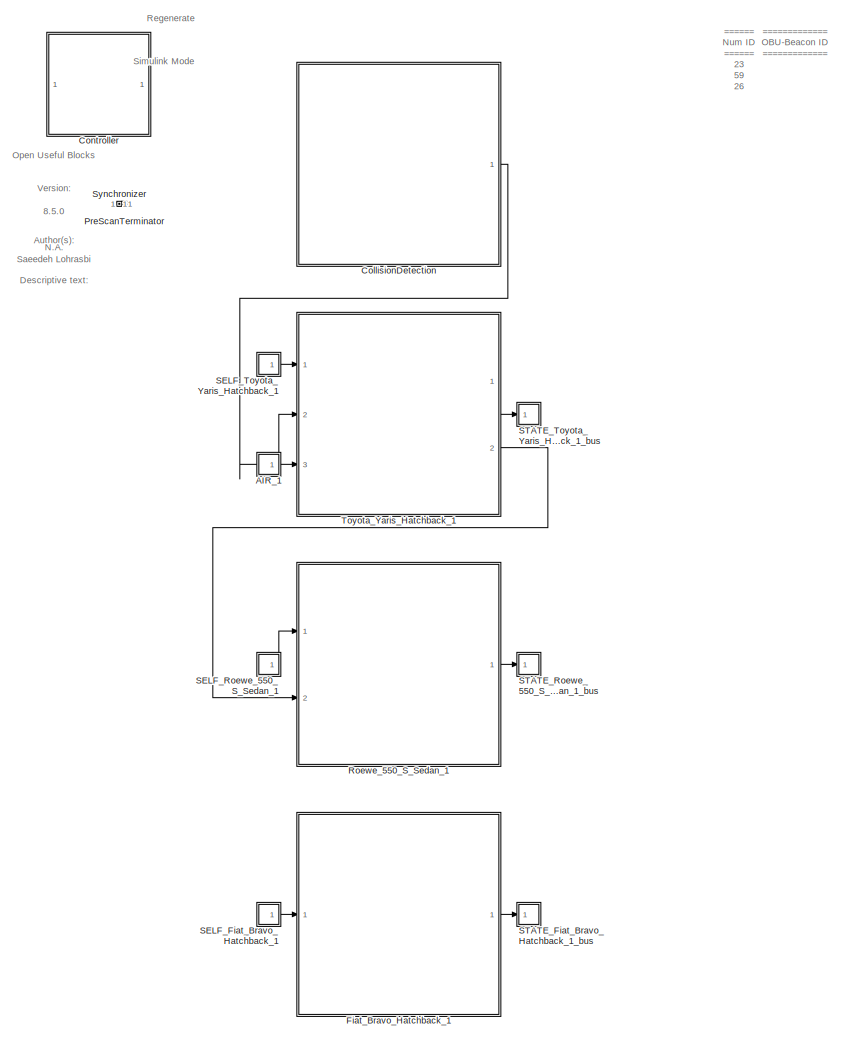
[diagram: root canvas - part 1/2, center side, full height]
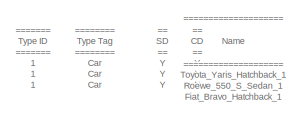
[diagram: root canvas - part 2/2, top right region]
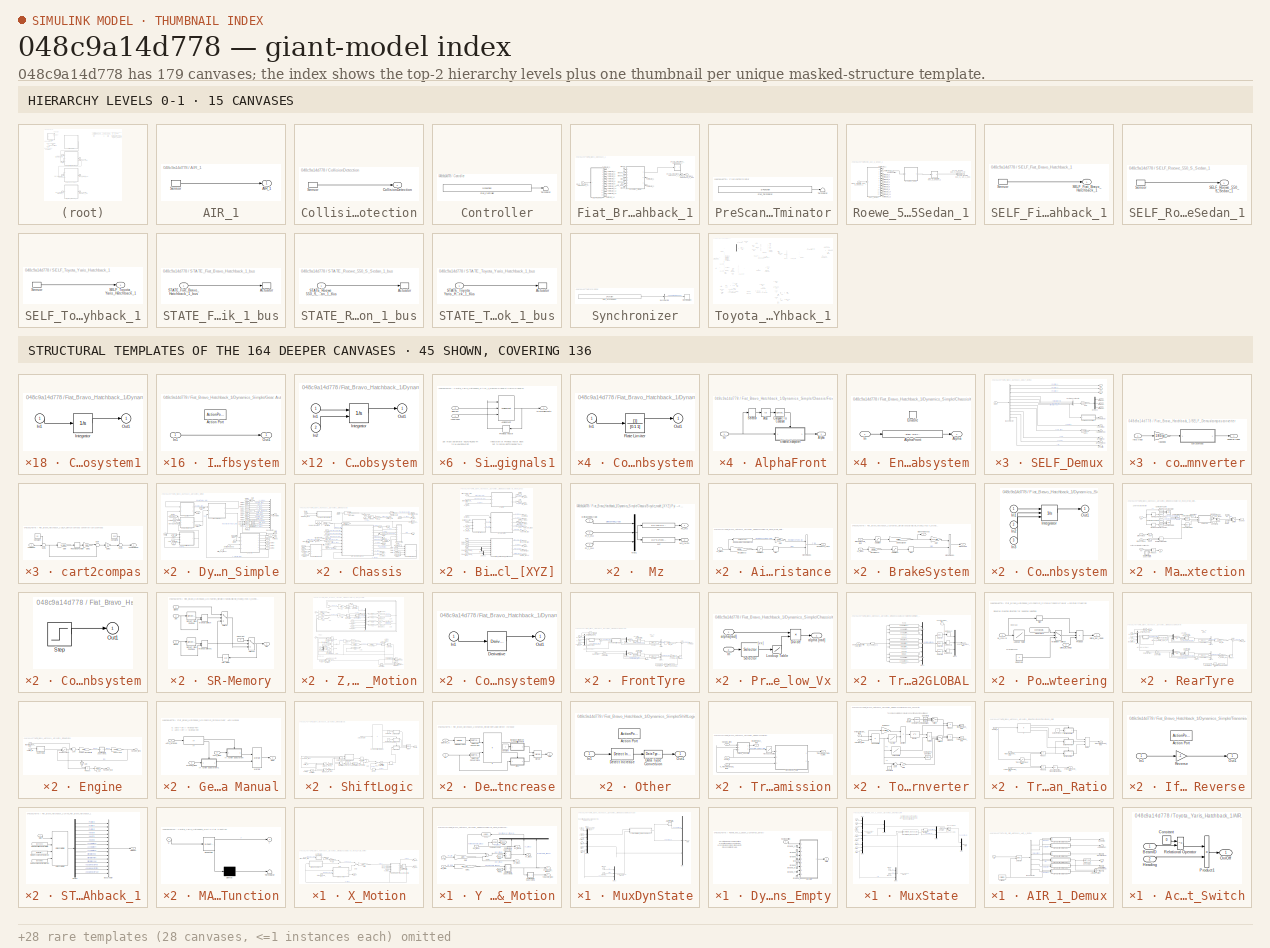
[diagram: thumbnail index - top-2 hierarchy levels (15 canvases) + 45 structural-template representatives of the remaining 164 canvases]
MODEL slx_048c9a14d778
KIND model
CONFIG AbsTol = auto
CONFIG EnableMultiTasking = off
CONFIG FixedStep = 1/200
CONFIG InitFcn = mbxruntime.callbacks.InitFcn(bdroot);
CONFIG MaxStep = auto
CONFIG MinStep = auto
CONFIG PostLoadFcn = mbxruntime.callbacks.PostLoadFcn(bdroot);
CONFIG PreLoadFcn = mbxruntime.callbacks.PreLoadFcn(bdroot);
CONFIG RelTol = 1e-3
CONFIG SampleTimeConstraint = Unconstrained
CONFIG Solver = ode5
CONFIG SolverName = ode5
CONFIG StartFcn = mbxruntime.callbacks.StartFcn(bdroot);
CONFIG StartTime = 0.0
CONFIG StopFcn = mbxruntime.callbacks.StopFcn(bdroot);
CONFIG StopTime = inf
WORKSPACE source: MAT-file member
WORKSPACE mbox_table: struct (value not decoded)
BLOCK [SubSystem] AIR_1
  LoadFcn = load('PrescanAIRSensorData.mat');load('PrescanAIRSensorMessage.mat')
  OpenFcn = open_system([gcb '/Sensor'],'mask')
  Ports = [0, 1]
  Priority = 3
  RequestExecContextInheritance = off
  Tag = sensor/AIR
  Variant = off
BLOCK [Outport] AIR_1/AIR_1
  IconDisplay = Port number
  OutDataTypeStr = Bus: PRESCAN_AIRSENSORMESSAGE
  PortDimensions = 10
  SampleTime = 10/200
  Tag = outport/AIR
BLOCK [S-Function] AIR_1/Sensor
  EnableBusSupport = off
  FunctionName = sfun_AIRSensor
  Parameters = detectableObjects, sensorID, timestep
  Ports = [0, 1]
  SFcnIsStateOwnerBlock = off
  SFunctionDeploymentMode = off
BLOCK [SubSystem] CollisionDetection
  LoadFcn = load('PrescanCollisionDetectionData.mat');load('PrescanCollisionDetectionMessage.mat')
  OpenFcn = open_system([gcb '/Sensor'],'mask')
  Ports = [0, 1]
  Priority = 3
  RequestExecContextInheritance = off
  Tag = sensor/CollisionDetection
  Variant = off
BLOCK [Outport] CollisionDetection/CollisionDetection
  IconDisplay = Port number
  OutDataTypeStr = Bus: PRESCAN_COLLISIONDETECTION_MESSAGE
  PortDimensions = 5
  SampleTime = 10/200
  Tag = outport/CollisionDetection
BLOCK [S-Function] CollisionDetection/Sensor
  EnableBusSupport = off
  FunctionName = sfun_CollisionDetection
  Parameters = detectableCollisions, timestep
  Ports = [0, 1]
  SFcnIsStateOwnerBlock = off
  SFunctionDeploymentMode = off
BLOCK [SubSystem] Controller
  Description = 0796D5C98D4497EE4463ACBBC813679D24F7F6C34935DFB1985E1BDD7895447B
  LoadFcn = load PreScanControllerData
  ModelCloseFcn = assignin('base',['model_closed_' bdroot],true);
  Ports = []
  Priority = -1
  RequestExecContextInheritance = off
  Variant = off
BLOCK [Terminator] Controller/Terminator
BLOCK [S-Function] Controller/sfun_Controller
  EnableBusSupport = off
  FunctionName = sfun_Controller
  Parameters = SParameter1, SParameter2, SParameter3, SParameter4, SParameter5, SParameter6, SParameter7, SParameter8, SParameter9, SParameter10, SampleTime
  Ports = [0, 1]
  SFcnIsStateOwnerBlock = off
  SFunctionDeploymentMode = off
BLOCK [SubSystem] Fiat_Bravo_Hatchback_1
  InitFcn = UniqueId = '10047';
  Ports = [1, 1]
  RequestExecContextInheritance = off
  Tag = WorldObjectSubSystem
  Variant = off
BLOCK [Constant] Fiat_Bravo_Hatchback_1/Auto_Gear
  Tag = AutoGear
BLOCK [SubSystem] Fiat_Bravo_Hatchback_1/Dynamics_Simple
  DeleteFcn = PreScanBlockDeleteFcn;
  Ports = [7, 3]
  RequestExecContextInheritance = off
  Tag = Simple_Vehicle_Dynamics
  UserDataPersistent = on
  Variant = off
BLOCK [Inport] Fiat_Bravo_Hatchback_1/Dynamics_Simple/AutoManual_OnOff
  IconDisplay = Port number
  Port = 5
BLOCK [Inport] Fiat_Bravo_Hatchback_1/Dynamics_Simple/Auto_GearShift
  IconDisplay = Port number
  Port = 6
BLOCK [Inport] Fiat_Bravo_Hatchback_1/Dynamics_Simple/Brake
  IconDisplay = Port number
  Port = 3
BLOCK [BusCreator] Fiat_Bravo_Hatchback_1/Dynamics_Simple/Bus Creator
  DisplayOption = bar
  InheritFromInputs = on
  Inputs = 14
  Ports = [14, 1]
BLOCK [SubSystem] Fiat_Bravo_Hatchback_1/Dynamics_Simple/Chassis
  Ports = [4, 7]
  RequestExecContextInheritance = off
  Variant = off
BLOCK [Abs] Fiat_Bravo_Hatchback_1/Dynamics_Simple/Chassis/Abs
  SaturateOnIntegerOverflow = off
BLOCK [SubSystem] Fiat_Bravo_Hatchback_1/Dynamics_Simple/Chassis/Bicycle_model_[XYZ]
  Ports = [9, 11]
  RequestExecContextInheritance = off
  Variant = off
BLOCK [Inport] Fiat_Bravo_Hatchback_1/Dynamics_Simple/Chassis/Bicycle_model_[XYZ]/BrakePressure_[bar]
  IconDisplay = Port number
  Port = 4
BLOCK [Inport] Fiat_Bravo_Hatchback_1/Dynamics_Simple/Chassis/Bicycle_model_[XYZ]/DeltaWheel_[rad]
  IconDisplay = Port number
BLOCK [Demux] Fiat_Bravo_Hatchback_1/Dynamics_Simple/Chassis/Bicycle_model_[XYZ]/Demux
  DisplayOption = bar
  Outputs = 2
  Ports = [1, 2]
BLOCK [Demux] Fiat_Bravo_Hatchback_1/Dynamics_Simple/Chassis/Bicycle_model_[XYZ]/Demux1
  DisplayOption = bar
  Outputs = 2
  Ports = [1, 2]
BLOCK [Inport] Fiat_Bravo_Hatchback_1/Dynamics_Simple/Chassis/Bicycle_model_[XYZ]/DriveTorque_[Nm]
  IconDisplay = Port number
  Port = 5
BLOCK [From] Fiat_Bravo_Hatchback_1/Dynamics_Simple/Chassis/Bicycle_model_[XYZ]/From1
  CloseFcn = tagdialog Close
  GotoTag = ax
BLOCK [From] Fiat_Bravo_Hatchback_1/Dynamics_Simple/Chassis/Bicycle_model_[XYZ]/From2
  CloseFcn = tagdialog Close
  GotoTag = ay
BLOCK [From] Fiat_Bravo_Hatchback_1/Dynamics_Simple/Chassis/Bicycle_model_[XYZ]/From3
  CloseFcn = tagdialog Close
  GotoTag = vx
BLOCK [From] Fiat_Bravo_Hatchback_1/Dynamics_Simple/Chassis/Bicycle_model_[XYZ]/From4
  CloseFcn = tagdialog Close
  GotoTag = dYaw
BLOCK [Inport] Fiat_Bravo_Hatchback_1/Dynamics_Simple/Chassis/Bicycle_model_[XYZ]/Fy_front_[N]
  IconDisplay = Port number
  Port = 9
BLOCK [Inport] Fiat_Bravo_Hatchback_1/Dynamics_Simple/Chassis/Bicycle_model_[XYZ]/Fy_rear_[N]
  IconDisplay = Port number
  Port = 8
BLOCK [SubSystem] Fiat_Bravo_Hatchback_1/Dynamics_Simple/Chassis/Bicycle_model_[XYZ]/Fyi --> Fy // Mz
  Ports = [3, 2]
  RequestExecContextInheritance = off
  Variant = off
BLOCK [Inport] Fiat_Bravo_Hatchback_1/Dynamics_Simple/Chassis/Bicycle_model_[XYZ]/Fyi --> Fy // Mz/DeltaWheel_[rad]
  IconDisplay = Port number
BLOCK [Fcn] Fiat_Bravo_Hatchback_1/Dynamics_Simple/Chassis/Bicycle_model_[XYZ]/Fyi --> Fy // Mz/Fy
  Expr = u(2)*cos(u(1)) + u(3)
BLOCK [Outport] Fiat_Bravo_Hatchback_1/Dynamics_Simple/Chassis/Bicycle_model_[XYZ]/Fyi --> Fy // Mz/Fy_[N]
  IconDisplay = Port number
  InitialOutput = 0
BLOCK [Inport] Fiat_Bravo_Hatchback_1/Dynamics_Simple/Chassis/Bicycle_model_[XYZ]/Fyi --> Fy // Mz/Fy_f_[N]
  IconDisplay = Port number
  Port = 2
BLOCK [Inport] Fiat_Bravo_Hatchback_1/Dynamics_Simple/Chassis/Bicycle_model_[XYZ]/Fyi --> Fy // Mz/Fy_r_[N]
  IconDisplay = Port number
  Port = 3
BLOCK [Mux] Fiat_Bravo_Hatchback_1/Dynamics_Simple/Chassis/Bicycle_model_[XYZ]/Fyi --> Fy // Mz/Mux1
  DisplayOption = bar
  Inputs = 3
  Ports = [3, 1]
BLOCK [Fcn] Fiat_Bravo_Hatchback_1/Dynamics_Simple/Chassis/Bicycle_model_[XYZ]/Fyi --> Fy // Mz/Mz
  Expr = u(2)*p.a*cos(u(1)) - u(3)*p.b
BLOCK [Outport] Fiat_Bravo_Hatchback_1/Dynamics_Simple/Chassis/Bicycle_model_[XYZ]/Fyi --> Fy // Mz/Mz_[Nm]
  IconDisplay = Port number
  InitialOutput = 0
  Port = 2
BLOCK [Goto] Fiat_Bravo_Hatchback_1/Dynamics_Simple/Chassis/Bicycle_model_[XYZ]/Goto
  GotoTag = ax
BLOCK [Goto] Fiat_Bravo_Hatchback_1/Dynamics_Simple/Chassis/Bicycle_model_[XYZ]/Goto1
  GotoTag = ay
BLOCK [Goto] Fiat_Bravo_Hatchback_1/Dynamics_Simple/Chassis/Bicycle_model_[XYZ]/Goto2
  GotoTag = vx
BLOCK [Goto] Fiat_Bravo_Hatchback_1/Dynamics_Simple/Chassis/Bicycle_model_[XYZ]/Goto3
  GotoTag = dYaw
BLOCK [Outport] Fiat_Bravo_Hatchback_1/Dynamics_Simple/Chassis/Bicycle_model_[XYZ]/PitchAngle_[rad]
  IconDisplay = Port number
  Port = 8
BLOCK [Outport] Fiat_Bravo_Hatchback_1/Dynamics_Simple/Chassis/Bicycle_model_[XYZ]/RollAngle_[rad]
  IconDisplay = Port number
  Port = 4
BLOCK [Outport] Fiat_Bravo_Hatchback_1/Dynamics_Simple/Chassis/Bicycle_model_[XYZ]/RollRate_[rads-1]
  IconDisplay = Port number
  Port = 5
BLOCK [Outport] Fiat_Bravo_Hatchback_1/Dynamics_Simple/Chassis/Bicycle_model_[XYZ]/Vx_[ms-1]
  IconDisplay = Port number
  Port = 7
BLOCK [SubSystem] Fiat_Bravo_Hatchback_1/Dynamics_Simple/Chassis/Bicycle_model_[XYZ]/X_Motion
  Ports = [3, 2]
  RequestExecContextInheritance = off
  Variant = off
BLOCK [SubSystem] Fiat_Bravo_Hatchback_1/Dynamics_Simple/Chassis/Bicycle_model_[XYZ]/X_Motion/Air&RoadResistance
  Ports = [1, 1]
  RequestExecContextInheritance = off
  Variant = off
BLOCK [Gain] Fiat_Bravo_Hatchback_1/Dynamics_Simple/Chassis/Bicycle_model_[XYZ]/X_Motion/Air&RoadResistance/Gain
  Gain = 1/p.Rw
  OutDataTypeStr = Inherit: Inherit via internal rule
  ParamDataTypeStr = Inherit: Inherit via internal rule
  SaturateOnIntegerOverflow = off
BLOCK [Outport] Fiat_Bravo_Hatchback_1/Dynamics_Simple/Chassis/Bicycle_model_[XYZ]/X_Motion/Air&RoadResistance/Resistance_Force
  IconDisplay = Port number
BLOCK [Fcn] Fiat_Bravo_Hatchback_1/Dynamics_Simple/Chassis/Bicycle_model_[XYZ]/X_Motion/Air&RoadResistance/Road & Aerodyn Resistances
  Expr = p.Rroad + p.Rair*u^2
BLOCK [Saturate] Fiat_Bravo_Hatchback_1/Dynamics_Simple/Chassis/Bicycle_model_[XYZ]/X_Motion/Air&RoadResistance/Saturation1
  InputPortMap = u0
  LowerLimit = -5/15
  Ports = [1, 1]
  UpperLimit = 5/15
BLOCK [Signum] Fiat_Bravo_Hatchback_1/Dynamics_Simple/Chassis/Bicycle_model_[XYZ]/X_Motion/Air&RoadResistance/Sign
BLOCK [Gain] Fiat_Bravo_Hatchback_1/Dynamics_Simple/Chassis/Bicycle_model_[XYZ]/X_Motion/Air&RoadResistance/[ms-1] 2 [rads-1]
  Gain = 1/p.Rw
BLOCK [Product] Fiat_Bravo_Hatchback_1/Dynamics_Simple/Chassis/Bicycle_model_[XYZ]/X_Motion/Air&RoadResistance/signed load1
  Ports = [2, 1]
  RndMeth = Floor
BLOCK [Inport] Fiat_Bravo_Hatchback_1/Dynamics_Simple/Chassis/Bicycle_model_[XYZ]/X_Motion/Air&RoadResistance/vx_[ms-1]
  IconDisplay = Port number
BLOCK [Inport] Fiat_Bravo_Hatchback_1/Dynamics_Simple/Chassis/Bicycle_model_[XYZ]/X_Motion/BrakePressure_[bar]
  IconDisplay = Port number
  Port = 2
BLOCK [SubSystem] Fiat_Bravo_Hatchback_1/Dynamics_Simple/Chassis/Bicycle_model_[XYZ]/X_Motion/BrakeSystem
  Ports = [2, 2]
  RequestExecContextInheritance = off
  Variant = off
BLOCK [Outport] Fiat_Bravo_Hatchback_1/Dynamics_Simple/Chassis/Bicycle_model_[XYZ]/X_Motion/BrakeSystem/BrakeForce
  IconDisplay = Port number
BLOCK [Inport] Fiat_Bravo_Hatchback_1/Dynamics_Simple/Chassis/Bicycle_model_[XYZ]/X_Motion/BrakeSystem/BrakePressure_[bar]
  IconDisplay = Port number
  Port = 2
BLOCK [Outport] Fiat_Bravo_Hatchback_1/Dynamics_Simple/Chassis/Bicycle_model_[XYZ]/X_Motion/BrakeSystem/BrakeTorqueAbs
  IconDisplay = Port number
  Port = 2
BLOCK [Gain] Fiat_Bravo_Hatchback_1/Dynamics_Simple/Chassis/Bicycle_model_[XYZ]/X_Motion/BrakeSystem/Gain
  Gain = 1/p.Rw
  OutDataTypeStr = Inherit: Inherit via internal rule
  ParamDataTypeStr = Inherit: Inherit via internal rule
  SaturateOnIntegerOverflow = off
BLOCK [Saturate] Fiat_Bravo_Hatchback_1/Dynamics_Simple/Chassis/Bicycle_model_[XYZ]/X_Motion/BrakeSystem/Saturation
  InputPortMap = u0
  LowerLimit = 0
  Ports = [1, 1]
  UpperLimit = p.PBrakeMax
BLOCK [Saturate] Fiat_Bravo_Hatchback_1/Dynamics_Simple/Chassis/Bicycle_model_[XYZ]/X_Motion/BrakeSystem/Saturation1
  InputPortMap = u0
  LowerLimit = -5/15
  Ports = [1, 1]
  UpperLimit = 5/15
BLOCK [Signum] Fiat_Bravo_Hatchback_1/Dynamics_Simple/Chassis/Bicycle_model_[XYZ]/X_Motion/BrakeSystem/Sign
BLOCK [Gain] Fiat_Bravo_Hatchback_1/Dynamics_Simple/Chassis/Bicycle_model_[XYZ]/X_Motion/BrakeSystem/[ms-1] 2 [rads-1]
  Gain = 1/p.Rw
BLOCK [Gain] Fiat_Bravo_Hatchback_1/Dynamics_Simple/Chassis/Bicycle_model_[XYZ]/X_Motion/BrakeSystem/braking Q factor
  Gain = p.Qfac
BLOCK [Product] Fiat_Bravo_Hatchback_1/Dynamics_Simple/Chassis/Bicycle_model_[XYZ]/X_Motion/BrakeSystem/signed load1
  Ports = [2, 1]
  RndMeth = Floor
BLOCK [Inport] Fiat_Bravo_Hatchback_1/Dynamics_Simple/Chassis/Bicycle_model_[XYZ]/X_Motion/BrakeSystem/vx_[ms-1]
  IconDisplay = Port number
BLOCK [SubSystem] Fiat_Bravo_Hatchback_1/Dynamics_Simple/Chassis/Bicycle_model_[XYZ]/X_Motion/Configurable Subsystem
  AttributesFormatString = %<BlockChoice>
  BlockChoice = Integrator
  MemberBlocks = Discrete-Time Integrator,Integrator
  OpenFcn = BringToFront(gcb);
  Ports = [3, 1]
  RequestExecContextInheritance = off
  ShowPortLabels = none
  TemplateBlock = PreScanSimulinkLibrary/Configurable Subsystems/integral with reset and initial condition/Configurable\nSubsystem
  Variant = off
BLOCK [Inport] Fiat_Bravo_Hatchback_1/Dynamics_Simple/Chassis/Bicycle_model_[XYZ]/X_Motion/Configurable Subsystem/In1
  IconDisplay = Port number
BLOCK [Inport] Fiat_Bravo_Hatchback_1/Dynamics_Simple/Chassis/Bicycle_model_[XYZ]/X_Motion/Configurable Subsystem/In2
  IconDisplay = Port number
  Port = 2
BLOCK [Inport] Fiat_Bravo_Hatchback_1/Dynamics_Simple/Chassis/Bicycle_model_[XYZ]/X_Motion/Configurable Subsystem/In3
  IconDisplay = Port number
  Port = 3
BLOCK [Integrator] Fiat_Bravo_Hatchback_1/Dynamics_Simple/Chassis/Bicycle_model_[XYZ]/X_Motion/Configurable Subsystem/Integrator
  ExternalReset = level
  InitialConditionSource = external
  Ports = [3, 1]
BLOCK [Outport] Fiat_Bravo_Hatchback_1/Dynamics_Simple/Chassis/Bicycle_model_[XYZ]/X_Motion/Configurable Subsystem/Out1
  IconDisplay = Port number
BLOCK [SubSystem] Fiat_Bravo_Hatchback_1/Dynamics_Simple/Chassis/Bicycle_model_[XYZ]/X_Motion/Configurable Subsystem1
  AttributesFormatString = %<BlockChoice>
  BlockChoice = Torsional damping
  MemberBlocks = Discrete Torsional damping,Torsional damping
  OpenFcn = BringToFront(gcb);
  Ports = [1, 1]
  RequestExecContextInheritance = off
  ShowPortLabels = none
  TemplateBlock = PreScanSimulinkLibrary/Configurable Subsystems/TransferFunction\nTorsional damping/Configurable\nSubsystem
  Variant = off
BLOCK [Inport] Fiat_Bravo_Hatchback_1/Dynamics_Simple/Chassis/Bicycle_model_[XYZ]/X_Motion/Configurable Subsystem1/In1
  IconDisplay = Port number
BLOCK [Outport] Fiat_Bravo_Hatchback_1/Dynamics_Simple/Chassis/Bicycle_model_[XYZ]/X_Motion/Configurable Subsystem1/Out1
  IconDisplay = Port number
BLOCK [TransferFcn] Fiat_Bravo_Hatchback_1/Dynamics_Simple/Chassis/Bicycle_model_[XYZ]/X_Motion/Configurable Subsystem1/Torsional damping
  Denominator = [0.1 1]
BLOCK [Inport] Fiat_Bravo_Hatchback_1/Dynamics_Simple/Chassis/Bicycle_model_[XYZ]/X_Motion/DriveTorque_[Nm]
  IconDisplay = Port number
BLOCK [From] Fiat_Bravo_Hatchback_1/Dynamics_Simple/Chassis/Bicycle_model_[XYZ]/X_Motion/From2
  CloseFcn = tagdialog Close
  GotoTag = DT
BLOCK [From] Fiat_Bravo_Hatchback_1/Dynamics_Simple/Chassis/Bicycle_model_[XYZ]/X_Motion/From3
  CloseFcn = tagdialog Close
  GotoTag = BT
BLOCK [Gain] Fiat_Bravo_Hatchback_1/Dynamics_Simple/Chassis/Bicycle_model_[XYZ]/X_Motion/Gain
  Gain = 1/p.Rw
  OutDataTypeStr = Inherit: Inherit via internal rule
  ParamDataTypeStr = Inherit: Inherit via internal rule
  SaturateOnIntegerOverflow = off
BLOCK [Goto] Fiat_Bravo_Hatchback_1/Dynamics_Simple/Chassis/Bicycle_model_[XYZ]/X_Motion/Goto
  GotoTag = DT
BLOCK [Goto] Fiat_Bravo_Hatchback_1/Dynamics_Simple/Chassis/Bicycle_model_[XYZ]/X_Motion/Goto1
  GotoTag = BT
BLOCK [Gain] Fiat_Bravo_Hatchback_1/Dynamics_Simple/Chassis/Bicycle_model_[XYZ]/X_Motion/Inertia
  Gain = 1/p.m
BLOCK [SubSystem] Fiat_Bravo_Hatchback_1/Dynamics_Simple/Chassis/Bicycle_model_[XYZ]/X_Motion/Max RPM and zero- velocity detection
  Ports = [5, 3]
  RequestExecContextInheritance = off
  Variant = off
BLOCK [Abs] Fiat_Bravo_Hatchback_1/Dynamics_Simple/Chassis/Bicycle_model_[XYZ]/X_Motion/Max RPM and zero- velocity detection/Abs
  SaturateOnIntegerOverflow = off
BLOCK [Abs] Fiat_Bravo_Hatchback_1/Dynamics_Simple/Chassis/Bicycle_model_[XYZ]/X_Motion/Max RPM and zero- velocity detection/Abs1
  SaturateOnIntegerOverflow = off
BLOCK [Inport] Fiat_Bravo_Hatchback_1/Dynamics_Simple/Chassis/Bicycle_model_[XYZ]/X_Motion/Max RPM and zero- velocity detection/Brake Torque
  IconDisplay = Port number
  Port = 3
BLOCK [Reference] Fiat_Bravo_Hatchback_1/Dynamics_Simple/Chassis/Bicycle_model_[XYZ]/X_Motion/Max RPM and zero- velocity detection/Compare To Zero  REF=simulink/Logic and Bit
Operations/Compare
To Zero
  Ports = [1, 1]
  SourceBlock = simulink/Logic and Bit\nOperations/Compare\nTo Zero
  SourceProductBaseCode = SL
  SourceProductName = Simulink
  SourceType = Compare To Zero
BLOCK [Reference] Fiat_Bravo_Hatchback_1/Dynamics_Simple/Chassis/Bicycle_model_[XYZ]/X_Motion/Max RPM and zero- velocity detection/Compare To Zero1  REF=simulink/Logic and Bit
Operations/Compare
To Zero
  Ports = [1, 1]
  SourceBlock = simulink/Logic and Bit\nOperations/Compare\nTo Zero
  SourceProductBaseCode = SL
  SourceProductName = Simulink
  SourceType = Compare To Zero
BLOCK [Reference] Fiat_Bravo_Hatchback_1/Dynamics_Simple/Chassis/Bicycle_model_[XYZ]/X_Motion/Max RPM and zero- velocity detection/Compare To Zero2  REF=simulink/Logic and Bit
Operations/Compare
To Zero
  Ports = [1, 1]
  SourceBlock = simulink/Logic and Bit\nOperations/Compare\nTo Zero
  SourceProductBaseCode = SL
  SourceProductName = Simulink
  SourceType = Compare To Zero
BLOCK [Reference] Fiat_Bravo_Hatchback_1/Dynamics_Simple/Chassis/Bicycle_model_[XYZ]/X_Motion/Max RPM and zero- velocity detection/Compare To Zero3  REF=simulink/Logic and Bit
Operations/Compare
To Zero
  Ports = [1, 1]
  SourceBlock = simulink/Logic and Bit\nOperations/Compare\nTo Zero
  SourceProductBaseCode = SL
  SourceProductName = Simulink
  SourceType = Compare To Zero
BLOCK [SubSystem] Fiat_Bravo_Hatchback_1/Dynamics_Simple/Chassis/Bicycle_model_[XYZ]/X_Motion/Max RPM and zero- velocity detection/Configurable Subsystem
  AttributesFormatString = %<BlockChoice>
  BlockChoice = Step
  MemberBlocks = Discrete Step,Step
  OpenFcn = BringToFront(gcb);
  Ports = [0, 1]
  RequestExecContextInheritance = off
  ShowPortLabels = none
  TemplateBlock = PreScanSimulinkLibrary/Configurable Subsystems/Step Function/Configurable\nSubsystem
  Variant = off
BLOCK [Outport] Fiat_Bravo_Hatchback_1/Dynamics_Simple/Chassis/Bicycle_model_[XYZ]/X_Motion/Max RPM and zero- velocity detection/Configurable Subsystem/Out1
  IconDisplay = Port number
BLOCK [Step] Fiat_Bravo_Hatchback_1/Dynamics_Simple/Chassis/Bicycle_model_[XYZ]/X_Motion/Max RPM and zero- velocity detection/Configurable Subsystem/Step
  After = 0
  Before = 1
  SampleTime = 0
  Time = 0.0001
BLOCK [Constant] Fiat_Bravo_Hatchback_1/Dynamics_Simple/Chassis/Bicycle_model_[XYZ]/X_Motion/Max RPM and zero- velocity detection/Constant
BLOCK [Constant] Fiat_Bravo_Hatchback_1/Dynamics_Simple/Chassis/Bicycle_model_[XYZ]/X_Motion/Max RPM and zero- velocity detection/Constant1
BLOCK [Inport] Fiat_Bravo_Hatchback_1/Dynamics_Simple/Chassis/Bicycle_model_[XYZ]/X_Motion/Max RPM and zero- velocity detection/Drive Torque
  IconDisplay = Port number
  Port = 2
BLOCK [Logic] Fiat_Bravo_Hatchback_1/Dynamics_Simple/Chassis/Bicycle_model_[XYZ]/X_Motion/Max RPM and zero- velocity detection/Logical Operator
  AllPortsSameDT = off
  OutDataTypeStr = boolean
  Ports = [2, 1]
BLOCK [Logic] Fiat_Bravo_Hatchback_1/Dynamics_Simple/Chassis/Bicycle_model_[XYZ]/X_Motion/Max RPM and zero- velocity detection/Logical Operator1
  AllPortsSameDT = off
  OutDataTypeStr = boolean
  Ports = [2, 1]
BLOCK [Logic] Fiat_Bravo_Hatchback_1/Dynamics_Simple/Chassis/Bicycle_model_[XYZ]/X_Motion/Max RPM and zero- velocity detection/Logical Operator2
  AllPortsSameDT = off
  Operator = NOT
  OutDataTypeStr = boolean
  Ports = [1, 1]
BLOCK [Logic] Fiat_Bravo_Hatchback_1/Dynamics_Simple/Chassis/Bicycle_model_[XYZ]/X_Motion/Max RPM and zero- velocity detection/Logical Operator3
  AllPortsSameDT = off
  OutDataTypeStr = boolean
  Ports = [2, 1]
BLOCK [Logic] Fiat_Bravo_Hatchback_1/Dynamics_Simple/Chassis/Bicycle_model_[XYZ]/X_Motion/Max RPM and zero- velocity detection/Logical Operator4
  AllPortsSameDT = off
  Operator = OR
  OutDataTypeStr = boolean
  Ports = [2, 1]
BLOCK [Memory] Fiat_Bravo_Hatchback_1/Dynamics_Simple/Chassis/Bicycle_model_[XYZ]/X_Motion/Max RPM and zero- velocity detection/Memory
BLOCK [Memory] Fiat_Bravo_Hatchback_1/Dynamics_Simple/Chassis/Bicycle_model_[XYZ]/X_Motion/Max RPM and zero- velocity detection/Memory1
BLOCK [Memory] Fiat_Bravo_Hatchback_1/Dynamics_Simple/Chassis/Bicycle_model_[XYZ]/X_Motion/Max RPM and zero- velocity detection/Memory2
BLOCK [Product] Fiat_Bravo_Hatchback_1/Dynamics_Simple/Chassis/Bicycle_model_[XYZ]/X_Motion/Max RPM and zero- velocity detection/Product
  InputSameDT = off
  OutDataTypeStr = Inherit: Inherit via internal rule
  Ports = [2, 1]
  SaturateOnIntegerOverflow = off
BLOCK [RelationalOperator] Fiat_Bravo_Hatchback_1/Dynamics_Simple/Chassis/Bicycle_model_[XYZ]/X_Motion/Max RPM and zero- velocity detection/Relational Operator
  InputSameDT = off
  Operator = <
  OutDataTypeStr = boolean
  Ports = [2, 1]
BLOCK [SubSystem] Fiat_Bravo_Hatchback_1/Dynamics_Simple/Chassis/Bicycle_model_[XYZ]/X_Motion/Max RPM and zero- velocity detection/SR-Memory
  Ports = [3, 1]
  RequestExecContextInheritance = off
  Variant = off
BLOCK [Constant] Fiat_Bravo_Hatchback_1/Dynamics_Simple/Chassis/Bicycle_model_[XYZ]/X_Motion/Max RPM and zero- velocity detection/SR-Memory/Constant
  Value = 0
BLOCK [Reference] Fiat_Bravo_Hatchback_1/Dynamics_Simple/Chassis/Bicycle_model_[XYZ]/X_Motion/Max RPM and zero- velocity detection/SR-Memory/Detect Rise Positive  REF=simulink/Logic and Bit
Operations/Detect Rise
Positive
  Ports = [1, 1]
  SourceBlock = simulink/Logic and Bit\nOperations/Detect Rise\nPositive
  SourceProductBaseCode = SL
  SourceProductName = Simulink
  SourceType = Detect Rise Positive
BLOCK [Reference] Fiat_Bravo_Hatchback_1/Dynamics_Simple/Chassis/Bicycle_model_[XYZ]/X_Motion/Max RPM and zero- velocity detection/SR-Memory/Detect Rise Positive1  REF=simulink/Logic and Bit
Operations/Detect Rise
Positive
  Ports = [1, 1]
  SourceBlock = simulink/Logic and Bit\nOperations/Detect Rise\nPositive
  SourceProductBaseCode = SL
  SourceProductName = Simulink
  SourceType = Detect Rise Positive
BLOCK [ManualSwitch] Fiat_Bravo_Hatchback_1/Dynamics_Simple/Chassis/Bicycle_model_[XYZ]/X_Motion/Max RPM and zero- velocity detection/SR-Memory/Manual Switch
BLOCK [ManualSwitch] Fiat_Bravo_Hatchback_1/Dynamics_Simple/Chassis/Bicycle_model_[XYZ]/X_Motion/Max RPM and zero- velocity detection/SR-Memory/Manual Switch1
BLOCK [Outport] Fiat_Bravo_Hatchback_1/Dynamics_Simple/Chassis/Bicycle_model_[XYZ]/X_Motion/Max RPM and zero- velocity detection/SR-Memory/Out
  IconDisplay = Port number
BLOCK [Inport] Fiat_Bravo_Hatchback_1/Dynamics_Simple/Chassis/Bicycle_model_[XYZ]/X_Motion/Max RPM and zero- velocity detection/SR-Memory/Reset
  IconDisplay = Port number
  Port = 3
BLOCK [Inport] Fiat_Bravo_Hatchback_1/Dynamics_Simple/Chassis/Bicycle_model_[XYZ]/X_Motion/Max RPM and zero- velocity detection/SR-Memory/Set
  IconDisplay = Port number
  Port = 2
BLOCK [Inport] Fiat_Bravo_Hatchback_1/Dynamics_Simple/Chassis/Bicycle_model_[XYZ]/X_Motion/Max RPM and zero- velocity detection/SR-Memory/Signal
  IconDisplay = Port number
BLOCK [Switch] Fiat_Bravo_Hatchback_1/Dynamics_Simple/Chassis/Bicycle_model_[XYZ]/X_Motion/Max RPM and zero- velocity detection/SR-Memory/Switch
  Criteria = u2 ~= 0
  InputSameDT = off
  SaturateOnIntegerOverflow = off
BLOCK [Switch] Fiat_Bravo_Hatchback_1/Dynamics_Simple/Chassis/Bicycle_model_[XYZ]/X_Motion/Max RPM and zero- velocity detection/SR-Memory/Switch1
  Criteria = u2 ~= 0
  InputSameDT = off
  SaturateOnIntegerOverflow = off
BLOCK [UnitDelay] Fiat_Bravo_Hatchback_1/Dynamics_Simple/Chassis/Bicycle_model_[XYZ]/X_Motion/Max RPM and zero- velocity detection/SR-Memory/Unit Delay
  SampleTime = -1
BLOCK [Sum] Fiat_Bravo_Hatchback_1/Dynamics_Simple/Chassis/Bicycle_model_[XYZ]/X_Motion/Max RPM and zero- velocity detection/Sum
  IconShape = round
  InputSameDT = off
  Inputs = |-+
  OutDataTypeStr = Inherit: Inherit via internal rule
  Ports = [2, 1]
  SaturateOnIntegerOverflow = off
BLOCK [Switch] Fiat_Bravo_Hatchback_1/Dynamics_Simple/Chassis/Bicycle_model_[XYZ]/X_Motion/Max RPM and zero- velocity detection/Switch
  Criteria = u2 ~= 0
  InputSameDT = off
  SaturateOnIntegerOverflow = off
  Threshold = 0.5
BLOCK [Inport] Fiat_Bravo_Hatchback_1/Dynamics_Simple/Chassis/Bicycle_model_[XYZ]/X_Motion/Max RPM and zero- velocity detection/ax
  IconDisplay = Port number
BLOCK [Constant] Fiat_Bravo_Hatchback_1/Dynamics_Simple/Chassis/Bicycle_model_[XYZ]/X_Motion/Max RPM and zero- velocity detection/ax is 0
  Value = 0
BLOCK [Outport] Fiat_Bravo_Hatchback_1/Dynamics_Simple/Chassis/Bicycle_model_[XYZ]/X_Motion/Max RPM and zero- velocity detection/ax_out
  IconDisplay = Port number
BLOCK [Inport] Fiat_Bravo_Hatchback_1/Dynamics_Simple/Chassis/Bicycle_model_[XYZ]/X_Motion/Max RPM and zero- velocity detection/v0
  IconDisplay = Port number
  Port = 4
BLOCK [Inport] Fiat_Bravo_Hatchback_1/Dynamics_Simple/Chassis/Bicycle_model_[XYZ]/X_Motion/Max RPM and zero- velocity detection/vx
  IconDisplay = Port number
  Port = 5
BLOCK [Outport] Fiat_Bravo_Hatchback_1/Dynamics_Simple/Chassis/Bicycle_model_[XYZ]/X_Motion/Max RPM and zero- velocity detection/vx_reset
  IconDisplay = Port number
  Port = 2
BLOCK [Outport] Fiat_Bravo_Hatchback_1/Dynamics_Simple/Chassis/Bicycle_model_[XYZ]/X_Motion/Max RPM and zero- velocity detection/x0
  IconDisplay = Port number
  Port = 3
BLOCK [Sum] Fiat_Bravo_Hatchback_1/Dynamics_Simple/Chassis/Bicycle_model_[XYZ]/X_Motion/Sum
  Inputs = +-
  Ports = [2, 1]
BLOCK [Sum] Fiat_Bravo_Hatchback_1/Dynamics_Simple/Chassis/Bicycle_model_[XYZ]/X_Motion/Sum2
  Inputs = +-
  Ports = [2, 1]
BLOCK [Outport] Fiat_Bravo_Hatchback_1/Dynamics_Simple/Chassis/Bicycle_model_[XYZ]/X_Motion/ax_[ms-2]
  IconDisplay = Port number
  Port = 2
BLOCK [Inport] Fiat_Bravo_Hatchback_1/Dynamics_Simple/Chassis/Bicycle_model_[XYZ]/X_Motion/v0_[ms-1]
  IconDisplay = Port number
  Port = 3
BLOCK [Outport] Fiat_Bravo_Hatchback_1/Dynamics_Simple/Chassis/Bicycle_model_[XYZ]/X_Motion/vx_[ms-1]
  IconDisplay = Port number
BLOCK [SubSystem] Fiat_Bravo_Hatchback_1/Dynamics_Simple/Chassis/Bicycle_model_[XYZ]/Y & Yaw_Motion
  Ports = [3, 5]
  RequestExecContextInheritance = off
  Variant = off
BLOCK [Reference] Fiat_Bravo_Hatchback_1/Dynamics_Simple/Chassis/Bicycle_model_[XYZ]/Y & Yaw_Motion/Compare To Zero  REF=simulink/Logic and Bit
Operations/Compare
To Zero
  Ports = [1, 1]
  SourceBlock = simulink/Logic and Bit\nOperations/Compare\nTo Zero
  SourceProductBaseCode = SL
  SourceProductName = Simulink
  SourceType = Compare To Zero
BLOCK [SubSystem] Fiat_Bravo_Hatchback_1/Dynamics_Simple/Chassis/Bicycle_model_[XYZ]/Y & Yaw_Motion/Configurable Subsystem
  AttributesFormatString = %<BlockChoice>
  BlockChoice = Integrator
  MemberBlocks = Discrete-Time Integrator,Integrator
  OpenFcn = BringToFront(gcb);
  Ports = [2, 1]
  RequestExecContextInheritance = off
  ShowPortLabels = none
  TemplateBlock = PreScanSimulinkLibrary/Configurable Subsystems/integral with reset/Configurable\nSubsystem
  Variant = off
BLOCK [Inport] Fiat_Bravo_Hatchback_1/Dynamics_Simple/Chassis/Bicycle_model_[XYZ]/Y & Yaw_Motion/Configurable Subsystem/In1
  IconDisplay = Port number
BLOCK [Inport] Fiat_Bravo_Hatchback_1/Dynamics_Simple/Chassis/Bicycle_model_[XYZ]/Y & Yaw_Motion/Configurable Subsystem/In2
  IconDisplay = Port number
  Port = 2
BLOCK [Integrator] Fiat_Bravo_Hatchback_1/Dynamics_Simple/Chassis/Bicycle_model_[XYZ]/Y & Yaw_Motion/Configurable Subsystem/Integrator
  ExternalReset = level
  Ports = [2, 1]
BLOCK [Outport] Fiat_Bravo_Hatchback_1/Dynamics_Simple/Chassis/Bicycle_model_[XYZ]/Y & Yaw_Motion/Configurable Subsystem/Out1
  IconDisplay = Port number
BLOCK [SubSystem] Fiat_Bravo_Hatchback_1/Dynamics_Simple/Chassis/Bicycle_model_[XYZ]/Y & Yaw_Motion/Configurable Subsystem1
  AttributesFormatString = %<BlockChoice>
  BlockChoice = Integrator
  MemberBlocks = Discrete-Time Integrator,Integrator
  OpenFcn = BringToFront(gcb);
  Ports = [1, 1]
  RequestExecContextInheritance = off
  ShowPortLabels = none
  TemplateBlock = PreScanSimulinkLibrary/Configurable Subsystems/integral/Configurable\nSubsystem1
  Variant = off
BLOCK [Inport] Fiat_Bravo_Hatchback_1/Dynamics_Simple/Chassis/Bicycle_model_[XYZ]/Y & Yaw_Motion/Configurable Subsystem1/In1
  IconDisplay = Port number
BLOCK [Integrator] Fiat_Bravo_Hatchback_1/Dynamics_Simple/Chassis/Bicycle_model_[XYZ]/Y & Yaw_Motion/Configurable Subsystem1/Integrator
  Ports = [1, 1]
BLOCK [Outport] Fiat_Bravo_Hatchback_1/Dynamics_Simple/Chassis/Bicycle_model_[XYZ]/Y & Yaw_Motion/Configurable Subsystem1/Out1
  IconDisplay = Port number
BLOCK [SubSystem] Fiat_Bravo_Hatchback_1/Dynamics_Simple/Chassis/Bicycle_model_[XYZ]/Y & Yaw_Motion/Configurable Subsystem2
  AttributesFormatString = %<BlockChoice>
  BlockChoice = Integrator
  MemberBlocks = Discrete-Time Integrator,Integrator
  OpenFcn = BringToFront(gcb);
  Ports = [2, 1]
  RequestExecContextInheritance = off
  ShowPortLabels = none
  TemplateBlock = PreScanSimulinkLibrary/Configurable Subsystems/integral with reset/Configurable\nSubsystem
  Variant = off
BLOCK [Inport] Fiat_Bravo_Hatchback_1/Dynamics_Simple/Chassis/Bicycle_model_[XYZ]/Y & Yaw_Motion/Configurable Subsystem2/In1
  IconDisplay = Port number
BLOCK [Inport] Fiat_Bravo_Hatchback_1/Dynamics_Simple/Chassis/Bicycle_model_[XYZ]/Y & Yaw_Motion/Configurable Subsystem2/In2
  IconDisplay = Port number
  Port = 2
BLOCK [Integrator] Fiat_Bravo_Hatchback_1/Dynamics_Simple/Chassis/Bicycle_model_[XYZ]/Y & Yaw_Motion/Configurable Subsystem2/Integrator
  ExternalReset = level
  Ports = [2, 1]
BLOCK [Outport] Fiat_Bravo_Hatchback_1/Dynamics_Simple/Chassis/Bicycle_model_[XYZ]/Y & Yaw_Motion/Configurable Subsystem2/Out1
  IconDisplay = Port number
BLOCK [Fcn] Fiat_Bravo_Hatchback_1/Dynamics_Simple/Chassis/Bicycle_model_[XYZ]/Y & Yaw_Motion/Fcn1
  Expr = u(1)*u(3)
BLOCK [From] Fiat_Bravo_Hatchback_1/Dynamics_Simple/Chassis/Bicycle_model_[XYZ]/Y & Yaw_Motion/From
  CloseFcn = tagdialog Close
  GotoTag = reset
BLOCK [From] Fiat_Bravo_Hatchback_1/Dynamics_Simple/Chassis/Bicycle_model_[XYZ]/Y & Yaw_Motion/From1
  CloseFcn = tagdialog Close
  GotoTag = reset
BLOCK [Inport] Fiat_Bravo_Hatchback_1/Dynamics_Simple/Chassis/Bicycle_model_[XYZ]/Y & Yaw_Motion/Fy_[N]
  IconDisplay = Port number
  Port = 2
BLOCK [Gain] Fiat_Bravo_Hatchback_1/Dynamics_Simple/Chassis/Bicycle_model_[XYZ]/Y & Yaw_Motion/Gain
  Gain = 1/p.m
BLOCK [Gain] Fiat_Bravo_Hatchback_1/Dynamics_Simple/Chassis/Bicycle_model_[XYZ]/Y & Yaw_Motion/Gain1
  Gain = 1/p.J_zz
BLOCK [Goto] Fiat_Bravo_Hatchback_1/Dynamics_Simple/Chassis/Bicycle_model_[XYZ]/Y & Yaw_Motion/Goto
  GotoTag = reset
BLOCK [Inport] Fiat_Bravo_Hatchback_1/Dynamics_Simple/Chassis/Bicycle_model_[XYZ]/Y & Yaw_Motion/Mz_[Nm]
  IconDisplay = Port number
  Port = 3
BLOCK [Sum] Fiat_Bravo_Hatchback_1/Dynamics_Simple/Chassis/Bicycle_model_[XYZ]/Y & Yaw_Motion/Sum1
  Inputs = -+
  Ports = [2, 1]
BLOCK [Outport] Fiat_Bravo_Hatchback_1/Dynamics_Simple/Chassis/Bicycle_model_[XYZ]/Y & Yaw_Motion/YawAngle_[rad]
  IconDisplay = Port number
  InitialOutput = 0
  Port = 5
BLOCK [Outport] Fiat_Bravo_Hatchback_1/Dynamics_Simple/Chassis/Bicycle_model_[XYZ]/Y & Yaw_Motion/ay_[ms-2]
  IconDisplay = Port number
  InitialOutput = 0
  Port = 3
BLOCK [Outport] Fiat_Bravo_Hatchback_1/Dynamics_Simple/Chassis/Bicycle_model_[XYZ]/Y & Yaw_Motion/dYawAngle_[rads-1]
  IconDisplay = Port number
  InitialOutput = 0
  Port = 4
BLOCK [Mux] Fiat_Bravo_Hatchback_1/Dynamics_Simple/Chassis/Bicycle_model_[XYZ]/Y & Yaw_Motion/mux
  DisplayOption = bar
  Inputs = 3
  Ports = [3, 1]
BLOCK [Outport] Fiat_Bravo_Hatchback_1/Dynamics_Simple/Chassis/Bicycle_model_[XYZ]/Y & Yaw_Motion/vy_[ms-1]
  IconDisplay = Port number
  InitialOutput = 0
  Port = 2
BLOCK [Inport] Fiat_Bravo_Hatchback_1/Dynamics_Simple/Chassis/Bicycle_model_[XYZ]/Y & Yaw_Motion/|vx|_[ms-1]
  IconDisplay = Port number
BLOCK [Outport] Fiat_Bravo_Hatchback_1/Dynamics_Simple/Chassis/Bicycle_model_[XYZ]/Y & Yaw_Motion/|vx|_[ms-1]1
  IconDisplay = Port number
  InitialOutput = 0
BLOCK [Outport] Fiat_Bravo_Hatchback_1/Dynamics_Simple/Chassis/Bicycle_model_[XYZ]/YawAngle_[rad]
  IconDisplay = Port number
  Port = 9
BLOCK [Outport] Fiat_Bravo_Hatchback_1/Dynamics_Simple/Chassis/Bicycle_model_[XYZ]/YawAngle_[rads-1]
  IconDisplay = Port number
  Port = 6
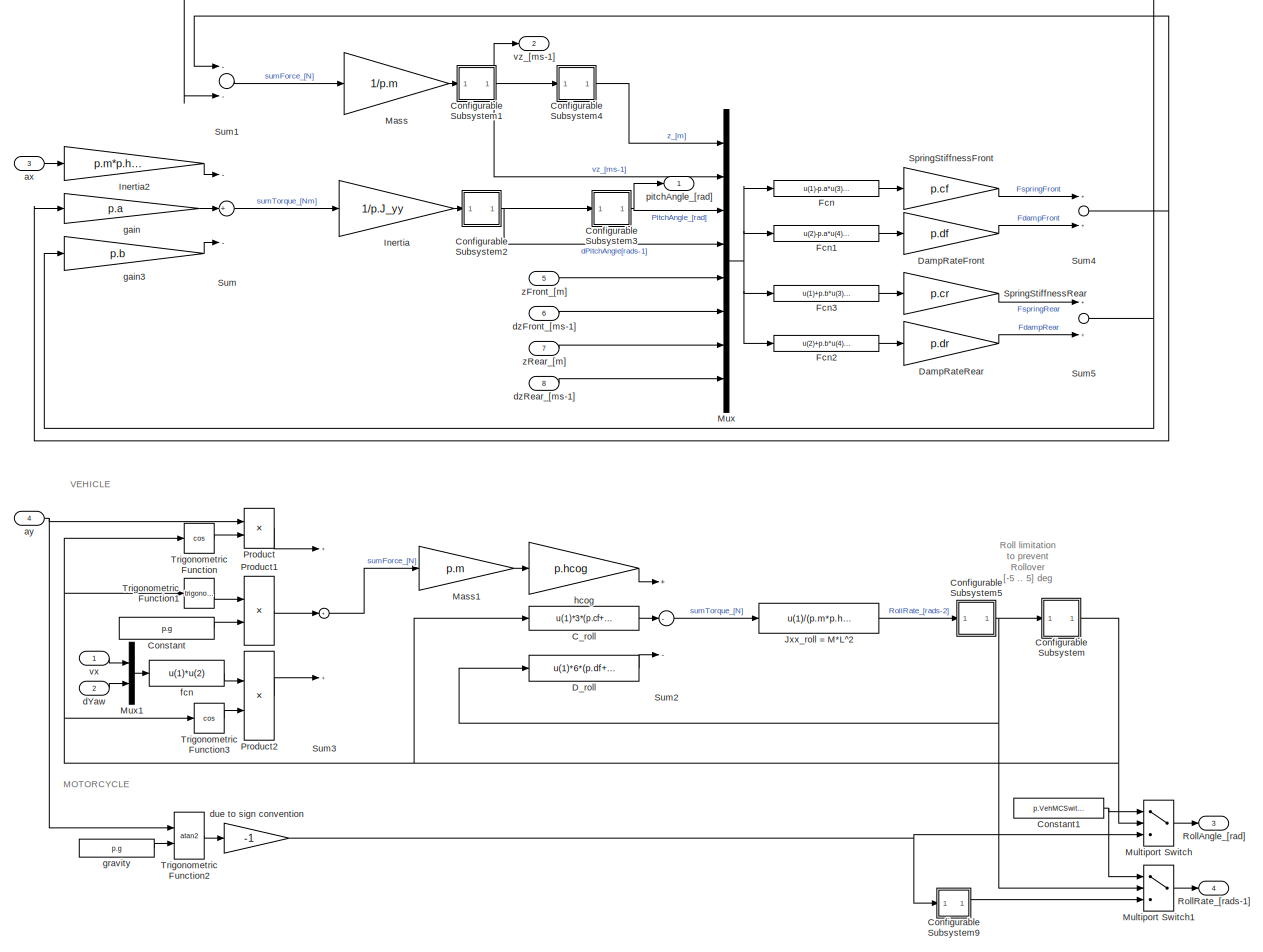
[diagram: Fiat_Bravo_Hatchback_1/Dynamics_Simple/Chassis/Bicycle_model_[XYZ]/Z, Pitch_Motion & Roll_Motion - part 1/1, most of the canvas]
BLOCK [SubSystem] Fiat_Bravo_Hatchback_1/Dynamics_Simple/Chassis/Bicycle_model_[XYZ]/Z, Pitch_Motion & Roll_Motion
  Ports = [8, 4]
  RequestExecContextInheritance = off
  Variant = off
BLOCK [Fcn] Fiat_Bravo_Hatchback_1/Dynamics_Simple/Chassis/Bicycle_model_[XYZ]/Z, Pitch_Motion & Roll_Motion/C_roll
  Expr = u(1)*3*(p.cf+p.cr)/2*p.width^2/2
BLOCK [SubSystem] Fiat_Bravo_Hatchback_1/Dynamics_Simple/Chassis/Bicycle_model_[XYZ]/Z, Pitch_Motion & Roll_Motion/Configurable Subsystem
  AttributesFormatString = %<BlockChoice>
  BlockChoice = Integrator
  MemberBlocks = Discrete-Time Integrator,Integrator
  OpenFcn = BringToFront(gcb);
  Ports = [1, 1]
  RequestExecContextInheritance = off
  ShowPortLabels = none
  TemplateBlock = PreScanSimulinkLibrary/Configurable Subsystems/integral with limits\nfor roll motion/Configurable\nSubsystem
  Variant = off
BLOCK [Inport] Fiat_Bravo_Hatchback_1/Dynamics_Simple/Chassis/Bicycle_model_[XYZ]/Z, Pitch_Motion & Roll_Motion/Configurable Subsystem/In1
  IconDisplay = Port number
BLOCK [Integrator] Fiat_Bravo_Hatchback_1/Dynamics_Simple/Chassis/Bicycle_model_[XYZ]/Z, Pitch_Motion & Roll_Motion/Configurable Subsystem/Integrator
  LimitOutput = on
  LowerSaturationLimit = -5*pi/180
  Ports = [1, 1]
  UpperSaturationLimit = 5*pi/180
BLOCK [Outport] Fiat_Bravo_Hatchback_1/Dynamics_Simple/Chassis/Bicycle_model_[XYZ]/Z, Pitch_Motion & Roll_Motion/Configurable Subsystem/Out1
  IconDisplay = Port number
BLOCK [SubSystem] Fiat_Bravo_Hatchback_1/Dynamics_Simple/Chassis/Bicycle_model_[XYZ]/Z, Pitch_Motion & Roll_Motion/Configurable Subsystem1
  AttributesFormatString = %<BlockChoice>
  BlockChoice = Integrator
  MemberBlocks = Discrete-Time Integrator,Integrator
  OpenFcn = BringToFront(gcb);
  Ports = [1, 1]
  RequestExecContextInheritance = off
  ShowPortLabels = none
  TemplateBlock = PreScanSimulinkLibrary/Configurable Subsystems/integral/Configurable\nSubsystem1
  Variant = off
BLOCK [Inport] Fiat_Bravo_Hatchback_1/Dynamics_Simple/Chassis/Bicycle_model_[XYZ]/Z, Pitch_Motion & Roll_Motion/Configurable Subsystem1/In1
  IconDisplay = Port number
BLOCK [Integrator] Fiat_Bravo_Hatchback_1/Dynamics_Simple/Chassis/Bicycle_model_[XYZ]/Z, Pitch_Motion & Roll_Motion/Configurable Subsystem1/Integrator
  Ports = [1, 1]
BLOCK [Outport] Fiat_Bravo_Hatchback_1/Dynamics_Simple/Chassis/Bicycle_model_[XYZ]/Z, Pitch_Motion & Roll_Motion/Configurable Subsystem1/Out1
  IconDisplay = Port number
BLOCK [SubSystem] Fiat_Bravo_Hatchback_1/Dynamics_Simple/Chassis/Bicycle_model_[XYZ]/Z, Pitch_Motion & Roll_Motion/Configurable Subsystem2
  AttributesFormatString = %<BlockChoice>
  BlockChoice = Integrator
  MemberBlocks = Discrete-Time Integrator,Integrator
  OpenFcn = BringToFront(gcb);
  Ports = [1, 1]
  RequestExecContextInheritance = off
  ShowPortLabels = none
  TemplateBlock = PreScanSimulinkLibrary/Configurable Subsystems/integral/Configurable\nSubsystem1
  Variant = off
BLOCK [Inport] Fiat_Bravo_Hatchback_1/Dynamics_Simple/Chassis/Bicycle_model_[XYZ]/Z, Pitch_Motion & Roll_Motion/Configurable Subsystem2/In1
  IconDisplay = Port number
BLOCK [Integrator] Fiat_Bravo_Hatchback_1/Dynamics_Simple/Chassis/Bicycle_model_[XYZ]/Z, Pitch_Motion & Roll_Motion/Configurable Subsystem2/Integrator
  Ports = [1, 1]
BLOCK [Outport] Fiat_Bravo_Hatchback_1/Dynamics_Simple/Chassis/Bicycle_model_[XYZ]/Z, Pitch_Motion & Roll_Motion/Configurable Subsystem2/Out1
  IconDisplay = Port number
BLOCK [SubSystem] Fiat_Bravo_Hatchback_1/Dynamics_Simple/Chassis/Bicycle_model_[XYZ]/Z, Pitch_Motion & Roll_Motion/Configurable Subsystem3
  AttributesFormatString = %<BlockChoice>
  BlockChoice = Integrator
  MemberBlocks = Discrete-Time Integrator,Integrator
  OpenFcn = BringToFront(gcb);
  Ports = [1, 1]
  RequestExecContextInheritance = off
  ShowPortLabels = none
  TemplateBlock = PreScanSimulinkLibrary/Configurable Subsystems/integral/Configurable\nSubsystem1
  Variant = off
BLOCK [Inport] Fiat_Bravo_Hatchback_1/Dynamics_Simple/Chassis/Bicycle_model_[XYZ]/Z, Pitch_Motion & Roll_Motion/Configurable Subsystem3/In1
  IconDisplay = Port number
BLOCK [Integrator] Fiat_Bravo_Hatchback_1/Dynamics_Simple/Chassis/Bicycle_model_[XYZ]/Z, Pitch_Motion & Roll_Motion/Configurable Subsystem3/Integrator
  Ports = [1, 1]
BLOCK [Outport] Fiat_Bravo_Hatchback_1/Dynamics_Simple/Chassis/Bicycle_model_[XYZ]/Z, Pitch_Motion & Roll_Motion/Configurable Subsystem3/Out1
  IconDisplay = Port number
BLOCK [SubSystem] Fiat_Bravo_Hatchback_1/Dynamics_Simple/Chassis/Bicycle_model_[XYZ]/Z, Pitch_Motion & Roll_Motion/Configurable Subsystem4
  AttributesFormatString = %<BlockChoice>
  BlockChoice = Integrator
  MemberBlocks = Discrete-Time Integrator,Integrator
  OpenFcn = BringToFront(gcb);
  Ports = [1, 1]
  RequestExecContextInheritance = off
  ShowPortLabels = none
  TemplateBlock = PreScanSimulinkLibrary/Configurable Subsystems/integral/Configurable\nSubsystem1
  Variant = off
BLOCK [Inport] Fiat_Bravo_Hatchback_1/Dynamics_Simple/Chassis/Bicycle_model_[XYZ]/Z, Pitch_Motion & Roll_Motion/Configurable Subsystem4/In1
  IconDisplay = Port number
BLOCK [Integrator] Fiat_Bravo_Hatchback_1/Dynamics_Simple/Chassis/Bicycle_model_[XYZ]/Z, Pitch_Motion & Roll_Motion/Configurable Subsystem4/Integrator
  Ports = [1, 1]
BLOCK [Outport] Fiat_Bravo_Hatchback_1/Dynamics_Simple/Chassis/Bicycle_model_[XYZ]/Z, Pitch_Motion & Roll_Motion/Configurable Subsystem4/Out1
  IconDisplay = Port number
BLOCK [SubSystem] Fiat_Bravo_Hatchback_1/Dynamics_Simple/Chassis/Bicycle_model_[XYZ]/Z, Pitch_Motion & Roll_Motion/Configurable Subsystem5
  AttributesFormatString = %<BlockChoice>
  BlockChoice = Integrator
  MemberBlocks = Discrete-Time Integrator,Integrator
  OpenFcn = BringToFront(gcb);
  Ports = [1, 1]
  RequestExecContextInheritance = off
  ShowPortLabels = none
  TemplateBlock = PreScanSimulinkLibrary/Configurable Subsystems/integral/Configurable\nSubsystem1
  Variant = off
BLOCK [Inport] Fiat_Bravo_Hatchback_1/Dynamics_Simple/Chassis/Bicycle_model_[XYZ]/Z, Pitch_Motion & Roll_Motion/Configurable Subsystem5/In1
  IconDisplay = Port number
BLOCK [Integrator] Fiat_Bravo_Hatchback_1/Dynamics_Simple/Chassis/Bicycle_model_[XYZ]/Z, Pitch_Motion & Roll_Motion/Configurable Subsystem5/Integrator
  Ports = [1, 1]
BLOCK [Outport] Fiat_Bravo_Hatchback_1/Dynamics_Simple/Chassis/Bicycle_model_[XYZ]/Z, Pitch_Motion & Roll_Motion/Configurable Subsystem5/Out1
  IconDisplay = Port number
BLOCK [SubSystem] Fiat_Bravo_Hatchback_1/Dynamics_Simple/Chassis/Bicycle_model_[XYZ]/Z, Pitch_Motion & Roll_Motion/Configurable Subsystem9
  AttributesFormatString = %<BlockChoice>
  BlockChoice = Derivative
  MemberBlocks = Derivative,Discrete Derivative
  OpenFcn = BringToFront(gcb);
  Ports = [1, 1]
  RequestExecContextInheritance = off
  ShowPortLabels = none
  TemplateBlock = PreScanSimulinkLibrary/Configurable Subsystems/Derivative/Configurable\nSubsystem
  Variant = off
BLOCK [Derivative] Fiat_Bravo_Hatchback_1/Dynamics_Simple/Chassis/Bicycle_model_[XYZ]/Z, Pitch_Motion & Roll_Motion/Configurable Subsystem9/Derivative
BLOCK [Inport] Fiat_Bravo_Hatchback_1/Dynamics_Simple/Chassis/Bicycle_model_[XYZ]/Z, Pitch_Motion & Roll_Motion/Configurable Subsystem9/In1
  IconDisplay = Port number
BLOCK [Outport] Fiat_Bravo_Hatchback_1/Dynamics_Simple/Chassis/Bicycle_model_[XYZ]/Z, Pitch_Motion & Roll_Motion/Configurable Subsystem9/Out1
  IconDisplay = Port number
BLOCK [Constant] Fiat_Bravo_Hatchback_1/Dynamics_Simple/Chassis/Bicycle_model_[XYZ]/Z, Pitch_Motion & Roll_Motion/Constant
  Value = p.g
BLOCK [Constant] Fiat_Bravo_Hatchback_1/Dynamics_Simple/Chassis/Bicycle_model_[XYZ]/Z, Pitch_Motion & Roll_Motion/Constant1
  Value = p.VehMCSwitch
BLOCK [Fcn] Fiat_Bravo_Hatchback_1/Dynamics_Simple/Chassis/Bicycle_model_[XYZ]/Z, Pitch_Motion & Roll_Motion/D_roll
  Expr = u(1)*6*(p.df+p.dr)/2*p.width^2/2
BLOCK [Gain] Fiat_Bravo_Hatchback_1/Dynamics_Simple/Chassis/Bicycle_model_[XYZ]/Z, Pitch_Motion & Roll_Motion/DampRateFront
  Gain = p.df
BLOCK [Gain] Fiat_Bravo_Hatchback_1/Dynamics_Simple/Chassis/Bicycle_model_[XYZ]/Z, Pitch_Motion & Roll_Motion/DampRateRear
  Gain = p.dr
BLOCK [Fcn] Fiat_Bravo_Hatchback_1/Dynamics_Simple/Chassis/Bicycle_model_[XYZ]/Z, Pitch_Motion & Roll_Motion/Fcn
  Expr = u(1)-p.a*u(3)-u(5)
BLOCK [Fcn] Fiat_Bravo_Hatchback_1/Dynamics_Simple/Chassis/Bicycle_model_[XYZ]/Z, Pitch_Motion & Roll_Motion/Fcn1
  Expr = u(2)-p.a*u(4)-u(6)
BLOCK [Fcn] Fiat_Bravo_Hatchback_1/Dynamics_Simple/Chassis/Bicycle_model_[XYZ]/Z, Pitch_Motion & Roll_Motion/Fcn2
  Expr = u(2)+p.b*u(4)-u(8)
BLOCK [Fcn] Fiat_Bravo_Hatchback_1/Dynamics_Simple/Chassis/Bicycle_model_[XYZ]/Z, Pitch_Motion & Roll_Motion/Fcn3
  Expr = u(1)+p.b*u(3)-u(7)
BLOCK [Gain] Fiat_Bravo_Hatchback_1/Dynamics_Simple/Chassis/Bicycle_model_[XYZ]/Z, Pitch_Motion & Roll_Motion/Inertia
  Gain = 1/p.J_yy
BLOCK [Gain] Fiat_Bravo_Hatchback_1/Dynamics_Simple/Chassis/Bicycle_model_[XYZ]/Z, Pitch_Motion & Roll_Motion/Inertia2
  Gain = p.m*p.hcog
BLOCK [Fcn] Fiat_Bravo_Hatchback_1/Dynamics_Simple/Chassis/Bicycle_model_[XYZ]/Z, Pitch_Motion & Roll_Motion/Jxx_roll = M*L^2
  Expr = u(1)/(p.m*p.hcog^2)
BLOCK [Gain] Fiat_Bravo_Hatchback_1/Dynamics_Simple/Chassis/Bicycle_model_[XYZ]/Z, Pitch_Motion & Roll_Motion/Mass
  Gain = 1/p.m
BLOCK [Gain] Fiat_Bravo_Hatchback_1/Dynamics_Simple/Chassis/Bicycle_model_[XYZ]/Z, Pitch_Motion & Roll_Motion/Mass1
  Gain = p.m
BLOCK [MultiPortSwitch] Fiat_Bravo_Hatchback_1/Dynamics_Simple/Chassis/Bicycle_model_[XYZ]/Z, Pitch_Motion & Roll_Motion/Multiport Switch
  InputSameDT = off
  Inputs = 2
  Ports = [3, 1]
  SaturateOnIntegerOverflow = off
BLOCK [MultiPortSwitch] Fiat_Bravo_Hatchback_1/Dynamics_Simple/Chassis/Bicycle_model_[XYZ]/Z, Pitch_Motion & Roll_Motion/Multiport Switch1
  InputSameDT = off
  Inputs = 2
  Ports = [3, 1]
  SaturateOnIntegerOverflow = off
BLOCK [Mux] Fiat_Bravo_Hatchback_1/Dynamics_Simple/Chassis/Bicycle_model_[XYZ]/Z, Pitch_Motion & Roll_Motion/Mux
  DisplayOption = bar
  Inputs = 8
  Ports = [8, 1]
BLOCK [Mux] Fiat_Bravo_Hatchback_1/Dynamics_Simple/Chassis/Bicycle_model_[XYZ]/Z, Pitch_Motion & Roll_Motion/Mux1
  DisplayOption = bar
  Inputs = 2
  Ports = [2, 1]
BLOCK [Product] Fiat_Bravo_Hatchback_1/Dynamics_Simple/Chassis/Bicycle_model_[XYZ]/Z, Pitch_Motion & Roll_Motion/Product
  InputSameDT = off
  OutDataTypeStr = Inherit: Inherit via internal rule
  Ports = [2, 1]
  SaturateOnIntegerOverflow = off
BLOCK [Product] Fiat_Bravo_Hatchback_1/Dynamics_Simple/Chassis/Bicycle_model_[XYZ]/Z, Pitch_Motion & Roll_Motion/Product1
  InputSameDT = off
  OutDataTypeStr = Inherit: Inherit via internal rule
  Ports = [2, 1]
  SaturateOnIntegerOverflow = off
BLOCK [Product] Fiat_Bravo_Hatchback_1/Dynamics_Simple/Chassis/Bicycle_model_[XYZ]/Z, Pitch_Motion & Roll_Motion/Product2
  InputSameDT = off
  OutDataTypeStr = Inherit: Inherit via internal rule
  Ports = [2, 1]
  SaturateOnIntegerOverflow = off
BLOCK [Outport] Fiat_Bravo_Hatchback_1/Dynamics_Simple/Chassis/Bicycle_model_[XYZ]/Z, Pitch_Motion & Roll_Motion/RollAngle_[rad]
  IconDisplay = Port number
  Port = 3
BLOCK [Outport] Fiat_Bravo_Hatchback_1/Dynamics_Simple/Chassis/Bicycle_model_[XYZ]/Z, Pitch_Motion & Roll_Motion/RollRate_[rads-1]
  IconDisplay = Port number
  Port = 4
BLOCK [Gain] Fiat_Bravo_Hatchback_1/Dynamics_Simple/Chassis/Bicycle_model_[XYZ]/Z, Pitch_Motion & Roll_Motion/SpringStiffnessFront
  Gain = p.cf
BLOCK [Gain] Fiat_Bravo_Hatchback_1/Dynamics_Simple/Chassis/Bicycle_model_[XYZ]/Z, Pitch_Motion & Roll_Motion/SpringStiffnessRear
  Gain = p.cr
BLOCK [Sum] Fiat_Bravo_Hatchback_1/Dynamics_Simple/Chassis/Bicycle_model_[XYZ]/Z, Pitch_Motion & Roll_Motion/Sum
  Inputs = -+-
  Ports = [3, 1]
BLOCK [Sum] Fiat_Bravo_Hatchback_1/Dynamics_Simple/Chassis/Bicycle_model_[XYZ]/Z, Pitch_Motion & Roll_Motion/Sum1
  Inputs = --
  Ports = [2, 1]
BLOCK [Sum] Fiat_Bravo_Hatchback_1/Dynamics_Simple/Chassis/Bicycle_model_[XYZ]/Z, Pitch_Motion & Roll_Motion/Sum2
  Inputs = +--
  Ports = [3, 1]
BLOCK [Sum] Fiat_Bravo_Hatchback_1/Dynamics_Simple/Chassis/Bicycle_model_[XYZ]/Z, Pitch_Motion & Roll_Motion/Sum3
  Inputs = +++
  Ports = [3, 1]
BLOCK [Sum] Fiat_Bravo_Hatchback_1/Dynamics_Simple/Chassis/Bicycle_model_[XYZ]/Z, Pitch_Motion & Roll_Motion/Sum4
  Ports = [2, 1]
BLOCK [Sum] Fiat_Bravo_Hatchback_1/Dynamics_Simple/Chassis/Bicycle_model_[XYZ]/Z, Pitch_Motion & Roll_Motion/Sum5
  Ports = [2, 1]
BLOCK [Trigonometry] Fiat_Bravo_Hatchback_1/Dynamics_Simple/Chassis/Bicycle_model_[XYZ]/Z, Pitch_Motion & Roll_Motion/Trigonometric Function
  Operator = cos
  Ports = [1, 1]
BLOCK [Trigonometry] Fiat_Bravo_Hatchback_1/Dynamics_Simple/Chassis/Bicycle_model_[XYZ]/Z, Pitch_Motion & Roll_Motion/Trigonometric Function1
  Ports = [1, 1]
BLOCK [Trigonometry] Fiat_Bravo_Hatchback_1/Dynamics_Simple/Chassis/Bicycle_model_[XYZ]/Z, Pitch_Motion & Roll_Motion/Trigonometric Function2
  Operator = atan2
  Ports = [2, 1]
BLOCK [Trigonometry] Fiat_Bravo_Hatchback_1/Dynamics_Simple/Chassis/Bicycle_model_[XYZ]/Z, Pitch_Motion & Roll_Motion/Trigonometric Function3
  Operator = cos
  Ports = [1, 1]
BLOCK [Inport] Fiat_Bravo_Hatchback_1/Dynamics_Simple/Chassis/Bicycle_model_[XYZ]/Z, Pitch_Motion & Roll_Motion/ax
  IconDisplay = Port number
  Port = 3
BLOCK [Inport] Fiat_Bravo_Hatchback_1/Dynamics_Simple/Chassis/Bicycle_model_[XYZ]/Z, Pitch_Motion & Roll_Motion/ay
  IconDisplay = Port number
  Port = 4
BLOCK [Inport] Fiat_Bravo_Hatchback_1/Dynamics_Simple/Chassis/Bicycle_model_[XYZ]/Z, Pitch_Motion & Roll_Motion/dYaw
  IconDisplay = Port number
  Port = 2
BLOCK [Gain] Fiat_Bravo_Hatchback_1/Dynamics_Simple/Chassis/Bicycle_model_[XYZ]/Z, Pitch_Motion & Roll_Motion/due to sign convention
  Gain = -1
BLOCK [Inport] Fiat_Bravo_Hatchback_1/Dynamics_Simple/Chassis/Bicycle_model_[XYZ]/Z, Pitch_Motion & Roll_Motion/dzFront_[ms-1]
  IconDisplay = Port number
  Port = 6
BLOCK [Inport] Fiat_Bravo_Hatchback_1/Dynamics_Simple/Chassis/Bicycle_model_[XYZ]/Z, Pitch_Motion & Roll_Motion/dzRear_[ms-1]
  IconDisplay = Port number
  Port = 8
BLOCK [Fcn] Fiat_Bravo_Hatchback_1/Dynamics_Simple/Chassis/Bicycle_model_[XYZ]/Z, Pitch_Motion & Roll_Motion/fcn
  Expr = u(1)*u(2)
BLOCK [Gain] Fiat_Bravo_Hatchback_1/Dynamics_Simple/Chassis/Bicycle_model_[XYZ]/Z, Pitch_Motion & Roll_Motion/gain
  Gain = p.a
BLOCK [Gain] Fiat_Bravo_Hatchback_1/Dynamics_Simple/Chassis/Bicycle_model_[XYZ]/Z, Pitch_Motion & Roll_Motion/gain3
  Gain = p.b
BLOCK [Constant] Fiat_Bravo_Hatchback_1/Dynamics_Simple/Chassis/Bicycle_model_[XYZ]/Z, Pitch_Motion & Roll_Motion/gravity
  Value = p.g
BLOCK [Gain] Fiat_Bravo_Hatchback_1/Dynamics_Simple/Chassis/Bicycle_model_[XYZ]/Z, Pitch_Motion & Roll_Motion/hcog
  Gain = p.hcog
BLOCK [Outport] Fiat_Bravo_Hatchback_1/Dynamics_Simple/Chassis/Bicycle_model_[XYZ]/Z, Pitch_Motion & Roll_Motion/pitchAngle_[rad]
  IconDisplay = Port number
BLOCK [Inport] Fiat_Bravo_Hatchback_1/Dynamics_Simple/Chassis/Bicycle_model_[XYZ]/Z, Pitch_Motion & Roll_Motion/vx
  IconDisplay = Port number
BLOCK [Outport] Fiat_Bravo_Hatchback_1/Dynamics_Simple/Chassis/Bicycle_model_[XYZ]/Z, Pitch_Motion & Roll_Motion/vz_[ms-1]
  IconDisplay = Port number
  Port = 2
BLOCK [Inport] Fiat_Bravo_Hatchback_1/Dynamics_Simple/Chassis/Bicycle_model_[XYZ]/Z, Pitch_Motion & Roll_Motion/zFront_[m]
  IconDisplay = Port number
  Port = 5
BLOCK [Inport] Fiat_Bravo_Hatchback_1/Dynamics_Simple/Chassis/Bicycle_model_[XYZ]/Z, Pitch_Motion & Roll_Motion/zRear_[m]
  IconDisplay = Port number
  Port = 7
BLOCK [Outport] Fiat_Bravo_Hatchback_1/Dynamics_Simple/Chassis/Bicycle_model_[XYZ]/ax_[ms-2]
  IconDisplay = Port number
  Port = 10
BLOCK [Outport] Fiat_Bravo_Hatchback_1/Dynamics_Simple/Chassis/Bicycle_model_[XYZ]/ay_[ms-2]
  IconDisplay = Port number
  Port = 11
BLOCK [Inport] Fiat_Bravo_Hatchback_1/Dynamics_Simple/Chassis/Bicycle_model_[XYZ]/v0_[ms-1]
  IconDisplay = Port number
  Port = 6
BLOCK [Outport] Fiat_Bravo_Hatchback_1/Dynamics_Simple/Chassis/Bicycle_model_[XYZ]/vy_[ms-1]
  IconDisplay = Port number
  Port = 2
BLOCK [Outport] Fiat_Bravo_Hatchback_1/Dynamics_Simple/Chassis/Bicycle_model_[XYZ]/vz_[ms-1]
  IconDisplay = Port number
  Port = 3
BLOCK [Inport] Fiat_Bravo_Hatchback_1/Dynamics_Simple/Chassis/Bicycle_model_[XYZ]/zFront_[m]_dzFront_[ms-1]
  IconDisplay = Port number
  Port = 2
  PortDimensions = 2
BLOCK [Inport] Fiat_Bravo_Hatchback_1/Dynamics_Simple/Chassis/Bicycle_model_[XYZ]/zRear_[m]_dzRear_[ms-1]
  IconDisplay = Port number
  Port = 3
  PortDimensions = 2
BLOCK [Inport] Fiat_Bravo_Hatchback_1/Dynamics_Simple/Chassis/Bicycle_model_[XYZ]/|vx|_[ms-1]
  IconDisplay = Port number
  Port = 7
BLOCK [Outport] Fiat_Bravo_Hatchback_1/Dynamics_Simple/Chassis/Bicycle_model_[XYZ]/|vx|_[ms-1]1
  IconDisplay = Port number
BLOCK [Inport] Fiat_Bravo_Hatchback_1/Dynamics_Simple/Chassis/BrakePressure_[bar]
  IconDisplay = Port number
  Port = 2
BLOCK [Constant] Fiat_Bravo_Hatchback_1/Dynamics_Simple/Chassis/Constant3
  Value = [0 0]
BLOCK [Constant] Fiat_Bravo_Hatchback_1/Dynamics_Simple/Chassis/Constant4
  Value = [0 0]
BLOCK [Reference] Fiat_Bravo_Hatchback_1/Dynamics_Simple/Chassis/Degrees to Radians  REF=simulink_extras/Transformations/Degrees to
Radians
  Ports = [1, 1]
  SourceBlock = simulink_extras/Transformations/Degrees to\nRadians
  SourceProductBaseCode = SL
  SourceProductName = Simulink
  SourceType = DegreesToRadians
BLOCK [Inport] Fiat_Bravo_Hatchback_1/Dynamics_Simple/Chassis/DeltaSteer_[deg]
  IconDisplay = Port number
  Port = 3
BLOCK [Gain] Fiat_Bravo_Hatchback_1/Dynamics_Simple/Chassis/FinalDriveRatio
  Gain = p.Rfd
BLOCK [Gain] Fiat_Bravo_Hatchback_1/Dynamics_Simple/Chassis/FinalDriveRatio 
  Gain = p.Rfd
BLOCK [From] Fiat_Bravo_Hatchback_1/Dynamics_Simple/Chassis/From
  CloseFcn = tagdialog Close
  GotoTag = vx
BLOCK [From] Fiat_Bravo_Hatchback_1/Dynamics_Simple/Chassis/From1
  CloseFcn = tagdialog Close
  GotoTag = DeltaWheel
BLOCK [From] Fiat_Bravo_Hatchback_1/Dynamics_Simple/Chassis/From10
  CloseFcn = tagdialog Close
  GotoTag = RollAngle
BLOCK [From] Fiat_Bravo_Hatchback_1/Dynamics_Simple/Chassis/From11
  CloseFcn = tagdialog Close
  GotoTag = RollAngle
BLOCK [From] Fiat_Bravo_Hatchback_1/Dynamics_Simple/Chassis/From13
  CloseFcn = tagdialog Close
  GotoTag = DT
BLOCK [From] Fiat_Bravo_Hatchback_1/Dynamics_Simple/Chassis/From14
  CloseFcn = tagdialog Close
  GotoTag = vy
BLOCK [From] Fiat_Bravo_Hatchback_1/Dynamics_Simple/Chassis/From2
  CloseFcn = tagdialog Close
  GotoTag = Absvx
BLOCK [From] Fiat_Bravo_Hatchback_1/Dynamics_Simple/Chassis/From3
  CloseFcn = tagdialog Close
  GotoTag = vy
BLOCK [From] Fiat_Bravo_Hatchback_1/Dynamics_Simple/Chassis/From4
  CloseFcn = tagdialog Close
  GotoTag = YawRate
BLOCK [From] Fiat_Bravo_Hatchback_1/Dynamics_Simple/Chassis/From5
  CloseFcn = tagdialog Close
  GotoTag = Absvx
BLOCK [From] Fiat_Bravo_Hatchback_1/Dynamics_Simple/Chassis/From6
  CloseFcn = tagdialog Close
  GotoTag = vy
BLOCK [From] Fiat_Bravo_Hatchback_1/Dynamics_Simple/Chassis/From7
  CloseFcn = tagdialog Close
  GotoTag = YawRate
BLOCK [From] Fiat_Bravo_Hatchback_1/Dynamics_Simple/Chassis/From8
  CloseFcn = tagdialog Close
  GotoTag = vx
BLOCK [From] Fiat_Bravo_Hatchback_1/Dynamics_Simple/Chassis/From9
  CloseFcn = tagdialog Close
  GotoTag = vx
BLOCK [SubSystem] Fiat_Bravo_Hatchback_1/Dynamics_Simple/Chassis/FrontTyre
  Ports = [5, 1]
  RequestExecContextInheritance = off
  Variant = off
BLOCK [SubSystem] Fiat_Bravo_Hatchback_1/Dynamics_Simple/Chassis/FrontTyre/AlphaFront
  Ports = [1, 1]
  RequestExecContextInheritance = off
  Variant = off
BLOCK [Abs] Fiat_Bravo_Hatchback_1/Dynamics_Simple/Chassis/FrontTyre/AlphaFront/Abs
  SaturateOnIntegerOverflow = off
BLOCK [Outport] Fiat_Bravo_Hatchback_1/Dynamics_Simple/Chassis/FrontTyre/AlphaFront/Alpha
  IconDisplay = Port number
BLOCK [Reference] Fiat_Bravo_Hatchback_1/Dynamics_Simple/Chassis/FrontTyre/AlphaFront/Compare To Constant  REF=simulink/Logic and Bit
Operations/Compare
To Constant
  Ports = [1, 1]
  SourceBlock = simulink/Logic and Bit\nOperations/Compare\nTo Constant
  SourceProductBaseCode = SL
  SourceProductName = Simulink
  SourceType = Compare To Constant
BLOCK [SubSystem] Fiat_Bravo_Hatchback_1/Dynamics_Simple/Chassis/FrontTyre/AlphaFront/Enabled Subsystem
  Ports = [1, 1, 1]
  RequestExecContextInheritance = off
  TreatAsAtomicUnit = on
  Variant = off
BLOCK [Outport] Fiat_Bravo_Hatchback_1/Dynamics_Simple/Chassis/FrontTyre/AlphaFront/Enabled Subsystem/Alpha
  IconDisplay = Port number
  InitialOutput = [0]
  OutputWhenDisabled = reset
BLOCK [Fcn] Fiat_Bravo_Hatchback_1/Dynamics_Simple/Chassis/FrontTyre/AlphaFront/Enabled Subsystem/AlphaFront
  Expr = -atan( (u(2)+u(3)*p.a)/u(1) )
BLOCK [EnablePort] Fiat_Bravo_Hatchback_1/Dynamics_Simple/Chassis/FrontTyre/AlphaFront/Enabled Subsystem/Enable
  Ports = []
  PropagateVarSize = During execution
BLOCK [Inport] Fiat_Bravo_Hatchback_1/Dynamics_Simple/Chassis/FrontTyre/AlphaFront/Enabled Subsystem/In
  IconDisplay = Port number
BLOCK [Inport] Fiat_Bravo_Hatchback_1/Dynamics_Simple/Chassis/FrontTyre/AlphaFront/In
  IconDisplay = Port number
BLOCK [Selector] Fiat_Bravo_Hatchback_1/Dynamics_Simple/Chassis/FrontTyre/AlphaFront/Selector
  IndexOptions = Index vector (dialog)
  Indices = 1
  OutputSizes = 1
  Ports = [1, 1]
BLOCK [Reference] Fiat_Bravo_Hatchback_1/Dynamics_Simple/Chassis/FrontTyre/Compare To Zero  REF=simulink/Logic and Bit
Operations/Compare
To Zero
  Ports = [1, 1]
  SourceBlock = simulink/Logic and Bit\nOperations/Compare\nTo Zero
  SourceProductBaseCode = SL
  SourceProductName = Simulink
  SourceType = Compare To Zero
BLOCK [SubSystem] Fiat_Bravo_Hatchback_1/Dynamics_Simple/Chassis/FrontTyre/Configurable Subsystem
  AttributesFormatString = %<BlockChoice>
  BlockChoice = Integrator
  MemberBlocks = Discrete-Time Integrator,Integrator
  OpenFcn = BringToFront(gcb);
  Ports = [2, 1]
  RequestExecContextInheritance = off
  ShowPortLabels = none
  TemplateBlock = PreScanSimulinkLibrary/Configurable Subsystems/integral with reset and limits \nfor slip angle/Configurable\nSubsystem
  Variant = off
BLOCK [Inport] Fiat_Bravo_Hatchback_1/Dynamics_Simple/Chassis/FrontTyre/Configurable Subsystem/In1
  IconDisplay = Port number
BLOCK [Inport] Fiat_Bravo_Hatchback_1/Dynamics_Simple/Chassis/FrontTyre/Configurable Subsystem/In2
  IconDisplay = Port number
  Port = 2
BLOCK [Integrator] Fiat_Bravo_Hatchback_1/Dynamics_Simple/Chassis/FrontTyre/Configurable Subsystem/Integrator
  ExternalReset = level
  LimitOutput = on
  LowerSaturationLimit = -1
  Ports = [2, 1]
  UpperSaturationLimit = 1
BLOCK [Outport] Fiat_Bravo_Hatchback_1/Dynamics_Simple/Chassis/FrontTyre/Configurable Subsystem/Out1
  IconDisplay = Port number
BLOCK [SubSystem] Fiat_Bravo_Hatchback_1/Dynamics_Simple/Chassis/FrontTyre/Configurable Subsystem1
  AttributesFormatString = %<BlockChoice>
  BlockChoice = Integrator
  MemberBlocks = Discrete-Time Integrator,Integrator
  OpenFcn = BringToFront(gcb);
  Ports = [2, 1]
  RequestExecContextInheritance = off
  ShowPortLabels = none
  TemplateBlock = PreScanSimulinkLibrary/Configurable Subsystems/integral with reset/Configurable\nSubsystem
  Variant = off
BLOCK [Inport] Fiat_Bravo_Hatchback_1/Dynamics_Simple/Chassis/FrontTyre/Configurable Subsystem1/In1
  IconDisplay = Port number
BLOCK [Inport] Fiat_Bravo_Hatchback_1/Dynamics_Simple/Chassis/FrontTyre/Configurable Subsystem1/In2
  IconDisplay = Port number
  Port = 2
BLOCK [Integrator] Fiat_Bravo_Hatchback_1/Dynamics_Simple/Chassis/FrontTyre/Configurable Subsystem1/Integrator
  ExternalReset = level
  Ports = [2, 1]
BLOCK [Outport] Fiat_Bravo_Hatchback_1/Dynamics_Simple/Chassis/FrontTyre/Configurable Subsystem1/Out1
  IconDisplay = Port number
BLOCK [Constant] Fiat_Bravo_Hatchback_1/Dynamics_Simple/Chassis/FrontTyre/Constant
  Value = p.relax_on
BLOCK [Constant] Fiat_Bravo_Hatchback_1/Dynamics_Simple/Chassis/FrontTyre/Constant1
  Value = p.relax_on
BLOCK [Constant] Fiat_Bravo_Hatchback_1/Dynamics_Simple/Chassis/FrontTyre/Constant2
  Value = p.VehMCSwitch
BLOCK [DataTypeConversion] Fiat_Bravo_Hatchback_1/Dynamics_Simple/Chassis/FrontTyre/Data Type Conversion
  OutDataTypeStr = double
  RndMeth = Floor
  SaturateOnIntegerOverflow = off
BLOCK [Inport] Fiat_Bravo_Hatchback_1/Dynamics_Simple/Chassis/FrontTyre/DeltaWheel_[rad]
  IconDisplay = Port number
BLOCK [From] Fiat_Bravo_Hatchback_1/Dynamics_Simple/Chassis/FrontTyre/From
  CloseFcn = tagdialog Close
  GotoTag = reset
BLOCK [From] Fiat_Bravo_Hatchback_1/Dynamics_Simple/Chassis/FrontTyre/From1
  CloseFcn = tagdialog Close
  GotoTag = reset
BLOCK [Outport] Fiat_Bravo_Hatchback_1/Dynamics_Simple/Chassis/FrontTyre/FyFront_[N]
  IconDisplay = Port number
BLOCK [Goto] Fiat_Bravo_Hatchback_1/Dynamics_Simple/Chassis/FrontTyre/Goto
  GotoTag = reset
BLOCK [Reference] Fiat_Bravo_Hatchback_1/Dynamics_Simple/Chassis/FrontTyre/If MC  REF=simulink/Logic and Bit
Operations/Compare
To Constant
  Ports = [1, 1]
  SourceBlock = simulink/Logic and Bit\nOperations/Compare\nTo Constant
  SourceProductBaseCode = SL
  SourceProductName = Simulink
  SourceType = Compare To Constant
BLOCK [Gain] Fiat_Bravo_Hatchback_1/Dynamics_Simple/Chassis/FrontTyre/K_gamma_front
  Gain = p.Kgfront
  OutDataTypeStr = Inherit: Inherit via internal rule
  ParamDataTypeStr = Inherit: Inherit via internal rule
  SaturateOnIntegerOverflow = off
BLOCK [Fcn] Fiat_Bravo_Hatchback_1/Dynamics_Simple/Chassis/FrontTyre/Linl
  Expr = (u(4) - u(5))/p.sigma_front*u(1)
BLOCK [Fcn] Fiat_Bravo_Hatchback_1/Dynamics_Simple/Chassis/FrontTyre/Linl1
  Expr = (u(4) - u(5))/p.sigma_front*u(1)
BLOCK [Mux] Fiat_Bravo_Hatchback_1/Dynamics_Simple/Chassis/FrontTyre/Mux1
  DisplayOption = bar
  Inputs = 3
  Ports = [3, 1]
BLOCK [Mux] Fiat_Bravo_Hatchback_1/Dynamics_Simple/Chassis/FrontTyre/Mux2
  DisplayOption = bar
  Inputs = {3,1,1}
  Ports = [3, 1]
BLOCK [Mux] Fiat_Bravo_Hatchback_1/Dynamics_Simple/Chassis/FrontTyre/Mux3
  DisplayOption = bar
  Inputs = {3,1,1}
  Ports = [3, 1]
BLOCK [SubSystem] Fiat_Bravo_Hatchback_1/Dynamics_Simple/Chassis/FrontTyre/Prevent_instability_at_low_Vx
  Ports = [2, 1]
  RequestExecContextInheritance = off
  Variant = off
BLOCK [Product] Fiat_Bravo_Hatchback_1/Dynamics_Simple/Chassis/FrontTyre/Prevent_instability_at_low_Vx/Divide
  InputSameDT = off
  Inputs = **
  OutDataTypeStr = Inherit: Inherit via internal rule
  Ports = [2, 1]
  RndMeth = Floor
  SaturateOnIntegerOverflow = off
BLOCK [Inport] Fiat_Bravo_Hatchback_1/Dynamics_Simple/Chassis/FrontTyre/Prevent_instability_at_low_Vx/In
  IconDisplay = Port number
  Port = 2
BLOCK [Lookup] Fiat_Bravo_Hatchback_1/Dynamics_Simple/Chassis/FrontTyre/Prevent_instability_at_low_Vx/Lookup Table
  InputValues = [0    2.5   ]
  LookUpMeth = Interpolation-Use End Values
  SaturateOnIntegerOverflow = off
  Table = [0.01    1]
BLOCK [Selector] Fiat_Bravo_Hatchback_1/Dynamics_Simple/Chassis/FrontTyre/Prevent_instability_at_low_Vx/Selector
  IndexOptions = Index vector (dialog)
  Indices = [1]
  InputPortWidth = 3
  OutputSizes = 1
  Ports = [1, 1]
BLOCK [Outport] Fiat_Bravo_Hatchback_1/Dynamics_Simple/Chassis/FrontTyre/Prevent_instability_at_low_Vx/alpha [rad]
  IconDisplay = Port number
BLOCK [Inport] Fiat_Bravo_Hatchback_1/Dynamics_Simple/Chassis/FrontTyre/Prevent_instability_at_low_Vx/alpha[rad]
  IconDisplay = Port number
BLOCK [Product] Fiat_Bravo_Hatchback_1/Dynamics_Simple/Chassis/FrontTyre/Product
  InputSameDT = off
  OutDataTypeStr = Inherit: Inherit via internal rule
  Ports = [2, 1]
  SaturateOnIntegerOverflow = off
BLOCK [Inport] Fiat_Bravo_Hatchback_1/Dynamics_Simple/Chassis/FrontTyre/RollAngle_[rad]
  IconDisplay = Port number
  Port = 5
BLOCK [Sum] Fiat_Bravo_Hatchback_1/Dynamics_Simple/Chassis/FrontTyre/Sum
  IconShape = round
  Inputs = |++
  Ports = [2, 1]
BLOCK [Sum] Fiat_Bravo_Hatchback_1/Dynamics_Simple/Chassis/FrontTyre/Sum1
  IconShape = round
  InputSameDT = off
  Inputs = |++
  OutDataTypeStr = Inherit: Inherit via internal rule
  Ports = [2, 1]
  SaturateOnIntegerOverflow = off
BLOCK [Switch] Fiat_Bravo_Hatchback_1/Dynamics_Simple/Chassis/FrontTyre/Switch
  Threshold = 0.5
BLOCK [Switch] Fiat_Bravo_Hatchback_1/Dynamics_Simple/Chassis/FrontTyre/Switch1
  Threshold = 0.5
BLOCK [Memory] Fiat_Bravo_Hatchback_1/Dynamics_Simple/Chassis/FrontTyre/alg.loop
BLOCK [Inport] Fiat_Bravo_Hatchback_1/Dynamics_Simple/Chassis/FrontTyre/dYawAngle_[rads-1]
  IconDisplay = Port number
  Port = 4
BLOCK [Gain] Fiat_Bravo_Hatchback_1/Dynamics_Simple/Chassis/FrontTyre/due to sign convention
  Gain = -1
BLOCK [Gain] Fiat_Bravo_Hatchback_1/Dynamics_Simple/Chassis/FrontTyre/front_tyre
  Gain = p.Kfront
  OutDataTypeStr = Inherit: Inherit via internal rule
  ParamDataTypeStr = Inherit: Inherit via internal rule
  SaturateOnIntegerOverflow = off
BLOCK [Inport] Fiat_Bravo_Hatchback_1/Dynamics_Simple/Chassis/FrontTyre/vy_[ms-1]
  IconDisplay = Port number
  Port = 3
BLOCK [Inport] Fiat_Bravo_Hatchback_1/Dynamics_Simple/Chassis/FrontTyre/|vx|_[ms-1]
  IconDisplay = Port number
  Port = 2
BLOCK [Gain] Fiat_Bravo_Hatchback_1/Dynamics_Simple/Chassis/Gain
  Gain = 2*pi/60
  OutDataTypeStr = Inherit: Inherit via internal rule
  ParamDataTypeStr = Inherit: Inherit via internal rule
  SaturateOnIntegerOverflow = off
BLOCK [Goto] Fiat_Bravo_Hatchback_1/Dynamics_Simple/Chassis/Goto
  GotoTag = DT
BLOCK [Goto] Fiat_Bravo_Hatchback_1/Dynamics_Simple/Chassis/Goto1
  GotoTag = vx
BLOCK [Goto] Fiat_Bravo_Hatchback_1/Dynamics_Simple/Chassis/Goto2
  GotoTag = DeltaWheel
BLOCK [Goto] Fiat_Bravo_Hatchback_1/Dynamics_Simple/Chassis/Goto3
  GotoTag = Absvx
BLOCK [Goto] Fiat_Bravo_Hatchback_1/Dynamics_Simple/Chassis/Goto4
  GotoTag = vy
BLOCK [Goto] Fiat_Bravo_Hatchback_1/Dynamics_Simple/Chassis/Goto5
  GotoTag = YawRate
BLOCK [Goto] Fiat_Bravo_Hatchback_1/Dynamics_Simple/Chassis/Goto6
  GotoTag = RollAngle
BLOCK [Inport] Fiat_Bravo_Hatchback_1/Dynamics_Simple/Chassis/Initial_Vx_[m s-1]
  IconDisplay = Port number
  Port = 4
BLOCK [SubSystem] Fiat_Bravo_Hatchback_1/Dynamics_Simple/Chassis/MuxDynState
  Ports = [6, 1]
  RequestExecContextInheritance = off
  Variant = off
BLOCK [SubSystem] Fiat_Bravo_Hatchback_1/Dynamics_Simple/Chassis/MuxDynState/Configurable Subsystem1
  AttributesFormatString = %<BlockChoice>
  BlockChoice = Integrator
  MemberBlocks = Discrete-Time Integrator,Integrator
  OpenFcn = BringToFront(gcb);
  Ports = [1, 1]
  RequestExecContextInheritance = off
  ShowPortLabels = none
  TemplateBlock = PreScanSimulinkLibrary/Configurable Subsystems/integral/Configurable\nSubsystem1
  Variant = off
BLOCK [Inport] Fiat_Bravo_Hatchback_1/Dynamics_Simple/Chassis/MuxDynState/Configurable Subsystem1/In1
  IconDisplay = Port number
BLOCK [Integrator] Fiat_Bravo_Hatchback_1/Dynamics_Simple/Chassis/MuxDynState/Configurable Subsystem1/Integrator
  Ports = [1, 1]
BLOCK [Outport] Fiat_Bravo_Hatchback_1/Dynamics_Simple/Chassis/MuxDynState/Configurable Subsystem1/Out1
  IconDisplay = Port number
BLOCK [Ground] Fiat_Bravo_Hatchback_1/Dynamics_Simple/Chassis/MuxDynState/Ground
BLOCK [Ground] Fiat_Bravo_Hatchback_1/Dynamics_Simple/Chassis/MuxDynState/Ground1
BLOCK [Mux] Fiat_Bravo_Hatchback_1/Dynamics_Simple/Chassis/MuxDynState/Mux
  DisplayOption = bar
  Inputs = [3 3 3]
  Ports = [3, 1]
BLOCK [Mux] Fiat_Bravo_Hatchback_1/Dynamics_Simple/Chassis/MuxDynState/Mux1
  DisplayOption = bar
  Inputs = 3
  Ports = [3, 1]
BLOCK [Mux] Fiat_Bravo_Hatchback_1/Dynamics_Simple/Chassis/MuxDynState/Mux2
  DisplayOption = bar
  Inputs = 3
  Ports = [3, 1]
BLOCK [Inport] Fiat_Bravo_Hatchback_1/Dynamics_Simple/Chassis/MuxDynState/P [rad]
  IconDisplay = Port number
  Port = 5
BLOCK [Inport] Fiat_Bravo_Hatchback_1/Dynamics_Simple/Chassis/MuxDynState/R [rad]
  IconDisplay = Port number
  Port = 4
BLOCK [Outport] Fiat_Bravo_Hatchback_1/Dynamics_Simple/Chassis/MuxDynState/State
  IconDisplay = Port number
BLOCK [SubSystem] Fiat_Bravo_Hatchback_1/Dynamics_Simple/Chassis/MuxDynState/Transformation_BODY2GLOBAL
  Ports = [2, 1]
  RequestExecContextInheritance = off
  Variant = off
BLOCK [DotProduct] Fiat_Bravo_Hatchback_1/Dynamics_Simple/Chassis/MuxDynState/Transformation_BODY2GLOBAL/Dot Product
  OutDataTypeStr = Inherit: Inherit via internal rule
BLOCK [DotProduct] Fiat_Bravo_Hatchback_1/Dynamics_Simple/Chassis/MuxDynState/Transformation_BODY2GLOBAL/Dot Product1
  OutDataTypeStr = Inherit: Inherit via internal rule
BLOCK [DotProduct] Fiat_Bravo_Hatchback_1/Dynamics_Simple/Chassis/MuxDynState/Transformation_BODY2GLOBAL/Dot Product2
  OutDataTypeStr = Inherit: Inherit via internal rule
BLOCK [Fcn] Fiat_Bravo_Hatchback_1/Dynamics_Simple/Chassis/MuxDynState/Transformation_BODY2GLOBAL/Fcn10
  Expr = cos(u(1))*sin(u(2))*sin(u(3))-sin(u(1))*cos(u(3))
BLOCK [Fcn] Fiat_Bravo_Hatchback_1/Dynamics_Simple/Chassis/MuxDynState/Transformation_BODY2GLOBAL/Fcn11
  Expr = cos(u(1))*sin(u(2))*cos(u(3))+sin(u(1))*sin(u(3))
BLOCK [Fcn] Fiat_Bravo_Hatchback_1/Dynamics_Simple/Chassis/MuxDynState/Transformation_BODY2GLOBAL/Fcn12
  Expr = sin(u(1))*cos(u(2))
BLOCK [Fcn] Fiat_Bravo_Hatchback_1/Dynamics_Simple/Chassis/MuxDynState/Transformation_BODY2GLOBAL/Fcn13
  Expr = sin(u(1))*sin(u(2))*sin(u(3))+cos(u(1))*cos(u(3))
BLOCK [Fcn] Fiat_Bravo_Hatchback_1/Dynamics_Simple/Chassis/MuxDynState/Transformation_BODY2GLOBAL/Fcn14
  Expr = sin(u(1))*sin(u(2))*cos(u(3))-cos(u(1))*sin(u(3))
BLOCK [Fcn] Fiat_Bravo_Hatchback_1/Dynamics_Simple/Chassis/MuxDynState/Transformation_BODY2GLOBAL/Fcn15
  Expr = -sin(u(2))
BLOCK [Fcn] Fiat_Bravo_Hatchback_1/Dynamics_Simple/Chassis/MuxDynState/Transformation_BODY2GLOBAL/Fcn16
  Expr = cos(u(2))*sin(u(3))
BLOCK [Fcn] Fiat_Bravo_Hatchback_1/Dynamics_Simple/Chassis/MuxDynState/Transformation_BODY2GLOBAL/Fcn17
  Expr = cos(u(2))*cos(u(3))
BLOCK [Fcn] Fiat_Bravo_Hatchback_1/Dynamics_Simple/Chassis/MuxDynState/Transformation_BODY2GLOBAL/Fcn9
  Expr = cos(u(1))*cos(u(2))
BLOCK [Mux] Fiat_Bravo_Hatchback_1/Dynamics_Simple/Chassis/MuxDynState/Transformation_BODY2GLOBAL/Mux1
  DisplayOption = bar
  Inputs = 9
  Ports = [9, 1]
BLOCK [Mux] Fiat_Bravo_Hatchback_1/Dynamics_Simple/Chassis/MuxDynState/Transformation_BODY2GLOBAL/Mux3
  DisplayOption = bar
  Inputs = 3
  Ports = [3, 1]
BLOCK [Selector] Fiat_Bravo_Hatchback_1/Dynamics_Simple/Chassis/MuxDynState/Transformation_BODY2GLOBAL/Selector
  IndexOptions = Index vector (dialog)
  Indices = [1 2 3]
  InputPortWidth = 9
  OutputSizes = 1
  Ports = [1, 1]
BLOCK [Selector] Fiat_Bravo_Hatchback_1/Dynamics_Simple/Chassis/MuxDynState/Transformation_BODY2GLOBAL/Selector1
  IndexOptions = Index vector (dialog)
  Indices = [4 5 6]
  InputPortWidth = 9
  OutputSizes = 1
  Ports = [1, 1]
BLOCK [Selector] Fiat_Bravo_Hatchback_1/Dynamics_Simple/Chassis/MuxDynState/Transformation_BODY2GLOBAL/Selector2
  IndexOptions = Index vector (dialog)
  Indices = [7 8 9]
  InputPortWidth = 9
  OutputSizes = 1
  Ports = [1, 1]
BLOCK [Inport] Fiat_Bravo_Hatchback_1/Dynamics_Simple/Chassis/MuxDynState/Transformation_BODY2GLOBAL/Vvector_BODY_[m//s]
  IconDisplay = Port number
BLOCK [Outport] Fiat_Bravo_Hatchback_1/Dynamics_Simple/Chassis/MuxDynState/Transformation_BODY2GLOBAL/Vvector_GLOBAL_[m//s]
  IconDisplay = Port number
BLOCK [Inport] Fiat_Bravo_Hatchback_1/Dynamics_Simple/Chassis/MuxDynState/Transformation_BODY2GLOBAL/angles_BODYwrtGLOB_[rad]
  IconDisplay = Port number
  Port = 2
BLOCK [Selector] Fiat_Bravo_Hatchback_1/Dynamics_Simple/Chassis/MuxDynState/Transformation_BODY2GLOBAL/rot_xyz 2 rot_zyx
  IndexOptions = Index vector (dialog)
  Indices = [3 2 1]
  InputPortWidth = 3
  OutputSizes = 1
  Ports = [1, 1]
BLOCK [Inport] Fiat_Bravo_Hatchback_1/Dynamics_Simple/Chassis/MuxDynState/Y [rad]
  IconDisplay = Port number
  Port = 6
BLOCK [Mux] Fiat_Bravo_Hatchback_1/Dynamics_Simple/Chassis/MuxDynState/mux3
  Inputs = 3
  Ports = [3, 1]
BLOCK [Inport] Fiat_Bravo_Hatchback_1/Dynamics_Simple/Chassis/MuxDynState/vx [ms-1]
  IconDisplay = Port number
BLOCK [Inport] Fiat_Bravo_Hatchback_1/Dynamics_Simple/Chassis/MuxDynState/vy [ms-1]
  IconDisplay = Port number
  Port = 2
BLOCK [Inport] Fiat_Bravo_Hatchback_1/Dynamics_Simple/Chassis/MuxDynState/vz [ms-1]
  IconDisplay = Port number
  Port = 3
BLOCK [Outport] Fiat_Bravo_Hatchback_1/Dynamics_Simple/Chassis/PDrive_[kW]
  IconDisplay = Port number
  Port = 6
BLOCK [SubSystem] Fiat_Bravo_Hatchback_1/Dynamics_Simple/Chassis/Power Assisted Steering
  Ports = [2, 1]
  RequestExecContextInheritance = off
  Variant = off
BLOCK [Constant] Fiat_Bravo_Hatchback_1/Dynamics_Simple/Chassis/Power Assisted Steering/Constant
BLOCK [Constant] Fiat_Bravo_Hatchback_1/Dynamics_Simple/Chassis/Power Assisted Steering/Constant1
  Value = p.VehMCSwitch
BLOCK [Inport] Fiat_Bravo_Hatchback_1/Dynamics_Simple/Chassis/Power Assisted Steering/Delta_in_[deg]
  IconDisplay = Port number
  Port = 2
BLOCK [Outport] Fiat_Bravo_Hatchback_1/Dynamics_Simple/Chassis/Power Assisted Steering/Delta_out_[deg]
  IconDisplay = Port number
BLOCK [Lookup] Fiat_Bravo_Hatchback_1/Dynamics_Simple/Chassis/Power Assisted Steering/Lookup Table
  InputValues = [0 35 45 100]
  SaturateOnIntegerOverflow = off
  Table = [1 1 0.2 0.2]
BLOCK [MultiPortSwitch] Fiat_Bravo_Hatchback_1/Dynamics_Simple/Chassis/Power Assisted Steering/Multiport Switch
  InputSameDT = off
  Inputs = 2
  Ports = [3, 1]
  SaturateOnIntegerOverflow = off
BLOCK [Product] Fiat_Bravo_Hatchback_1/Dynamics_Simple/Chassis/Power Assisted Steering/Product
  InputSameDT = off
  Inputs = 3
  OutDataTypeStr = Inherit: Inherit via internal rule
  Ports = [3, 1]
  SaturateOnIntegerOverflow = off
BLOCK [Signum] Fiat_Bravo_Hatchback_1/Dynamics_Simple/Chassis/Power Assisted Steering/Sign
BLOCK [Inport] Fiat_Bravo_Hatchback_1/Dynamics_Simple/Chassis/Power Assisted Steering/Vx_[ms-1]
  IconDisplay = Port number
BLOCK [Product] Fiat_Bravo_Hatchback_1/Dynamics_Simple/Chassis/Product
  InputSameDT = off
  OutDataTypeStr = Inherit: Inherit via internal rule
  Ports = [2, 1]
  SaturateOnIntegerOverflow = off
BLOCK [SubSystem] Fiat_Bravo_Hatchback_1/Dynamics_Simple/Chassis/RearTyre
  Ports = [4, 1]
  RequestExecContextInheritance = off
  Variant = off
BLOCK [SubSystem] Fiat_Bravo_Hatchback_1/Dynamics_Simple/Chassis/RearTyre/AlphaRear
  Ports = [1, 1]
  RequestExecContextInheritance = off
  Variant = off
BLOCK [Abs] Fiat_Bravo_Hatchback_1/Dynamics_Simple/Chassis/RearTyre/AlphaRear/Abs
  SaturateOnIntegerOverflow = off
BLOCK [Outport] Fiat_Bravo_Hatchback_1/Dynamics_Simple/Chassis/RearTyre/AlphaRear/Alpha
  IconDisplay = Port number
BLOCK [Reference] Fiat_Bravo_Hatchback_1/Dynamics_Simple/Chassis/RearTyre/AlphaRear/Compare To Constant  REF=simulink/Logic and Bit
Operations/Compare
To Constant
  Ports = [1, 1]
  SourceBlock = simulink/Logic and Bit\nOperations/Compare\nTo Constant
  SourceProductBaseCode = SL
  SourceProductName = Simulink
  SourceType = Compare To Constant
BLOCK [SubSystem] Fiat_Bravo_Hatchback_1/Dynamics_Simple/Chassis/RearTyre/AlphaRear/Enabled Subsystem
  Ports = [1, 1, 1]
  RequestExecContextInheritance = off
  TreatAsAtomicUnit = on
  Variant = off
BLOCK [Outport] Fiat_Bravo_Hatchback_1/Dynamics_Simple/Chassis/RearTyre/AlphaRear/Enabled Subsystem/Alpha
  IconDisplay = Port number
  InitialOutput = [0]
  OutputWhenDisabled = reset
BLOCK [Fcn] Fiat_Bravo_Hatchback_1/Dynamics_Simple/Chassis/RearTyre/AlphaRear/Enabled Subsystem/AlphaRear
  Expr = -atan( (u(2)-u(3)*p.b)/u(1) )
BLOCK [EnablePort] Fiat_Bravo_Hatchback_1/Dynamics_Simple/Chassis/RearTyre/AlphaRear/Enabled Subsystem/Enable
  Ports = []
  PropagateVarSize = During execution
BLOCK [Inport] Fiat_Bravo_Hatchback_1/Dynamics_Simple/Chassis/RearTyre/AlphaRear/Enabled Subsystem/In
  IconDisplay = Port number
BLOCK [Inport] Fiat_Bravo_Hatchback_1/Dynamics_Simple/Chassis/RearTyre/AlphaRear/In
  IconDisplay = Port number
BLOCK [Selector] Fiat_Bravo_Hatchback_1/Dynamics_Simple/Chassis/RearTyre/AlphaRear/Selector
  IndexOptions = Index vector (dialog)
  Indices = 1
  OutputSizes = 1
  Ports = [1, 1]
BLOCK [Reference] Fiat_Bravo_Hatchback_1/Dynamics_Simple/Chassis/RearTyre/Compare To Zero  REF=simulink/Logic and Bit
Operations/Compare
To Zero
  Ports = [1, 1]
  SourceBlock = simulink/Logic and Bit\nOperations/Compare\nTo Zero
  SourceProductBaseCode = SL
  SourceProductName = Simulink
  SourceType = Compare To Zero
BLOCK [SubSystem] Fiat_Bravo_Hatchback_1/Dynamics_Simple/Chassis/RearTyre/Configurable Subsystem
  AttributesFormatString = %<BlockChoice>
  BlockChoice = Integrator
  MemberBlocks = Discrete-Time Integrator,Integrator
  OpenFcn = BringToFront(gcb);
  Ports = [2, 1]
  RequestExecContextInheritance = off
  ShowPortLabels = none
  TemplateBlock = PreScanSimulinkLibrary/Configurable Subsystems/integral with reset/Configurable\nSubsystem
  Variant = off
BLOCK [Inport] Fiat_Bravo_Hatchback_1/Dynamics_Simple/Chassis/RearTyre/Configurable Subsystem/In1
  IconDisplay = Port number
BLOCK [Inport] Fiat_Bravo_Hatchback_1/Dynamics_Simple/Chassis/RearTyre/Configurable Subsystem/In2
  IconDisplay = Port number
  Port = 2
BLOCK [Integrator] Fiat_Bravo_Hatchback_1/Dynamics_Simple/Chassis/RearTyre/Configurable Subsystem/Integrator
  ExternalReset = level
  Ports = [2, 1]
BLOCK [Outport] Fiat_Bravo_Hatchback_1/Dynamics_Simple/Chassis/RearTyre/Configurable Subsystem/Out1
  IconDisplay = Port number
BLOCK [SubSystem] Fiat_Bravo_Hatchback_1/Dynamics_Simple/Chassis/RearTyre/Configurable Subsystem1
  AttributesFormatString = %<BlockChoice>
  BlockChoice = Integrator
  MemberBlocks = Discrete-Time Integrator,Integrator
  OpenFcn = BringToFront(gcb);
  Ports = [2, 1]
  RequestExecContextInheritance = off
  ShowPortLabels = none
  TemplateBlock = PreScanSimulinkLibrary/Configurable Subsystems/integral with reset and limits \nfor slip angle/Configurable\nSubsystem
  Variant = off
BLOCK [Inport] Fiat_Bravo_Hatchback_1/Dynamics_Simple/Chassis/RearTyre/Configurable Subsystem1/In1
  IconDisplay = Port number
BLOCK [Inport] Fiat_Bravo_Hatchback_1/Dynamics_Simple/Chassis/RearTyre/Configurable Subsystem1/In2
  IconDisplay = Port number
  Port = 2
BLOCK [Integrator] Fiat_Bravo_Hatchback_1/Dynamics_Simple/Chassis/RearTyre/Configurable Subsystem1/Integrator
  ExternalReset = level
  LimitOutput = on
  LowerSaturationLimit = -1
  Ports = [2, 1]
  UpperSaturationLimit = 1
BLOCK [Outport] Fiat_Bravo_Hatchback_1/Dynamics_Simple/Chassis/RearTyre/Configurable Subsystem1/Out1
  IconDisplay = Port number
BLOCK [Constant] Fiat_Bravo_Hatchback_1/Dynamics_Simple/Chassis/RearTyre/Constant1
  Value = p.relax_on
BLOCK [Constant] Fiat_Bravo_Hatchback_1/Dynamics_Simple/Chassis/RearTyre/Constant2
  Value = p.relax_on
BLOCK [Constant] Fiat_Bravo_Hatchback_1/Dynamics_Simple/Chassis/RearTyre/Constant3
  Value = p.VehMCSwitch
BLOCK [DataTypeConversion] Fiat_Bravo_Hatchback_1/Dynamics_Simple/Chassis/RearTyre/Data Type Conversion
  OutDataTypeStr = double
  RndMeth = Floor
  SaturateOnIntegerOverflow = off
BLOCK [From] Fiat_Bravo_Hatchback_1/Dynamics_Simple/Chassis/RearTyre/From
  CloseFcn = tagdialog Close
  GotoTag = reset
BLOCK [From] Fiat_Bravo_Hatchback_1/Dynamics_Simple/Chassis/RearTyre/From1
  CloseFcn = tagdialog Close
  GotoTag = reset
BLOCK [Outport] Fiat_Bravo_Hatchback_1/Dynamics_Simple/Chassis/RearTyre/FyRear_[N]
  IconDisplay = Port number
BLOCK [Goto] Fiat_Bravo_Hatchback_1/Dynamics_Simple/Chassis/RearTyre/Goto
  GotoTag = reset
BLOCK [Reference] Fiat_Bravo_Hatchback_1/Dynamics_Simple/Chassis/RearTyre/If MC  REF=simulink/Logic and Bit
Operations/Compare
To Constant
  Ports = [1, 1]
  SourceBlock = simulink/Logic and Bit\nOperations/Compare\nTo Constant
  SourceProductBaseCode = SL
  SourceProductName = Simulink
  SourceType = Compare To Constant
BLOCK [Gain] Fiat_Bravo_Hatchback_1/Dynamics_Simple/Chassis/RearTyre/K_gamma_rear
  Gain = p.Kgrear
  OutDataTypeStr = Inherit: Inherit via internal rule
  ParamDataTypeStr = Inherit: Inherit via internal rule
  SaturateOnIntegerOverflow = off
BLOCK [Fcn] Fiat_Bravo_Hatchback_1/Dynamics_Simple/Chassis/RearTyre/Linl
  Expr = (u(4) - u(5))/p.sigma_rear*u(1)
BLOCK [Fcn] Fiat_Bravo_Hatchback_1/Dynamics_Simple/Chassis/RearTyre/Linl1
  Expr = (u(4) - u(5))/p.sigma_rear*u(1)
BLOCK [Mux] Fiat_Bravo_Hatchback_1/Dynamics_Simple/Chassis/RearTyre/Mux1
  DisplayOption = bar
  Inputs = 3
  Ports = [3, 1]
BLOCK [Mux] Fiat_Bravo_Hatchback_1/Dynamics_Simple/Chassis/RearTyre/Mux2
  DisplayOption = bar
  Inputs = {3,1,1}
  Ports = [3, 1]
BLOCK [Mux] Fiat_Bravo_Hatchback_1/Dynamics_Simple/Chassis/RearTyre/Mux3
  DisplayOption = bar
  Inputs = {3,1,1}
  Ports = [3, 1]
BLOCK [Reference] Fiat_Bravo_Hatchback_1/Dynamics_Simple/Chassis/RearTyre/Prevent_instability_at_low_Vx  REF=PreScanSimulinkLibrary/Simple_Vehicle_Dynamics/Chassis/FrontTyre/Prevent_instability_at_low_Vx
  Ports = [2, 1]
  SourceBlock = PreScanSimulinkLibrary/Simple_Vehicle_Dynamics/Chassis/FrontTyre/Prevent_instability_at_low_Vx
  SourceType = SubSystem
BLOCK [Product] Fiat_Bravo_Hatchback_1/Dynamics_Simple/Chassis/RearTyre/Product
  InputSameDT = off
  OutDataTypeStr = Inherit: Inherit via internal rule
  Ports = [2, 1]
  SaturateOnIntegerOverflow = off
BLOCK [Inport] Fiat_Bravo_Hatchback_1/Dynamics_Simple/Chassis/RearTyre/RollAngle_[rad]
  IconDisplay = Port number
  Port = 4
BLOCK [Sum] Fiat_Bravo_Hatchback_1/Dynamics_Simple/Chassis/RearTyre/Sum1
  IconShape = round
  InputSameDT = off
  Inputs = |++
  OutDataTypeStr = Inherit: Inherit via internal rule
  Ports = [2, 1]
  SaturateOnIntegerOverflow = off
BLOCK [Switch] Fiat_Bravo_Hatchback_1/Dynamics_Simple/Chassis/RearTyre/Switch1
  Threshold = 0.5
BLOCK [Switch] Fiat_Bravo_Hatchback_1/Dynamics_Simple/Chassis/RearTyre/Switch2
  Threshold = 0.5
BLOCK [Memory] Fiat_Bravo_Hatchback_1/Dynamics_Simple/Chassis/RearTyre/alg.loop
BLOCK [Inport] Fiat_Bravo_Hatchback_1/Dynamics_Simple/Chassis/RearTyre/dpsi_[rads-1]
  IconDisplay = Port number
  Port = 3
BLOCK [Gain] Fiat_Bravo_Hatchback_1/Dynamics_Simple/Chassis/RearTyre/due to sign convention
  Gain = -1
BLOCK [Gain] Fiat_Bravo_Hatchback_1/Dynamics_Simple/Chassis/RearTyre/rear_tyre
  Gain = p.Krear
  OutDataTypeStr = Inherit: Inherit via internal rule
  ParamDataTypeStr = Inherit: Inherit via internal rule
  SaturateOnIntegerOverflow = off
BLOCK [Inport] Fiat_Bravo_Hatchback_1/Dynamics_Simple/Chassis/RearTyre/vy_[ms-1]
  IconDisplay = Port number
  Port = 2
BLOCK [Inport] Fiat_Bravo_Hatchback_1/Dynamics_Simple/Chassis/RearTyre/|vx|_[ms-1]
  IconDisplay = Port number
BLOCK [Outport] Fiat_Bravo_Hatchback_1/Dynamics_Simple/Chassis/State
  IconDisplay = Port number
BLOCK [Gain] Fiat_Bravo_Hatchback_1/Dynamics_Simple/Chassis/SteerRatio
  Gain = 1/p.SteerRatio
  OutDataTypeStr = Inherit: Inherit via internal rule
  ParamDataTypeStr = Inherit: Inherit via internal rule
  SaturateOnIntegerOverflow = off
BLOCK [Terminator] Fiat_Bravo_Hatchback_1/Dynamics_Simple/Chassis/Terminator4
BLOCK [Outport] Fiat_Bravo_Hatchback_1/Dynamics_Simple/Chassis/TransmissionOut_[rpm]
  IconDisplay = Port number
  Port = 7
BLOCK [Inport] Fiat_Bravo_Hatchback_1/Dynamics_Simple/Chassis/TransmissionTorque_[Nm]
  IconDisplay = Port number
BLOCK [Outport] Fiat_Bravo_Hatchback_1/Dynamics_Simple/Chassis/VehicleSpeed_[ms-1]
  IconDisplay = Port number
  Port = 2
BLOCK [Outport] Fiat_Bravo_Hatchback_1/Dynamics_Simple/Chassis/Vy_[ms-1]
  IconDisplay = Port number
  Port = 3
BLOCK [Gain] Fiat_Bravo_Hatchback_1/Dynamics_Simple/Chassis/[ms-1 --> rpm]
  Gain = 60/(2*pi*p.Rw)
BLOCK [Outport] Fiat_Bravo_Hatchback_1/Dynamics_Simple/Chassis/ax_[ms-2]
  IconDisplay = Port number
  Port = 4
BLOCK [Outport] Fiat_Bravo_Hatchback_1/Dynamics_Simple/Chassis/ay_[ms-2]
  IconDisplay = Port number
  Port = 5
BLOCK [Gain] Fiat_Bravo_Hatchback_1/Dynamics_Simple/Chassis/to_kW
  Gain = 0.001
  OutDataTypeStr = Inherit: Inherit via internal rule
  ParamDataTypeStr = Inherit: Inherit via internal rule
  SaturateOnIntegerOverflow = off
BLOCK [Inport] Fiat_Bravo_Hatchback_1/Dynamics_Simple/DeltaSteer_[deg]
  IconDisplay = Port number
BLOCK [SubSystem] Fiat_Bravo_Hatchback_1/Dynamics_Simple/Engine
  Ports = [2, 2]
  RequestExecContextInheritance = off
  Variant = off
BLOCK [SubSystem] Fiat_Bravo_Hatchback_1/Dynamics_Simple/Engine/Configurable Subsystem
  AttributesFormatString = %<BlockChoice>
  BlockChoice = Rate Limiter
  MemberBlocks = Discrete Rate Limiter,Rate Limiter
  OpenFcn = BringToFront(gcb);
  Ports = [1, 1]
  RequestExecContextInheritance = off
  ShowPortLabels = none
  TemplateBlock = PreScanSimulinkLibrary/Configurable Subsystems/TransferFunction\nEngine/Configurable\nSubsystem
  Variant = off
BLOCK [Inport] Fiat_Bravo_Hatchback_1/Dynamics_Simple/Engine/Configurable Subsystem/In1
  IconDisplay = Port number
BLOCK [Outport] Fiat_Bravo_Hatchback_1/Dynamics_Simple/Engine/Configurable Subsystem/Out1
  IconDisplay = Port number
BLOCK [TransferFcn] Fiat_Bravo_Hatchback_1/Dynamics_Simple/Engine/Configurable Subsystem/Rate Limiter
  Denominator = [0.1 1]
BLOCK [SubSystem] Fiat_Bravo_Hatchback_1/Dynamics_Simple/Engine/Configurable Subsystem1
  AttributesFormatString = %<BlockChoice>
  BlockChoice = Integrator
  MemberBlocks = Discrete-Time Integrator,Integrator
  OpenFcn = BringToFront(gcb);
  Ports = [1, 1]
  RequestExecContextInheritance = off
  ShowPortLabels = none
  TemplateBlock = PreScanSimulinkLibrary/Configurable Subsystems/integral with initial condition and limts\nfor engine/Configurable\nSubsystem
  Variant = off
BLOCK [Inport] Fiat_Bravo_Hatchback_1/Dynamics_Simple/Engine/Configurable Subsystem1/In1
  IconDisplay = Port number
BLOCK [Integrator] Fiat_Bravo_Hatchback_1/Dynamics_Simple/Engine/Configurable Subsystem1/Integrator
  InitialCondition = p.rot_ini
  LimitOutput = on
  LowerSaturationLimit = p.rot_low
  Ports = [1, 1]
  UpperSaturationLimit = p.rot_upp
BLOCK [Outport] Fiat_Bravo_Hatchback_1/Dynamics_Simple/Engine/Configurable Subsystem1/Out1
  IconDisplay = Port number
BLOCK [Lookup2D] Fiat_Bravo_Hatchback_1/Dynamics_Simple/Engine/EngineTorque
  ColumnIndex = p.nevec
  RowIndex = p.thvec
  SaturateOnIntegerOverflow = off
  Table = p.emap
BLOCK [Gain] Fiat_Bravo_Hatchback_1/Dynamics_Simple/Engine/Gain
  Gain = 2*pi/60
  OutDataTypeStr = Inherit: Inherit via internal rule
  ParamDataTypeStr = Inherit: Inherit via internal rule
  SaturateOnIntegerOverflow = off
BLOCK [Inport] Fiat_Bravo_Hatchback_1/Dynamics_Simple/Engine/ImpellerTorque_[Nm]
  IconDisplay = Port number
BLOCK [Outport] Fiat_Bravo_Hatchback_1/Dynamics_Simple/Engine/PEngine_[kW]
  IconDisplay = Port number
  InitialOutput = 0
  Port = 2
BLOCK [Product] Fiat_Bravo_Hatchback_1/Dynamics_Simple/Engine/Product
  InputSameDT = off
  OutDataTypeStr = Inherit: Inherit via internal rule
  Ports = [2, 1]
  SaturateOnIntegerOverflow = off
BLOCK [Sum] Fiat_Bravo_Hatchback_1/Dynamics_Simple/Engine/Sum
  Inputs = -+
  Ports = [2, 1]
BLOCK [Inport] Fiat_Bravo_Hatchback_1/Dynamics_Simple/Engine/Throttle_[%]
  IconDisplay = Port number
  Port = 2
BLOCK [Gain] Fiat_Bravo_Hatchback_1/Dynamics_Simple/Engine/engine + impeller inertia
  Gain = 1/p.Iei
BLOCK [Outport] Fiat_Bravo_Hatchback_1/Dynamics_Simple/Engine/nEngine_[rpm]
  IconDisplay = Port number
  InitialOutput = 0
BLOCK [Gain] Fiat_Bravo_Hatchback_1/Dynamics_Simple/Engine/rad|sec2rpm
  Gain = 60/2/pi
BLOCK [Gain] Fiat_Bravo_Hatchback_1/Dynamics_Simple/Engine/to_kW
  Gain = 0.001
  OutDataTypeStr = Inherit: Inherit via internal rule
  ParamDataTypeStr = Inherit: Inherit via internal rule
  SaturateOnIntegerOverflow = off
BLOCK [From] Fiat_Bravo_Hatchback_1/Dynamics_Simple/From
  CloseFcn = tagdialog Close
  GotoTag = vx
BLOCK [From] Fiat_Bravo_Hatchback_1/Dynamics_Simple/From1
  CloseFcn = tagdialog Close
  GotoTag = vx
BLOCK [From] Fiat_Bravo_Hatchback_1/Dynamics_Simple/From10
  CloseFcn = tagdialog Close
  GotoTag = ax
BLOCK [From] Fiat_Bravo_Hatchback_1/Dynamics_Simple/From11
  CloseFcn = tagdialog Close
  GotoTag = vx
BLOCK [From] Fiat_Bravo_Hatchback_1/Dynamics_Simple/From12
  CloseFcn = tagdialog Close
  GotoTag = vy
BLOCK [From] Fiat_Bravo_Hatchback_1/Dynamics_Simple/From2
  CloseFcn = tagdialog Close
  GotoTag = RPM
BLOCK [From] Fiat_Bravo_Hatchback_1/Dynamics_Simple/From3
  CloseFcn = tagdialog Close
  GotoTag = gear
BLOCK [From] Fiat_Bravo_Hatchback_1/Dynamics_Simple/From4
  CloseFcn = tagdialog Close
  GotoTag = ay
BLOCK [From] Fiat_Bravo_Hatchback_1/Dynamics_Simple/From5
  CloseFcn = tagdialog Close
  GotoTag = auto_manual
BLOCK [From] Fiat_Bravo_Hatchback_1/Dynamics_Simple/From6
  CloseFcn = tagdialog Close
  GotoTag = throttle
BLOCK [From] Fiat_Bravo_Hatchback_1/Dynamics_Simple/From7
  CloseFcn = tagdialog Close
  GotoTag = brake
BLOCK [From] Fiat_Bravo_Hatchback_1/Dynamics_Simple/From8
  CloseFcn = tagdialog Close
  GotoTag = PE
BLOCK [From] Fiat_Bravo_Hatchback_1/Dynamics_Simple/From9
  CloseFcn = tagdialog Close
  GotoTag = PD
BLOCK [Gain] Fiat_Bravo_Hatchback_1/Dynamics_Simple/Gain
  Gain = 3.6
  OutDataTypeStr = Inherit: Inherit via internal rule
  ParamDataTypeStr = Inherit: Inherit via internal rule
  SaturateOnIntegerOverflow = off
BLOCK [SubSystem] Fiat_Bravo_Hatchback_1/Dynamics_Simple/Gear: Auto Manual
  Ports = [3, 1]
  RequestExecContextInheritance = off
  Variant = off
BLOCK [Inport] Fiat_Bravo_Hatchback_1/Dynamics_Simple/Gear: Auto Manual/Auto_Gear
  IconDisplay = Port number
  Port = 3
BLOCK [Inport] Fiat_Bravo_Hatchback_1/Dynamics_Simple/Gear: Auto Manual/Auto_Manual
  IconDisplay = Port number
BLOCK [Outport] Fiat_Bravo_Hatchback_1/Dynamics_Simple/Gear: Auto Manual/Gear
  IconDisplay = Port number
BLOCK [If] Fiat_Bravo_Hatchback_1/Dynamics_Simple/Gear: Auto Manual/If
  IfExpression = u1 == 0
  Ports = [1, 2]
BLOCK [SubSystem] Fiat_Bravo_Hatchback_1/Dynamics_Simple/Gear: Auto Manual/If Action Subsystem
  Ports = [1, 1, 0, 0, 0, 0, 0, 1]
  RequestExecContextInheritance = off
  TreatAsAtomicUnit = on
  Variant = off
BLOCK [ActionPort] Fiat_Bravo_Hatchback_1/Dynamics_Simple/Gear: Auto Manual/If Action Subsystem/Action Port
  ActionType = then
  PropagateVarSize = During execution
BLOCK [Inport] Fiat_Bravo_Hatchback_1/Dynamics_Simple/Gear: Auto Manual/If Action Subsystem/In1
  IconDisplay = Port number
BLOCK [Outport] Fiat_Bravo_Hatchback_1/Dynamics_Simple/Gear: Auto Manual/If Action Subsystem/Out1
  IconDisplay = Port number
BLOCK [SubSystem] Fiat_Bravo_Hatchback_1/Dynamics_Simple/Gear: Auto Manual/If Action Subsystem1
  Ports = [1, 1, 0, 0, 0, 0, 0, 1]
  RequestExecContextInheritance = off
  TreatAsAtomicUnit = on
  Variant = off
BLOCK [ActionPort] Fiat_Bravo_Hatchback_1/Dynamics_Simple/Gear: Auto Manual/If Action Subsystem1/Action Port
  ActionType = else
  PropagateVarSize = During execution
BLOCK [Inport] Fiat_Bravo_Hatchback_1/Dynamics_Simple/Gear: Auto Manual/If Action Subsystem1/In1
  IconDisplay = Port number
BLOCK [Outport] Fiat_Bravo_Hatchback_1/Dynamics_Simple/Gear: Auto Manual/If Action Subsystem1/Out1
  IconDisplay = Port number
BLOCK [Inport] Fiat_Bravo_Hatchback_1/Dynamics_Simple/Gear: Auto Manual/Manual_Gear
  IconDisplay = Port number
  Port = 2
BLOCK [Merge] Fiat_Bravo_Hatchback_1/Dynamics_Simple/Gear: Auto Manual/Merge
  Ports = [2, 1]
BLOCK [Goto] Fiat_Bravo_Hatchback_1/Dynamics_Simple/Goto
  GotoTag = RPM
BLOCK [Goto] Fiat_Bravo_Hatchback_1/Dynamics_Simple/Goto1
  GotoTag = vx
BLOCK [Goto] Fiat_Bravo_Hatchback_1/Dynamics_Simple/Goto10
  GotoTag = vy
BLOCK [Goto] Fiat_Bravo_Hatchback_1/Dynamics_Simple/Goto2
  GotoTag = gear
BLOCK [Goto] Fiat_Bravo_Hatchback_1/Dynamics_Simple/Goto3
  GotoTag = auto_manual
BLOCK [Goto] Fiat_Bravo_Hatchback_1/Dynamics_Simple/Goto4
  GotoTag = ay
BLOCK [Goto] Fiat_Bravo_Hatchback_1/Dynamics_Simple/Goto5
  GotoTag = throttle
BLOCK [Goto] Fiat_Bravo_Hatchback_1/Dynamics_Simple/Goto6
  GotoTag = brake
BLOCK [Goto] Fiat_Bravo_Hatchback_1/Dynamics_Simple/Goto7
  GotoTag = PE
BLOCK [Goto] Fiat_Bravo_Hatchback_1/Dynamics_Simple/Goto8
  GotoTag = PD
BLOCK [Goto] Fiat_Bravo_Hatchback_1/Dynamics_Simple/Goto9
  GotoTag = ax
BLOCK [Inport] Fiat_Bravo_Hatchback_1/Dynamics_Simple/Initial_Vx_[ms-1]
  IconDisplay = Port number
  Port = 4
BLOCK [Inport] Fiat_Bravo_Hatchback_1/Dynamics_Simple/Manual_GearShift
  IconDisplay = Port number
  Port = 7
BLOCK [Outport] Fiat_Bravo_Hatchback_1/Dynamics_Simple/Perf_Params
  IconDisplay = Port number
  Port = 3
BLOCK [Reference] Fiat_Bravo_Hatchback_1/Dynamics_Simple/Radians to Degrees  REF=simulink_extras/Transformations/Radians
to Degrees
  Ports = [1, 1]
  SourceBlock = simulink_extras/Transformations/Radians\nto Degrees
  SourceProductBaseCode = SL
  SourceProductName = Simulink
  SourceType = RadiansToDegrees
BLOCK [Reference] Fiat_Bravo_Hatchback_1/Dynamics_Simple/Radians to Degrees1  REF=simulink_extras/Transformations/Radians
to Degrees
  Ports = [1, 1]
  SourceBlock = simulink_extras/Transformations/Radians\nto Degrees
  SourceProductBaseCode = SL
  SourceProductName = Simulink
  SourceType = RadiansToDegrees
BLOCK [Selector] Fiat_Bravo_Hatchback_1/Dynamics_Simple/Selector
  IndexOptions = Index vector (dialog)
  Indices = 7
  InputPortWidth = 9
  OutputSizes = 1
  Ports = [1, 1]
BLOCK [Selector] Fiat_Bravo_Hatchback_1/Dynamics_Simple/Selector1
  IndexOptions = Index vector (dialog)
  Indices = 8
  InputPortWidth = 9
  OutputSizes = 1
  Ports = [1, 1]
BLOCK [SubSystem] Fiat_Bravo_Hatchback_1/Dynamics_Simple/ShiftLogic
  Ports = [4, 1]
  RequestExecContextInheritance = off
  Variant = off
BLOCK [Sum] Fiat_Bravo_Hatchback_1/Dynamics_Simple/ShiftLogic/Add2
  InputSameDT = off
  OutDataTypeStr = Inherit: Inherit via internal rule
  Ports = [2, 1]
  SaturateOnIntegerOverflow = off
BLOCK [Inport] Fiat_Bravo_Hatchback_1/Dynamics_Simple/ShiftLogic/Auto_GearShift
  IconDisplay = Port number
  Port = 3
BLOCK [DataTypeConversion] Fiat_Bravo_Hatchback_1/Dynamics_Simple/ShiftLogic/Data Type Conversion1
  OutDataTypeStr = double
  RndMeth = Floor
  SaturateOnIntegerOverflow = off
BLOCK [SubSystem] Fiat_Bravo_Hatchback_1/Dynamics_Simple/ShiftLogic/Detect Increase
  Ports = [2, 1]
  RequestExecContextInheritance = off
  Variant = off
BLOCK [Constant] Fiat_Bravo_Hatchback_1/Dynamics_Simple/ShiftLogic/Detect Increase/Constant
BLOCK [DataTypeConversion] Fiat_Bravo_Hatchback_1/Dynamics_Simple/ShiftLogic/Detect Increase/Data Type Conversion
  OutDataTypeStr = double
  RndMeth = Floor
  SaturateOnIntegerOverflow = off
BLOCK [DataTypeConversion] Fiat_Bravo_Hatchback_1/Dynamics_Simple/ShiftLogic/Detect Increase/Data Type Conversion1
  OutDataTypeStr = double
  RndMeth = Floor
  SaturateOnIntegerOverflow = off
BLOCK [Reference] Fiat_Bravo_Hatchback_1/Dynamics_Simple/ShiftLogic/Detect Increase/Detect Increase  REF=simulink/Logic and Bit
Operations/Detect
Increase
  Ports = [1, 1]
  SourceBlock = simulink/Logic and Bit\nOperations/Detect\nIncrease
  SourceProductBaseCode = SL
  SourceProductName = Simulink
  SourceType = Detect Increase
BLOCK [Inport] Fiat_Bravo_Hatchback_1/Dynamics_Simple/ShiftLogic/Detect Increase/GearNr_[-]
  IconDisplay = Port number
BLOCK [If] Fiat_Bravo_Hatchback_1/Dynamics_Simple/ShiftLogic/Detect Increase/If
  IfExpression = u1==1 &  u2==1
  NumInputs = 2
  Ports = [2, 2]
BLOCK [SubSystem] Fiat_Bravo_Hatchback_1/Dynamics_Simple/ShiftLogic/Detect Increase/If V0 higher of the from 2->3 shifting velocity
  Ports = [1, 1, 0, 0, 0, 0, 0, 1]
  RequestExecContextInheritance = off
  TreatAsAtomicUnit = on
  Variant = off
BLOCK [ActionPort] Fiat_Bravo_Hatchback_1/Dynamics_Simple/ShiftLogic/Detect Increase/If V0 higher of the from 2->3 shifting velocity/Action Port
  ActionType = then
  PropagateVarSize = During execution
BLOCK [Inport] Fiat_Bravo_Hatchback_1/Dynamics_Simple/ShiftLogic/Detect Increase/If V0 higher of the from 2->3 shifting velocity/In1
  IconDisplay = Port number
BLOCK [Outport] Fiat_Bravo_Hatchback_1/Dynamics_Simple/ShiftLogic/Detect Increase/If V0 higher of the from 2->3 shifting velocity/Out1
  IconDisplay = Port number
BLOCK [Inport] Fiat_Bravo_Hatchback_1/Dynamics_Simple/ShiftLogic/Detect Increase/In2
  IconDisplay = Port number
  Port = 2
BLOCK [Merge] Fiat_Bravo_Hatchback_1/Dynamics_Simple/ShiftLogic/Detect Increase/Merge
  Ports = [2, 1]
BLOCK [SubSystem] Fiat_Bravo_Hatchback_1/Dynamics_Simple/ShiftLogic/Detect Increase/Other
  Ports = [1, 1, 0, 0, 0, 0, 0, 1]
  RequestExecContextInheritance = off
  TreatAsAtomicUnit = on
  Variant = off
BLOCK [ActionPort] Fiat_Bravo_Hatchback_1/Dynamics_Simple/ShiftLogic/Detect Increase/Other/Action Port
  ActionType = else
  PropagateVarSize = During execution
BLOCK [DataTypeConversion] Fiat_Bravo_Hatchback_1/Dynamics_Simple/ShiftLogic/Detect Increase/Other/Data Type Conversion
  OutDataTypeStr = double
  RndMeth = Floor
  SaturateOnIntegerOverflow = off
BLOCK [Reference] Fiat_Bravo_Hatchback_1/Dynamics_Simple/ShiftLogic/Detect Increase/Other/Detect Increase  REF=simulink/Logic and Bit
Operations/Detect
Increase
  Ports = [1, 1]
  SourceBlock = simulink/Logic and Bit\nOperations/Detect\nIncrease
  SourceProductBaseCode = SL
  SourceProductName = Simulink
  SourceType = Detect Increase
BLOCK [Inport] Fiat_Bravo_Hatchback_1/Dynamics_Simple/ShiftLogic/Detect Increase/Other/In1
  IconDisplay = Port number
BLOCK [Outport] Fiat_Bravo_Hatchback_1/Dynamics_Simple/ShiftLogic/Detect Increase/Other/Out1
  IconDisplay = Port number
BLOCK [Outport] Fiat_Bravo_Hatchback_1/Dynamics_Simple/ShiftLogic/Detect Increase/Out1
  IconDisplay = Port number
BLOCK [Reference] Fiat_Bravo_Hatchback_1/Dynamics_Simple/ShiftLogic/Detect Increase1  REF=simulink/Logic and Bit
Operations/Detect
Increase
  Ports = [1, 1]
  SourceBlock = simulink/Logic and Bit\nOperations/Detect\nIncrease
  SourceProductBaseCode = SL
  SourceProductName = Simulink
  SourceType = Detect Increase
BLOCK [Saturate] Fiat_Bravo_Hatchback_1/Dynamics_Simple/ShiftLogic/Gear limitation
  InputPortMap = u0
  LowerLimit = 1
  Ports = [1, 1]
  UpperLimit = p.maxGear
BLOCK [Saturate] Fiat_Bravo_Hatchback_1/Dynamics_Simple/ShiftLogic/Gear limitation while shifting
  InputPortMap = u0
  LowerLimit = 1
  Ports = [1, 1]
  UpperLimit = p.maxGear
BLOCK [Constant] Fiat_Bravo_Hatchback_1/Dynamics_Simple/ShiftLogic/GearNeutral
  Value = 0
BLOCK [Outport] Fiat_Bravo_Hatchback_1/Dynamics_Simple/ShiftLogic/GearNr
  IconDisplay = Port number
BLOCK [Inport] Fiat_Bravo_Hatchback_1/Dynamics_Simple/ShiftLogic/GearNr_[-]
  IconDisplay = Port number
  Port = 2
BLOCK [Constant] Fiat_Bravo_Hatchback_1/Dynamics_Simple/ShiftLogic/GearReverse
  Value = -1
BLOCK [Memory] Fiat_Bravo_Hatchback_1/Dynamics_Simple/ShiftLogic/IC, gear = 1
  InheritSampleTime = on
  InitialCondition = 1
BLOCK [SubSystem] Fiat_Bravo_Hatchback_1/Dynamics_Simple/ShiftLogic/If Action Neutral
  Ports = [1, 1, 0, 0, 0, 0, 0, 1]
  RequestExecContextInheritance = off
  TreatAsAtomicUnit = on
  Variant = off
BLOCK [ActionPort] Fiat_Bravo_Hatchback_1/Dynamics_Simple/ShiftLogic/If Action Neutral/Action Port
  ActionType = then
  InitializeStates = reset
  PropagateVarSize = During execution
BLOCK [Inport] Fiat_Bravo_Hatchback_1/Dynamics_Simple/ShiftLogic/If Action Neutral/In1
  IconDisplay = Port number
BLOCK [Outport] Fiat_Bravo_Hatchback_1/Dynamics_Simple/ShiftLogic/If Action Neutral/Out1
  IconDisplay = Port number
BLOCK [SubSystem] Fiat_Bravo_Hatchback_1/Dynamics_Simple/ShiftLogic/If Action Normal
  Ports = [1, 1, 0, 0, 0, 0, 0, 1]
  RequestExecContextInheritance = off
  TreatAsAtomicUnit = on
  Variant = off
BLOCK [ActionPort] Fiat_Bravo_Hatchback_1/Dynamics_Simple/ShiftLogic/If Action Normal/Action Port
  ActionType = else
  InitializeStates = reset
  PropagateVarSize = During execution
BLOCK [Inport] Fiat_Bravo_Hatchback_1/Dynamics_Simple/ShiftLogic/If Action Normal/In1
  IconDisplay = Port number
BLOCK [Outport] Fiat_Bravo_Hatchback_1/Dynamics_Simple/ShiftLogic/If Action Normal/Out1
  IconDisplay = Port number
BLOCK [SubSystem] Fiat_Bravo_Hatchback_1/Dynamics_Simple/ShiftLogic/If Action Reverse
  Ports = [1, 1, 0, 0, 0, 0, 0, 1]
  RequestExecContextInheritance = off
  TreatAsAtomicUnit = on
  Variant = off
BLOCK [ActionPort] Fiat_Bravo_Hatchback_1/Dynamics_Simple/ShiftLogic/If Action Reverse/Action Port
  ActionType = elseif
  InitializeStates = reset
  PropagateVarSize = During execution
BLOCK [Inport] Fiat_Bravo_Hatchback_1/Dynamics_Simple/ShiftLogic/If Action Reverse/In1
  IconDisplay = Port number
BLOCK [Outport] Fiat_Bravo_Hatchback_1/Dynamics_Simple/ShiftLogic/If Action Reverse/Out1
  IconDisplay = Port number
BLOCK [Memory] Fiat_Bravo_Hatchback_1/Dynamics_Simple/ShiftLogic/Memory
  InheritSampleTime = on
BLOCK [Merge] Fiat_Bravo_Hatchback_1/Dynamics_Simple/ShiftLogic/Merge
  Inputs = 3
  Ports = [3, 1]
BLOCK [RelationalOperator] Fiat_Bravo_Hatchback_1/Dynamics_Simple/ShiftLogic/Relational Operator
  InputSameDT = off
  OutDataTypeStr = boolean
  Ports = [2, 1]
BLOCK [RelationalOperator] Fiat_Bravo_Hatchback_1/Dynamics_Simple/ShiftLogic/Relational Operator1
  InputSameDT = off
  Operator = <=
  OutDataTypeStr = boolean
  Ports = [2, 1]
BLOCK [Delay] Fiat_Bravo_Hatchback_1/Dynamics_Simple/ShiftLogic/Shift_Down time
  DelayLength = p.ShiftDown_fac
  InputPortMap = u0
  InputProcessing = Inherited
  Ports = [1, 1]
BLOCK [Delay] Fiat_Bravo_Hatchback_1/Dynamics_Simple/ShiftLogic/Shift_Up time
  DelayLength = p.ShiftUp_fac
  InputPortMap = u0
  InputProcessing = Inherited
  Ports = [1, 1]
BLOCK [Sum] Fiat_Bravo_Hatchback_1/Dynamics_Simple/ShiftLogic/Sum
  InputSameDT = off
  Inputs = +-
  OutDataTypeStr = Inherit: Inherit via internal rule
  Ports = [2, 1]
  SaturateOnIntegerOverflow = off
BLOCK [Inport] Fiat_Bravo_Hatchback_1/Dynamics_Simple/ShiftLogic/Throttle_[%]
  IconDisplay = Port number
BLOCK [Inport] Fiat_Bravo_Hatchback_1/Dynamics_Simple/ShiftLogic/VehSpeed_[ms-1]
  IconDisplay = Port number
  Port = 4
BLOCK [Lookup2D] Fiat_Bravo_Hatchback_1/Dynamics_Simple/ShiftLogic/interp_down
  ColumnIndex = [1:p.maxGear]
  LookUpMeth = Interpolation-Use End Values
  RowIndex = p.downth
  SaturateOnIntegerOverflow = off
  Table = p.downtab
BLOCK [Lookup2D] Fiat_Bravo_Hatchback_1/Dynamics_Simple/ShiftLogic/interp_up
  ColumnIndex = [1:p.maxGear]
  LookUpMeth = Interpolation-Use End Values
  RowIndex = p.upth
  SaturateOnIntegerOverflow = off
  Table = p.uptab
BLOCK [If] Fiat_Bravo_Hatchback_1/Dynamics_Simple/ShiftLogic/reverse//neutral//normal gear
  ElseIfExpressions = u1 < 0
  IfExpression = u1 == 0
  Ports = [1, 3]
BLOCK [Gain] Fiat_Bravo_Hatchback_1/Dynamics_Simple/ShiftLogic/to_ms-1
  Gain = 1/3.6
  OutDataTypeStr = Inherit: Inherit via internal rule
  ParamDataTypeStr = Inherit: Inherit via internal rule
  SaturateOnIntegerOverflow = off
BLOCK [Gain] Fiat_Bravo_Hatchback_1/Dynamics_Simple/ShiftLogic/to_ms-1 
  Gain = 1/3.6
  OutDataTypeStr = Inherit: Inherit via internal rule
  ParamDataTypeStr = Inherit: Inherit via internal rule
  SaturateOnIntegerOverflow = off
BLOCK [Outport] Fiat_Bravo_Hatchback_1/Dynamics_Simple/State
  IconDisplay = Port number
BLOCK [Inport] Fiat_Bravo_Hatchback_1/Dynamics_Simple/Throttle
  IconDisplay = Port number
  Port = 2
BLOCK [SubSystem] Fiat_Bravo_Hatchback_1/Dynamics_Simple/Transmission
  Ports = [3, 2]
  RequestExecContextInheritance = off
  Variant = off
BLOCK [Inport] Fiat_Bravo_Hatchback_1/Dynamics_Simple/Transmission/GearNr_[-]
  IconDisplay = Port number
  Port = 2
BLOCK [Outport] Fiat_Bravo_Hatchback_1/Dynamics_Simple/Transmission/ImpellerTorque_[Nm]
  IconDisplay = Port number
  InitialOutput = 0
BLOCK [SubSystem] Fiat_Bravo_Hatchback_1/Dynamics_Simple/Transmission/Torque_Converter
  Ports = [3, 2]
  RequestExecContextInheritance = off
  Variant = off
BLOCK [Reference] Fiat_Bravo_Hatchback_1/Dynamics_Simple/Transmission/Torque_Converter/Compare To Constant  REF=simulink/Logic and Bit
Operations/Compare
To Constant
  Ports = [1, 1]
  SourceBlock = simulink/Logic and Bit\nOperations/Compare\nTo Constant
  SourceProductBaseCode = SL
  SourceProductName = Simulink
  SourceType = Compare To Constant
BLOCK [Reference] Fiat_Bravo_Hatchback_1/Dynamics_Simple/Transmission/Torque_Converter/Compare To Zero  REF=simulink/Logic and Bit
Operations/Compare
To Zero
  Ports = [1, 1]
  SourceBlock = simulink/Logic and Bit\nOperations/Compare\nTo Zero
  SourceProductBaseCode = SL
  SourceProductName = Simulink
  SourceType = Compare To Zero
BLOCK [Constant] Fiat_Bravo_Hatchback_1/Dynamics_Simple/Transmission/Torque_Converter/Constant
  Value = 1/50
BLOCK [Constant] Fiat_Bravo_Hatchback_1/Dynamics_Simple/Transmission/Torque_Converter/Constant1
BLOCK [Constant] Fiat_Bravo_Hatchback_1/Dynamics_Simple/Transmission/Torque_Converter/Constant2
BLOCK [Gain] Fiat_Bravo_Hatchback_1/Dynamics_Simple/Transmission/Torque_Converter/Drag
  Gain = -1
  OutDataTypeStr = Inherit: Inherit via internal rule
  ParamDataTypeStr = Inherit: Inherit via internal rule
  SaturateOnIntegerOverflow = off
BLOCK [Lookup] Fiat_Bravo_Hatchback_1/Dynamics_Simple/Transmission/Torque_Converter/FactorK
  InputValues = p.speedratio
  Table = p.Kfactor*p.Kcorr
BLOCK [Inport] Fiat_Bravo_Hatchback_1/Dynamics_Simple/Transmission/Torque_Converter/Gear nr
  IconDisplay = Port number
  Port = 3
BLOCK [Fcn] Fiat_Bravo_Hatchback_1/Dynamics_Simple/Transmission/Torque_Converter/Impeller
  Expr = u^2
BLOCK [Outport] Fiat_Bravo_Hatchback_1/Dynamics_Simple/Transmission/Torque_Converter/ImpellerTorque_[Nm]
  IconDisplay = Port number
  InitialOutput = 0
BLOCK [Product] Fiat_Bravo_Hatchback_1/Dynamics_Simple/Transmission/Torque_Converter/Product
  InputSameDT = off
  OutDataTypeStr = Inherit: Inherit via internal rule
  Ports = [2, 1]
  SaturateOnIntegerOverflow = off
BLOCK [Product] Fiat_Bravo_Hatchback_1/Dynamics_Simple/Transmission/Torque_Converter/Product1
  InputSameDT = off
  OutDataTypeStr = Inherit: Inherit via internal rule
  Ports = [2, 1]
  SaturateOnIntegerOverflow = off
BLOCK [Product] Fiat_Bravo_Hatchback_1/Dynamics_Simple/Transmission/Torque_Converter/Quotient
  Inputs = */
  Ports = [2, 1]
  RndMeth = Floor
BLOCK [Product] Fiat_Bravo_Hatchback_1/Dynamics_Simple/Transmission/Torque_Converter/SpeedRatio
  Inputs = */
  Ports = [2, 1]
  RndMeth = Floor
BLOCK [Sum] Fiat_Bravo_Hatchback_1/Dynamics_Simple/Transmission/Torque_Converter/Sum
  IconShape = round
  InputSameDT = off
  Inputs = |+-
  OutDataTypeStr = Inherit: Inherit via internal rule
  Ports = [2, 1]
  SaturateOnIntegerOverflow = off
BLOCK [Switch] Fiat_Bravo_Hatchback_1/Dynamics_Simple/Transmission/Torque_Converter/Switch
  Criteria = u2 ~= 0
  InputSameDT = off
  SaturateOnIntegerOverflow = off
  Threshold = 0.5
BLOCK [Switch] Fiat_Bravo_Hatchback_1/Dynamics_Simple/Transmission/Torque_Converter/Switch1
  Criteria = u2 ~= 0
  InputSameDT = off
  SaturateOnIntegerOverflow = off
BLOCK [Lookup] Fiat_Bravo_Hatchback_1/Dynamics_Simple/Transmission/Torque_Converter/TorqueRatio
  InputValues = [p.speedratio 1]
  Table = [p.Torqueratio 0]
BLOCK [Product] Fiat_Bravo_Hatchback_1/Dynamics_Simple/Transmission/Torque_Converter/Turbine
  Ports = [2, 1]
  RndMeth = Floor
BLOCK [Outport] Fiat_Bravo_Hatchback_1/Dynamics_Simple/Transmission/Torque_Converter/TurbineTorque_[Nm]
  IconDisplay = Port number
  InitialOutput = 0
  Port = 2
BLOCK [Inport] Fiat_Bravo_Hatchback_1/Dynamics_Simple/Transmission/Torque_Converter/nEngine_[rpm]
  IconDisplay = Port number
BLOCK [Inport] Fiat_Bravo_Hatchback_1/Dynamics_Simple/Transmission/Torque_Converter/nTransmission_[rpm]
  IconDisplay = Port number
  Port = 2
BLOCK [Gain] Fiat_Bravo_Hatchback_1/Dynamics_Simple/Transmission/Torque_Converter/rpm2rads-1
  Gain = 2*pi/60
  OutDataTypeStr = Inherit: Inherit via internal rule
  ParamDataTypeStr = Inherit: Inherit via internal rule
  SaturateOnIntegerOverflow = off
BLOCK [Outport] Fiat_Bravo_Hatchback_1/Dynamics_Simple/Transmission/TransmissionTorque_[Nm]
  IconDisplay = Port number
  InitialOutput = 0
  Port = 2
BLOCK [SubSystem] Fiat_Bravo_Hatchback_1/Dynamics_Simple/Transmission/Transmission_Ratio
  Ports = [3, 2]
  RequestExecContextInheritance = off
  Variant = off
BLOCK [Abs] Fiat_Bravo_Hatchback_1/Dynamics_Simple/Transmission/Transmission_Ratio/Ensure positive TransmissionRPM
  SaturateOnIntegerOverflow = off
BLOCK [Inport] Fiat_Bravo_Hatchback_1/Dynamics_Simple/Transmission/Transmission_Ratio/GearNr_[-]
  IconDisplay = Port number
  Port = 2
BLOCK [If] Fiat_Bravo_Hatchback_1/Dynamics_Simple/Transmission/Transmission_Ratio/If
  ElseIfExpressions = u1 == -1
  IfExpression = u1 == 0
  Ports = [1, 3]
BLOCK [SubSystem] Fiat_Bravo_Hatchback_1/Dynamics_Simple/Transmission/Transmission_Ratio/If Action Neutral
  Ports = [1, 1, 0, 0, 0, 0, 0, 1]
  RequestExecContextInheritance = off
  TreatAsAtomicUnit = on
  Variant = off
BLOCK [ActionPort] Fiat_Bravo_Hatchback_1/Dynamics_Simple/Transmission/Transmission_Ratio/If Action Neutral/Action Port
  ActionType = then
  InitializeStates = reset
  PropagateVarSize = During execution
BLOCK [Inport] Fiat_Bravo_Hatchback_1/Dynamics_Simple/Transmission/Transmission_Ratio/If Action Neutral/In1
  IconDisplay = Port number
BLOCK [Outport] Fiat_Bravo_Hatchback_1/Dynamics_Simple/Transmission/Transmission_Ratio/If Action Neutral/Out1
  IconDisplay = Port number
BLOCK [SubSystem] Fiat_Bravo_Hatchback_1/Dynamics_Simple/Transmission/Transmission_Ratio/If Action Normal
  Ports = [1, 1, 0, 0, 0, 0, 0, 1]
  RequestExecContextInheritance = off
  TreatAsAtomicUnit = on
  Variant = off
BLOCK [ActionPort] Fiat_Bravo_Hatchback_1/Dynamics_Simple/Transmission/Transmission_Ratio/If Action Normal/Action Port
  ActionType = else
  InitializeStates = reset
  PropagateVarSize = During execution
BLOCK [Inport] Fiat_Bravo_Hatchback_1/Dynamics_Simple/Transmission/Transmission_Ratio/If Action Normal/In1
  IconDisplay = Port number
BLOCK [Outport] Fiat_Bravo_Hatchback_1/Dynamics_Simple/Transmission/Transmission_Ratio/If Action Normal/Out1
  IconDisplay = Port number
BLOCK [SubSystem] Fiat_Bravo_Hatchback_1/Dynamics_Simple/Transmission/Transmission_Ratio/If Action Reverse
  Ports = [1, 1, 0, 0, 0, 0, 0, 1]
  RequestExecContextInheritance = off
  TreatAsAtomicUnit = on
  Variant = off
BLOCK [ActionPort] Fiat_Bravo_Hatchback_1/Dynamics_Simple/Transmission/Transmission_Ratio/If Action Reverse/Action Port
  ActionType = elseif
  InitializeStates = reset
  PropagateVarSize = During execution
BLOCK [Inport] Fiat_Bravo_Hatchback_1/Dynamics_Simple/Transmission/Transmission_Ratio/If Action Reverse/In1
  IconDisplay = Port number
BLOCK [Outport] Fiat_Bravo_Hatchback_1/Dynamics_Simple/Transmission/Transmission_Ratio/If Action Reverse/Out1
  IconDisplay = Port number
BLOCK [Gain] Fiat_Bravo_Hatchback_1/Dynamics_Simple/Transmission/Transmission_Ratio/If Action Reverse/Reverse
  Gain = -1
  OutDataTypeStr = Inherit: Inherit via internal rule
  ParamDataTypeStr = Inherit: Inherit via internal rule
  SaturateOnIntegerOverflow = off
BLOCK [Merge] Fiat_Bravo_Hatchback_1/Dynamics_Simple/Transmission/Transmission_Ratio/Merge
  Inputs = 3
  Ports = [3, 1]
BLOCK [Constant] Fiat_Bravo_Hatchback_1/Dynamics_Simple/Transmission/Transmission_Ratio/OutputTorque = 0
  Value = 0
BLOCK [Product] Fiat_Bravo_Hatchback_1/Dynamics_Simple/Transmission/Transmission_Ratio/Product
  Ports = [2, 1]
  RndMeth = Floor
BLOCK [Product] Fiat_Bravo_Hatchback_1/Dynamics_Simple/Transmission/Transmission_Ratio/Product1
  Ports = [2, 1]
  RndMeth = Floor
BLOCK [Lookup] Fiat_Bravo_Hatchback_1/Dynamics_Simple/Transmission/Transmission_Ratio/Transmission Gear ratios
  InputValues = p.tr_in
  Table = p.tr_out
BLOCK [Outport] Fiat_Bravo_Hatchback_1/Dynamics_Simple/Transmission/Transmission_Ratio/nTransmissionIn_[rpm]
  IconDisplay = Port number
  InitialOutput = 0
  Port = 2
BLOCK [Inport] Fiat_Bravo_Hatchback_1/Dynamics_Simple/Transmission/Transmission_Ratio/nTransmissionOut_[rpm]
  IconDisplay = Port number
  Port = 3
BLOCK [Inport] Fiat_Bravo_Hatchback_1/Dynamics_Simple/Transmission/Transmission_Ratio/tTransmissionIn_[Nm]
  IconDisplay = Port number
BLOCK [Outport] Fiat_Bravo_Hatchback_1/Dynamics_Simple/Transmission/Transmission_Ratio/tTransmissionOut_[Nm]
  IconDisplay = Port number
  InitialOutput = 0
BLOCK [Lookup] Fiat_Bravo_Hatchback_1/Dynamics_Simple/Transmission/Viscous coupling
  InputValues = [-5:0.1:5]*p.m/4
  SaturateOnIntegerOverflow = off
  Table = p.m/4*tanh([-5:0.1:5])
BLOCK [Inport] Fiat_Bravo_Hatchback_1/Dynamics_Simple/Transmission/nEngine_[rpm]
  IconDisplay = Port number
BLOCK [Inport] Fiat_Bravo_Hatchback_1/Dynamics_Simple/Transmission/n_TransmissionOut_[rpm]
  IconDisplay = Port number
  Port = 3
BLOCK [Outport] Fiat_Bravo_Hatchback_1/Dynamics_Simple/Vx [m s-1]
  IconDisplay = Port number
  Port = 2
BLOCK [Ground] Fiat_Bravo_Hatchback_1/Ground_1
BLOCK [Ground] Fiat_Bravo_Hatchback_1/Ground_2
BLOCK [Ground] Fiat_Bravo_Hatchback_1/Ground_3
BLOCK [Ground] Fiat_Bravo_Hatchback_1/Ground_4
BLOCK [Ground] Fiat_Bravo_Hatchback_1/Ground_5
BLOCK [Ground] Fiat_Bravo_Hatchback_1/Ground_6
BLOCK [SubSystem] Fiat_Bravo_Hatchback_1/SELF_Demux
  DeleteFcn = PreScanBlockDeleteFcn;
  Ports = [1, 12]
  RequestExecContextInheritance = off
  Tag = demux/SelfPort
  Variant = off
BLOCK [BusSelector] Fiat_Bravo_Hatchback_1/SELF_Demux/Bus Selector
  OutputAsBus = off
  OutputSignals = PositionX,PositionY,PositionZ,OrientationRoll,OrientationPitch,OrientationYaw,Velocity,Yaw_rate,Lat,Long,Alt
  Ports = [1, 11]
BLOCK [Demux] Fiat_Bravo_Hatchback_1/SELF_Demux/Demux2
  DisplayOption = bar
  Outputs = 3
  Ports = [1, 3]
BLOCK [Outport] Fiat_Bravo_Hatchback_1/SELF_Demux/GPS alt [m]
  IconDisplay = Port number
  Port = 9
BLOCK [Outport] Fiat_Bravo_Hatchback_1/SELF_Demux/GPS lat [deg]
  IconDisplay = Port number
  Port = 7
BLOCK [Outport] Fiat_Bravo_Hatchback_1/SELF_Demux/GPS long [deg]
  IconDisplay = Port number
  Port = 8
BLOCK [Gain] Fiat_Bravo_Hatchback_1/SELF_Demux/Gain
  Gain = 180/pi
  OutDataTypeStr = Inherit: Inherit via internal rule
  ParamDataTypeStr = Inherit: Inherit via internal rule
  SaturateOnIntegerOverflow = off
BLOCK [Gain] Fiat_Bravo_Hatchback_1/SELF_Demux/Gain1
  Gain = 180/pi
  OutDataTypeStr = Inherit: Inherit via internal rule
  ParamDataTypeStr = Inherit: Inherit via internal rule
  SaturateOnIntegerOverflow = off
BLOCK [Inport] Fiat_Bravo_Hatchback_1/SELF_Demux/SELF
  IconDisplay = Port number
  OutDataTypeStr = Bus: PRESCAN_SELFSENSORDATA
BLOCK [Concatenate] Fiat_Bravo_Hatchback_1/SELF_Demux/Vector Concatenate1
  NumInputs = 3
  Ports = [3, 1]
BLOCK [SubSystem] Fiat_Bravo_Hatchback_1/SELF_Demux/compas converter
  Ports = [1, 1]
  RequestExecContextInheritance = off
  Variant = off
BLOCK [SubSystem] Fiat_Bravo_Hatchback_1/SELF_Demux/compas converter/cart2compas
  Ports = [1, 1]
  RequestExecContextInheritance = off
  Variant = off
BLOCK [Inport] Fiat_Bravo_Hatchback_1/SELF_Demux/compas converter/cart2compas/Angle [deg]
  IconDisplay = Port number
BLOCK [Constant] Fiat_Bravo_Hatchback_1/SELF_Demux/compas converter/cart2compas/Constant
  Value = 90
BLOCK [Constant] Fiat_Bravo_Hatchback_1/SELF_Demux/compas converter/cart2compas/Constant1
  Value = 360
BLOCK [Gain] Fiat_Bravo_Hatchback_1/SELF_Demux/compas converter/cart2compas/Gain
  Gain = 1/360
  OutDataTypeStr = Inherit: Inherit via internal rule
  ParamDataTypeStr = Inherit: Inherit via internal rule
  SaturateOnIntegerOverflow = off
BLOCK [Gain] Fiat_Bravo_Hatchback_1/SELF_Demux/compas converter/cart2compas/Gain1
  Gain = 360
  OutDataTypeStr = Inherit: Inherit via internal rule
  ParamDataTypeStr = Inherit: Inherit via internal rule
  SaturateOnIntegerOverflow = off
BLOCK [Gain] Fiat_Bravo_Hatchback_1/SELF_Demux/compas converter/cart2compas/Gain2
  Gain = -1
  OutDataTypeStr = Inherit: Inherit via internal rule
  ParamDataTypeStr = Inherit: Inherit via internal rule
  SaturateOnIntegerOverflow = off
BLOCK [Rounding] Fiat_Bravo_Hatchback_1/SELF_Demux/compas converter/cart2compas/Rounding Function
BLOCK [Sum] Fiat_Bravo_Hatchback_1/SELF_Demux/compas converter/cart2compas/Sum
  IconShape = round
  InputSameDT = off
  Inputs = |-+
  OutDataTypeStr = Inherit: Inherit via internal rule
  Ports = [2, 1]
  SaturateOnIntegerOverflow = off
BLOCK [Sum] Fiat_Bravo_Hatchback_1/SELF_Demux/compas converter/cart2compas/Sum1
  IconShape = round
  InputSameDT = off
  Inputs = -+|
  OutDataTypeStr = Inherit: Inherit via internal rule
  Ports = [2, 1]
  SaturateOnIntegerOverflow = off
BLOCK [Sum] Fiat_Bravo_Hatchback_1/SELF_Demux/compas converter/cart2compas/Sum2
  IconShape = round
  InputSameDT = off
  Inputs = ++|
  OutDataTypeStr = Inherit: Inherit via internal rule
  Ports = [2, 1]
  SaturateOnIntegerOverflow = off
BLOCK [Outport] Fiat_Bravo_Hatchback_1/SELF_Demux/compas converter/cart2compas/heading [deg]
  IconDisplay = Port number
BLOCK [Outport] Fiat_Bravo_Hatchback_1/SELF_Demux/compas converter/heading [deg]
  IconDisplay = Port number
BLOCK [Gain] Fiat_Bravo_Hatchback_1/SELF_Demux/compas converter/rad2deg
  Gain = 180/pi
  OutDataTypeStr = Inherit: Inherit via internal rule
  ParamDataTypeStr = Inherit: Inherit via internal rule
  SaturateOnIntegerOverflow = off
BLOCK [Inport] Fiat_Bravo_Hatchback_1/SELF_Demux/compas converter/rotz [rad]
  IconDisplay = Port number
BLOCK [Outport] Fiat_Bravo_Hatchback_1/SELF_Demux/heading [deg]
  IconDisplay = Port number
  Port = 11
BLOCK [Outport] Fiat_Bravo_Hatchback_1/SELF_Demux/rotx [deg]
  IconDisplay = Port number
  Port = 4
BLOCK [Outport] Fiat_Bravo_Hatchback_1/SELF_Demux/roty [deg]
  IconDisplay = Port number
  Port = 5
BLOCK [Outport] Fiat_Bravo_Hatchback_1/SELF_Demux/rotz [deg]
  IconDisplay = Port number
  Port = 6
BLOCK [Outport] Fiat_Bravo_Hatchback_1/SELF_Demux/velocity [m//s]
  IconDisplay = Port number
  Port = 10
BLOCK [Outport] Fiat_Bravo_Hatchback_1/SELF_Demux/x [m]
  IconDisplay = Port number
BLOCK [Outport] Fiat_Bravo_Hatchback_1/SELF_Demux/y [m]
  IconDisplay = Port number
  Port = 2
BLOCK [Outport] Fiat_Bravo_Hatchback_1/SELF_Demux/yaw rate [deg//s]
  IconDisplay = Port number
  Port = 12
BLOCK [Outport] Fiat_Bravo_Hatchback_1/SELF_Demux/z [m]
  IconDisplay = Port number
  Port = 3
BLOCK [Inport] Fiat_Bravo_Hatchback_1/SELF_Fiat_Bravo_Hatchback_1
  BusOutputAsStruct = on
  IconDisplay = Port number
  OutDataTypeStr = Bus: PRESCAN_SELFSENSORDATA
  PortDimensions = 1
  SampleTime = 10/200
  Tag = inport/SelfPort
BLOCK [SubSystem] Fiat_Bravo_Hatchback_1/STATE_Fiat_Bravo_Hatchback_1
  DeleteFcn = PreScanBlockDeleteFcn;
  LoadFcn = load PrescanStateActuatorData
  Ports = [1, 1]
  Priority = 0
  RequestExecContextInheritance = off
  Tag = mux/StatePort
  Variant = off
BLOCK [BusCreator] Fiat_Bravo_Hatchback_1/STATE_Fiat_Bravo_Hatchback_1/Bus Creator
  DisplayOption = bar
  InheritFromInputs = on
  Inputs = 15
  NonVirtualBus = on
  OutDataTypeStr = Bus: PRESCAN_STATEACTUATORDATA
  Ports = [15, 1]
BLOCK [Demux] Fiat_Bravo_Hatchback_1/STATE_Fiat_Bravo_Hatchback_1/Demux
  DisplayOption = bar
  Outputs = 15
  Ports = [1, 15]
BLOCK [Inport] Fiat_Bravo_Hatchback_1/STATE_Fiat_Bravo_Hatchback_1/State
  IconDisplay = Port number
  SampleTime = TimeStep
BLOCK [Outport] Fiat_Bravo_Hatchback_1/STATE_Fiat_Bravo_Hatchback_1/StateBus
  IconDisplay = Port number
  OutDataTypeStr = Bus: PRESCAN_STATEACTUATORDATA
BLOCK [Constant] Fiat_Bravo_Hatchback_1/STATE_Fiat_Bravo_Hatchback_1/iniBODYAngles wrtVEH [rad]
  SampleTime = TimeStep
  Value = [Roll0 Pitch0 0]
BLOCK [Constant] Fiat_Bravo_Hatchback_1/STATE_Fiat_Bravo_Hatchback_1/iniVEHAngles wrtGLOB [rad]
  SampleTime = TimeStep
  Value = [0 0 Yaw0]
BLOCK [Constant] Fiat_Bravo_Hatchback_1/STATE_Fiat_Bravo_Hatchback_1/iniVEHposition wrtGLOB [m]
  SampleTime = TimeStep
  Value = [x0 y0 z0]
BLOCK [Reference] Fiat_Bravo_Hatchback_1/STATE_Fiat_Bravo_Hatchback_1/state2FullState  REF=PreScanSimulinkLibrary/state2FullState
  Ports = [4, 1]
  SourceBlock = PreScanSimulinkLibrary/state2FullState
  SourceType = PreScan Demux Block:
BLOCK [Outport] Fiat_Bravo_Hatchback_1/STATE_Fiat_Bravo_Hatchback_1_bus
  IconDisplay = Port number
  OutDataTypeStr = Bus: PRESCAN_STATEACTUATORDATA
  PortDimensions = 1
  SampleTime = 10/200
  Tag = outport/StatePort
BLOCK [RateTransition] Fiat_Bravo_Hatchback_1/STATE_Fiat_Bravo_Hatchback_1_rc
  OutPortSampleTimeOpt = Inherit
  Tag = mux_rc/StatePort
BLOCK [Terminator] Fiat_Bravo_Hatchback_1/Terminator_1
BLOCK [Terminator] Fiat_Bravo_Hatchback_1/Terminator_10
BLOCK [Terminator] Fiat_Bravo_Hatchback_1/Terminator_11
BLOCK [Terminator] Fiat_Bravo_Hatchback_1/Terminator_12
BLOCK [Terminator] Fiat_Bravo_Hatchback_1/Terminator_13
BLOCK [Terminator] Fiat_Bravo_Hatchback_1/Terminator_14
BLOCK [Terminator] Fiat_Bravo_Hatchback_1/Terminator_2
BLOCK [Terminator] Fiat_Bravo_Hatchback_1/Terminator_3
BLOCK [Terminator] Fiat_Bravo_Hatchback_1/Terminator_4
BLOCK [Terminator] Fiat_Bravo_Hatchback_1/Terminator_5
BLOCK [Terminator] Fiat_Bravo_Hatchback_1/Terminator_6
BLOCK [Terminator] Fiat_Bravo_Hatchback_1/Terminator_7
BLOCK [Terminator] Fiat_Bravo_Hatchback_1/Terminator_8
BLOCK [Terminator] Fiat_Bravo_Hatchback_1/Terminator_9
BLOCK [SubSystem] PreScanTerminator
  LoadFcn = load PrescanTerminatorData
  Ports = []
  Priority = 999
  RequestExecContextInheritance = off
  Tag = PreScanTerminator
  Variant = off
BLOCK [Terminator] PreScanTerminator/Terminator
BLOCK [S-Function] PreScanTerminator/sfun_Terminator
  EnableBusSupport = off
  FunctionName = sfun_Terminator
  Parameters = SampleTime
  Ports = [0, 1]
  SFcnIsStateOwnerBlock = off
  SFunctionDeploymentMode = off
BLOCK [SubSystem] Roewe_550_S_Sedan_1
  InitFcn = UniqueId = '7821';
  Ports = [2, 1]
  RequestExecContextInheritance = off
  Tag = WorldObjectSubSystem
  Variant = off
BLOCK [SubSystem] Roewe_550_S_Sedan_1/Dynamics_Empty
  Ports = [1, 1]
  RequestExecContextInheritance = off
  Tag = Dynamics_Empty
  Variant = off
BLOCK [Ground] Roewe_550_S_Sedan_1/Dynamics_Empty/Ground_1
BLOCK [Ground] Roewe_550_S_Sedan_1/Dynamics_Empty/Ground_2
BLOCK [Ground] Roewe_550_S_Sedan_1/Dynamics_Empty/Ground_3
BLOCK [Ground] Roewe_550_S_Sedan_1/Dynamics_Empty/Ground_4
BLOCK [Ground] Roewe_550_S_Sedan_1/Dynamics_Empty/Ground_5
BLOCK [Ground] Roewe_550_S_Sedan_1/Dynamics_Empty/Ground_6
BLOCK [Ground] Roewe_550_S_Sedan_1/Dynamics_Empty/Ground_7
BLOCK [Ground] Roewe_550_S_Sedan_1/Dynamics_Empty/Ground_8
BLOCK [SubSystem] Roewe_550_S_Sedan_1/Dynamics_Empty/MuxState
  DeleteFcn = PreScanBlockDeleteFcn;
  Ports = [9, 1]
  RequestExecContextInheritance = off
  Tag = mux/State
  Variant = off
BLOCK [Constant] Roewe_550_S_Sedan_1/Dynamics_Empty/MuxState/Constant
  DisableCoverage = on
  Value = positioningmode
BLOCK [DiscreteIntegrator] Roewe_550_S_Sedan_1/Dynamics_Empty/MuxState/Discrete-Time Integrator
  ICPrevOutput = DiscIntNeverNeededParam
  ICPrevScaledInput = DiscIntNeverNeededParam
  Ports = [1, 1]
  SampleTime = TimeStep
BLOCK [Ground] Roewe_550_S_Sedan_1/Dynamics_Empty/MuxState/Ground
BLOCK [Ground] Roewe_550_S_Sedan_1/Dynamics_Empty/MuxState/Ground1
BLOCK [Mux] Roewe_550_S_Sedan_1/Dynamics_Empty/MuxState/Mux1
  DisplayOption = bar
  Inputs = [3 3]
  Ports = [2, 1]
BLOCK [Mux] Roewe_550_S_Sedan_1/Dynamics_Empty/MuxState/Mux2
  DisplayOption = bar
  Inputs = 3
  Ports = [3, 1]
BLOCK [Mux] Roewe_550_S_Sedan_1/Dynamics_Empty/MuxState/Mux3
  DisplayOption = bar
  Inputs = 3
  Ports = [3, 1]
BLOCK [Mux] Roewe_550_S_Sedan_1/Dynamics_Empty/MuxState/Mux4
  DisplayOption = bar
  Inputs = 3
  Ports = [3, 1]
BLOCK [Mux] Roewe_550_S_Sedan_1/Dynamics_Empty/MuxState/Mux5
  DisplayOption = bar
  Inputs = [3 3]
  Ports = [2, 1]
BLOCK [Mux] Roewe_550_S_Sedan_1/Dynamics_Empty/MuxState/Mux6
  DisplayOption = bar
  Inputs = [6 3]
  Ports = [2, 1]
BLOCK [Inport] Roewe_550_S_Sedan_1/Dynamics_Empty/MuxState/P [rad]
  IconDisplay = Port number
  Port = 8
  SampleTime = TimeStep
BLOCK [Inport] Roewe_550_S_Sedan_1/Dynamics_Empty/MuxState/R [rad]
  IconDisplay = Port number
  Port = 7
  SampleTime = TimeStep
BLOCK [Switch] Roewe_550_S_Sedan_1/Dynamics_Empty/MuxState/Switch
  InputSameDT = off
  SaturateOnIntegerOverflow = off
  Threshold = 0.5
BLOCK [Reference] Roewe_550_S_Sedan_1/Dynamics_Empty/MuxState/Transformation_BODY2GLOBAL  REF=PreScanSimulinkLibrary/Simple_Vehicle_Dynamics/Chassis/MuxDynState/Transformation_BODY2GLOBAL
  Ports = [2, 1]
  SourceBlock = PreScanSimulinkLibrary/Simple_Vehicle_Dynamics/Chassis/MuxDynState/Transformation_BODY2GLOBAL
  SourceType = SubSystem
BLOCK [Inport] Roewe_550_S_Sedan_1/Dynamics_Empty/MuxState/Y [rad]
  IconDisplay = Port number
  Port = 9
  SampleTime = TimeStep
BLOCK [Inport] Roewe_550_S_Sedan_1/Dynamics_Empty/MuxState/dx [m//s]
  IconDisplay = Port number
  Port = 4
  SampleTime = TimeStep
BLOCK [Inport] Roewe_550_S_Sedan_1/Dynamics_Empty/MuxState/dy [m//s]
  IconDisplay = Port number
  Port = 5
  SampleTime = TimeStep
BLOCK [Inport] Roewe_550_S_Sedan_1/Dynamics_Empty/MuxState/dz [m//s]
  IconDisplay = Port number
  Port = 6
  SampleTime = TimeStep
BLOCK [Mux] Roewe_550_S_Sedan_1/Dynamics_Empty/MuxState/mux3
  Inputs = 3
  Ports = [3, 1]
BLOCK [Outport] Roewe_550_S_Sedan_1/Dynamics_Empty/MuxState/state
  IconDisplay = Port number
BLOCK [Inport] Roewe_550_S_Sedan_1/Dynamics_Empty/MuxState/x [m]
  IconDisplay = Port number
  SampleTime = TimeStep
BLOCK [Inport] Roewe_550_S_Sedan_1/Dynamics_Empty/MuxState/y [m]
  IconDisplay = Port number
  Port = 2
  SampleTime = TimeStep
BLOCK [Inport] Roewe_550_S_Sedan_1/Dynamics_Empty/MuxState/z [m]
  IconDisplay = Port number
  Port = 3
  SampleTime = TimeStep
BLOCK [Outport] Roewe_550_S_Sedan_1/Dynamics_Empty/State
  IconDisplay = Port number
  SampleTime = 10/200
  Tag = outport/StateOutport
BLOCK [Inport] Roewe_550_S_Sedan_1/Dynamics_Empty/host x position
  IconDisplay = Port number
BLOCK [SubSystem] Roewe_550_S_Sedan_1/SELF_Demux
  DeleteFcn = PreScanBlockDeleteFcn;
  Ports = [1, 12]
  RequestExecContextInheritance = off
  Tag = demux/SelfPort
  Variant = off
BLOCK [BusSelector] Roewe_550_S_Sedan_1/SELF_Demux/Bus Selector
  OutputAsBus = off
  OutputSignals = PositionX,PositionY,PositionZ,OrientationRoll,OrientationPitch,OrientationYaw,Velocity,Yaw_rate,Lat,Long,Alt
  Ports = [1, 11]
BLOCK [Demux] Roewe_550_S_Sedan_1/SELF_Demux/Demux2
  DisplayOption = bar
  Outputs = 3
  Ports = [1, 3]
BLOCK [Outport] Roewe_550_S_Sedan_1/SELF_Demux/GPS alt [m]
  IconDisplay = Port number
  Port = 9
BLOCK [Outport] Roewe_550_S_Sedan_1/SELF_Demux/GPS lat [deg]
  IconDisplay = Port number
  Port = 7
BLOCK [Outport] Roewe_550_S_Sedan_1/SELF_Demux/GPS long [deg]
  IconDisplay = Port number
  Port = 8
BLOCK [Gain] Roewe_550_S_Sedan_1/SELF_Demux/Gain
  Gain = 180/pi
  OutDataTypeStr = Inherit: Inherit via internal rule
  ParamDataTypeStr = Inherit: Inherit via internal rule
  SaturateOnIntegerOverflow = off
BLOCK [Gain] Roewe_550_S_Sedan_1/SELF_Demux/Gain1
  Gain = 180/pi
  OutDataTypeStr = Inherit: Inherit via internal rule
  ParamDataTypeStr = Inherit: Inherit via internal rule
  SaturateOnIntegerOverflow = off
BLOCK [Inport] Roewe_550_S_Sedan_1/SELF_Demux/SELF
  IconDisplay = Port number
  OutDataTypeStr = Bus: PRESCAN_SELFSENSORDATA
BLOCK [Concatenate] Roewe_550_S_Sedan_1/SELF_Demux/Vector Concatenate1
  NumInputs = 3
  Ports = [3, 1]
BLOCK [SubSystem] Roewe_550_S_Sedan_1/SELF_Demux/compas converter
  Ports = [1, 1]
  RequestExecContextInheritance = off
  Variant = off
BLOCK [SubSystem] Roewe_550_S_Sedan_1/SELF_Demux/compas converter/cart2compas
  Ports = [1, 1]
  RequestExecContextInheritance = off
  Variant = off
BLOCK [Inport] Roewe_550_S_Sedan_1/SELF_Demux/compas converter/cart2compas/Angle [deg]
  IconDisplay = Port number
BLOCK [Constant] Roewe_550_S_Sedan_1/SELF_Demux/compas converter/cart2compas/Constant
  Value = 90
BLOCK [Constant] Roewe_550_S_Sedan_1/SELF_Demux/compas converter/cart2compas/Constant1
  Value = 360
BLOCK [Gain] Roewe_550_S_Sedan_1/SELF_Demux/compas converter/cart2compas/Gain
  Gain = 1/360
  OutDataTypeStr = Inherit: Inherit via internal rule
  ParamDataTypeStr = Inherit: Inherit via internal rule
  SaturateOnIntegerOverflow = off
BLOCK [Gain] Roewe_550_S_Sedan_1/SELF_Demux/compas converter/cart2compas/Gain1
  Gain = 360
  OutDataTypeStr = Inherit: Inherit via internal rule
  ParamDataTypeStr = Inherit: Inherit via internal rule
  SaturateOnIntegerOverflow = off
BLOCK [Gain] Roewe_550_S_Sedan_1/SELF_Demux/compas converter/cart2compas/Gain2
  Gain = -1
  OutDataTypeStr = Inherit: Inherit via internal rule
  ParamDataTypeStr = Inherit: Inherit via internal rule
  SaturateOnIntegerOverflow = off
BLOCK [Rounding] Roewe_550_S_Sedan_1/SELF_Demux/compas converter/cart2compas/Rounding Function
BLOCK [Sum] Roewe_550_S_Sedan_1/SELF_Demux/compas converter/cart2compas/Sum
  IconShape = round
  InputSameDT = off
  Inputs = |-+
  OutDataTypeStr = Inherit: Inherit via internal rule
  Ports = [2, 1]
  SaturateOnIntegerOverflow = off
BLOCK [Sum] Roewe_550_S_Sedan_1/SELF_Demux/compas converter/cart2compas/Sum1
  IconShape = round
  InputSameDT = off
  Inputs = -+|
  OutDataTypeStr = Inherit: Inherit via internal rule
  Ports = [2, 1]
  SaturateOnIntegerOverflow = off
BLOCK [Sum] Roewe_550_S_Sedan_1/SELF_Demux/compas converter/cart2compas/Sum2
  IconShape = round
  InputSameDT = off
  Inputs = ++|
  OutDataTypeStr = Inherit: Inherit via internal rule
  Ports = [2, 1]
  SaturateOnIntegerOverflow = off
BLOCK [Outport] Roewe_550_S_Sedan_1/SELF_Demux/compas converter/cart2compas/heading [deg]
  IconDisplay = Port number
BLOCK [Outport] Roewe_550_S_Sedan_1/SELF_Demux/compas converter/heading [deg]
  IconDisplay = Port number
BLOCK [Gain] Roewe_550_S_Sedan_1/SELF_Demux/compas converter/rad2deg
  Gain = 180/pi
  OutDataTypeStr = Inherit: Inherit via internal rule
  ParamDataTypeStr = Inherit: Inherit via internal rule
  SaturateOnIntegerOverflow = off
BLOCK [Inport] Roewe_550_S_Sedan_1/SELF_Demux/compas converter/rotz [rad]
  IconDisplay = Port number
BLOCK [Outport] Roewe_550_S_Sedan_1/SELF_Demux/heading [deg]
  IconDisplay = Port number
  Port = 11
BLOCK [Outport] Roewe_550_S_Sedan_1/SELF_Demux/rotx [deg]
  IconDisplay = Port number
  Port = 4
BLOCK [Outport] Roewe_550_S_Sedan_1/SELF_Demux/roty [deg]
  IconDisplay = Port number
  Port = 5
BLOCK [Outport] Roewe_550_S_Sedan_1/SELF_Demux/rotz [deg]
  IconDisplay = Port number
  Port = 6
BLOCK [Outport] Roewe_550_S_Sedan_1/SELF_Demux/velocity [m//s]
  IconDisplay = Port number
  Port = 10
BLOCK [Outport] Roewe_550_S_Sedan_1/SELF_Demux/x [m]
  IconDisplay = Port number
BLOCK [Outport] Roewe_550_S_Sedan_1/SELF_Demux/y [m]
  IconDisplay = Port number
  Port = 2
BLOCK [Outport] Roewe_550_S_Sedan_1/SELF_Demux/yaw rate [deg//s]
  IconDisplay = Port number
  Port = 12
BLOCK [Outport] Roewe_550_S_Sedan_1/SELF_Demux/z [m]
  IconDisplay = Port number
  Port = 3
BLOCK [Inport] Roewe_550_S_Sedan_1/SELF_Roewe_550_S_Sedan_1
  BusOutputAsStruct = on
  IconDisplay = Port number
  OutDataTypeStr = Bus: PRESCAN_SELFSENSORDATA
  PortDimensions = 1
  SampleTime = 10/200
  Tag = inport/SelfPort
BLOCK [SubSystem] Roewe_550_S_Sedan_1/STATE_Roewe_550_S_Sedan_1
  DeleteFcn = PreScanBlockDeleteFcn;
  LoadFcn = load PrescanStateActuatorData
  Ports = [1, 1]
  Priority = 0
  RequestExecContextInheritance = off
  Tag = mux/StatePort
  Variant = off
BLOCK [BusCreator] Roewe_550_S_Sedan_1/STATE_Roewe_550_S_Sedan_1/Bus Creator
  DisplayOption = bar
  InheritFromInputs = on
  Inputs = 15
  NonVirtualBus = on
  OutDataTypeStr = Bus: PRESCAN_STATEACTUATORDATA
  Ports = [15, 1]
BLOCK [Demux] Roewe_550_S_Sedan_1/STATE_Roewe_550_S_Sedan_1/Demux
  DisplayOption = bar
  Outputs = 15
  Ports = [1, 15]
BLOCK [Inport] Roewe_550_S_Sedan_1/STATE_Roewe_550_S_Sedan_1/State
  IconDisplay = Port number
  SampleTime = TimeStep
BLOCK [Outport] Roewe_550_S_Sedan_1/STATE_Roewe_550_S_Sedan_1/StateBus
  IconDisplay = Port number
  OutDataTypeStr = Bus: PRESCAN_STATEACTUATORDATA
BLOCK [Constant] Roewe_550_S_Sedan_1/STATE_Roewe_550_S_Sedan_1/iniBODYAngles wrtVEH [rad]
  SampleTime = TimeStep
  Value = [Roll0 Pitch0 0]
BLOCK [Constant] Roewe_550_S_Sedan_1/STATE_Roewe_550_S_Sedan_1/iniVEHAngles wrtGLOB [rad]
  SampleTime = TimeStep
  Value = [0 0 Yaw0]
BLOCK [Constant] Roewe_550_S_Sedan_1/STATE_Roewe_550_S_Sedan_1/iniVEHposition wrtGLOB [m]
  SampleTime = TimeStep
  Value = [x0 y0 z0]
BLOCK [Reference] Roewe_550_S_Sedan_1/STATE_Roewe_550_S_Sedan_1/state2FullState  REF=PreScanSimulinkLibrary/state2FullState
  Ports = [4, 1]
  SourceBlock = PreScanSimulinkLibrary/state2FullState
  SourceType = PreScan Demux Block:
BLOCK [Outport] Roewe_550_S_Sedan_1/STATE_Roewe_550_S_Sedan_1_bus
  IconDisplay = Port number
  OutDataTypeStr = Bus: PRESCAN_STATEACTUATORDATA
  PortDimensions = 1
  SampleTime = 10/200
  Tag = outport/StatePort
BLOCK [RateTransition] Roewe_550_S_Sedan_1/STATE_Roewe_550_S_Sedan_1_rc
  OutPortSampleTimeOpt = Inherit
  Tag = mux_rc/StatePort
BLOCK [Terminator] Roewe_550_S_Sedan_1/Terminator_1
BLOCK [Terminator] Roewe_550_S_Sedan_1/Terminator_10
BLOCK [Terminator] Roewe_550_S_Sedan_1/Terminator_11
BLOCK [Terminator] Roewe_550_S_Sedan_1/Terminator_12
BLOCK [Terminator] Roewe_550_S_Sedan_1/Terminator_2
BLOCK [Terminator] Roewe_550_S_Sedan_1/Terminator_3
BLOCK [Terminator] Roewe_550_S_Sedan_1/Terminator_4
BLOCK [Terminator] Roewe_550_S_Sedan_1/Terminator_5
BLOCK [Terminator] Roewe_550_S_Sedan_1/Terminator_6
BLOCK [Terminator] Roewe_550_S_Sedan_1/Terminator_7
BLOCK [Terminator] Roewe_550_S_Sedan_1/Terminator_8
BLOCK [Terminator] Roewe_550_S_Sedan_1/Terminator_9
BLOCK [Inport] Roewe_550_S_Sedan_1/host x position
  IconDisplay = Port number
  Port = 2
BLOCK [SubSystem] SELF_Fiat_Bravo_Hatchback_1
  LoadFcn = load('PreScanSelfSensorData.mat')
  OpenFcn = open_system([gcb '/Sensor'],'mask')
  Ports = [0, 1]
  Priority = 3
  RequestExecContextInheritance = off
  Tag = sensor/SelfPort
  Variant = off
BLOCK [Outport] SELF_Fiat_Bravo_Hatchback_1/SELF_Fiat_Bravo_Hatchback_1
  IconDisplay = Port number
  OutDataTypeStr = Bus: PRESCAN_SELFSENSORDATA
  PortDimensions = 1
  SampleTime = 10/200
  Tag = outport/SelfPort
BLOCK [S-Function] SELF_Fiat_Bravo_Hatchback_1/Sensor
  EnableBusSupport = off
  FunctionName = sfun_SelfSensor
  Parameters = UniqueID, TimeStep
  Ports = [0, 1]
  SFcnIsStateOwnerBlock = off
  SFunctionDeploymentMode = off
BLOCK [SubSystem] SELF_Roewe_550_S_Sedan_1
  LoadFcn = load('PreScanSelfSensorData.mat')
  OpenFcn = open_system([gcb '/Sensor'],'mask')
  Ports = [0, 1]
  Priority = 3
  RequestExecContextInheritance = off
  Tag = sensor/SelfPort
  Variant = off
BLOCK [Outport] SELF_Roewe_550_S_Sedan_1/SELF_Roewe_550_S_Sedan_1
  IconDisplay = Port number
  OutDataTypeStr = Bus: PRESCAN_SELFSENSORDATA
  PortDimensions = 1
  SampleTime = 10/200
  Tag = outport/SelfPort
BLOCK [S-Function] SELF_Roewe_550_S_Sedan_1/Sensor
  EnableBusSupport = off
  FunctionName = sfun_SelfSensor
  Parameters = UniqueID, TimeStep
  Ports = [0, 1]
  SFcnIsStateOwnerBlock = off
  SFunctionDeploymentMode = off
BLOCK [SubSystem] SELF_Toyota_Yaris_Hatchback_1
  LoadFcn = load('PreScanSelfSensorData.mat')
  OpenFcn = open_system([gcb '/Sensor'],'mask')
  Ports = [0, 1]
  Priority = 3
  RequestExecContextInheritance = off
  Tag = sensor/SelfPort
  Variant = off
BLOCK [Outport] SELF_Toyota_Yaris_Hatchback_1/SELF_Toyota_Yaris_Hatchback_1
  IconDisplay = Port number
  OutDataTypeStr = Bus: PRESCAN_SELFSENSORDATA
  PortDimensions = 1
  SampleTime = 10/200
  Tag = outport/SelfPort
BLOCK [S-Function] SELF_Toyota_Yaris_Hatchback_1/Sensor
  EnableBusSupport = off
  FunctionName = sfun_SelfSensor
  Parameters = UniqueID, TimeStep
  Ports = [0, 1]
  SFcnIsStateOwnerBlock = off
  SFunctionDeploymentMode = off
BLOCK [SubSystem] STATE_Fiat_Bravo_Hatchback_1_bus
  LoadFcn = load('PreScanStateActuatorData.mat')
  OpenFcn = open_system([gcb '/Actuator'],'mask')
  Ports = [1]
  Priority = 0
  RequestExecContextInheritance = off
  Tag = actuator/StatePort
  Variant = off
BLOCK [S-Function] STATE_Fiat_Bravo_Hatchback_1_bus/Actuator
  EnableBusSupport = off
  FunctionName = sfun_StateActuator
  Parameters = UniqueID, TimeStep
  Ports = [1]
  SFcnIsStateOwnerBlock = off
  SFunctionDeploymentMode = off
BLOCK [Inport] STATE_Fiat_Bravo_Hatchback_1_bus/STATE_Fiat_Bravo_Hatchback_1_bus
  BusOutputAsStruct = on
  IconDisplay = Port number
  OutDataTypeStr = Bus: PRESCAN_STATEACTUATORDATA
  PortDimensions = 1
  SampleTime = 10/200
  Tag = inport/StatePort
BLOCK [SubSystem] STATE_Roewe_550_S_Sedan_1_bus
  LoadFcn = load('PreScanStateActuatorData.mat')
  OpenFcn = open_system([gcb '/Actuator'],'mask')
  Ports = [1]
  Priority = 0
  RequestExecContextInheritance = off
  Tag = actuator/StatePort
  Variant = off
BLOCK [S-Function] STATE_Roewe_550_S_Sedan_1_bus/Actuator
  EnableBusSupport = off
  FunctionName = sfun_StateActuator
  Parameters = UniqueID, TimeStep
  Ports = [1]
  SFcnIsStateOwnerBlock = off
  SFunctionDeploymentMode = off
BLOCK [Inport] STATE_Roewe_550_S_Sedan_1_bus/STATE_Roewe_550_S_Sedan_1_bus
  BusOutputAsStruct = on
  IconDisplay = Port number
  OutDataTypeStr = Bus: PRESCAN_STATEACTUATORDATA
  PortDimensions = 1
  SampleTime = 10/200
  Tag = inport/StatePort
BLOCK [SubSystem] STATE_Toyota_Yaris_Hatchback_1_bus
  LoadFcn = load('PreScanStateActuatorData.mat')
  OpenFcn = open_system([gcb '/Actuator'],'mask')
  Ports = [1]
  Priority = 0
  RequestExecContextInheritance = off
  Tag = actuator/StatePort
  Variant = off
BLOCK [S-Function] STATE_Toyota_Yaris_Hatchback_1_bus/Actuator
  EnableBusSupport = off
  FunctionName = sfun_StateActuator
  Parameters = UniqueID, TimeStep
  Ports = [1]
  SFcnIsStateOwnerBlock = off
  SFunctionDeploymentMode = off
BLOCK [Inport] STATE_Toyota_Yaris_Hatchback_1_bus/STATE_Toyota_Yaris_Hatchback_1_bus
  BusOutputAsStruct = on
  IconDisplay = Port number
  OutDataTypeStr = Bus: PRESCAN_STATEACTUATORDATA
  PortDimensions = 1
  SampleTime = 10/200
  Tag = inport/StatePort
BLOCK [SubSystem] Synchronizer
  DeleteFcn = PreScanBlockDeleteFcn;
  LoadFcn = load PrescanSynchronizeData
  Ports = []
  Priority = 1
  RequestExecContextInheritance = off
  Tag = PreScanSynchronizer
  Variant = off
BLOCK [BusSelector] Synchronizer/Bus Selector1
  OutputAsBus = off
  OutputSignals = FederateStopped
  Ports = [1, 1]
BLOCK [Stop] Synchronizer/Stop Simulation
BLOCK [S-Function] Synchronizer/sfun_Synchronizer
  EnableBusSupport = off
  FunctionName = sfun_Synchronizer
  Parameters = SampleTime
  Ports = [0, 1]
  SFcnIsStateOwnerBlock = off
  SFunctionDeploymentMode = off
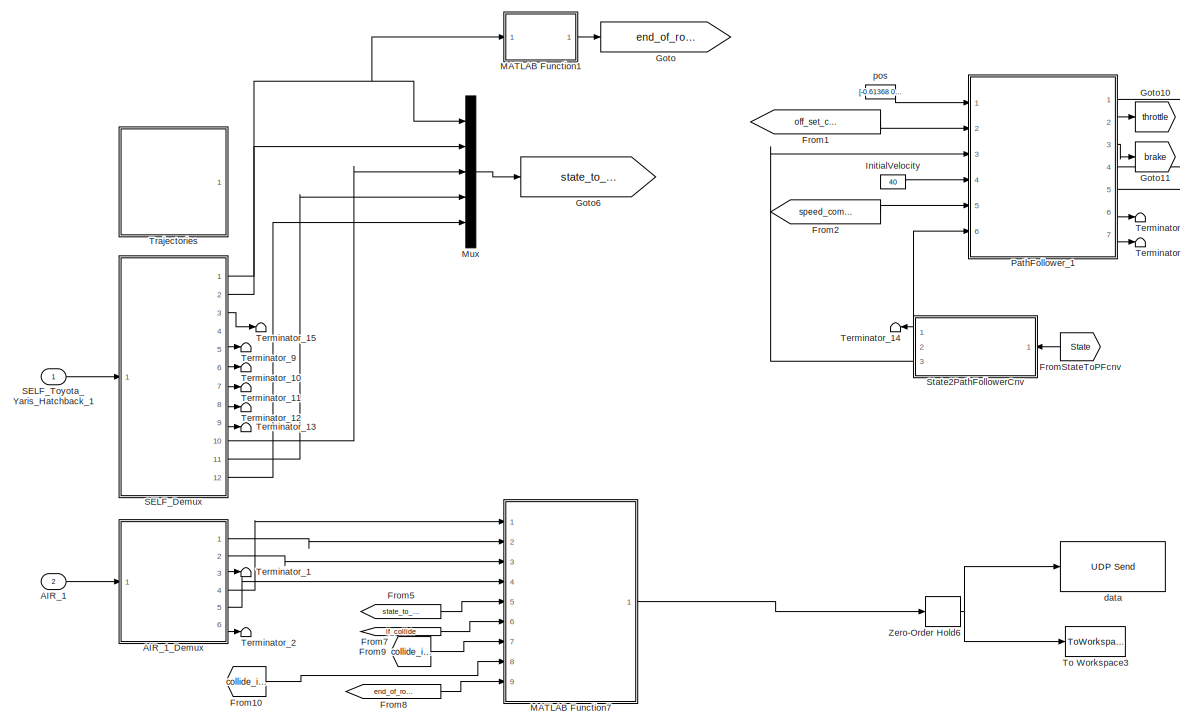
[diagram: Toyota_Yaris_Hatchback_1 - part 1/4, top left region]
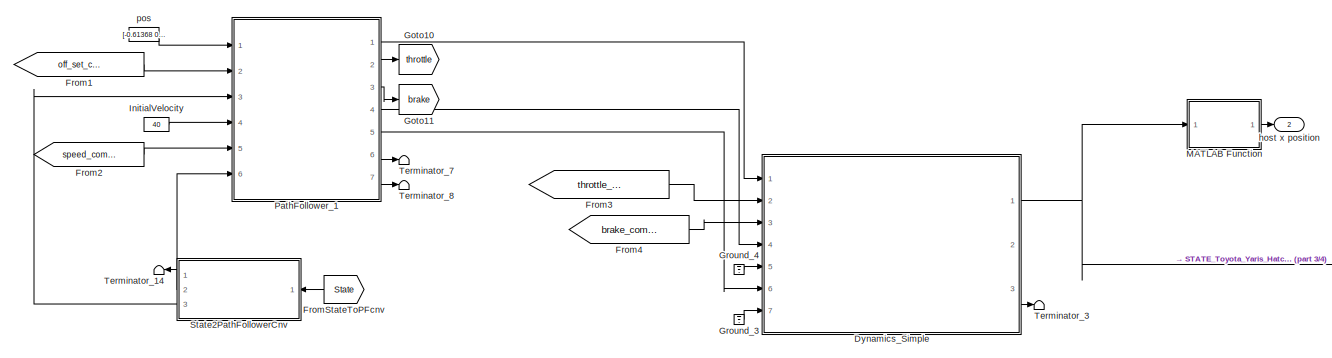
[diagram: Toyota_Yaris_Hatchback_1 - part 2/4, top center region]
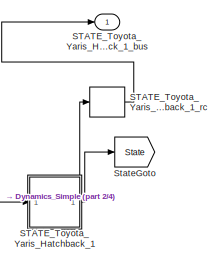
[diagram: Toyota_Yaris_Hatchback_1 - part 3/4, top right region]
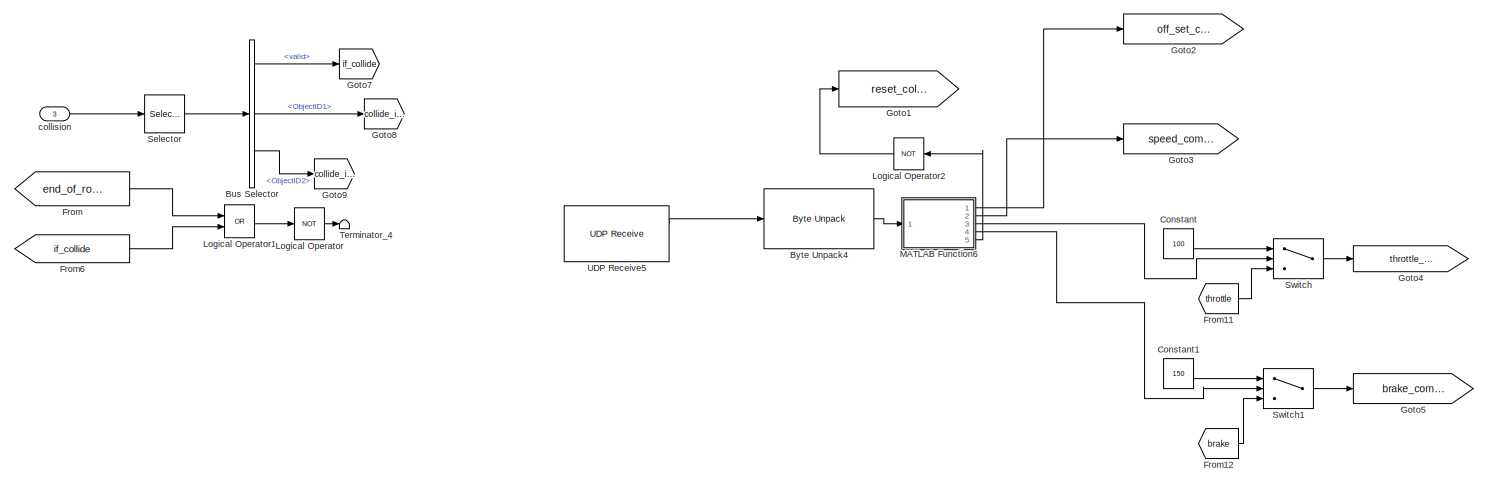
[diagram: Toyota_Yaris_Hatchback_1 - part 4/4, bottom center region]
BLOCK [SubSystem] Toyota_Yaris_Hatchback_1
  InitFcn = UniqueId = '381';
  Ports = [3, 2]
  RequestExecContextInheritance = off
  Tag = WorldObjectSubSystem
  Variant = off
BLOCK [Inport] Toyota_Yaris_Hatchback_1/AIR_1
  BusOutputAsStruct = on
  IconDisplay = Port number
  OutDataTypeStr = Bus: PRESCAN_AIRSENSORMESSAGE
  Port = 2
  PortDimensions = 10
  SampleTime = 10/200
  Tag = inport/AIR
BLOCK [SubSystem] Toyota_Yaris_Hatchback_1/AIR_1_Demux
  DeleteFcn = PreScanBlockDeleteFcn;
  Ports = [1, 6]
  RequestExecContextInheritance = off
  Tag = demux/AIR
  Variant = off
BLOCK [Inport] Toyota_Yaris_Hatchback_1/AIR_1_Demux/AIR
  IconDisplay = Port number
BLOCK [SubSystem] Toyota_Yaris_Hatchback_1/AIR_1_Demux/Activate_Switch
  Ports = [2, 1]
  RequestExecContextInheritance = off
  Variant = off
BLOCK [Inport] Toyota_Yaris_Hatchback_1/AIR_1_Demux/Activate_Switch/BeamID
  IconDisplay = Port number
BLOCK [Constant] Toyota_Yaris_Hatchback_1/AIR_1_Demux/Activate_Switch/Constant
  Value = 0
BLOCK [Inport] Toyota_Yaris_Hatchback_1/AIR_1_Demux/Activate_Switch/Heading
  IconDisplay = Port number
  Port = 2
BLOCK [Outport] Toyota_Yaris_Hatchback_1/AIR_1_Demux/Activate_Switch/On//Off
  IconDisplay = Port number
BLOCK [Product] Toyota_Yaris_Hatchback_1/AIR_1_Demux/Activate_Switch/Product1
  InputSameDT = off
  OutDataTypeStr = Inherit: Inherit via internal rule
  Ports = [2, 1]
  SaturateOnIntegerOverflow = off
BLOCK [RelationalOperator] Toyota_Yaris_Hatchback_1/AIR_1_Demux/Activate_Switch/Relational Operator
  InputSameDT = off
  Operator = ~=
  OutDataTypeStr = boolean
  Ports = [2, 1]
BLOCK [Outport] Toyota_Yaris_Hatchback_1/AIR_1_Demux/Azimuth [deg]
  IconDisplay = Port number
  Port = 2
BLOCK [BusSelector] Toyota_Yaris_Hatchback_1/AIR_1_Demux/Bus Selector
  OutputAsBus = off
  OutputSignals = DATA.Range,DATA.Azimuth,DATA.Elevation,DATA.ID,DATA.Velocity,DATA.Heading
  Ports = [1, 6]
BLOCK [DataTypeConversion] Toyota_Yaris_Hatchback_1/AIR_1_Demux/Data Type Conversion
  OutDataTypeStr = double
  RndMeth = Floor
  SaturateOnIntegerOverflow = off
BLOCK [Outport] Toyota_Yaris_Hatchback_1/AIR_1_Demux/Elevation [deg]
  IconDisplay = Port number
  Port = 3
BLOCK [ForIterator] Toyota_Yaris_Hatchback_1/AIR_1_Demux/For Iterator
  IterationLimit = detectableObjects
  Ports = [0, 1]
  ResetStates = reset
BLOCK [Outport] Toyota_Yaris_Hatchback_1/AIR_1_Demux/Heading [deg]
  IconDisplay = Port number
  Port = 6
BLOCK [Outport] Toyota_Yaris_Hatchback_1/AIR_1_Demux/ID [-]
  IconDisplay = Port number
  Port = 4
BLOCK [Outport] Toyota_Yaris_Hatchback_1/AIR_1_Demux/Range [m]
  IconDisplay = Port number
BLOCK [Selector] Toyota_Yaris_Hatchback_1/AIR_1_Demux/Selector
  IndexOptions = Index vector (port)
  Indices = [1 3]
  InputPortWidth = detectableObjects
  OutputSizes = 1
  Ports = [2, 1]
BLOCK [SubSystem] Toyota_Yaris_Hatchback_1/AIR_1_Demux/Signal2ArrayOfSignals1
  Ports = [2, 1]
  RequestExecContextInheritance = off
  Variant = off
BLOCK [Outport] Toyota_Yaris_Hatchback_1/AIR_1_Demux/Signal2ArrayOfSignals1/ArrayofElements
  IconDisplay = Port number
BLOCK [Assignment] Toyota_Yaris_Hatchback_1/AIR_1_Demux/Signal2ArrayOfSignals1/Assignment
  IndexOptions = Index vector (port)
  Indices = 1
  OutputSizes = 1
  Ports = [3, 1]
BLOCK [Inport] Toyota_Yaris_Hatchback_1/AIR_1_Demux/Signal2ArrayOfSignals1/Element
  IconDisplay = Port number
  Port = 2
BLOCK [Inport] Toyota_Yaris_Hatchback_1/AIR_1_Demux/Signal2ArrayOfSignals1/LoopIndex
  IconDisplay = Port number
BLOCK [Memory] Toyota_Yaris_Hatchback_1/AIR_1_Demux/Signal2ArrayOfSignals1/Previous vector
  InheritSampleTime = on
  InitialCondition = zeros(VECTORLENGTH,1)
BLOCK [SubSystem] Toyota_Yaris_Hatchback_1/AIR_1_Demux/Signal2ArrayOfSignals2
  Ports = [2, 1]
  RequestExecContextInheritance = off
  Variant = off
BLOCK [Outport] Toyota_Yaris_Hatchback_1/AIR_1_Demux/Signal2ArrayOfSignals2/ArrayofElements
  IconDisplay = Port number
BLOCK [Assignment] Toyota_Yaris_Hatchback_1/AIR_1_Demux/Signal2ArrayOfSignals2/Assignment
  IndexOptions = Index vector (port)
  Indices = 1
  OutputSizes = 1
  Ports = [3, 1]
BLOCK [Inport] Toyota_Yaris_Hatchback_1/AIR_1_Demux/Signal2ArrayOfSignals2/Element
  IconDisplay = Port number
  Port = 2
BLOCK [Inport] Toyota_Yaris_Hatchback_1/AIR_1_Demux/Signal2ArrayOfSignals2/LoopIndex
  IconDisplay = Port number
BLOCK [Memory] Toyota_Yaris_Hatchback_1/AIR_1_Demux/Signal2ArrayOfSignals2/Previous vector
  InheritSampleTime = on
  InitialCondition = zeros(VECTORLENGTH,1)
BLOCK [SubSystem] Toyota_Yaris_Hatchback_1/AIR_1_Demux/Signal2ArrayOfSignals3
  Ports = [2, 1]
  RequestExecContextInheritance = off
  Variant = off
BLOCK [Outport] Toyota_Yaris_Hatchback_1/AIR_1_Demux/Signal2ArrayOfSignals3/ArrayofElements
  IconDisplay = Port number
BLOCK [Assignment] Toyota_Yaris_Hatchback_1/AIR_1_Demux/Signal2ArrayOfSignals3/Assignment
  IndexOptions = Index vector (port)
  Indices = 1
  OutputSizes = 1
  Ports = [3, 1]
BLOCK [Inport] Toyota_Yaris_Hatchback_1/AIR_1_Demux/Signal2ArrayOfSignals3/Element
  IconDisplay = Port number
  Port = 2
BLOCK [Inport] Toyota_Yaris_Hatchback_1/AIR_1_Demux/Signal2ArrayOfSignals3/LoopIndex
  IconDisplay = Port number
BLOCK [Memory] Toyota_Yaris_Hatchback_1/AIR_1_Demux/Signal2ArrayOfSignals3/Previous vector
  InheritSampleTime = on
  InitialCondition = zeros(VECTORLENGTH,1)
BLOCK [SubSystem] Toyota_Yaris_Hatchback_1/AIR_1_Demux/Signal2ArrayOfSignals4
  Ports = [2, 1]
  RequestExecContextInheritance = off
  Variant = off
BLOCK [Outport] Toyota_Yaris_Hatchback_1/AIR_1_Demux/Signal2ArrayOfSignals4/ArrayofElements
  IconDisplay = Port number
BLOCK [Assignment] Toyota_Yaris_Hatchback_1/AIR_1_Demux/Signal2ArrayOfSignals4/Assignment
  IndexOptions = Index vector (port)
  Indices = 1
  OutputSizes = 1
  Ports = [3, 1]
BLOCK [Inport] Toyota_Yaris_Hatchback_1/AIR_1_Demux/Signal2ArrayOfSignals4/Element
  IconDisplay = Port number
  Port = 2
BLOCK [Inport] Toyota_Yaris_Hatchback_1/AIR_1_Demux/Signal2ArrayOfSignals4/LoopIndex
  IconDisplay = Port number
BLOCK [Memory] Toyota_Yaris_Hatchback_1/AIR_1_Demux/Signal2ArrayOfSignals4/Previous vector
  InheritSampleTime = on
  InitialCondition = zeros(VECTORLENGTH,1)
BLOCK [SubSystem] Toyota_Yaris_Hatchback_1/AIR_1_Demux/Signal2ArrayOfSignals5
  Ports = [2, 1]
  RequestExecContextInheritance = off
  Variant = off
BLOCK [Outport] Toyota_Yaris_Hatchback_1/AIR_1_Demux/Signal2ArrayOfSignals5/ArrayofElements
  IconDisplay = Port number
BLOCK [Assignment] Toyota_Yaris_Hatchback_1/AIR_1_Demux/Signal2ArrayOfSignals5/Assignment
  IndexOptions = Index vector (port)
  Indices = 1
  OutputSizes = 1
  Ports = [3, 1]
BLOCK [Inport] Toyota_Yaris_Hatchback_1/AIR_1_Demux/Signal2ArrayOfSignals5/Element
  IconDisplay = Port number
  Port = 2
BLOCK [Inport] Toyota_Yaris_Hatchback_1/AIR_1_Demux/Signal2ArrayOfSignals5/LoopIndex
  IconDisplay = Port number
BLOCK [Memory] Toyota_Yaris_Hatchback_1/AIR_1_Demux/Signal2ArrayOfSignals5/Previous vector
  InheritSampleTime = on
  InitialCondition = zeros(VECTORLENGTH,1)
BLOCK [SubSystem] Toyota_Yaris_Hatchback_1/AIR_1_Demux/Signal2ArrayOfSignals6
  Ports = [2, 1]
  RequestExecContextInheritance = off
  Variant = off
BLOCK [Outport] Toyota_Yaris_Hatchback_1/AIR_1_Demux/Signal2ArrayOfSignals6/ArrayofElements
  IconDisplay = Port number
BLOCK [Assignment] Toyota_Yaris_Hatchback_1/AIR_1_Demux/Signal2ArrayOfSignals6/Assignment
  IndexOptions = Index vector (port)
  Indices = 1
  OutputSizes = 1
  Ports = [3, 1]
BLOCK [Inport] Toyota_Yaris_Hatchback_1/AIR_1_Demux/Signal2ArrayOfSignals6/Element
  IconDisplay = Port number
  Port = 2
BLOCK [Inport] Toyota_Yaris_Hatchback_1/AIR_1_Demux/Signal2ArrayOfSignals6/LoopIndex
  IconDisplay = Port number
BLOCK [Memory] Toyota_Yaris_Hatchback_1/AIR_1_Demux/Signal2ArrayOfSignals6/Previous vector
  InheritSampleTime = on
  InitialCondition = zeros(VECTORLENGTH,1)
BLOCK [Outport] Toyota_Yaris_Hatchback_1/AIR_1_Demux/Velocity [m//s]
  IconDisplay = Port number
  Port = 5
BLOCK [BusSelector] Toyota_Yaris_Hatchback_1/Bus Selector
  OutputAsBus = off
  OutputSignals = HEADER.valid,DATA.ObjectID1,DATA.ObjectID2
  Ports = [1, 3]
BLOCK [Reference] Toyota_Yaris_Hatchback_1/Byte Unpack4  REF=etargetslib/Byte Unpack
  Ports = [1, 1]
  SourceBlock = etargetslib/Byte Unpack
  SourceType = Byte Unpack
BLOCK [Constant] Toyota_Yaris_Hatchback_1/Constant
  Value = 100
BLOCK [Constant] Toyota_Yaris_Hatchback_1/Constant1
  Value = 150
BLOCK [SubSystem] Toyota_Yaris_Hatchback_1/Dynamics_Simple
  DeleteFcn = PreScanBlockDeleteFcn;
  Ports = [7, 3]
  RequestExecContextInheritance = off
  Tag = Simple_Vehicle_Dynamics
  UserDataPersistent = on
  Variant = off
BLOCK [Inport] Toyota_Yaris_Hatchback_1/Dynamics_Simple/AutoManual_OnOff
  IconDisplay = Port number
  Port = 5
BLOCK [Inport] Toyota_Yaris_Hatchback_1/Dynamics_Simple/Auto_GearShift
  IconDisplay = Port number
  Port = 6
BLOCK [Inport] Toyota_Yaris_Hatchback_1/Dynamics_Simple/Brake
  IconDisplay = Port number
  Port = 3
BLOCK [BusCreator] Toyota_Yaris_Hatchback_1/Dynamics_Simple/Bus Creator
  DisplayOption = bar
  InheritFromInputs = on
  Inputs = 14
  Ports = [14, 1]
BLOCK [SubSystem] Toyota_Yaris_Hatchback_1/Dynamics_Simple/Chassis
  Ports = [4, 7]
  RequestExecContextInheritance = off
  Variant = off
BLOCK [Abs] Toyota_Yaris_Hatchback_1/Dynamics_Simple/Chassis/Abs
  SaturateOnIntegerOverflow = off
BLOCK [SubSystem] Toyota_Yaris_Hatchback_1/Dynamics_Simple/Chassis/Bicycle_model_[XYZ]
  Ports = [9, 11]
  RequestExecContextInheritance = off
  Variant = off
BLOCK [Inport] Toyota_Yaris_Hatchback_1/Dynamics_Simple/Chassis/Bicycle_model_[XYZ]/BrakePressure_[bar]
  IconDisplay = Port number
  Port = 4
BLOCK [Inport] Toyota_Yaris_Hatchback_1/Dynamics_Simple/Chassis/Bicycle_model_[XYZ]/DeltaWheel_[rad]
  IconDisplay = Port number
BLOCK [Demux] Toyota_Yaris_Hatchback_1/Dynamics_Simple/Chassis/Bicycle_model_[XYZ]/Demux
  DisplayOption = bar
  Outputs = 2
  Ports = [1, 2]
BLOCK [Demux] Toyota_Yaris_Hatchback_1/Dynamics_Simple/Chassis/Bicycle_model_[XYZ]/Demux1
  DisplayOption = bar
  Outputs = 2
  Ports = [1, 2]
BLOCK [Inport] Toyota_Yaris_Hatchback_1/Dynamics_Simple/Chassis/Bicycle_model_[XYZ]/DriveTorque_[Nm]
  IconDisplay = Port number
  Port = 5
BLOCK [From] Toyota_Yaris_Hatchback_1/Dynamics_Simple/Chassis/Bicycle_model_[XYZ]/From1
  CloseFcn = tagdialog Close
  GotoTag = ax
BLOCK [From] Toyota_Yaris_Hatchback_1/Dynamics_Simple/Chassis/Bicycle_model_[XYZ]/From2
  CloseFcn = tagdialog Close
  GotoTag = ay
BLOCK [From] Toyota_Yaris_Hatchback_1/Dynamics_Simple/Chassis/Bicycle_model_[XYZ]/From3
  CloseFcn = tagdialog Close
  GotoTag = vx
BLOCK [From] Toyota_Yaris_Hatchback_1/Dynamics_Simple/Chassis/Bicycle_model_[XYZ]/From4
  CloseFcn = tagdialog Close
  GotoTag = dYaw
BLOCK [Inport] Toyota_Yaris_Hatchback_1/Dynamics_Simple/Chassis/Bicycle_model_[XYZ]/Fy_front_[N]
  IconDisplay = Port number
  Port = 9
BLOCK [Inport] Toyota_Yaris_Hatchback_1/Dynamics_Simple/Chassis/Bicycle_model_[XYZ]/Fy_rear_[N]
  IconDisplay = Port number
  Port = 8
BLOCK [SubSystem] Toyota_Yaris_Hatchback_1/Dynamics_Simple/Chassis/Bicycle_model_[XYZ]/Fyi --> Fy // Mz
  Ports = [3, 2]
  RequestExecContextInheritance = off
  Variant = off
BLOCK [Inport] Toyota_Yaris_Hatchback_1/Dynamics_Simple/Chassis/Bicycle_model_[XYZ]/Fyi --> Fy // Mz/DeltaWheel_[rad]
  IconDisplay = Port number
BLOCK [Fcn] Toyota_Yaris_Hatchback_1/Dynamics_Simple/Chassis/Bicycle_model_[XYZ]/Fyi --> Fy // Mz/Fy
  Expr = u(2)*cos(u(1)) + u(3)
BLOCK [Outport] Toyota_Yaris_Hatchback_1/Dynamics_Simple/Chassis/Bicycle_model_[XYZ]/Fyi --> Fy // Mz/Fy_[N]
  IconDisplay = Port number
  InitialOutput = 0
BLOCK [Inport] Toyota_Yaris_Hatchback_1/Dynamics_Simple/Chassis/Bicycle_model_[XYZ]/Fyi --> Fy // Mz/Fy_f_[N]
  IconDisplay = Port number
  Port = 2
BLOCK [Inport] Toyota_Yaris_Hatchback_1/Dynamics_Simple/Chassis/Bicycle_model_[XYZ]/Fyi --> Fy // Mz/Fy_r_[N]
  IconDisplay = Port number
  Port = 3
BLOCK [Mux] Toyota_Yaris_Hatchback_1/Dynamics_Simple/Chassis/Bicycle_model_[XYZ]/Fyi --> Fy // Mz/Mux1
  DisplayOption = bar
  Inputs = 3
  Ports = [3, 1]
BLOCK [Fcn] Toyota_Yaris_Hatchback_1/Dynamics_Simple/Chassis/Bicycle_model_[XYZ]/Fyi --> Fy // Mz/Mz
  Expr = u(2)*p.a*cos(u(1)) - u(3)*p.b
BLOCK [Outport] Toyota_Yaris_Hatchback_1/Dynamics_Simple/Chassis/Bicycle_model_[XYZ]/Fyi --> Fy // Mz/Mz_[Nm]
  IconDisplay = Port number
  InitialOutput = 0
  Port = 2
BLOCK [Goto] Toyota_Yaris_Hatchback_1/Dynamics_Simple/Chassis/Bicycle_model_[XYZ]/Goto
  GotoTag = ax
BLOCK [Goto] Toyota_Yaris_Hatchback_1/Dynamics_Simple/Chassis/Bicycle_model_[XYZ]/Goto1
  GotoTag = ay
BLOCK [Goto] Toyota_Yaris_Hatchback_1/Dynamics_Simple/Chassis/Bicycle_model_[XYZ]/Goto2
  GotoTag = vx
BLOCK [Goto] Toyota_Yaris_Hatchback_1/Dynamics_Simple/Chassis/Bicycle_model_[XYZ]/Goto3
  GotoTag = dYaw
BLOCK [Outport] Toyota_Yaris_Hatchback_1/Dynamics_Simple/Chassis/Bicycle_model_[XYZ]/PitchAngle_[rad]
  IconDisplay = Port number
  Port = 8
BLOCK [Outport] Toyota_Yaris_Hatchback_1/Dynamics_Simple/Chassis/Bicycle_model_[XYZ]/RollAngle_[rad]
  IconDisplay = Port number
  Port = 4
BLOCK [Outport] Toyota_Yaris_Hatchback_1/Dynamics_Simple/Chassis/Bicycle_model_[XYZ]/RollRate_[rads-1]
  IconDisplay = Port number
  Port = 5
BLOCK [Outport] Toyota_Yaris_Hatchback_1/Dynamics_Simple/Chassis/Bicycle_model_[XYZ]/Vx_[ms-1]
  IconDisplay = Port number
  Port = 7
BLOCK [SubSystem] Toyota_Yaris_Hatchback_1/Dynamics_Simple/Chassis/Bicycle_model_[XYZ]/X_Motion
  Ports = [3, 2]
  RequestExecContextInheritance = off
  Variant = off
BLOCK [SubSystem] Toyota_Yaris_Hatchback_1/Dynamics_Simple/Chassis/Bicycle_model_[XYZ]/X_Motion/Air&RoadResistance
  Ports = [1, 1]
  RequestExecContextInheritance = off
  Variant = off
BLOCK [Gain] Toyota_Yaris_Hatchback_1/Dynamics_Simple/Chassis/Bicycle_model_[XYZ]/X_Motion/Air&RoadResistance/Gain
  Gain = 1/p.Rw
  OutDataTypeStr = Inherit: Inherit via internal rule
  ParamDataTypeStr = Inherit: Inherit via internal rule
  SaturateOnIntegerOverflow = off
BLOCK [Outport] Toyota_Yaris_Hatchback_1/Dynamics_Simple/Chassis/Bicycle_model_[XYZ]/X_Motion/Air&RoadResistance/Resistance_Force
  IconDisplay = Port number
BLOCK [Fcn] Toyota_Yaris_Hatchback_1/Dynamics_Simple/Chassis/Bicycle_model_[XYZ]/X_Motion/Air&RoadResistance/Road & Aerodyn Resistances
  Expr = p.Rroad + p.Rair*u^2
BLOCK [Saturate] Toyota_Yaris_Hatchback_1/Dynamics_Simple/Chassis/Bicycle_model_[XYZ]/X_Motion/Air&RoadResistance/Saturation1
  InputPortMap = u0
  LowerLimit = -5/15
  Ports = [1, 1]
  UpperLimit = 5/15
BLOCK [Signum] Toyota_Yaris_Hatchback_1/Dynamics_Simple/Chassis/Bicycle_model_[XYZ]/X_Motion/Air&RoadResistance/Sign
BLOCK [Gain] Toyota_Yaris_Hatchback_1/Dynamics_Simple/Chassis/Bicycle_model_[XYZ]/X_Motion/Air&RoadResistance/[ms-1] 2 [rads-1]
  Gain = 1/p.Rw
BLOCK [Product] Toyota_Yaris_Hatchback_1/Dynamics_Simple/Chassis/Bicycle_model_[XYZ]/X_Motion/Air&RoadResistance/signed load1
  Ports = [2, 1]
  RndMeth = Floor
BLOCK [Inport] Toyota_Yaris_Hatchback_1/Dynamics_Simple/Chassis/Bicycle_model_[XYZ]/X_Motion/Air&RoadResistance/vx_[ms-1]
  IconDisplay = Port number
BLOCK [Inport] Toyota_Yaris_Hatchback_1/Dynamics_Simple/Chassis/Bicycle_model_[XYZ]/X_Motion/BrakePressure_[bar]
  IconDisplay = Port number
  Port = 2
BLOCK [SubSystem] Toyota_Yaris_Hatchback_1/Dynamics_Simple/Chassis/Bicycle_model_[XYZ]/X_Motion/BrakeSystem
  Ports = [2, 2]
  RequestExecContextInheritance = off
  Variant = off
BLOCK [Outport] Toyota_Yaris_Hatchback_1/Dynamics_Simple/Chassis/Bicycle_model_[XYZ]/X_Motion/BrakeSystem/BrakeForce
  IconDisplay = Port number
BLOCK [Inport] Toyota_Yaris_Hatchback_1/Dynamics_Simple/Chassis/Bicycle_model_[XYZ]/X_Motion/BrakeSystem/BrakePressure_[bar]
  IconDisplay = Port number
  Port = 2
BLOCK [Outport] Toyota_Yaris_Hatchback_1/Dynamics_Simple/Chassis/Bicycle_model_[XYZ]/X_Motion/BrakeSystem/BrakeTorqueAbs
  IconDisplay = Port number
  Port = 2
BLOCK [Gain] Toyota_Yaris_Hatchback_1/Dynamics_Simple/Chassis/Bicycle_model_[XYZ]/X_Motion/BrakeSystem/Gain
  Gain = 1/p.Rw
  OutDataTypeStr = Inherit: Inherit via internal rule
  ParamDataTypeStr = Inherit: Inherit via internal rule
  SaturateOnIntegerOverflow = off
BLOCK [Saturate] Toyota_Yaris_Hatchback_1/Dynamics_Simple/Chassis/Bicycle_model_[XYZ]/X_Motion/BrakeSystem/Saturation
  InputPortMap = u0
  LowerLimit = 0
  Ports = [1, 1]
  UpperLimit = p.PBrakeMax
BLOCK [Saturate] Toyota_Yaris_Hatchback_1/Dynamics_Simple/Chassis/Bicycle_model_[XYZ]/X_Motion/BrakeSystem/Saturation1
  InputPortMap = u0
  LowerLimit = -5/15
  Ports = [1, 1]
  UpperLimit = 5/15
BLOCK [Signum] Toyota_Yaris_Hatchback_1/Dynamics_Simple/Chassis/Bicycle_model_[XYZ]/X_Motion/BrakeSystem/Sign
BLOCK [Gain] Toyota_Yaris_Hatchback_1/Dynamics_Simple/Chassis/Bicycle_model_[XYZ]/X_Motion/BrakeSystem/[ms-1] 2 [rads-1]
  Gain = 1/p.Rw
BLOCK [Gain] Toyota_Yaris_Hatchback_1/Dynamics_Simple/Chassis/Bicycle_model_[XYZ]/X_Motion/BrakeSystem/braking Q factor
  Gain = p.Qfac
BLOCK [Product] Toyota_Yaris_Hatchback_1/Dynamics_Simple/Chassis/Bicycle_model_[XYZ]/X_Motion/BrakeSystem/signed load1
  Ports = [2, 1]
  RndMeth = Floor
BLOCK [Inport] Toyota_Yaris_Hatchback_1/Dynamics_Simple/Chassis/Bicycle_model_[XYZ]/X_Motion/BrakeSystem/vx_[ms-1]
  IconDisplay = Port number
BLOCK [SubSystem] Toyota_Yaris_Hatchback_1/Dynamics_Simple/Chassis/Bicycle_model_[XYZ]/X_Motion/Configurable Subsystem
  AttributesFormatString = %<BlockChoice>
  BlockChoice = Integrator
  MemberBlocks = Discrete-Time Integrator,Integrator
  OpenFcn = BringToFront(gcb);
  Ports = [3, 1]
  RequestExecContextInheritance = off
  ShowPortLabels = none
  TemplateBlock = PreScanSimulinkLibrary/Configurable Subsystems/integral with reset and initial condition/Configurable\nSubsystem
  Variant = off
BLOCK [Inport] Toyota_Yaris_Hatchback_1/Dynamics_Simple/Chassis/Bicycle_model_[XYZ]/X_Motion/Configurable Subsystem/In1
  IconDisplay = Port number
BLOCK [Inport] Toyota_Yaris_Hatchback_1/Dynamics_Simple/Chassis/Bicycle_model_[XYZ]/X_Motion/Configurable Subsystem/In2
  IconDisplay = Port number
  Port = 2
BLOCK [Inport] Toyota_Yaris_Hatchback_1/Dynamics_Simple/Chassis/Bicycle_model_[XYZ]/X_Motion/Configurable Subsystem/In3
  IconDisplay = Port number
  Port = 3
BLOCK [Integrator] Toyota_Yaris_Hatchback_1/Dynamics_Simple/Chassis/Bicycle_model_[XYZ]/X_Motion/Configurable Subsystem/Integrator
  ExternalReset = level
  InitialConditionSource = external
  Ports = [3, 1]
BLOCK [Outport] Toyota_Yaris_Hatchback_1/Dynamics_Simple/Chassis/Bicycle_model_[XYZ]/X_Motion/Configurable Subsystem/Out1
  IconDisplay = Port number
BLOCK [SubSystem] Toyota_Yaris_Hatchback_1/Dynamics_Simple/Chassis/Bicycle_model_[XYZ]/X_Motion/Configurable Subsystem1
  AttributesFormatString = %<BlockChoice>
  BlockChoice = Torsional damping
  MemberBlocks = Discrete Torsional damping,Torsional damping
  OpenFcn = BringToFront(gcb);
  Ports = [1, 1]
  RequestExecContextInheritance = off
  ShowPortLabels = none
  TemplateBlock = PreScanSimulinkLibrary/Configurable Subsystems/TransferFunction\nTorsional damping/Configurable\nSubsystem
  Variant = off
BLOCK [Inport] Toyota_Yaris_Hatchback_1/Dynamics_Simple/Chassis/Bicycle_model_[XYZ]/X_Motion/Configurable Subsystem1/In1
  IconDisplay = Port number
BLOCK [Outport] Toyota_Yaris_Hatchback_1/Dynamics_Simple/Chassis/Bicycle_model_[XYZ]/X_Motion/Configurable Subsystem1/Out1
  IconDisplay = Port number
BLOCK [TransferFcn] Toyota_Yaris_Hatchback_1/Dynamics_Simple/Chassis/Bicycle_model_[XYZ]/X_Motion/Configurable Subsystem1/Torsional damping
  Denominator = [0.1 1]
BLOCK [Inport] Toyota_Yaris_Hatchback_1/Dynamics_Simple/Chassis/Bicycle_model_[XYZ]/X_Motion/DriveTorque_[Nm]
  IconDisplay = Port number
BLOCK [From] Toyota_Yaris_Hatchback_1/Dynamics_Simple/Chassis/Bicycle_model_[XYZ]/X_Motion/From
  GotoTag = reset_col_end
  TagVisibility = global
BLOCK [From] Toyota_Yaris_Hatchback_1/Dynamics_Simple/Chassis/Bicycle_model_[XYZ]/X_Motion/From2
  CloseFcn = tagdialog Close
  GotoTag = DT
BLOCK [From] Toyota_Yaris_Hatchback_1/Dynamics_Simple/Chassis/Bicycle_model_[XYZ]/X_Motion/From3
  CloseFcn = tagdialog Close
  GotoTag = BT
BLOCK [Gain] Toyota_Yaris_Hatchback_1/Dynamics_Simple/Chassis/Bicycle_model_[XYZ]/X_Motion/Gain
  Gain = 1/p.Rw
  OutDataTypeStr = Inherit: Inherit via internal rule
  ParamDataTypeStr = Inherit: Inherit via internal rule
  SaturateOnIntegerOverflow = off
BLOCK [Goto] Toyota_Yaris_Hatchback_1/Dynamics_Simple/Chassis/Bicycle_model_[XYZ]/X_Motion/Goto
  GotoTag = DT
BLOCK [Goto] Toyota_Yaris_Hatchback_1/Dynamics_Simple/Chassis/Bicycle_model_[XYZ]/X_Motion/Goto1
  GotoTag = BT
BLOCK [Gain] Toyota_Yaris_Hatchback_1/Dynamics_Simple/Chassis/Bicycle_model_[XYZ]/X_Motion/Inertia
  Gain = 1/p.m
BLOCK [Logic] Toyota_Yaris_Hatchback_1/Dynamics_Simple/Chassis/Bicycle_model_[XYZ]/X_Motion/Logical Operator
  AllPortsSameDT = off
  Operator = OR
  OutDataTypeStr = boolean
  Ports = [2, 1]
BLOCK [Logic] Toyota_Yaris_Hatchback_1/Dynamics_Simple/Chassis/Bicycle_model_[XYZ]/X_Motion/Logical Operator1
  AllPortsSameDT = off
  Inputs = 1
  Operator = NOT
  OutDataTypeStr = boolean
  Ports = [1, 1]
BLOCK [SubSystem] Toyota_Yaris_Hatchback_1/Dynamics_Simple/Chassis/Bicycle_model_[XYZ]/X_Motion/Max RPM and zero- velocity detection
  Ports = [5, 3]
  RequestExecContextInheritance = off
  Variant = off
BLOCK [Abs] Toyota_Yaris_Hatchback_1/Dynamics_Simple/Chassis/Bicycle_model_[XYZ]/X_Motion/Max RPM and zero- velocity detection/Abs
  SaturateOnIntegerOverflow = off
BLOCK [Abs] Toyota_Yaris_Hatchback_1/Dynamics_Simple/Chassis/Bicycle_model_[XYZ]/X_Motion/Max RPM and zero- velocity detection/Abs1
  SaturateOnIntegerOverflow = off
BLOCK [Inport] Toyota_Yaris_Hatchback_1/Dynamics_Simple/Chassis/Bicycle_model_[XYZ]/X_Motion/Max RPM and zero- velocity detection/Brake Torque
  IconDisplay = Port number
  Port = 3
BLOCK [Reference] Toyota_Yaris_Hatchback_1/Dynamics_Simple/Chassis/Bicycle_model_[XYZ]/X_Motion/Max RPM and zero- velocity detection/Compare To Zero  REF=simulink/Logic and Bit
Operations/Compare
To Zero
  Ports = [1, 1]
  SourceBlock = simulink/Logic and Bit\nOperations/Compare\nTo Zero
  SourceProductBaseCode = SL
  SourceProductName = Simulink
  SourceType = Compare To Zero
BLOCK [Reference] Toyota_Yaris_Hatchback_1/Dynamics_Simple/Chassis/Bicycle_model_[XYZ]/X_Motion/Max RPM and zero- velocity detection/Compare To Zero1  REF=simulink/Logic and Bit
Operations/Compare
To Zero
  Ports = [1, 1]
  SourceBlock = simulink/Logic and Bit\nOperations/Compare\nTo Zero
  SourceProductBaseCode = SL
  SourceProductName = Simulink
  SourceType = Compare To Zero
BLOCK [Reference] Toyota_Yaris_Hatchback_1/Dynamics_Simple/Chassis/Bicycle_model_[XYZ]/X_Motion/Max RPM and zero- velocity detection/Compare To Zero2  REF=simulink/Logic and Bit
Operations/Compare
To Zero
  Ports = [1, 1]
  SourceBlock = simulink/Logic and Bit\nOperations/Compare\nTo Zero
  SourceProductBaseCode = SL
  SourceProductName = Simulink
  SourceType = Compare To Zero
BLOCK [Reference] Toyota_Yaris_Hatchback_1/Dynamics_Simple/Chassis/Bicycle_model_[XYZ]/X_Motion/Max RPM and zero- velocity detection/Compare To Zero3  REF=simulink/Logic and Bit
Operations/Compare
To Zero
  Ports = [1, 1]
  SourceBlock = simulink/Logic and Bit\nOperations/Compare\nTo Zero
  SourceProductBaseCode = SL
  SourceProductName = Simulink
  SourceType = Compare To Zero
BLOCK [SubSystem] Toyota_Yaris_Hatchback_1/Dynamics_Simple/Chassis/Bicycle_model_[XYZ]/X_Motion/Max RPM and zero- velocity detection/Configurable Subsystem
  AttributesFormatString = %<BlockChoice>
  BlockChoice = Step
  MemberBlocks = Discrete Step,Step
  OpenFcn = BringToFront(gcb);
  Ports = [0, 1]
  RequestExecContextInheritance = off
  ShowPortLabels = none
  TemplateBlock = PreScanSimulinkLibrary/Configurable Subsystems/Step Function/Configurable\nSubsystem
  Variant = off
BLOCK [Outport] Toyota_Yaris_Hatchback_1/Dynamics_Simple/Chassis/Bicycle_model_[XYZ]/X_Motion/Max RPM and zero- velocity detection/Configurable Subsystem/Out1
  IconDisplay = Port number
BLOCK [Step] Toyota_Yaris_Hatchback_1/Dynamics_Simple/Chassis/Bicycle_model_[XYZ]/X_Motion/Max RPM and zero- velocity detection/Configurable Subsystem/Step
  After = 0
  Before = 1
  SampleTime = 0
  Time = 0.0001
BLOCK [Constant] Toyota_Yaris_Hatchback_1/Dynamics_Simple/Chassis/Bicycle_model_[XYZ]/X_Motion/Max RPM and zero- velocity detection/Constant
BLOCK [Constant] Toyota_Yaris_Hatchback_1/Dynamics_Simple/Chassis/Bicycle_model_[XYZ]/X_Motion/Max RPM and zero- velocity detection/Constant1
BLOCK [Inport] Toyota_Yaris_Hatchback_1/Dynamics_Simple/Chassis/Bicycle_model_[XYZ]/X_Motion/Max RPM and zero- velocity detection/Drive Torque
  IconDisplay = Port number
  Port = 2
BLOCK [Logic] Toyota_Yaris_Hatchback_1/Dynamics_Simple/Chassis/Bicycle_model_[XYZ]/X_Motion/Max RPM and zero- velocity detection/Logical Operator
  AllPortsSameDT = off
  OutDataTypeStr = boolean
  Ports = [2, 1]
BLOCK [Logic] Toyota_Yaris_Hatchback_1/Dynamics_Simple/Chassis/Bicycle_model_[XYZ]/X_Motion/Max RPM and zero- velocity detection/Logical Operator1
  AllPortsSameDT = off
  OutDataTypeStr = boolean
  Ports = [2, 1]
BLOCK [Logic] Toyota_Yaris_Hatchback_1/Dynamics_Simple/Chassis/Bicycle_model_[XYZ]/X_Motion/Max RPM and zero- velocity detection/Logical Operator2
  AllPortsSameDT = off
  Operator = NOT
  OutDataTypeStr = boolean
  Ports = [1, 1]
BLOCK [Logic] Toyota_Yaris_Hatchback_1/Dynamics_Simple/Chassis/Bicycle_model_[XYZ]/X_Motion/Max RPM and zero- velocity detection/Logical Operator3
  AllPortsSameDT = off
  OutDataTypeStr = boolean
  Ports = [2, 1]
BLOCK [Logic] Toyota_Yaris_Hatchback_1/Dynamics_Simple/Chassis/Bicycle_model_[XYZ]/X_Motion/Max RPM and zero- velocity detection/Logical Operator4
  AllPortsSameDT = off
  Operator = OR
  OutDataTypeStr = boolean
  Ports = [2, 1]
BLOCK [Memory] Toyota_Yaris_Hatchback_1/Dynamics_Simple/Chassis/Bicycle_model_[XYZ]/X_Motion/Max RPM and zero- velocity detection/Memory
BLOCK [Memory] Toyota_Yaris_Hatchback_1/Dynamics_Simple/Chassis/Bicycle_model_[XYZ]/X_Motion/Max RPM and zero- velocity detection/Memory1
BLOCK [Memory] Toyota_Yaris_Hatchback_1/Dynamics_Simple/Chassis/Bicycle_model_[XYZ]/X_Motion/Max RPM and zero- velocity detection/Memory2
BLOCK [Product] Toyota_Yaris_Hatchback_1/Dynamics_Simple/Chassis/Bicycle_model_[XYZ]/X_Motion/Max RPM and zero- velocity detection/Product
  InputSameDT = off
  OutDataTypeStr = Inherit: Inherit via internal rule
  Ports = [2, 1]
  SaturateOnIntegerOverflow = off
BLOCK [RelationalOperator] Toyota_Yaris_Hatchback_1/Dynamics_Simple/Chassis/Bicycle_model_[XYZ]/X_Motion/Max RPM and zero- velocity detection/Relational Operator
  InputSameDT = off
  Operator = <
  OutDataTypeStr = boolean
  Ports = [2, 1]
BLOCK [SubSystem] Toyota_Yaris_Hatchback_1/Dynamics_Simple/Chassis/Bicycle_model_[XYZ]/X_Motion/Max RPM and zero- velocity detection/SR-Memory
  Ports = [3, 1]
  RequestExecContextInheritance = off
  Variant = off
BLOCK [Constant] Toyota_Yaris_Hatchback_1/Dynamics_Simple/Chassis/Bicycle_model_[XYZ]/X_Motion/Max RPM and zero- velocity detection/SR-Memory/Constant
  Value = 0
BLOCK [Reference] Toyota_Yaris_Hatchback_1/Dynamics_Simple/Chassis/Bicycle_model_[XYZ]/X_Motion/Max RPM and zero- velocity detection/SR-Memory/Detect Rise Positive  REF=simulink/Logic and Bit
Operations/Detect Rise
Positive
  Ports = [1, 1]
  SourceBlock = simulink/Logic and Bit\nOperations/Detect Rise\nPositive
  SourceProductBaseCode = SL
  SourceProductName = Simulink
  SourceType = Detect Rise Positive
BLOCK [Reference] Toyota_Yaris_Hatchback_1/Dynamics_Simple/Chassis/Bicycle_model_[XYZ]/X_Motion/Max RPM and zero- velocity detection/SR-Memory/Detect Rise Positive1  REF=simulink/Logic and Bit
Operations/Detect Rise
Positive
  Ports = [1, 1]
  SourceBlock = simulink/Logic and Bit\nOperations/Detect Rise\nPositive
  SourceProductBaseCode = SL
  SourceProductName = Simulink
  SourceType = Detect Rise Positive
BLOCK [ManualSwitch] Toyota_Yaris_Hatchback_1/Dynamics_Simple/Chassis/Bicycle_model_[XYZ]/X_Motion/Max RPM and zero- velocity detection/SR-Memory/Manual Switch
BLOCK [ManualSwitch] Toyota_Yaris_Hatchback_1/Dynamics_Simple/Chassis/Bicycle_model_[XYZ]/X_Motion/Max RPM and zero- velocity detection/SR-Memory/Manual Switch1
BLOCK [Outport] Toyota_Yaris_Hatchback_1/Dynamics_Simple/Chassis/Bicycle_model_[XYZ]/X_Motion/Max RPM and zero- velocity detection/SR-Memory/Out
  IconDisplay = Port number
BLOCK [Inport] Toyota_Yaris_Hatchback_1/Dynamics_Simple/Chassis/Bicycle_model_[XYZ]/X_Motion/Max RPM and zero- velocity detection/SR-Memory/Reset
  IconDisplay = Port number
  Port = 3
BLOCK [Inport] Toyota_Yaris_Hatchback_1/Dynamics_Simple/Chassis/Bicycle_model_[XYZ]/X_Motion/Max RPM and zero- velocity detection/SR-Memory/Set
  IconDisplay = Port number
  Port = 2
BLOCK [Inport] Toyota_Yaris_Hatchback_1/Dynamics_Simple/Chassis/Bicycle_model_[XYZ]/X_Motion/Max RPM and zero- velocity detection/SR-Memory/Signal
  IconDisplay = Port number
BLOCK [Switch] Toyota_Yaris_Hatchback_1/Dynamics_Simple/Chassis/Bicycle_model_[XYZ]/X_Motion/Max RPM and zero- velocity detection/SR-Memory/Switch
  Criteria = u2 ~= 0
  InputSameDT = off
  SaturateOnIntegerOverflow = off
BLOCK [Switch] Toyota_Yaris_Hatchback_1/Dynamics_Simple/Chassis/Bicycle_model_[XYZ]/X_Motion/Max RPM and zero- velocity detection/SR-Memory/Switch1
  Criteria = u2 ~= 0
  InputSameDT = off
  SaturateOnIntegerOverflow = off
BLOCK [UnitDelay] Toyota_Yaris_Hatchback_1/Dynamics_Simple/Chassis/Bicycle_model_[XYZ]/X_Motion/Max RPM and zero- velocity detection/SR-Memory/Unit Delay
  SampleTime = -1
BLOCK [Sum] Toyota_Yaris_Hatchback_1/Dynamics_Simple/Chassis/Bicycle_model_[XYZ]/X_Motion/Max RPM and zero- velocity detection/Sum
  IconShape = round
  InputSameDT = off
  Inputs = |-+
  OutDataTypeStr = Inherit: Inherit via internal rule
  Ports = [2, 1]
  SaturateOnIntegerOverflow = off
BLOCK [Switch] Toyota_Yaris_Hatchback_1/Dynamics_Simple/Chassis/Bicycle_model_[XYZ]/X_Motion/Max RPM and zero- velocity detection/Switch
  Criteria = u2 ~= 0
  InputSameDT = off
  SaturateOnIntegerOverflow = off
  Threshold = 0.5
BLOCK [Inport] Toyota_Yaris_Hatchback_1/Dynamics_Simple/Chassis/Bicycle_model_[XYZ]/X_Motion/Max RPM and zero- velocity detection/ax
  IconDisplay = Port number
BLOCK [Constant] Toyota_Yaris_Hatchback_1/Dynamics_Simple/Chassis/Bicycle_model_[XYZ]/X_Motion/Max RPM and zero- velocity detection/ax is 0
  Value = 0
BLOCK [Outport] Toyota_Yaris_Hatchback_1/Dynamics_Simple/Chassis/Bicycle_model_[XYZ]/X_Motion/Max RPM and zero- velocity detection/ax_out
  IconDisplay = Port number
BLOCK [Inport] Toyota_Yaris_Hatchback_1/Dynamics_Simple/Chassis/Bicycle_model_[XYZ]/X_Motion/Max RPM and zero- velocity detection/v0
  IconDisplay = Port number
  Port = 4
BLOCK [Inport] Toyota_Yaris_Hatchback_1/Dynamics_Simple/Chassis/Bicycle_model_[XYZ]/X_Motion/Max RPM and zero- velocity detection/vx
  IconDisplay = Port number
  Port = 5
BLOCK [Outport] Toyota_Yaris_Hatchback_1/Dynamics_Simple/Chassis/Bicycle_model_[XYZ]/X_Motion/Max RPM and zero- velocity detection/vx_reset
  IconDisplay = Port number
  Port = 2
BLOCK [Outport] Toyota_Yaris_Hatchback_1/Dynamics_Simple/Chassis/Bicycle_model_[XYZ]/X_Motion/Max RPM and zero- velocity detection/x0
  IconDisplay = Port number
  Port = 3
BLOCK [Sum] Toyota_Yaris_Hatchback_1/Dynamics_Simple/Chassis/Bicycle_model_[XYZ]/X_Motion/Sum
  Inputs = +-
  Ports = [2, 1]
BLOCK [Sum] Toyota_Yaris_Hatchback_1/Dynamics_Simple/Chassis/Bicycle_model_[XYZ]/X_Motion/Sum2
  Inputs = +-
  Ports = [2, 1]
BLOCK [Outport] Toyota_Yaris_Hatchback_1/Dynamics_Simple/Chassis/Bicycle_model_[XYZ]/X_Motion/ax_[ms-2]
  IconDisplay = Port number
  Port = 2
BLOCK [Inport] Toyota_Yaris_Hatchback_1/Dynamics_Simple/Chassis/Bicycle_model_[XYZ]/X_Motion/v0_[ms-1]
  IconDisplay = Port number
  Port = 3
BLOCK [Outport] Toyota_Yaris_Hatchback_1/Dynamics_Simple/Chassis/Bicycle_model_[XYZ]/X_Motion/vx_[ms-1]
  IconDisplay = Port number
BLOCK [SubSystem] Toyota_Yaris_Hatchback_1/Dynamics_Simple/Chassis/Bicycle_model_[XYZ]/Y & Yaw_Motion
  Ports = [3, 5]
  RequestExecContextInheritance = off
  Variant = off
BLOCK [Reference] Toyota_Yaris_Hatchback_1/Dynamics_Simple/Chassis/Bicycle_model_[XYZ]/Y & Yaw_Motion/Compare To Zero  REF=simulink/Logic and Bit
Operations/Compare
To Zero
  Ports = [1, 1]
  SourceBlock = simulink/Logic and Bit\nOperations/Compare\nTo Zero
  SourceProductBaseCode = SL
  SourceProductName = Simulink
  SourceType = Compare To Zero
BLOCK [SubSystem] Toyota_Yaris_Hatchback_1/Dynamics_Simple/Chassis/Bicycle_model_[XYZ]/Y & Yaw_Motion/Configurable Subsystem
  AttributesFormatString = %<BlockChoice>
  BlockChoice = Integrator
  MemberBlocks = Discrete-Time Integrator,Integrator
  OpenFcn = BringToFront(gcb);
  Ports = [2, 1]
  RequestExecContextInheritance = off
  ShowPortLabels = none
  TemplateBlock = PreScanSimulinkLibrary/Configurable Subsystems/integral with reset/Configurable\nSubsystem
  Variant = off
BLOCK [Inport] Toyota_Yaris_Hatchback_1/Dynamics_Simple/Chassis/Bicycle_model_[XYZ]/Y & Yaw_Motion/Configurable Subsystem/In1
  IconDisplay = Port number
BLOCK [Inport] Toyota_Yaris_Hatchback_1/Dynamics_Simple/Chassis/Bicycle_model_[XYZ]/Y & Yaw_Motion/Configurable Subsystem/In2
  IconDisplay = Port number
  Port = 2
BLOCK [Integrator] Toyota_Yaris_Hatchback_1/Dynamics_Simple/Chassis/Bicycle_model_[XYZ]/Y & Yaw_Motion/Configurable Subsystem/Integrator
  ExternalReset = rising
  Ports = [2, 1]
BLOCK [Outport] Toyota_Yaris_Hatchback_1/Dynamics_Simple/Chassis/Bicycle_model_[XYZ]/Y & Yaw_Motion/Configurable Subsystem/Out1
  IconDisplay = Port number
BLOCK [SubSystem] Toyota_Yaris_Hatchback_1/Dynamics_Simple/Chassis/Bicycle_model_[XYZ]/Y & Yaw_Motion/Configurable Subsystem1
  AttributesFormatString = %<BlockChoice>
  BlockChoice = Integrator
  Commented = on
  MemberBlocks = Discrete-Time Integrator,Integrator
  OpenFcn = BringToFront(gcb);
  Ports = [1, 1]
  RequestExecContextInheritance = off
  ShowPortLabels = none
  TemplateBlock = PreScanSimulinkLibrary/Configurable Subsystems/integral/Configurable\nSubsystem1
  Variant = off
BLOCK [Inport] Toyota_Yaris_Hatchback_1/Dynamics_Simple/Chassis/Bicycle_model_[XYZ]/Y & Yaw_Motion/Configurable Subsystem1/In1
  IconDisplay = Port number
BLOCK [Integrator] Toyota_Yaris_Hatchback_1/Dynamics_Simple/Chassis/Bicycle_model_[XYZ]/Y & Yaw_Motion/Configurable Subsystem1/Integrator
  ExternalReset = level
  Ports = [2, 1]
BLOCK [Outport] Toyota_Yaris_Hatchback_1/Dynamics_Simple/Chassis/Bicycle_model_[XYZ]/Y & Yaw_Motion/Configurable Subsystem1/Out1
  IconDisplay = Port number
BLOCK [SubSystem] Toyota_Yaris_Hatchback_1/Dynamics_Simple/Chassis/Bicycle_model_[XYZ]/Y & Yaw_Motion/Configurable Subsystem2
  AttributesFormatString = %<BlockChoice>
  BlockChoice = Integrator
  MemberBlocks = Discrete-Time Integrator,Integrator
  OpenFcn = BringToFront(gcb);
  Ports = [2, 1]
  RequestExecContextInheritance = off
  ShowPortLabels = none
  TemplateBlock = PreScanSimulinkLibrary/Configurable Subsystems/integral with reset/Configurable\nSubsystem
  Variant = off
BLOCK [Inport] Toyota_Yaris_Hatchback_1/Dynamics_Simple/Chassis/Bicycle_model_[XYZ]/Y & Yaw_Motion/Configurable Subsystem2/In1
  IconDisplay = Port number
BLOCK [Inport] Toyota_Yaris_Hatchback_1/Dynamics_Simple/Chassis/Bicycle_model_[XYZ]/Y & Yaw_Motion/Configurable Subsystem2/In2
  IconDisplay = Port number
  Port = 2
BLOCK [Integrator] Toyota_Yaris_Hatchback_1/Dynamics_Simple/Chassis/Bicycle_model_[XYZ]/Y & Yaw_Motion/Configurable Subsystem2/Integrator
  ExternalReset = rising
  Ports = [2, 1]
BLOCK [Outport] Toyota_Yaris_Hatchback_1/Dynamics_Simple/Chassis/Bicycle_model_[XYZ]/Y & Yaw_Motion/Configurable Subsystem2/Out1
  IconDisplay = Port number
BLOCK [Fcn] Toyota_Yaris_Hatchback_1/Dynamics_Simple/Chassis/Bicycle_model_[XYZ]/Y & Yaw_Motion/Fcn1
  Expr = u(1)*u(3)
BLOCK [From] Toyota_Yaris_Hatchback_1/Dynamics_Simple/Chassis/Bicycle_model_[XYZ]/Y & Yaw_Motion/From1
  CloseFcn = tagdialog Close
  GotoTag = reset
BLOCK [From] Toyota_Yaris_Hatchback_1/Dynamics_Simple/Chassis/Bicycle_model_[XYZ]/Y & Yaw_Motion/From2
  GotoTag = reset_col_end
  TagVisibility = global
BLOCK [Inport] Toyota_Yaris_Hatchback_1/Dynamics_Simple/Chassis/Bicycle_model_[XYZ]/Y & Yaw_Motion/Fy_[N]
  IconDisplay = Port number
  Port = 2
BLOCK [Gain] Toyota_Yaris_Hatchback_1/Dynamics_Simple/Chassis/Bicycle_model_[XYZ]/Y & Yaw_Motion/Gain
  Gain = 1/p.m
BLOCK [Gain] Toyota_Yaris_Hatchback_1/Dynamics_Simple/Chassis/Bicycle_model_[XYZ]/Y & Yaw_Motion/Gain1
  Gain = 1/p.J_zz
BLOCK [Goto] Toyota_Yaris_Hatchback_1/Dynamics_Simple/Chassis/Bicycle_model_[XYZ]/Y & Yaw_Motion/Goto
  GotoTag = reset
BLOCK [Integrator] Toyota_Yaris_Hatchback_1/Dynamics_Simple/Chassis/Bicycle_model_[XYZ]/Y & Yaw_Motion/Integrator
  ExternalReset = rising
  Ports = [2, 1]
BLOCK [Logic] Toyota_Yaris_Hatchback_1/Dynamics_Simple/Chassis/Bicycle_model_[XYZ]/Y & Yaw_Motion/Logical Operator
  AllPortsSameDT = off
  Operator = OR
  OutDataTypeStr = boolean
  Ports = [2, 1]
BLOCK [Inport] Toyota_Yaris_Hatchback_1/Dynamics_Simple/Chassis/Bicycle_model_[XYZ]/Y & Yaw_Motion/Mz_[Nm]
  IconDisplay = Port number
  Port = 3
BLOCK [Sum] Toyota_Yaris_Hatchback_1/Dynamics_Simple/Chassis/Bicycle_model_[XYZ]/Y & Yaw_Motion/Sum1
  Inputs = -+
  Ports = [2, 1]
BLOCK [Outport] Toyota_Yaris_Hatchback_1/Dynamics_Simple/Chassis/Bicycle_model_[XYZ]/Y & Yaw_Motion/YawAngle_[rad]
  IconDisplay = Port number
  InitialOutput = 0
  Port = 5
BLOCK [Outport] Toyota_Yaris_Hatchback_1/Dynamics_Simple/Chassis/Bicycle_model_[XYZ]/Y & Yaw_Motion/ay_[ms-2]
  IconDisplay = Port number
  InitialOutput = 0
  Port = 3
BLOCK [Outport] Toyota_Yaris_Hatchback_1/Dynamics_Simple/Chassis/Bicycle_model_[XYZ]/Y & Yaw_Motion/dYawAngle_[rads-1]
  IconDisplay = Port number
  InitialOutput = 0
  Port = 4
BLOCK [Mux] Toyota_Yaris_Hatchback_1/Dynamics_Simple/Chassis/Bicycle_model_[XYZ]/Y & Yaw_Motion/mux
  DisplayOption = bar
  Inputs = 3
  Ports = [3, 1]
BLOCK [Outport] Toyota_Yaris_Hatchback_1/Dynamics_Simple/Chassis/Bicycle_model_[XYZ]/Y & Yaw_Motion/vy_[ms-1]
  IconDisplay = Port number
  InitialOutput = 0
  Port = 2
BLOCK [Inport] Toyota_Yaris_Hatchback_1/Dynamics_Simple/Chassis/Bicycle_model_[XYZ]/Y & Yaw_Motion/|vx|_[ms-1]
  IconDisplay = Port number
BLOCK [Outport] Toyota_Yaris_Hatchback_1/Dynamics_Simple/Chassis/Bicycle_model_[XYZ]/Y & Yaw_Motion/|vx|_[ms-1]1
  IconDisplay = Port number
  InitialOutput = 0
BLOCK [Outport] Toyota_Yaris_Hatchback_1/Dynamics_Simple/Chassis/Bicycle_model_[XYZ]/YawAngle_[rad]
  IconDisplay = Port number
  Port = 9
BLOCK [Outport] Toyota_Yaris_Hatchback_1/Dynamics_Simple/Chassis/Bicycle_model_[XYZ]/YawAngle_[rads-1]
  IconDisplay = Port number
  Port = 6
BLOCK [SubSystem] Toyota_Yaris_Hatchback_1/Dynamics_Simple/Chassis/Bicycle_model_[XYZ]/Z, Pitch_Motion & Roll_Motion
  Ports = [8, 4]
  RequestExecContextInheritance = off
  Variant = off
BLOCK [Fcn] Toyota_Yaris_Hatchback_1/Dynamics_Simple/Chassis/Bicycle_model_[XYZ]/Z, Pitch_Motion & Roll_Motion/C_roll
  Expr = u(1)*3*(p.cf+p.cr)/2*p.width^2/2
BLOCK [SubSystem] Toyota_Yaris_Hatchback_1/Dynamics_Simple/Chassis/Bicycle_model_[XYZ]/Z, Pitch_Motion & Roll_Motion/Configurable Subsystem
  AttributesFormatString = %<BlockChoice>
  BlockChoice = Integrator
  MemberBlocks = Discrete-Time Integrator,Integrator
  OpenFcn = BringToFront(gcb);
  Ports = [1, 1]
  RequestExecContextInheritance = off
  ShowPortLabels = none
  TemplateBlock = PreScanSimulinkLibrary/Configurable Subsystems/integral with limits\nfor roll motion/Configurable\nSubsystem
  Variant = off
BLOCK [Inport] Toyota_Yaris_Hatchback_1/Dynamics_Simple/Chassis/Bicycle_model_[XYZ]/Z, Pitch_Motion & Roll_Motion/Configurable Subsystem/In1
  IconDisplay = Port number
BLOCK [Integrator] Toyota_Yaris_Hatchback_1/Dynamics_Simple/Chassis/Bicycle_model_[XYZ]/Z, Pitch_Motion & Roll_Motion/Configurable Subsystem/Integrator
  LimitOutput = on
  LowerSaturationLimit = -5*pi/180
  Ports = [1, 1]
  UpperSaturationLimit = 5*pi/180
BLOCK [Outport] Toyota_Yaris_Hatchback_1/Dynamics_Simple/Chassis/Bicycle_model_[XYZ]/Z, Pitch_Motion & Roll_Motion/Configurable Subsystem/Out1
  IconDisplay = Port number
BLOCK [SubSystem] Toyota_Yaris_Hatchback_1/Dynamics_Simple/Chassis/Bicycle_model_[XYZ]/Z, Pitch_Motion & Roll_Motion/Configurable Subsystem1
  AttributesFormatString = %<BlockChoice>
  BlockChoice = Integrator
  MemberBlocks = Discrete-Time Integrator,Integrator
  OpenFcn = BringToFront(gcb);
  Ports = [1, 1]
  RequestExecContextInheritance = off
  ShowPortLabels = none
  TemplateBlock = PreScanSimulinkLibrary/Configurable Subsystems/integral/Configurable\nSubsystem1
  Variant = off
BLOCK [Inport] Toyota_Yaris_Hatchback_1/Dynamics_Simple/Chassis/Bicycle_model_[XYZ]/Z, Pitch_Motion & Roll_Motion/Configurable Subsystem1/In1
  IconDisplay = Port number
BLOCK [Integrator] Toyota_Yaris_Hatchback_1/Dynamics_Simple/Chassis/Bicycle_model_[XYZ]/Z, Pitch_Motion & Roll_Motion/Configurable Subsystem1/Integrator
  Ports = [1, 1]
BLOCK [Outport] Toyota_Yaris_Hatchback_1/Dynamics_Simple/Chassis/Bicycle_model_[XYZ]/Z, Pitch_Motion & Roll_Motion/Configurable Subsystem1/Out1
  IconDisplay = Port number
BLOCK [SubSystem] Toyota_Yaris_Hatchback_1/Dynamics_Simple/Chassis/Bicycle_model_[XYZ]/Z, Pitch_Motion & Roll_Motion/Configurable Subsystem2
  AttributesFormatString = %<BlockChoice>
  BlockChoice = Integrator
  MemberBlocks = Discrete-Time Integrator,Integrator
  OpenFcn = BringToFront(gcb);
  Ports = [1, 1]
  RequestExecContextInheritance = off
  ShowPortLabels = none
  TemplateBlock = PreScanSimulinkLibrary/Configurable Subsystems/integral/Configurable\nSubsystem1
  Variant = off
BLOCK [Inport] Toyota_Yaris_Hatchback_1/Dynamics_Simple/Chassis/Bicycle_model_[XYZ]/Z, Pitch_Motion & Roll_Motion/Configurable Subsystem2/In1
  IconDisplay = Port number
BLOCK [Integrator] Toyota_Yaris_Hatchback_1/Dynamics_Simple/Chassis/Bicycle_model_[XYZ]/Z, Pitch_Motion & Roll_Motion/Configurable Subsystem2/Integrator
  Ports = [1, 1]
BLOCK [Outport] Toyota_Yaris_Hatchback_1/Dynamics_Simple/Chassis/Bicycle_model_[XYZ]/Z, Pitch_Motion & Roll_Motion/Configurable Subsystem2/Out1
  IconDisplay = Port number
BLOCK [SubSystem] Toyota_Yaris_Hatchback_1/Dynamics_Simple/Chassis/Bicycle_model_[XYZ]/Z, Pitch_Motion & Roll_Motion/Configurable Subsystem3
  AttributesFormatString = %<BlockChoice>
  BlockChoice = Integrator
  MemberBlocks = Discrete-Time Integrator,Integrator
  OpenFcn = BringToFront(gcb);
  Ports = [1, 1]
  RequestExecContextInheritance = off
  ShowPortLabels = none
  TemplateBlock = PreScanSimulinkLibrary/Configurable Subsystems/integral/Configurable\nSubsystem1
  Variant = off
BLOCK [Inport] Toyota_Yaris_Hatchback_1/Dynamics_Simple/Chassis/Bicycle_model_[XYZ]/Z, Pitch_Motion & Roll_Motion/Configurable Subsystem3/In1
  IconDisplay = Port number
BLOCK [Integrator] Toyota_Yaris_Hatchback_1/Dynamics_Simple/Chassis/Bicycle_model_[XYZ]/Z, Pitch_Motion & Roll_Motion/Configurable Subsystem3/Integrator
  Ports = [1, 1]
BLOCK [Outport] Toyota_Yaris_Hatchback_1/Dynamics_Simple/Chassis/Bicycle_model_[XYZ]/Z, Pitch_Motion & Roll_Motion/Configurable Subsystem3/Out1
  IconDisplay = Port number
BLOCK [SubSystem] Toyota_Yaris_Hatchback_1/Dynamics_Simple/Chassis/Bicycle_model_[XYZ]/Z, Pitch_Motion & Roll_Motion/Configurable Subsystem4
  AttributesFormatString = %<BlockChoice>
  BlockChoice = Integrator
  MemberBlocks = Discrete-Time Integrator,Integrator
  OpenFcn = BringToFront(gcb);
  Ports = [1, 1]
  RequestExecContextInheritance = off
  ShowPortLabels = none
  TemplateBlock = PreScanSimulinkLibrary/Configurable Subsystems/integral/Configurable\nSubsystem1
  Variant = off
BLOCK [Inport] Toyota_Yaris_Hatchback_1/Dynamics_Simple/Chassis/Bicycle_model_[XYZ]/Z, Pitch_Motion & Roll_Motion/Configurable Subsystem4/In1
  IconDisplay = Port number
BLOCK [Integrator] Toyota_Yaris_Hatchback_1/Dynamics_Simple/Chassis/Bicycle_model_[XYZ]/Z, Pitch_Motion & Roll_Motion/Configurable Subsystem4/Integrator
  Ports = [1, 1]
BLOCK [Outport] Toyota_Yaris_Hatchback_1/Dynamics_Simple/Chassis/Bicycle_model_[XYZ]/Z, Pitch_Motion & Roll_Motion/Configurable Subsystem4/Out1
  IconDisplay = Port number
BLOCK [SubSystem] Toyota_Yaris_Hatchback_1/Dynamics_Simple/Chassis/Bicycle_model_[XYZ]/Z, Pitch_Motion & Roll_Motion/Configurable Subsystem5
  AttributesFormatString = %<BlockChoice>
  BlockChoice = Integrator
  MemberBlocks = Discrete-Time Integrator,Integrator
  OpenFcn = BringToFront(gcb);
  Ports = [1, 1]
  RequestExecContextInheritance = off
  ShowPortLabels = none
  TemplateBlock = PreScanSimulinkLibrary/Configurable Subsystems/integral/Configurable\nSubsystem1
  Variant = off
BLOCK [Inport] Toyota_Yaris_Hatchback_1/Dynamics_Simple/Chassis/Bicycle_model_[XYZ]/Z, Pitch_Motion & Roll_Motion/Configurable Subsystem5/In1
  IconDisplay = Port number
BLOCK [Integrator] Toyota_Yaris_Hatchback_1/Dynamics_Simple/Chassis/Bicycle_model_[XYZ]/Z, Pitch_Motion & Roll_Motion/Configurable Subsystem5/Integrator
  Ports = [1, 1]
BLOCK [Outport] Toyota_Yaris_Hatchback_1/Dynamics_Simple/Chassis/Bicycle_model_[XYZ]/Z, Pitch_Motion & Roll_Motion/Configurable Subsystem5/Out1
  IconDisplay = Port number
BLOCK [SubSystem] Toyota_Yaris_Hatchback_1/Dynamics_Simple/Chassis/Bicycle_model_[XYZ]/Z, Pitch_Motion & Roll_Motion/Configurable Subsystem9
  AttributesFormatString = %<BlockChoice>
  BlockChoice = Derivative
  MemberBlocks = Derivative,Discrete Derivative
  OpenFcn = BringToFront(gcb);
  Ports = [1, 1]
  RequestExecContextInheritance = off
  ShowPortLabels = none
  TemplateBlock = PreScanSimulinkLibrary/Configurable Subsystems/Derivative/Configurable\nSubsystem
  Variant = off
BLOCK [Derivative] Toyota_Yaris_Hatchback_1/Dynamics_Simple/Chassis/Bicycle_model_[XYZ]/Z, Pitch_Motion & Roll_Motion/Configurable Subsystem9/Derivative
BLOCK [Inport] Toyota_Yaris_Hatchback_1/Dynamics_Simple/Chassis/Bicycle_model_[XYZ]/Z, Pitch_Motion & Roll_Motion/Configurable Subsystem9/In1
  IconDisplay = Port number
BLOCK [Outport] Toyota_Yaris_Hatchback_1/Dynamics_Simple/Chassis/Bicycle_model_[XYZ]/Z, Pitch_Motion & Roll_Motion/Configurable Subsystem9/Out1
  IconDisplay = Port number
BLOCK [Constant] Toyota_Yaris_Hatchback_1/Dynamics_Simple/Chassis/Bicycle_model_[XYZ]/Z, Pitch_Motion & Roll_Motion/Constant
  Value = p.g
BLOCK [Constant] Toyota_Yaris_Hatchback_1/Dynamics_Simple/Chassis/Bicycle_model_[XYZ]/Z, Pitch_Motion & Roll_Motion/Constant1
  Value = p.VehMCSwitch
BLOCK [Fcn] Toyota_Yaris_Hatchback_1/Dynamics_Simple/Chassis/Bicycle_model_[XYZ]/Z, Pitch_Motion & Roll_Motion/D_roll
  Expr = u(1)*6*(p.df+p.dr)/2*p.width^2/2
BLOCK [Gain] Toyota_Yaris_Hatchback_1/Dynamics_Simple/Chassis/Bicycle_model_[XYZ]/Z, Pitch_Motion & Roll_Motion/DampRateFront
  Gain = p.df
BLOCK [Gain] Toyota_Yaris_Hatchback_1/Dynamics_Simple/Chassis/Bicycle_model_[XYZ]/Z, Pitch_Motion & Roll_Motion/DampRateRear
  Gain = p.dr
BLOCK [Fcn] Toyota_Yaris_Hatchback_1/Dynamics_Simple/Chassis/Bicycle_model_[XYZ]/Z, Pitch_Motion & Roll_Motion/Fcn
  Expr = u(1)-p.a*u(3)-u(5)
BLOCK [Fcn] Toyota_Yaris_Hatchback_1/Dynamics_Simple/Chassis/Bicycle_model_[XYZ]/Z, Pitch_Motion & Roll_Motion/Fcn1
  Expr = u(2)-p.a*u(4)-u(6)
BLOCK [Fcn] Toyota_Yaris_Hatchback_1/Dynamics_Simple/Chassis/Bicycle_model_[XYZ]/Z, Pitch_Motion & Roll_Motion/Fcn2
  Expr = u(2)+p.b*u(4)-u(8)
BLOCK [Fcn] Toyota_Yaris_Hatchback_1/Dynamics_Simple/Chassis/Bicycle_model_[XYZ]/Z, Pitch_Motion & Roll_Motion/Fcn3
  Expr = u(1)+p.b*u(3)-u(7)
BLOCK [Gain] Toyota_Yaris_Hatchback_1/Dynamics_Simple/Chassis/Bicycle_model_[XYZ]/Z, Pitch_Motion & Roll_Motion/Inertia
  Gain = 1/p.J_yy
BLOCK [Gain] Toyota_Yaris_Hatchback_1/Dynamics_Simple/Chassis/Bicycle_model_[XYZ]/Z, Pitch_Motion & Roll_Motion/Inertia2
  Gain = p.m*p.hcog
BLOCK [Fcn] Toyota_Yaris_Hatchback_1/Dynamics_Simple/Chassis/Bicycle_model_[XYZ]/Z, Pitch_Motion & Roll_Motion/Jxx_roll = M*L^2
  Expr = u(1)/(p.m*p.hcog^2)
BLOCK [Gain] Toyota_Yaris_Hatchback_1/Dynamics_Simple/Chassis/Bicycle_model_[XYZ]/Z, Pitch_Motion & Roll_Motion/Mass
  Gain = 1/p.m
BLOCK [Gain] Toyota_Yaris_Hatchback_1/Dynamics_Simple/Chassis/Bicycle_model_[XYZ]/Z, Pitch_Motion & Roll_Motion/Mass1
  Gain = p.m
BLOCK [MultiPortSwitch] Toyota_Yaris_Hatchback_1/Dynamics_Simple/Chassis/Bicycle_model_[XYZ]/Z, Pitch_Motion & Roll_Motion/Multiport Switch
  InputSameDT = off
  Inputs = 2
  Ports = [3, 1]
  SaturateOnIntegerOverflow = off
BLOCK [MultiPortSwitch] Toyota_Yaris_Hatchback_1/Dynamics_Simple/Chassis/Bicycle_model_[XYZ]/Z, Pitch_Motion & Roll_Motion/Multiport Switch1
  InputSameDT = off
  Inputs = 2
  Ports = [3, 1]
  SaturateOnIntegerOverflow = off
BLOCK [Mux] Toyota_Yaris_Hatchback_1/Dynamics_Simple/Chassis/Bicycle_model_[XYZ]/Z, Pitch_Motion & Roll_Motion/Mux
  DisplayOption = bar
  Inputs = 8
  Ports = [8, 1]
BLOCK [Mux] Toyota_Yaris_Hatchback_1/Dynamics_Simple/Chassis/Bicycle_model_[XYZ]/Z, Pitch_Motion & Roll_Motion/Mux1
  DisplayOption = bar
  Inputs = 2
  Ports = [2, 1]
BLOCK [Product] Toyota_Yaris_Hatchback_1/Dynamics_Simple/Chassis/Bicycle_model_[XYZ]/Z, Pitch_Motion & Roll_Motion/Product
  InputSameDT = off
  OutDataTypeStr = Inherit: Inherit via internal rule
  Ports = [2, 1]
  SaturateOnIntegerOverflow = off
BLOCK [Product] Toyota_Yaris_Hatchback_1/Dynamics_Simple/Chassis/Bicycle_model_[XYZ]/Z, Pitch_Motion & Roll_Motion/Product1
  InputSameDT = off
  OutDataTypeStr = Inherit: Inherit via internal rule
  Ports = [2, 1]
  SaturateOnIntegerOverflow = off
BLOCK [Product] Toyota_Yaris_Hatchback_1/Dynamics_Simple/Chassis/Bicycle_model_[XYZ]/Z, Pitch_Motion & Roll_Motion/Product2
  InputSameDT = off
  OutDataTypeStr = Inherit: Inherit via internal rule
  Ports = [2, 1]
  SaturateOnIntegerOverflow = off
BLOCK [Outport] Toyota_Yaris_Hatchback_1/Dynamics_Simple/Chassis/Bicycle_model_[XYZ]/Z, Pitch_Motion & Roll_Motion/RollAngle_[rad]
  IconDisplay = Port number
  Port = 3
BLOCK [Outport] Toyota_Yaris_Hatchback_1/Dynamics_Simple/Chassis/Bicycle_model_[XYZ]/Z, Pitch_Motion & Roll_Motion/RollRate_[rads-1]
  IconDisplay = Port number
  Port = 4
BLOCK [Gain] Toyota_Yaris_Hatchback_1/Dynamics_Simple/Chassis/Bicycle_model_[XYZ]/Z, Pitch_Motion & Roll_Motion/SpringStiffnessFront
  Gain = p.cf
BLOCK [Gain] Toyota_Yaris_Hatchback_1/Dynamics_Simple/Chassis/Bicycle_model_[XYZ]/Z, Pitch_Motion & Roll_Motion/SpringStiffnessRear
  Gain = p.cr
BLOCK [Sum] Toyota_Yaris_Hatchback_1/Dynamics_Simple/Chassis/Bicycle_model_[XYZ]/Z, Pitch_Motion & Roll_Motion/Sum
  Inputs = -+-
  Ports = [3, 1]
BLOCK [Sum] Toyota_Yaris_Hatchback_1/Dynamics_Simple/Chassis/Bicycle_model_[XYZ]/Z, Pitch_Motion & Roll_Motion/Sum1
  Inputs = --
  Ports = [2, 1]
BLOCK [Sum] Toyota_Yaris_Hatchback_1/Dynamics_Simple/Chassis/Bicycle_model_[XYZ]/Z, Pitch_Motion & Roll_Motion/Sum2
  Inputs = +--
  Ports = [3, 1]
BLOCK [Sum] Toyota_Yaris_Hatchback_1/Dynamics_Simple/Chassis/Bicycle_model_[XYZ]/Z, Pitch_Motion & Roll_Motion/Sum3
  Inputs = +++
  Ports = [3, 1]
BLOCK [Sum] Toyota_Yaris_Hatchback_1/Dynamics_Simple/Chassis/Bicycle_model_[XYZ]/Z, Pitch_Motion & Roll_Motion/Sum4
  Ports = [2, 1]
BLOCK [Sum] Toyota_Yaris_Hatchback_1/Dynamics_Simple/Chassis/Bicycle_model_[XYZ]/Z, Pitch_Motion & Roll_Motion/Sum5
  Ports = [2, 1]
BLOCK [Trigonometry] Toyota_Yaris_Hatchback_1/Dynamics_Simple/Chassis/Bicycle_model_[XYZ]/Z, Pitch_Motion & Roll_Motion/Trigonometric Function
  Operator = cos
  Ports = [1, 1]
BLOCK [Trigonometry] Toyota_Yaris_Hatchback_1/Dynamics_Simple/Chassis/Bicycle_model_[XYZ]/Z, Pitch_Motion & Roll_Motion/Trigonometric Function1
  Ports = [1, 1]
BLOCK [Trigonometry] Toyota_Yaris_Hatchback_1/Dynamics_Simple/Chassis/Bicycle_model_[XYZ]/Z, Pitch_Motion & Roll_Motion/Trigonometric Function2
  Operator = atan2
  Ports = [2, 1]
BLOCK [Trigonometry] Toyota_Yaris_Hatchback_1/Dynamics_Simple/Chassis/Bicycle_model_[XYZ]/Z, Pitch_Motion & Roll_Motion/Trigonometric Function3
  Operator = cos
  Ports = [1, 1]
BLOCK [Inport] Toyota_Yaris_Hatchback_1/Dynamics_Simple/Chassis/Bicycle_model_[XYZ]/Z, Pitch_Motion & Roll_Motion/ax
  IconDisplay = Port number
  Port = 3
BLOCK [Inport] Toyota_Yaris_Hatchback_1/Dynamics_Simple/Chassis/Bicycle_model_[XYZ]/Z, Pitch_Motion & Roll_Motion/ay
  IconDisplay = Port number
  Port = 4
BLOCK [Inport] Toyota_Yaris_Hatchback_1/Dynamics_Simple/Chassis/Bicycle_model_[XYZ]/Z, Pitch_Motion & Roll_Motion/dYaw
  IconDisplay = Port number
  Port = 2
BLOCK [Gain] Toyota_Yaris_Hatchback_1/Dynamics_Simple/Chassis/Bicycle_model_[XYZ]/Z, Pitch_Motion & Roll_Motion/due to sign convention
  Gain = -1
BLOCK [Inport] Toyota_Yaris_Hatchback_1/Dynamics_Simple/Chassis/Bicycle_model_[XYZ]/Z, Pitch_Motion & Roll_Motion/dzFront_[ms-1]
  IconDisplay = Port number
  Port = 6
BLOCK [Inport] Toyota_Yaris_Hatchback_1/Dynamics_Simple/Chassis/Bicycle_model_[XYZ]/Z, Pitch_Motion & Roll_Motion/dzRear_[ms-1]
  IconDisplay = Port number
  Port = 8
BLOCK [Fcn] Toyota_Yaris_Hatchback_1/Dynamics_Simple/Chassis/Bicycle_model_[XYZ]/Z, Pitch_Motion & Roll_Motion/fcn
  Expr = u(1)*u(2)
BLOCK [Gain] Toyota_Yaris_Hatchback_1/Dynamics_Simple/Chassis/Bicycle_model_[XYZ]/Z, Pitch_Motion & Roll_Motion/gain
  Gain = p.a
BLOCK [Gain] Toyota_Yaris_Hatchback_1/Dynamics_Simple/Chassis/Bicycle_model_[XYZ]/Z, Pitch_Motion & Roll_Motion/gain3
  Gain = p.b
BLOCK [Constant] Toyota_Yaris_Hatchback_1/Dynamics_Simple/Chassis/Bicycle_model_[XYZ]/Z, Pitch_Motion & Roll_Motion/gravity
  Value = p.g
BLOCK [Gain] Toyota_Yaris_Hatchback_1/Dynamics_Simple/Chassis/Bicycle_model_[XYZ]/Z, Pitch_Motion & Roll_Motion/hcog
  Gain = p.hcog
BLOCK [Outport] Toyota_Yaris_Hatchback_1/Dynamics_Simple/Chassis/Bicycle_model_[XYZ]/Z, Pitch_Motion & Roll_Motion/pitchAngle_[rad]
  IconDisplay = Port number
BLOCK [Inport] Toyota_Yaris_Hatchback_1/Dynamics_Simple/Chassis/Bicycle_model_[XYZ]/Z, Pitch_Motion & Roll_Motion/vx
  IconDisplay = Port number
BLOCK [Outport] Toyota_Yaris_Hatchback_1/Dynamics_Simple/Chassis/Bicycle_model_[XYZ]/Z, Pitch_Motion & Roll_Motion/vz_[ms-1]
  IconDisplay = Port number
  Port = 2
BLOCK [Inport] Toyota_Yaris_Hatchback_1/Dynamics_Simple/Chassis/Bicycle_model_[XYZ]/Z, Pitch_Motion & Roll_Motion/zFront_[m]
  IconDisplay = Port number
  Port = 5
BLOCK [Inport] Toyota_Yaris_Hatchback_1/Dynamics_Simple/Chassis/Bicycle_model_[XYZ]/Z, Pitch_Motion & Roll_Motion/zRear_[m]
  IconDisplay = Port number
  Port = 7
BLOCK [Outport] Toyota_Yaris_Hatchback_1/Dynamics_Simple/Chassis/Bicycle_model_[XYZ]/ax_[ms-2]
  IconDisplay = Port number
  Port = 10
BLOCK [Outport] Toyota_Yaris_Hatchback_1/Dynamics_Simple/Chassis/Bicycle_model_[XYZ]/ay_[ms-2]
  IconDisplay = Port number
  Port = 11
BLOCK [Inport] Toyota_Yaris_Hatchback_1/Dynamics_Simple/Chassis/Bicycle_model_[XYZ]/v0_[ms-1]
  IconDisplay = Port number
  Port = 6
BLOCK [Outport] Toyota_Yaris_Hatchback_1/Dynamics_Simple/Chassis/Bicycle_model_[XYZ]/vy_[ms-1]
  IconDisplay = Port number
  Port = 2
BLOCK [Outport] Toyota_Yaris_Hatchback_1/Dynamics_Simple/Chassis/Bicycle_model_[XYZ]/vz_[ms-1]
  IconDisplay = Port number
  Port = 3
BLOCK [Inport] Toyota_Yaris_Hatchback_1/Dynamics_Simple/Chassis/Bicycle_model_[XYZ]/zFront_[m]_dzFront_[ms-1]
  IconDisplay = Port number
  Port = 2
  PortDimensions = 2
BLOCK [Inport] Toyota_Yaris_Hatchback_1/Dynamics_Simple/Chassis/Bicycle_model_[XYZ]/zRear_[m]_dzRear_[ms-1]
  IconDisplay = Port number
  Port = 3
  PortDimensions = 2
BLOCK [Inport] Toyota_Yaris_Hatchback_1/Dynamics_Simple/Chassis/Bicycle_model_[XYZ]/|vx|_[ms-1]
  IconDisplay = Port number
  Port = 7
BLOCK [Outport] Toyota_Yaris_Hatchback_1/Dynamics_Simple/Chassis/Bicycle_model_[XYZ]/|vx|_[ms-1]1
  IconDisplay = Port number
BLOCK [Inport] Toyota_Yaris_Hatchback_1/Dynamics_Simple/Chassis/BrakePressure_[bar]
  IconDisplay = Port number
  Port = 2
BLOCK [Constant] Toyota_Yaris_Hatchback_1/Dynamics_Simple/Chassis/Constant3
  Value = [0 0]
BLOCK [Constant] Toyota_Yaris_Hatchback_1/Dynamics_Simple/Chassis/Constant4
  Value = [0 0]
BLOCK [Reference] Toyota_Yaris_Hatchback_1/Dynamics_Simple/Chassis/Degrees to Radians  REF=simulink_extras/Transformations/Degrees to
Radians
  Ports = [1, 1]
  SourceBlock = simulink_extras/Transformations/Degrees to\nRadians
  SourceProductBaseCode = SL
  SourceProductName = Simulink
  SourceType = DegreesToRadians
BLOCK [Inport] Toyota_Yaris_Hatchback_1/Dynamics_Simple/Chassis/DeltaSteer_[deg]
  IconDisplay = Port number
  Port = 3
BLOCK [Gain] Toyota_Yaris_Hatchback_1/Dynamics_Simple/Chassis/FinalDriveRatio
  Gain = p.Rfd
BLOCK [Gain] Toyota_Yaris_Hatchback_1/Dynamics_Simple/Chassis/FinalDriveRatio 
  Gain = p.Rfd
BLOCK [From] Toyota_Yaris_Hatchback_1/Dynamics_Simple/Chassis/From
  CloseFcn = tagdialog Close
  GotoTag = vx
BLOCK [From] Toyota_Yaris_Hatchback_1/Dynamics_Simple/Chassis/From1
  CloseFcn = tagdialog Close
  GotoTag = DeltaWheel
BLOCK [From] Toyota_Yaris_Hatchback_1/Dynamics_Simple/Chassis/From10
  CloseFcn = tagdialog Close
  GotoTag = RollAngle
BLOCK [From] Toyota_Yaris_Hatchback_1/Dynamics_Simple/Chassis/From11
  CloseFcn = tagdialog Close
  GotoTag = RollAngle
BLOCK [From] Toyota_Yaris_Hatchback_1/Dynamics_Simple/Chassis/From13
  CloseFcn = tagdialog Close
  GotoTag = DT
BLOCK [From] Toyota_Yaris_Hatchback_1/Dynamics_Simple/Chassis/From14
  CloseFcn = tagdialog Close
  GotoTag = vy
BLOCK [From] Toyota_Yaris_Hatchback_1/Dynamics_Simple/Chassis/From2
  CloseFcn = tagdialog Close
  GotoTag = Absvx
BLOCK [From] Toyota_Yaris_Hatchback_1/Dynamics_Simple/Chassis/From3
  CloseFcn = tagdialog Close
  GotoTag = vy
BLOCK [From] Toyota_Yaris_Hatchback_1/Dynamics_Simple/Chassis/From4
  CloseFcn = tagdialog Close
  GotoTag = YawRate
BLOCK [From] Toyota_Yaris_Hatchback_1/Dynamics_Simple/Chassis/From5
  CloseFcn = tagdialog Close
  GotoTag = Absvx
BLOCK [From] Toyota_Yaris_Hatchback_1/Dynamics_Simple/Chassis/From6
  CloseFcn = tagdialog Close
  GotoTag = vy
BLOCK [From] Toyota_Yaris_Hatchback_1/Dynamics_Simple/Chassis/From7
  CloseFcn = tagdialog Close
  GotoTag = YawRate
BLOCK [From] Toyota_Yaris_Hatchback_1/Dynamics_Simple/Chassis/From8
  CloseFcn = tagdialog Close
  GotoTag = vx
BLOCK [From] Toyota_Yaris_Hatchback_1/Dynamics_Simple/Chassis/From9
  CloseFcn = tagdialog Close
  GotoTag = vx
BLOCK [SubSystem] Toyota_Yaris_Hatchback_1/Dynamics_Simple/Chassis/FrontTyre
  Ports = [5, 1]
  RequestExecContextInheritance = off
  Variant = off
BLOCK [SubSystem] Toyota_Yaris_Hatchback_1/Dynamics_Simple/Chassis/FrontTyre/AlphaFront
  Ports = [1, 1]
  RequestExecContextInheritance = off
  Variant = off
BLOCK [Abs] Toyota_Yaris_Hatchback_1/Dynamics_Simple/Chassis/FrontTyre/AlphaFront/Abs
  SaturateOnIntegerOverflow = off
BLOCK [Outport] Toyota_Yaris_Hatchback_1/Dynamics_Simple/Chassis/FrontTyre/AlphaFront/Alpha
  IconDisplay = Port number
BLOCK [Reference] Toyota_Yaris_Hatchback_1/Dynamics_Simple/Chassis/FrontTyre/AlphaFront/Compare To Constant  REF=simulink/Logic and Bit
Operations/Compare
To Constant
  Ports = [1, 1]
  SourceBlock = simulink/Logic and Bit\nOperations/Compare\nTo Constant
  SourceProductBaseCode = SL
  SourceProductName = Simulink
  SourceType = Compare To Constant
BLOCK [SubSystem] Toyota_Yaris_Hatchback_1/Dynamics_Simple/Chassis/FrontTyre/AlphaFront/Enabled Subsystem
  Ports = [1, 1, 1]
  RequestExecContextInheritance = off
  TreatAsAtomicUnit = on
  Variant = off
BLOCK [Outport] Toyota_Yaris_Hatchback_1/Dynamics_Simple/Chassis/FrontTyre/AlphaFront/Enabled Subsystem/Alpha
  IconDisplay = Port number
  InitialOutput = [0]
  OutputWhenDisabled = reset
BLOCK [Fcn] Toyota_Yaris_Hatchback_1/Dynamics_Simple/Chassis/FrontTyre/AlphaFront/Enabled Subsystem/AlphaFront
  Expr = -atan( (u(2)+u(3)*p.a)/u(1) )
BLOCK [EnablePort] Toyota_Yaris_Hatchback_1/Dynamics_Simple/Chassis/FrontTyre/AlphaFront/Enabled Subsystem/Enable
  Ports = []
  PropagateVarSize = During execution
BLOCK [Inport] Toyota_Yaris_Hatchback_1/Dynamics_Simple/Chassis/FrontTyre/AlphaFront/Enabled Subsystem/In
  IconDisplay = Port number
BLOCK [Inport] Toyota_Yaris_Hatchback_1/Dynamics_Simple/Chassis/FrontTyre/AlphaFront/In
  IconDisplay = Port number
BLOCK [Selector] Toyota_Yaris_Hatchback_1/Dynamics_Simple/Chassis/FrontTyre/AlphaFront/Selector
  IndexOptions = Index vector (dialog)
  Indices = 1
  OutputSizes = 1
  Ports = [1, 1]
BLOCK [Reference] Toyota_Yaris_Hatchback_1/Dynamics_Simple/Chassis/FrontTyre/Compare To Zero  REF=simulink/Logic and Bit
Operations/Compare
To Zero
  Ports = [1, 1]
  SourceBlock = simulink/Logic and Bit\nOperations/Compare\nTo Zero
  SourceProductBaseCode = SL
  SourceProductName = Simulink
  SourceType = Compare To Zero
BLOCK [SubSystem] Toyota_Yaris_Hatchback_1/Dynamics_Simple/Chassis/FrontTyre/Configurable Subsystem
  AttributesFormatString = %<BlockChoice>
  BlockChoice = Integrator
  MemberBlocks = Discrete-Time Integrator,Integrator
  OpenFcn = BringToFront(gcb);
  Ports = [2, 1]
  RequestExecContextInheritance = off
  ShowPortLabels = none
  TemplateBlock = PreScanSimulinkLibrary/Configurable Subsystems/integral with reset and limits \nfor slip angle/Configurable\nSubsystem
  Variant = off
BLOCK [Inport] Toyota_Yaris_Hatchback_1/Dynamics_Simple/Chassis/FrontTyre/Configurable Subsystem/In1
  IconDisplay = Port number
BLOCK [Inport] Toyota_Yaris_Hatchback_1/Dynamics_Simple/Chassis/FrontTyre/Configurable Subsystem/In2
  IconDisplay = Port number
  Port = 2
BLOCK [Integrator] Toyota_Yaris_Hatchback_1/Dynamics_Simple/Chassis/FrontTyre/Configurable Subsystem/Integrator
  ExternalReset = level
  LimitOutput = on
  LowerSaturationLimit = -1
  Ports = [2, 1]
  UpperSaturationLimit = 1
BLOCK [Outport] Toyota_Yaris_Hatchback_1/Dynamics_Simple/Chassis/FrontTyre/Configurable Subsystem/Out1
  IconDisplay = Port number
BLOCK [SubSystem] Toyota_Yaris_Hatchback_1/Dynamics_Simple/Chassis/FrontTyre/Configurable Subsystem1
  AttributesFormatString = %<BlockChoice>
  BlockChoice = Integrator
  MemberBlocks = Discrete-Time Integrator,Integrator
  OpenFcn = BringToFront(gcb);
  Ports = [2, 1]
  RequestExecContextInheritance = off
  ShowPortLabels = none
  TemplateBlock = PreScanSimulinkLibrary/Configurable Subsystems/integral with reset/Configurable\nSubsystem
  Variant = off
BLOCK [Inport] Toyota_Yaris_Hatchback_1/Dynamics_Simple/Chassis/FrontTyre/Configurable Subsystem1/In1
  IconDisplay = Port number
BLOCK [Inport] Toyota_Yaris_Hatchback_1/Dynamics_Simple/Chassis/FrontTyre/Configurable Subsystem1/In2
  IconDisplay = Port number
  Port = 2
BLOCK [Integrator] Toyota_Yaris_Hatchback_1/Dynamics_Simple/Chassis/FrontTyre/Configurable Subsystem1/Integrator
  ExternalReset = level
  Ports = [2, 1]
BLOCK [Outport] Toyota_Yaris_Hatchback_1/Dynamics_Simple/Chassis/FrontTyre/Configurable Subsystem1/Out1
  IconDisplay = Port number
BLOCK [Constant] Toyota_Yaris_Hatchback_1/Dynamics_Simple/Chassis/FrontTyre/Constant
  Value = p.relax_on
BLOCK [Constant] Toyota_Yaris_Hatchback_1/Dynamics_Simple/Chassis/FrontTyre/Constant1
  Value = p.relax_on
BLOCK [Constant] Toyota_Yaris_Hatchback_1/Dynamics_Simple/Chassis/FrontTyre/Constant2
  Value = p.VehMCSwitch
BLOCK [DataTypeConversion] Toyota_Yaris_Hatchback_1/Dynamics_Simple/Chassis/FrontTyre/Data Type Conversion
  OutDataTypeStr = double
  RndMeth = Floor
  SaturateOnIntegerOverflow = off
BLOCK [Inport] Toyota_Yaris_Hatchback_1/Dynamics_Simple/Chassis/FrontTyre/DeltaWheel_[rad]
  IconDisplay = Port number
BLOCK [From] Toyota_Yaris_Hatchback_1/Dynamics_Simple/Chassis/FrontTyre/From
  CloseFcn = tagdialog Close
  GotoTag = reset
BLOCK [From] Toyota_Yaris_Hatchback_1/Dynamics_Simple/Chassis/FrontTyre/From1
  CloseFcn = tagdialog Close
  GotoTag = reset
BLOCK [Outport] Toyota_Yaris_Hatchback_1/Dynamics_Simple/Chassis/FrontTyre/FyFront_[N]
  IconDisplay = Port number
BLOCK [Goto] Toyota_Yaris_Hatchback_1/Dynamics_Simple/Chassis/FrontTyre/Goto
  GotoTag = reset
BLOCK [Reference] Toyota_Yaris_Hatchback_1/Dynamics_Simple/Chassis/FrontTyre/If MC  REF=simulink/Logic and Bit
Operations/Compare
To Constant
  Ports = [1, 1]
  SourceBlock = simulink/Logic and Bit\nOperations/Compare\nTo Constant
  SourceProductBaseCode = SL
  SourceProductName = Simulink
  SourceType = Compare To Constant
BLOCK [Gain] Toyota_Yaris_Hatchback_1/Dynamics_Simple/Chassis/FrontTyre/K_gamma_front
  Gain = p.Kgfront
  OutDataTypeStr = Inherit: Inherit via internal rule
  ParamDataTypeStr = Inherit: Inherit via internal rule
  SaturateOnIntegerOverflow = off
BLOCK [Fcn] Toyota_Yaris_Hatchback_1/Dynamics_Simple/Chassis/FrontTyre/Linl
  Expr = (u(4) - u(5))/p.sigma_front*u(1)
BLOCK [Fcn] Toyota_Yaris_Hatchback_1/Dynamics_Simple/Chassis/FrontTyre/Linl1
  Expr = (u(4) - u(5))/p.sigma_front*u(1)
BLOCK [Mux] Toyota_Yaris_Hatchback_1/Dynamics_Simple/Chassis/FrontTyre/Mux1
  DisplayOption = bar
  Inputs = 3
  Ports = [3, 1]
BLOCK [Mux] Toyota_Yaris_Hatchback_1/Dynamics_Simple/Chassis/FrontTyre/Mux2
  DisplayOption = bar
  Inputs = {3,1,1}
  Ports = [3, 1]
BLOCK [Mux] Toyota_Yaris_Hatchback_1/Dynamics_Simple/Chassis/FrontTyre/Mux3
  DisplayOption = bar
  Inputs = {3,1,1}
  Ports = [3, 1]
BLOCK [SubSystem] Toyota_Yaris_Hatchback_1/Dynamics_Simple/Chassis/FrontTyre/Prevent_instability_at_low_Vx
  Ports = [2, 1]
  RequestExecContextInheritance = off
  Variant = off
BLOCK [Product] Toyota_Yaris_Hatchback_1/Dynamics_Simple/Chassis/FrontTyre/Prevent_instability_at_low_Vx/Divide
  InputSameDT = off
  Inputs = **
  OutDataTypeStr = Inherit: Inherit via internal rule
  Ports = [2, 1]
  RndMeth = Floor
  SaturateOnIntegerOverflow = off
BLOCK [Inport] Toyota_Yaris_Hatchback_1/Dynamics_Simple/Chassis/FrontTyre/Prevent_instability_at_low_Vx/In
  IconDisplay = Port number
  Port = 2
BLOCK [Lookup] Toyota_Yaris_Hatchback_1/Dynamics_Simple/Chassis/FrontTyre/Prevent_instability_at_low_Vx/Lookup Table
  InputValues = [0    2.5   ]
  LookUpMeth = Interpolation-Use End Values
  SaturateOnIntegerOverflow = off
  Table = [0.01    1]
BLOCK [Selector] Toyota_Yaris_Hatchback_1/Dynamics_Simple/Chassis/FrontTyre/Prevent_instability_at_low_Vx/Selector
  IndexOptions = Index vector (dialog)
  Indices = [1]
  InputPortWidth = 3
  OutputSizes = 1
  Ports = [1, 1]
BLOCK [Outport] Toyota_Yaris_Hatchback_1/Dynamics_Simple/Chassis/FrontTyre/Prevent_instability_at_low_Vx/alpha [rad]
  IconDisplay = Port number
BLOCK [Inport] Toyota_Yaris_Hatchback_1/Dynamics_Simple/Chassis/FrontTyre/Prevent_instability_at_low_Vx/alpha[rad]
  IconDisplay = Port number
BLOCK [Product] Toyota_Yaris_Hatchback_1/Dynamics_Simple/Chassis/FrontTyre/Product
  InputSameDT = off
  OutDataTypeStr = Inherit: Inherit via internal rule
  Ports = [2, 1]
  SaturateOnIntegerOverflow = off
BLOCK [Inport] Toyota_Yaris_Hatchback_1/Dynamics_Simple/Chassis/FrontTyre/RollAngle_[rad]
  IconDisplay = Port number
  Port = 5
BLOCK [Sum] Toyota_Yaris_Hatchback_1/Dynamics_Simple/Chassis/FrontTyre/Sum
  IconShape = round
  Inputs = |++
  Ports = [2, 1]
BLOCK [Sum] Toyota_Yaris_Hatchback_1/Dynamics_Simple/Chassis/FrontTyre/Sum1
  IconShape = round
  InputSameDT = off
  Inputs = |++
  OutDataTypeStr = Inherit: Inherit via internal rule
  Ports = [2, 1]
  SaturateOnIntegerOverflow = off
BLOCK [Switch] Toyota_Yaris_Hatchback_1/Dynamics_Simple/Chassis/FrontTyre/Switch
  Threshold = 0.5
BLOCK [Switch] Toyota_Yaris_Hatchback_1/Dynamics_Simple/Chassis/FrontTyre/Switch1
  Threshold = 0.5
BLOCK [Memory] Toyota_Yaris_Hatchback_1/Dynamics_Simple/Chassis/FrontTyre/alg.loop
BLOCK [Inport] Toyota_Yaris_Hatchback_1/Dynamics_Simple/Chassis/FrontTyre/dYawAngle_[rads-1]
  IconDisplay = Port number
  Port = 4
BLOCK [Gain] Toyota_Yaris_Hatchback_1/Dynamics_Simple/Chassis/FrontTyre/due to sign convention
  Gain = -1
BLOCK [Gain] Toyota_Yaris_Hatchback_1/Dynamics_Simple/Chassis/FrontTyre/front_tyre
  Gain = p.Kfront
  OutDataTypeStr = Inherit: Inherit via internal rule
  ParamDataTypeStr = Inherit: Inherit via internal rule
  SaturateOnIntegerOverflow = off
BLOCK [Inport] Toyota_Yaris_Hatchback_1/Dynamics_Simple/Chassis/FrontTyre/vy_[ms-1]
  IconDisplay = Port number
  Port = 3
BLOCK [Inport] Toyota_Yaris_Hatchback_1/Dynamics_Simple/Chassis/FrontTyre/|vx|_[ms-1]
  IconDisplay = Port number
  Port = 2
BLOCK [Gain] Toyota_Yaris_Hatchback_1/Dynamics_Simple/Chassis/Gain
  Gain = 2*pi/60
  OutDataTypeStr = Inherit: Inherit via internal rule
  ParamDataTypeStr = Inherit: Inherit via internal rule
  SaturateOnIntegerOverflow = off
BLOCK [Goto] Toyota_Yaris_Hatchback_1/Dynamics_Simple/Chassis/Goto
  GotoTag = DT
BLOCK [Goto] Toyota_Yaris_Hatchback_1/Dynamics_Simple/Chassis/Goto1
  GotoTag = vx
BLOCK [Goto] Toyota_Yaris_Hatchback_1/Dynamics_Simple/Chassis/Goto2
  GotoTag = DeltaWheel
BLOCK [Goto] Toyota_Yaris_Hatchback_1/Dynamics_Simple/Chassis/Goto3
  GotoTag = Absvx
BLOCK [Goto] Toyota_Yaris_Hatchback_1/Dynamics_Simple/Chassis/Goto4
  GotoTag = vy
BLOCK [Goto] Toyota_Yaris_Hatchback_1/Dynamics_Simple/Chassis/Goto5
  GotoTag = YawRate
BLOCK [Goto] Toyota_Yaris_Hatchback_1/Dynamics_Simple/Chassis/Goto6
  GotoTag = RollAngle
BLOCK [Inport] Toyota_Yaris_Hatchback_1/Dynamics_Simple/Chassis/Initial_Vx_[m s-1]
  IconDisplay = Port number
  Port = 4
BLOCK [SubSystem] Toyota_Yaris_Hatchback_1/Dynamics_Simple/Chassis/MuxDynState
  Ports = [6, 1]
  RequestExecContextInheritance = off
  Variant = off
BLOCK [SubSystem] Toyota_Yaris_Hatchback_1/Dynamics_Simple/Chassis/MuxDynState/Configurable Subsystem1
  AttributesFormatString = %<BlockChoice>
  BlockChoice = Integrator
  Commented = on
  MemberBlocks = Discrete-Time Integrator,Integrator
  OpenFcn = BringToFront(gcb);
  Ports = [1, 1]
  RequestExecContextInheritance = off
  ShowPortLabels = none
  TemplateBlock = PreScanSimulinkLibrary/Configurable Subsystems/integral/Configurable\nSubsystem1
  Variant = off
BLOCK [Inport] Toyota_Yaris_Hatchback_1/Dynamics_Simple/Chassis/MuxDynState/Configurable Subsystem1/In1
  IconDisplay = Port number
BLOCK [Integrator] Toyota_Yaris_Hatchback_1/Dynamics_Simple/Chassis/MuxDynState/Configurable Subsystem1/Integrator
  ExternalReset = rising
  Ports = [2, 1]
BLOCK [Outport] Toyota_Yaris_Hatchback_1/Dynamics_Simple/Chassis/MuxDynState/Configurable Subsystem1/Out1
  IconDisplay = Port number
BLOCK [From] Toyota_Yaris_Hatchback_1/Dynamics_Simple/Chassis/MuxDynState/From
  GotoTag = reset_col_end
  TagVisibility = global
BLOCK [Ground] Toyota_Yaris_Hatchback_1/Dynamics_Simple/Chassis/MuxDynState/Ground
BLOCK [Ground] Toyota_Yaris_Hatchback_1/Dynamics_Simple/Chassis/MuxDynState/Ground1
BLOCK [Integrator] Toyota_Yaris_Hatchback_1/Dynamics_Simple/Chassis/MuxDynState/Integrator
  ExternalReset = rising
  Ports = [2, 1]
BLOCK [Mux] Toyota_Yaris_Hatchback_1/Dynamics_Simple/Chassis/MuxDynState/Mux
  DisplayOption = bar
  Inputs = [3 3 3]
  Ports = [3, 1]
BLOCK [Mux] Toyota_Yaris_Hatchback_1/Dynamics_Simple/Chassis/MuxDynState/Mux1
  DisplayOption = bar
  Inputs = 3
  Ports = [3, 1]
BLOCK [Mux] Toyota_Yaris_Hatchback_1/Dynamics_Simple/Chassis/MuxDynState/Mux2
  DisplayOption = bar
  Inputs = 3
  Ports = [3, 1]
BLOCK [Inport] Toyota_Yaris_Hatchback_1/Dynamics_Simple/Chassis/MuxDynState/P [rad]
  IconDisplay = Port number
  Port = 5
BLOCK [Inport] Toyota_Yaris_Hatchback_1/Dynamics_Simple/Chassis/MuxDynState/R [rad]
  IconDisplay = Port number
  Port = 4
BLOCK [Outport] Toyota_Yaris_Hatchback_1/Dynamics_Simple/Chassis/MuxDynState/State
  IconDisplay = Port number
BLOCK [SubSystem] Toyota_Yaris_Hatchback_1/Dynamics_Simple/Chassis/MuxDynState/Transformation_BODY2GLOBAL
  Ports = [2, 1]
  RequestExecContextInheritance = off
  Variant = off
BLOCK [DotProduct] Toyota_Yaris_Hatchback_1/Dynamics_Simple/Chassis/MuxDynState/Transformation_BODY2GLOBAL/Dot Product
  OutDataTypeStr = Inherit: Inherit via internal rule
BLOCK [DotProduct] Toyota_Yaris_Hatchback_1/Dynamics_Simple/Chassis/MuxDynState/Transformation_BODY2GLOBAL/Dot Product1
  OutDataTypeStr = Inherit: Inherit via internal rule
BLOCK [DotProduct] Toyota_Yaris_Hatchback_1/Dynamics_Simple/Chassis/MuxDynState/Transformation_BODY2GLOBAL/Dot Product2
  OutDataTypeStr = Inherit: Inherit via internal rule
BLOCK [Fcn] Toyota_Yaris_Hatchback_1/Dynamics_Simple/Chassis/MuxDynState/Transformation_BODY2GLOBAL/Fcn10
  Expr = cos(u(1))*sin(u(2))*sin(u(3))-sin(u(1))*cos(u(3))
BLOCK [Fcn] Toyota_Yaris_Hatchback_1/Dynamics_Simple/Chassis/MuxDynState/Transformation_BODY2GLOBAL/Fcn11
  Expr = cos(u(1))*sin(u(2))*cos(u(3))+sin(u(1))*sin(u(3))
BLOCK [Fcn] Toyota_Yaris_Hatchback_1/Dynamics_Simple/Chassis/MuxDynState/Transformation_BODY2GLOBAL/Fcn12
  Expr = sin(u(1))*cos(u(2))
BLOCK [Fcn] Toyota_Yaris_Hatchback_1/Dynamics_Simple/Chassis/MuxDynState/Transformation_BODY2GLOBAL/Fcn13
  Expr = sin(u(1))*sin(u(2))*sin(u(3))+cos(u(1))*cos(u(3))
BLOCK [Fcn] Toyota_Yaris_Hatchback_1/Dynamics_Simple/Chassis/MuxDynState/Transformation_BODY2GLOBAL/Fcn14
  Expr = sin(u(1))*sin(u(2))*cos(u(3))-cos(u(1))*sin(u(3))
BLOCK [Fcn] Toyota_Yaris_Hatchback_1/Dynamics_Simple/Chassis/MuxDynState/Transformation_BODY2GLOBAL/Fcn15
  Expr = -sin(u(2))
BLOCK [Fcn] Toyota_Yaris_Hatchback_1/Dynamics_Simple/Chassis/MuxDynState/Transformation_BODY2GLOBAL/Fcn16
  Expr = cos(u(2))*sin(u(3))
BLOCK [Fcn] Toyota_Yaris_Hatchback_1/Dynamics_Simple/Chassis/MuxDynState/Transformation_BODY2GLOBAL/Fcn17
  Expr = cos(u(2))*cos(u(3))
BLOCK [Fcn] Toyota_Yaris_Hatchback_1/Dynamics_Simple/Chassis/MuxDynState/Transformation_BODY2GLOBAL/Fcn9
  Expr = cos(u(1))*cos(u(2))
BLOCK [Mux] Toyota_Yaris_Hatchback_1/Dynamics_Simple/Chassis/MuxDynState/Transformation_BODY2GLOBAL/Mux1
  DisplayOption = bar
  Inputs = 9
  Ports = [9, 1]
BLOCK [Mux] Toyota_Yaris_Hatchback_1/Dynamics_Simple/Chassis/MuxDynState/Transformation_BODY2GLOBAL/Mux3
  DisplayOption = bar
  Inputs = 3
  Ports = [3, 1]
BLOCK [Selector] Toyota_Yaris_Hatchback_1/Dynamics_Simple/Chassis/MuxDynState/Transformation_BODY2GLOBAL/Selector
  IndexOptions = Index vector (dialog)
  Indices = [1 2 3]
  InputPortWidth = 9
  OutputSizes = 1
  Ports = [1, 1]
BLOCK [Selector] Toyota_Yaris_Hatchback_1/Dynamics_Simple/Chassis/MuxDynState/Transformation_BODY2GLOBAL/Selector1
  IndexOptions = Index vector (dialog)
  Indices = [4 5 6]
  InputPortWidth = 9
  OutputSizes = 1
  Ports = [1, 1]
BLOCK [Selector] Toyota_Yaris_Hatchback_1/Dynamics_Simple/Chassis/MuxDynState/Transformation_BODY2GLOBAL/Selector2
  IndexOptions = Index vector (dialog)
  Indices = [7 8 9]
  InputPortWidth = 9
  OutputSizes = 1
  Ports = [1, 1]
BLOCK [Inport] Toyota_Yaris_Hatchback_1/Dynamics_Simple/Chassis/MuxDynState/Transformation_BODY2GLOBAL/Vvector_BODY_[m//s]
  IconDisplay = Port number
BLOCK [Outport] Toyota_Yaris_Hatchback_1/Dynamics_Simple/Chassis/MuxDynState/Transformation_BODY2GLOBAL/Vvector_GLOBAL_[m//s]
  IconDisplay = Port number
BLOCK [Inport] Toyota_Yaris_Hatchback_1/Dynamics_Simple/Chassis/MuxDynState/Transformation_BODY2GLOBAL/angles_BODYwrtGLOB_[rad]
  IconDisplay = Port number
  Port = 2
BLOCK [Selector] Toyota_Yaris_Hatchback_1/Dynamics_Simple/Chassis/MuxDynState/Transformation_BODY2GLOBAL/rot_xyz 2 rot_zyx
  IndexOptions = Index vector (dialog)
  Indices = [3 2 1]
  InputPortWidth = 3
  OutputSizes = 1
  Ports = [1, 1]
BLOCK [Inport] Toyota_Yaris_Hatchback_1/Dynamics_Simple/Chassis/MuxDynState/Y [rad]
  IconDisplay = Port number
  Port = 6
BLOCK [Mux] Toyota_Yaris_Hatchback_1/Dynamics_Simple/Chassis/MuxDynState/mux3
  Inputs = 3
  Ports = [3, 1]
BLOCK [Inport] Toyota_Yaris_Hatchback_1/Dynamics_Simple/Chassis/MuxDynState/vx [ms-1]
  IconDisplay = Port number
BLOCK [Inport] Toyota_Yaris_Hatchback_1/Dynamics_Simple/Chassis/MuxDynState/vy [ms-1]
  IconDisplay = Port number
  Port = 2
BLOCK [Inport] Toyota_Yaris_Hatchback_1/Dynamics_Simple/Chassis/MuxDynState/vz [ms-1]
  IconDisplay = Port number
  Port = 3
BLOCK [Outport] Toyota_Yaris_Hatchback_1/Dynamics_Simple/Chassis/PDrive_[kW]
  IconDisplay = Port number
  Port = 6
BLOCK [SubSystem] Toyota_Yaris_Hatchback_1/Dynamics_Simple/Chassis/Power Assisted Steering
  Ports = [2, 1]
  RequestExecContextInheritance = off
  Variant = off
BLOCK [Constant] Toyota_Yaris_Hatchback_1/Dynamics_Simple/Chassis/Power Assisted Steering/Constant
BLOCK [Constant] Toyota_Yaris_Hatchback_1/Dynamics_Simple/Chassis/Power Assisted Steering/Constant1
  Value = p.VehMCSwitch
BLOCK [Inport] Toyota_Yaris_Hatchback_1/Dynamics_Simple/Chassis/Power Assisted Steering/Delta_in_[deg]
  IconDisplay = Port number
  Port = 2
BLOCK [Outport] Toyota_Yaris_Hatchback_1/Dynamics_Simple/Chassis/Power Assisted Steering/Delta_out_[deg]
  IconDisplay = Port number
BLOCK [Lookup] Toyota_Yaris_Hatchback_1/Dynamics_Simple/Chassis/Power Assisted Steering/Lookup Table
  InputValues = [0 35 45 100]
  SaturateOnIntegerOverflow = off
  Table = [1 1 0.2 0.2]
BLOCK [MultiPortSwitch] Toyota_Yaris_Hatchback_1/Dynamics_Simple/Chassis/Power Assisted Steering/Multiport Switch
  InputSameDT = off
  Inputs = 2
  Ports = [3, 1]
  SaturateOnIntegerOverflow = off
BLOCK [Product] Toyota_Yaris_Hatchback_1/Dynamics_Simple/Chassis/Power Assisted Steering/Product
  InputSameDT = off
  Inputs = 3
  OutDataTypeStr = Inherit: Inherit via internal rule
  Ports = [3, 1]
  SaturateOnIntegerOverflow = off
BLOCK [Signum] Toyota_Yaris_Hatchback_1/Dynamics_Simple/Chassis/Power Assisted Steering/Sign
BLOCK [Inport] Toyota_Yaris_Hatchback_1/Dynamics_Simple/Chassis/Power Assisted Steering/Vx_[ms-1]
  IconDisplay = Port number
BLOCK [Product] Toyota_Yaris_Hatchback_1/Dynamics_Simple/Chassis/Product
  InputSameDT = off
  OutDataTypeStr = Inherit: Inherit via internal rule
  Ports = [2, 1]
  SaturateOnIntegerOverflow = off
BLOCK [SubSystem] Toyota_Yaris_Hatchback_1/Dynamics_Simple/Chassis/RearTyre
  Ports = [4, 1]
  RequestExecContextInheritance = off
  Variant = off
BLOCK [SubSystem] Toyota_Yaris_Hatchback_1/Dynamics_Simple/Chassis/RearTyre/AlphaRear
  Ports = [1, 1]
  RequestExecContextInheritance = off
  Variant = off
BLOCK [Abs] Toyota_Yaris_Hatchback_1/Dynamics_Simple/Chassis/RearTyre/AlphaRear/Abs
  SaturateOnIntegerOverflow = off
BLOCK [Outport] Toyota_Yaris_Hatchback_1/Dynamics_Simple/Chassis/RearTyre/AlphaRear/Alpha
  IconDisplay = Port number
BLOCK [Reference] Toyota_Yaris_Hatchback_1/Dynamics_Simple/Chassis/RearTyre/AlphaRear/Compare To Constant  REF=simulink/Logic and Bit
Operations/Compare
To Constant
  Ports = [1, 1]
  SourceBlock = simulink/Logic and Bit\nOperations/Compare\nTo Constant
  SourceProductBaseCode = SL
  SourceProductName = Simulink
  SourceType = Compare To Constant
BLOCK [SubSystem] Toyota_Yaris_Hatchback_1/Dynamics_Simple/Chassis/RearTyre/AlphaRear/Enabled Subsystem
  Ports = [1, 1, 1]
  RequestExecContextInheritance = off
  TreatAsAtomicUnit = on
  Variant = off
BLOCK [Outport] Toyota_Yaris_Hatchback_1/Dynamics_Simple/Chassis/RearTyre/AlphaRear/Enabled Subsystem/Alpha
  IconDisplay = Port number
  InitialOutput = [0]
  OutputWhenDisabled = reset
BLOCK [Fcn] Toyota_Yaris_Hatchback_1/Dynamics_Simple/Chassis/RearTyre/AlphaRear/Enabled Subsystem/AlphaRear
  Expr = -atan( (u(2)-u(3)*p.b)/u(1) )
BLOCK [EnablePort] Toyota_Yaris_Hatchback_1/Dynamics_Simple/Chassis/RearTyre/AlphaRear/Enabled Subsystem/Enable
  Ports = []
  PropagateVarSize = During execution
BLOCK [Inport] Toyota_Yaris_Hatchback_1/Dynamics_Simple/Chassis/RearTyre/AlphaRear/Enabled Subsystem/In
  IconDisplay = Port number
BLOCK [Inport] Toyota_Yaris_Hatchback_1/Dynamics_Simple/Chassis/RearTyre/AlphaRear/In
  IconDisplay = Port number
BLOCK [Selector] Toyota_Yaris_Hatchback_1/Dynamics_Simple/Chassis/RearTyre/AlphaRear/Selector
  IndexOptions = Index vector (dialog)
  Indices = 1
  OutputSizes = 1
  Ports = [1, 1]
BLOCK [Reference] Toyota_Yaris_Hatchback_1/Dynamics_Simple/Chassis/RearTyre/Compare To Zero  REF=simulink/Logic and Bit
Operations/Compare
To Zero
  Ports = [1, 1]
  SourceBlock = simulink/Logic and Bit\nOperations/Compare\nTo Zero
  SourceProductBaseCode = SL
  SourceProductName = Simulink
  SourceType = Compare To Zero
BLOCK [SubSystem] Toyota_Yaris_Hatchback_1/Dynamics_Simple/Chassis/RearTyre/Configurable Subsystem
  AttributesFormatString = %<BlockChoice>
  BlockChoice = Integrator
  MemberBlocks = Discrete-Time Integrator,Integrator
  OpenFcn = BringToFront(gcb);
  Ports = [2, 1]
  RequestExecContextInheritance = off
  ShowPortLabels = none
  TemplateBlock = PreScanSimulinkLibrary/Configurable Subsystems/integral with reset/Configurable\nSubsystem
  Variant = off
BLOCK [Inport] Toyota_Yaris_Hatchback_1/Dynamics_Simple/Chassis/RearTyre/Configurable Subsystem/In1
  IconDisplay = Port number
BLOCK [Inport] Toyota_Yaris_Hatchback_1/Dynamics_Simple/Chassis/RearTyre/Configurable Subsystem/In2
  IconDisplay = Port number
  Port = 2
BLOCK [Integrator] Toyota_Yaris_Hatchback_1/Dynamics_Simple/Chassis/RearTyre/Configurable Subsystem/Integrator
  ExternalReset = level
  Ports = [2, 1]
BLOCK [Outport] Toyota_Yaris_Hatchback_1/Dynamics_Simple/Chassis/RearTyre/Configurable Subsystem/Out1
  IconDisplay = Port number
BLOCK [SubSystem] Toyota_Yaris_Hatchback_1/Dynamics_Simple/Chassis/RearTyre/Configurable Subsystem1
  AttributesFormatString = %<BlockChoice>
  BlockChoice = Integrator
  MemberBlocks = Discrete-Time Integrator,Integrator
  OpenFcn = BringToFront(gcb);
  Ports = [2, 1]
  RequestExecContextInheritance = off
  ShowPortLabels = none
  TemplateBlock = PreScanSimulinkLibrary/Configurable Subsystems/integral with reset and limits \nfor slip angle/Configurable\nSubsystem
  Variant = off
BLOCK [Inport] Toyota_Yaris_Hatchback_1/Dynamics_Simple/Chassis/RearTyre/Configurable Subsystem1/In1
  IconDisplay = Port number
BLOCK [Inport] Toyota_Yaris_Hatchback_1/Dynamics_Simple/Chassis/RearTyre/Configurable Subsystem1/In2
  IconDisplay = Port number
  Port = 2
BLOCK [Integrator] Toyota_Yaris_Hatchback_1/Dynamics_Simple/Chassis/RearTyre/Configurable Subsystem1/Integrator
  ExternalReset = level
  LimitOutput = on
  LowerSaturationLimit = -1
  Ports = [2, 1]
  UpperSaturationLimit = 1
BLOCK [Outport] Toyota_Yaris_Hatchback_1/Dynamics_Simple/Chassis/RearTyre/Configurable Subsystem1/Out1
  IconDisplay = Port number
BLOCK [Constant] Toyota_Yaris_Hatchback_1/Dynamics_Simple/Chassis/RearTyre/Constant1
  Value = p.relax_on
BLOCK [Constant] Toyota_Yaris_Hatchback_1/Dynamics_Simple/Chassis/RearTyre/Constant2
  Value = p.relax_on
BLOCK [Constant] Toyota_Yaris_Hatchback_1/Dynamics_Simple/Chassis/RearTyre/Constant3
  Value = p.VehMCSwitch
BLOCK [DataTypeConversion] Toyota_Yaris_Hatchback_1/Dynamics_Simple/Chassis/RearTyre/Data Type Conversion
  OutDataTypeStr = double
  RndMeth = Floor
  SaturateOnIntegerOverflow = off
BLOCK [From] Toyota_Yaris_Hatchback_1/Dynamics_Simple/Chassis/RearTyre/From
  CloseFcn = tagdialog Close
  GotoTag = reset
BLOCK [From] Toyota_Yaris_Hatchback_1/Dynamics_Simple/Chassis/RearTyre/From1
  CloseFcn = tagdialog Close
  GotoTag = reset
BLOCK [Outport] Toyota_Yaris_Hatchback_1/Dynamics_Simple/Chassis/RearTyre/FyRear_[N]
  IconDisplay = Port number
BLOCK [Goto] Toyota_Yaris_Hatchback_1/Dynamics_Simple/Chassis/RearTyre/Goto
  GotoTag = reset
BLOCK [Reference] Toyota_Yaris_Hatchback_1/Dynamics_Simple/Chassis/RearTyre/If MC  REF=simulink/Logic and Bit
Operations/Compare
To Constant
  Ports = [1, 1]
  SourceBlock = simulink/Logic and Bit\nOperations/Compare\nTo Constant
  SourceProductBaseCode = SL
  SourceProductName = Simulink
  SourceType = Compare To Constant
BLOCK [Gain] Toyota_Yaris_Hatchback_1/Dynamics_Simple/Chassis/RearTyre/K_gamma_rear
  Gain = p.Kgrear
  OutDataTypeStr = Inherit: Inherit via internal rule
  ParamDataTypeStr = Inherit: Inherit via internal rule
  SaturateOnIntegerOverflow = off
BLOCK [Fcn] Toyota_Yaris_Hatchback_1/Dynamics_Simple/Chassis/RearTyre/Linl
  Expr = (u(4) - u(5))/p.sigma_rear*u(1)
BLOCK [Fcn] Toyota_Yaris_Hatchback_1/Dynamics_Simple/Chassis/RearTyre/Linl1
  Expr = (u(4) - u(5))/p.sigma_rear*u(1)
BLOCK [Mux] Toyota_Yaris_Hatchback_1/Dynamics_Simple/Chassis/RearTyre/Mux1
  DisplayOption = bar
  Inputs = 3
  Ports = [3, 1]
BLOCK [Mux] Toyota_Yaris_Hatchback_1/Dynamics_Simple/Chassis/RearTyre/Mux2
  DisplayOption = bar
  Inputs = {3,1,1}
  Ports = [3, 1]
BLOCK [Mux] Toyota_Yaris_Hatchback_1/Dynamics_Simple/Chassis/RearTyre/Mux3
  DisplayOption = bar
  Inputs = {3,1,1}
  Ports = [3, 1]
BLOCK [Reference] Toyota_Yaris_Hatchback_1/Dynamics_Simple/Chassis/RearTyre/Prevent_instability_at_low_Vx  REF=PreScanSimulinkLibrary/Simple_Vehicle_Dynamics/Chassis/FrontTyre/Prevent_instability_at_low_Vx
  Ports = [2, 1]
  SourceBlock = PreScanSimulinkLibrary/Simple_Vehicle_Dynamics/Chassis/FrontTyre/Prevent_instability_at_low_Vx
  SourceType = SubSystem
BLOCK [Product] Toyota_Yaris_Hatchback_1/Dynamics_Simple/Chassis/RearTyre/Product
  InputSameDT = off
  OutDataTypeStr = Inherit: Inherit via internal rule
  Ports = [2, 1]
  SaturateOnIntegerOverflow = off
BLOCK [Inport] Toyota_Yaris_Hatchback_1/Dynamics_Simple/Chassis/RearTyre/RollAngle_[rad]
  IconDisplay = Port number
  Port = 4
BLOCK [Sum] Toyota_Yaris_Hatchback_1/Dynamics_Simple/Chassis/RearTyre/Sum1
  IconShape = round
  InputSameDT = off
  Inputs = |++
  OutDataTypeStr = Inherit: Inherit via internal rule
  Ports = [2, 1]
  SaturateOnIntegerOverflow = off
BLOCK [Switch] Toyota_Yaris_Hatchback_1/Dynamics_Simple/Chassis/RearTyre/Switch1
  Threshold = 0.5
BLOCK [Switch] Toyota_Yaris_Hatchback_1/Dynamics_Simple/Chassis/RearTyre/Switch2
  Threshold = 0.5
BLOCK [Memory] Toyota_Yaris_Hatchback_1/Dynamics_Simple/Chassis/RearTyre/alg.loop
BLOCK [Inport] Toyota_Yaris_Hatchback_1/Dynamics_Simple/Chassis/RearTyre/dpsi_[rads-1]
  IconDisplay = Port number
  Port = 3
BLOCK [Gain] Toyota_Yaris_Hatchback_1/Dynamics_Simple/Chassis/RearTyre/due to sign convention
  Gain = -1
BLOCK [Gain] Toyota_Yaris_Hatchback_1/Dynamics_Simple/Chassis/RearTyre/rear_tyre
  Gain = p.Krear
  OutDataTypeStr = Inherit: Inherit via internal rule
  ParamDataTypeStr = Inherit: Inherit via internal rule
  SaturateOnIntegerOverflow = off
BLOCK [Inport] Toyota_Yaris_Hatchback_1/Dynamics_Simple/Chassis/RearTyre/vy_[ms-1]
  IconDisplay = Port number
  Port = 2
BLOCK [Inport] Toyota_Yaris_Hatchback_1/Dynamics_Simple/Chassis/RearTyre/|vx|_[ms-1]
  IconDisplay = Port number
BLOCK [Outport] Toyota_Yaris_Hatchback_1/Dynamics_Simple/Chassis/State
  IconDisplay = Port number
BLOCK [Gain] Toyota_Yaris_Hatchback_1/Dynamics_Simple/Chassis/SteerRatio
  Gain = 1/p.SteerRatio
  OutDataTypeStr = Inherit: Inherit via internal rule
  ParamDataTypeStr = Inherit: Inherit via internal rule
  SaturateOnIntegerOverflow = off
BLOCK [Terminator] Toyota_Yaris_Hatchback_1/Dynamics_Simple/Chassis/Terminator4
BLOCK [Outport] Toyota_Yaris_Hatchback_1/Dynamics_Simple/Chassis/TransmissionOut_[rpm]
  IconDisplay = Port number
  Port = 7
BLOCK [Inport] Toyota_Yaris_Hatchback_1/Dynamics_Simple/Chassis/TransmissionTorque_[Nm]
  IconDisplay = Port number
BLOCK [Outport] Toyota_Yaris_Hatchback_1/Dynamics_Simple/Chassis/VehicleSpeed_[ms-1]
  IconDisplay = Port number
  Port = 2
BLOCK [Outport] Toyota_Yaris_Hatchback_1/Dynamics_Simple/Chassis/Vy_[ms-1]
  IconDisplay = Port number
  Port = 3
BLOCK [Gain] Toyota_Yaris_Hatchback_1/Dynamics_Simple/Chassis/[ms-1 --> rpm]
  Gain = 60/(2*pi*p.Rw)
BLOCK [Outport] Toyota_Yaris_Hatchback_1/Dynamics_Simple/Chassis/ax_[ms-2]
  IconDisplay = Port number
  Port = 4
BLOCK [Outport] Toyota_Yaris_Hatchback_1/Dynamics_Simple/Chassis/ay_[ms-2]
  IconDisplay = Port number
  Port = 5
BLOCK [Gain] Toyota_Yaris_Hatchback_1/Dynamics_Simple/Chassis/to_kW
  Gain = 0.001
  OutDataTypeStr = Inherit: Inherit via internal rule
  ParamDataTypeStr = Inherit: Inherit via internal rule
  SaturateOnIntegerOverflow = off
BLOCK [Inport] Toyota_Yaris_Hatchback_1/Dynamics_Simple/DeltaSteer_[deg]
  IconDisplay = Port number
BLOCK [SubSystem] Toyota_Yaris_Hatchback_1/Dynamics_Simple/Engine
  Ports = [2, 2]
  RequestExecContextInheritance = off
  Variant = off
BLOCK [SubSystem] Toyota_Yaris_Hatchback_1/Dynamics_Simple/Engine/Configurable Subsystem
  AttributesFormatString = %<BlockChoice>
  BlockChoice = Rate Limiter
  MemberBlocks = Discrete Rate Limiter,Rate Limiter
  OpenFcn = BringToFront(gcb);
  Ports = [1, 1]
  RequestExecContextInheritance = off
  ShowPortLabels = none
  TemplateBlock = PreScanSimulinkLibrary/Configurable Subsystems/TransferFunction\nEngine/Configurable\nSubsystem
  Variant = off
BLOCK [Inport] Toyota_Yaris_Hatchback_1/Dynamics_Simple/Engine/Configurable Subsystem/In1
  IconDisplay = Port number
BLOCK [Outport] Toyota_Yaris_Hatchback_1/Dynamics_Simple/Engine/Configurable Subsystem/Out1
  IconDisplay = Port number
BLOCK [TransferFcn] Toyota_Yaris_Hatchback_1/Dynamics_Simple/Engine/Configurable Subsystem/Rate Limiter
  Denominator = [0.1 1]
BLOCK [SubSystem] Toyota_Yaris_Hatchback_1/Dynamics_Simple/Engine/Configurable Subsystem1
  AttributesFormatString = %<BlockChoice>
  BlockChoice = Integrator
  MemberBlocks = Discrete-Time Integrator,Integrator
  OpenFcn = BringToFront(gcb);
  Ports = [1, 1]
  RequestExecContextInheritance = off
  ShowPortLabels = none
  TemplateBlock = PreScanSimulinkLibrary/Configurable Subsystems/integral with initial condition and limts\nfor engine/Configurable\nSubsystem
  Variant = off
BLOCK [Inport] Toyota_Yaris_Hatchback_1/Dynamics_Simple/Engine/Configurable Subsystem1/In1
  IconDisplay = Port number
BLOCK [Integrator] Toyota_Yaris_Hatchback_1/Dynamics_Simple/Engine/Configurable Subsystem1/Integrator
  InitialCondition = p.rot_ini
  LimitOutput = on
  LowerSaturationLimit = p.rot_low
  Ports = [1, 1]
  UpperSaturationLimit = p.rot_upp
BLOCK [Outport] Toyota_Yaris_Hatchback_1/Dynamics_Simple/Engine/Configurable Subsystem1/Out1
  IconDisplay = Port number
BLOCK [Lookup2D] Toyota_Yaris_Hatchback_1/Dynamics_Simple/Engine/EngineTorque
  ColumnIndex = p.nevec
  RowIndex = p.thvec
  SaturateOnIntegerOverflow = off
  Table = p.emap
BLOCK [Gain] Toyota_Yaris_Hatchback_1/Dynamics_Simple/Engine/Gain
  Gain = 2*pi/60
  OutDataTypeStr = Inherit: Inherit via internal rule
  ParamDataTypeStr = Inherit: Inherit via internal rule
  SaturateOnIntegerOverflow = off
BLOCK [Inport] Toyota_Yaris_Hatchback_1/Dynamics_Simple/Engine/ImpellerTorque_[Nm]
  IconDisplay = Port number
BLOCK [Outport] Toyota_Yaris_Hatchback_1/Dynamics_Simple/Engine/PEngine_[kW]
  IconDisplay = Port number
  InitialOutput = 0
  Port = 2
BLOCK [Product] Toyota_Yaris_Hatchback_1/Dynamics_Simple/Engine/Product
  InputSameDT = off
  OutDataTypeStr = Inherit: Inherit via internal rule
  Ports = [2, 1]
  SaturateOnIntegerOverflow = off
BLOCK [Sum] Toyota_Yaris_Hatchback_1/Dynamics_Simple/Engine/Sum
  Inputs = -+
  Ports = [2, 1]
BLOCK [Inport] Toyota_Yaris_Hatchback_1/Dynamics_Simple/Engine/Throttle_[%]
  IconDisplay = Port number
  Port = 2
BLOCK [Gain] Toyota_Yaris_Hatchback_1/Dynamics_Simple/Engine/engine + impeller inertia
  Gain = 1/p.Iei
BLOCK [Outport] Toyota_Yaris_Hatchback_1/Dynamics_Simple/Engine/nEngine_[rpm]
  IconDisplay = Port number
  InitialOutput = 0
BLOCK [Gain] Toyota_Yaris_Hatchback_1/Dynamics_Simple/Engine/rad|sec2rpm
  Gain = 60/2/pi
BLOCK [Gain] Toyota_Yaris_Hatchback_1/Dynamics_Simple/Engine/to_kW
  Gain = 0.001
  OutDataTypeStr = Inherit: Inherit via internal rule
  ParamDataTypeStr = Inherit: Inherit via internal rule
  SaturateOnIntegerOverflow = off
BLOCK [From] Toyota_Yaris_Hatchback_1/Dynamics_Simple/From
  CloseFcn = tagdialog Close
  GotoTag = vx
BLOCK [From] Toyota_Yaris_Hatchback_1/Dynamics_Simple/From1
  CloseFcn = tagdialog Close
  GotoTag = vx
BLOCK [From] Toyota_Yaris_Hatchback_1/Dynamics_Simple/From10
  CloseFcn = tagdialog Close
  GotoTag = ax
BLOCK [From] Toyota_Yaris_Hatchback_1/Dynamics_Simple/From11
  CloseFcn = tagdialog Close
  GotoTag = vx
BLOCK [From] Toyota_Yaris_Hatchback_1/Dynamics_Simple/From12
  CloseFcn = tagdialog Close
  GotoTag = vy
BLOCK [From] Toyota_Yaris_Hatchback_1/Dynamics_Simple/From2
  CloseFcn = tagdialog Close
  GotoTag = RPM
BLOCK [From] Toyota_Yaris_Hatchback_1/Dynamics_Simple/From3
  CloseFcn = tagdialog Close
  GotoTag = gear
BLOCK [From] Toyota_Yaris_Hatchback_1/Dynamics_Simple/From4
  CloseFcn = tagdialog Close
  GotoTag = ay
BLOCK [From] Toyota_Yaris_Hatchback_1/Dynamics_Simple/From5
  CloseFcn = tagdialog Close
  GotoTag = auto_manual
BLOCK [From] Toyota_Yaris_Hatchback_1/Dynamics_Simple/From6
  CloseFcn = tagdialog Close
  GotoTag = throttle
BLOCK [From] Toyota_Yaris_Hatchback_1/Dynamics_Simple/From7
  CloseFcn = tagdialog Close
  GotoTag = brake
BLOCK [From] Toyota_Yaris_Hatchback_1/Dynamics_Simple/From8
  CloseFcn = tagdialog Close
  GotoTag = PE
BLOCK [From] Toyota_Yaris_Hatchback_1/Dynamics_Simple/From9
  CloseFcn = tagdialog Close
  GotoTag = PD
BLOCK [Gain] Toyota_Yaris_Hatchback_1/Dynamics_Simple/Gain
  Gain = 3.6
  OutDataTypeStr = Inherit: Inherit via internal rule
  ParamDataTypeStr = Inherit: Inherit via internal rule
  SaturateOnIntegerOverflow = off
BLOCK [SubSystem] Toyota_Yaris_Hatchback_1/Dynamics_Simple/Gear: Auto Manual
  Ports = [3, 1]
  RequestExecContextInheritance = off
  Variant = off
BLOCK [Inport] Toyota_Yaris_Hatchback_1/Dynamics_Simple/Gear: Auto Manual/Auto_Gear
  IconDisplay = Port number
  Port = 3
BLOCK [Inport] Toyota_Yaris_Hatchback_1/Dynamics_Simple/Gear: Auto Manual/Auto_Manual
  IconDisplay = Port number
BLOCK [Outport] Toyota_Yaris_Hatchback_1/Dynamics_Simple/Gear: Auto Manual/Gear
  IconDisplay = Port number
BLOCK [If] Toyota_Yaris_Hatchback_1/Dynamics_Simple/Gear: Auto Manual/If
  IfExpression = u1 == 0
  Ports = [1, 2]
BLOCK [SubSystem] Toyota_Yaris_Hatchback_1/Dynamics_Simple/Gear: Auto Manual/If Action Subsystem
  Ports = [1, 1, 0, 0, 0, 0, 0, 1]
  RequestExecContextInheritance = off
  TreatAsAtomicUnit = on
  Variant = off
BLOCK [ActionPort] Toyota_Yaris_Hatchback_1/Dynamics_Simple/Gear: Auto Manual/If Action Subsystem/Action Port
  ActionType = then
  PropagateVarSize = During execution
BLOCK [Inport] Toyota_Yaris_Hatchback_1/Dynamics_Simple/Gear: Auto Manual/If Action Subsystem/In1
  IconDisplay = Port number
BLOCK [Outport] Toyota_Yaris_Hatchback_1/Dynamics_Simple/Gear: Auto Manual/If Action Subsystem/Out1
  IconDisplay = Port number
BLOCK [SubSystem] Toyota_Yaris_Hatchback_1/Dynamics_Simple/Gear: Auto Manual/If Action Subsystem1
  Ports = [1, 1, 0, 0, 0, 0, 0, 1]
  RequestExecContextInheritance = off
  TreatAsAtomicUnit = on
  Variant = off
BLOCK [ActionPort] Toyota_Yaris_Hatchback_1/Dynamics_Simple/Gear: Auto Manual/If Action Subsystem1/Action Port
  ActionType = else
  PropagateVarSize = During execution
BLOCK [Inport] Toyota_Yaris_Hatchback_1/Dynamics_Simple/Gear: Auto Manual/If Action Subsystem1/In1
  IconDisplay = Port number
BLOCK [Outport] Toyota_Yaris_Hatchback_1/Dynamics_Simple/Gear: Auto Manual/If Action Subsystem1/Out1
  IconDisplay = Port number
BLOCK [Inport] Toyota_Yaris_Hatchback_1/Dynamics_Simple/Gear: Auto Manual/Manual_Gear
  IconDisplay = Port number
  Port = 2
BLOCK [Merge] Toyota_Yaris_Hatchback_1/Dynamics_Simple/Gear: Auto Manual/Merge
  Ports = [2, 1]
BLOCK [Goto] Toyota_Yaris_Hatchback_1/Dynamics_Simple/Goto
  GotoTag = RPM
BLOCK [Goto] Toyota_Yaris_Hatchback_1/Dynamics_Simple/Goto1
  GotoTag = vx
BLOCK [Goto] Toyota_Yaris_Hatchback_1/Dynamics_Simple/Goto10
  GotoTag = vy
BLOCK [Goto] Toyota_Yaris_Hatchback_1/Dynamics_Simple/Goto2
  GotoTag = gear
BLOCK [Goto] Toyota_Yaris_Hatchback_1/Dynamics_Simple/Goto3
  GotoTag = auto_manual
BLOCK [Goto] Toyota_Yaris_Hatchback_1/Dynamics_Simple/Goto4
  GotoTag = ay
BLOCK [Goto] Toyota_Yaris_Hatchback_1/Dynamics_Simple/Goto5
  GotoTag = throttle
BLOCK [Goto] Toyota_Yaris_Hatchback_1/Dynamics_Simple/Goto6
  GotoTag = brake
BLOCK [Goto] Toyota_Yaris_Hatchback_1/Dynamics_Simple/Goto7
  GotoTag = PE
BLOCK [Goto] Toyota_Yaris_Hatchback_1/Dynamics_Simple/Goto8
  GotoTag = PD
BLOCK [Goto] Toyota_Yaris_Hatchback_1/Dynamics_Simple/Goto9
  GotoTag = ax
BLOCK [Inport] Toyota_Yaris_Hatchback_1/Dynamics_Simple/Initial_Vx_[ms-1]
  IconDisplay = Port number
  Port = 4
BLOCK [Inport] Toyota_Yaris_Hatchback_1/Dynamics_Simple/Manual_GearShift
  IconDisplay = Port number
  Port = 7
BLOCK [Outport] Toyota_Yaris_Hatchback_1/Dynamics_Simple/Perf_Params
  IconDisplay = Port number
  Port = 3
BLOCK [Reference] Toyota_Yaris_Hatchback_1/Dynamics_Simple/Radians to Degrees  REF=simulink_extras/Transformations/Radians
to Degrees
  Ports = [1, 1]
  SourceBlock = simulink_extras/Transformations/Radians\nto Degrees
  SourceProductBaseCode = SL
  SourceProductName = Simulink
  SourceType = RadiansToDegrees
BLOCK [Reference] Toyota_Yaris_Hatchback_1/Dynamics_Simple/Radians to Degrees1  REF=simulink_extras/Transformations/Radians
to Degrees
  Ports = [1, 1]
  SourceBlock = simulink_extras/Transformations/Radians\nto Degrees
  SourceProductBaseCode = SL
  SourceProductName = Simulink
  SourceType = RadiansToDegrees
BLOCK [Selector] Toyota_Yaris_Hatchback_1/Dynamics_Simple/Selector
  IndexOptions = Index vector (dialog)
  Indices = 7
  InputPortWidth = 9
  OutputSizes = 1
  Ports = [1, 1]
BLOCK [Selector] Toyota_Yaris_Hatchback_1/Dynamics_Simple/Selector1
  IndexOptions = Index vector (dialog)
  Indices = 8
  InputPortWidth = 9
  OutputSizes = 1
  Ports = [1, 1]
BLOCK [SubSystem] Toyota_Yaris_Hatchback_1/Dynamics_Simple/ShiftLogic
  Ports = [4, 1]
  RequestExecContextInheritance = off
  Variant = off
BLOCK [Sum] Toyota_Yaris_Hatchback_1/Dynamics_Simple/ShiftLogic/Add2
  InputSameDT = off
  OutDataTypeStr = Inherit: Inherit via internal rule
  Ports = [2, 1]
  SaturateOnIntegerOverflow = off
BLOCK [Inport] Toyota_Yaris_Hatchback_1/Dynamics_Simple/ShiftLogic/Auto_GearShift
  IconDisplay = Port number
  Port = 3
BLOCK [DataTypeConversion] Toyota_Yaris_Hatchback_1/Dynamics_Simple/ShiftLogic/Data Type Conversion1
  OutDataTypeStr = double
  RndMeth = Floor
  SaturateOnIntegerOverflow = off
BLOCK [SubSystem] Toyota_Yaris_Hatchback_1/Dynamics_Simple/ShiftLogic/Detect Increase
  Ports = [2, 1]
  RequestExecContextInheritance = off
  Variant = off
BLOCK [Constant] Toyota_Yaris_Hatchback_1/Dynamics_Simple/ShiftLogic/Detect Increase/Constant
BLOCK [DataTypeConversion] Toyota_Yaris_Hatchback_1/Dynamics_Simple/ShiftLogic/Detect Increase/Data Type Conversion
  OutDataTypeStr = double
  RndMeth = Floor
  SaturateOnIntegerOverflow = off
BLOCK [DataTypeConversion] Toyota_Yaris_Hatchback_1/Dynamics_Simple/ShiftLogic/Detect Increase/Data Type Conversion1
  OutDataTypeStr = double
  RndMeth = Floor
  SaturateOnIntegerOverflow = off
BLOCK [Reference] Toyota_Yaris_Hatchback_1/Dynamics_Simple/ShiftLogic/Detect Increase/Detect Increase  REF=simulink/Logic and Bit
Operations/Detect
Increase
  Ports = [1, 1]
  SourceBlock = simulink/Logic and Bit\nOperations/Detect\nIncrease
  SourceProductBaseCode = SL
  SourceProductName = Simulink
  SourceType = Detect Increase
BLOCK [Inport] Toyota_Yaris_Hatchback_1/Dynamics_Simple/ShiftLogic/Detect Increase/GearNr_[-]
  IconDisplay = Port number
BLOCK [If] Toyota_Yaris_Hatchback_1/Dynamics_Simple/ShiftLogic/Detect Increase/If
  IfExpression = u1==1 &  u2==1
  NumInputs = 2
  Ports = [2, 2]
BLOCK [SubSystem] Toyota_Yaris_Hatchback_1/Dynamics_Simple/ShiftLogic/Detect Increase/If V0 higher of the from 2->3 shifting velocity
  Ports = [1, 1, 0, 0, 0, 0, 0, 1]
  RequestExecContextInheritance = off
  TreatAsAtomicUnit = on
  Variant = off
BLOCK [ActionPort] Toyota_Yaris_Hatchback_1/Dynamics_Simple/ShiftLogic/Detect Increase/If V0 higher of the from 2->3 shifting velocity/Action Port
  ActionType = then
  PropagateVarSize = During execution
BLOCK [Inport] Toyota_Yaris_Hatchback_1/Dynamics_Simple/ShiftLogic/Detect Increase/If V0 higher of the from 2->3 shifting velocity/In1
  IconDisplay = Port number
BLOCK [Outport] Toyota_Yaris_Hatchback_1/Dynamics_Simple/ShiftLogic/Detect Increase/If V0 higher of the from 2->3 shifting velocity/Out1
  IconDisplay = Port number
BLOCK [Inport] Toyota_Yaris_Hatchback_1/Dynamics_Simple/ShiftLogic/Detect Increase/In2
  IconDisplay = Port number
  Port = 2
BLOCK [Merge] Toyota_Yaris_Hatchback_1/Dynamics_Simple/ShiftLogic/Detect Increase/Merge
  Ports = [2, 1]
BLOCK [SubSystem] Toyota_Yaris_Hatchback_1/Dynamics_Simple/ShiftLogic/Detect Increase/Other
  Ports = [1, 1, 0, 0, 0, 0, 0, 1]
  RequestExecContextInheritance = off
  TreatAsAtomicUnit = on
  Variant = off
BLOCK [ActionPort] Toyota_Yaris_Hatchback_1/Dynamics_Simple/ShiftLogic/Detect Increase/Other/Action Port
  ActionType = else
  PropagateVarSize = During execution
BLOCK [DataTypeConversion] Toyota_Yaris_Hatchback_1/Dynamics_Simple/ShiftLogic/Detect Increase/Other/Data Type Conversion
  OutDataTypeStr = double
  RndMeth = Floor
  SaturateOnIntegerOverflow = off
BLOCK [Reference] Toyota_Yaris_Hatchback_1/Dynamics_Simple/ShiftLogic/Detect Increase/Other/Detect Increase  REF=simulink/Logic and Bit
Operations/Detect
Increase
  Ports = [1, 1]
  SourceBlock = simulink/Logic and Bit\nOperations/Detect\nIncrease
  SourceProductBaseCode = SL
  SourceProductName = Simulink
  SourceType = Detect Increase
BLOCK [Inport] Toyota_Yaris_Hatchback_1/Dynamics_Simple/ShiftLogic/Detect Increase/Other/In1
  IconDisplay = Port number
BLOCK [Outport] Toyota_Yaris_Hatchback_1/Dynamics_Simple/ShiftLogic/Detect Increase/Other/Out1
  IconDisplay = Port number
BLOCK [Outport] Toyota_Yaris_Hatchback_1/Dynamics_Simple/ShiftLogic/Detect Increase/Out1
  IconDisplay = Port number
BLOCK [Reference] Toyota_Yaris_Hatchback_1/Dynamics_Simple/ShiftLogic/Detect Increase1  REF=simulink/Logic and Bit
Operations/Detect
Increase
  Ports = [1, 1]
  SourceBlock = simulink/Logic and Bit\nOperations/Detect\nIncrease
  SourceProductBaseCode = SL
  SourceProductName = Simulink
  SourceType = Detect Increase
BLOCK [Saturate] Toyota_Yaris_Hatchback_1/Dynamics_Simple/ShiftLogic/Gear limitation
  InputPortMap = u0
  LowerLimit = 1
  Ports = [1, 1]
  UpperLimit = p.maxGear
BLOCK [Saturate] Toyota_Yaris_Hatchback_1/Dynamics_Simple/ShiftLogic/Gear limitation while shifting
  InputPortMap = u0
  LowerLimit = 1
  Ports = [1, 1]
  UpperLimit = p.maxGear
BLOCK [Constant] Toyota_Yaris_Hatchback_1/Dynamics_Simple/ShiftLogic/GearNeutral
  Value = 0
BLOCK [Outport] Toyota_Yaris_Hatchback_1/Dynamics_Simple/ShiftLogic/GearNr
  IconDisplay = Port number
BLOCK [Inport] Toyota_Yaris_Hatchback_1/Dynamics_Simple/ShiftLogic/GearNr_[-]
  IconDisplay = Port number
  Port = 2
BLOCK [Constant] Toyota_Yaris_Hatchback_1/Dynamics_Simple/ShiftLogic/GearReverse
  Value = -1
BLOCK [Memory] Toyota_Yaris_Hatchback_1/Dynamics_Simple/ShiftLogic/IC, gear = 1
  InheritSampleTime = on
  InitialCondition = 1
BLOCK [SubSystem] Toyota_Yaris_Hatchback_1/Dynamics_Simple/ShiftLogic/If Action Neutral
  Ports = [1, 1, 0, 0, 0, 0, 0, 1]
  RequestExecContextInheritance = off
  TreatAsAtomicUnit = on
  Variant = off
BLOCK [ActionPort] Toyota_Yaris_Hatchback_1/Dynamics_Simple/ShiftLogic/If Action Neutral/Action Port
  ActionType = then
  InitializeStates = reset
  PropagateVarSize = During execution
BLOCK [Inport] Toyota_Yaris_Hatchback_1/Dynamics_Simple/ShiftLogic/If Action Neutral/In1
  IconDisplay = Port number
BLOCK [Outport] Toyota_Yaris_Hatchback_1/Dynamics_Simple/ShiftLogic/If Action Neutral/Out1
  IconDisplay = Port number
BLOCK [SubSystem] Toyota_Yaris_Hatchback_1/Dynamics_Simple/ShiftLogic/If Action Normal
  Ports = [1, 1, 0, 0, 0, 0, 0, 1]
  RequestExecContextInheritance = off
  TreatAsAtomicUnit = on
  Variant = off
BLOCK [ActionPort] Toyota_Yaris_Hatchback_1/Dynamics_Simple/ShiftLogic/If Action Normal/Action Port
  ActionType = else
  InitializeStates = reset
  PropagateVarSize = During execution
BLOCK [Inport] Toyota_Yaris_Hatchback_1/Dynamics_Simple/ShiftLogic/If Action Normal/In1
  IconDisplay = Port number
BLOCK [Outport] Toyota_Yaris_Hatchback_1/Dynamics_Simple/ShiftLogic/If Action Normal/Out1
  IconDisplay = Port number
BLOCK [SubSystem] Toyota_Yaris_Hatchback_1/Dynamics_Simple/ShiftLogic/If Action Reverse
  Ports = [1, 1, 0, 0, 0, 0, 0, 1]
  RequestExecContextInheritance = off
  TreatAsAtomicUnit = on
  Variant = off
BLOCK [ActionPort] Toyota_Yaris_Hatchback_1/Dynamics_Simple/ShiftLogic/If Action Reverse/Action Port
  ActionType = elseif
  InitializeStates = reset
  PropagateVarSize = During execution
BLOCK [Inport] Toyota_Yaris_Hatchback_1/Dynamics_Simple/ShiftLogic/If Action Reverse/In1
  IconDisplay = Port number
BLOCK [Outport] Toyota_Yaris_Hatchback_1/Dynamics_Simple/ShiftLogic/If Action Reverse/Out1
  IconDisplay = Port number
BLOCK [Memory] Toyota_Yaris_Hatchback_1/Dynamics_Simple/ShiftLogic/Memory
  InheritSampleTime = on
BLOCK [Merge] Toyota_Yaris_Hatchback_1/Dynamics_Simple/ShiftLogic/Merge
  Inputs = 3
  Ports = [3, 1]
BLOCK [RelationalOperator] Toyota_Yaris_Hatchback_1/Dynamics_Simple/ShiftLogic/Relational Operator
  InputSameDT = off
  OutDataTypeStr = boolean
  Ports = [2, 1]
BLOCK [RelationalOperator] Toyota_Yaris_Hatchback_1/Dynamics_Simple/ShiftLogic/Relational Operator1
  InputSameDT = off
  Operator = <=
  OutDataTypeStr = boolean
  Ports = [2, 1]
BLOCK [Delay] Toyota_Yaris_Hatchback_1/Dynamics_Simple/ShiftLogic/Shift_Down time
  DelayLength = p.ShiftDown_fac
  InputPortMap = u0
  InputProcessing = Inherited
  Ports = [1, 1]
BLOCK [Delay] Toyota_Yaris_Hatchback_1/Dynamics_Simple/ShiftLogic/Shift_Up time
  DelayLength = p.ShiftUp_fac
  InputPortMap = u0
  InputProcessing = Inherited
  Ports = [1, 1]
BLOCK [Sum] Toyota_Yaris_Hatchback_1/Dynamics_Simple/ShiftLogic/Sum
  InputSameDT = off
  Inputs = +-
  OutDataTypeStr = Inherit: Inherit via internal rule
  Ports = [2, 1]
  SaturateOnIntegerOverflow = off
BLOCK [Inport] Toyota_Yaris_Hatchback_1/Dynamics_Simple/ShiftLogic/Throttle_[%]
  IconDisplay = Port number
BLOCK [Inport] Toyota_Yaris_Hatchback_1/Dynamics_Simple/ShiftLogic/VehSpeed_[ms-1]
  IconDisplay = Port number
  Port = 4
BLOCK [Lookup2D] Toyota_Yaris_Hatchback_1/Dynamics_Simple/ShiftLogic/interp_down
  ColumnIndex = [1:p.maxGear]
  LookUpMeth = Interpolation-Use End Values
  RowIndex = p.downth
  SaturateOnIntegerOverflow = off
  Table = p.downtab
BLOCK [Lookup2D] Toyota_Yaris_Hatchback_1/Dynamics_Simple/ShiftLogic/interp_up
  ColumnIndex = [1:p.maxGear]
  LookUpMeth = Interpolation-Use End Values
  RowIndex = p.upth
  SaturateOnIntegerOverflow = off
  Table = p.uptab
BLOCK [If] Toyota_Yaris_Hatchback_1/Dynamics_Simple/ShiftLogic/reverse//neutral//normal gear
  ElseIfExpressions = u1 < 0
  IfExpression = u1 == 0
  Ports = [1, 3]
BLOCK [Gain] Toyota_Yaris_Hatchback_1/Dynamics_Simple/ShiftLogic/to_ms-1
  Gain = 1/3.6
  OutDataTypeStr = Inherit: Inherit via internal rule
  ParamDataTypeStr = Inherit: Inherit via internal rule
  SaturateOnIntegerOverflow = off
BLOCK [Gain] Toyota_Yaris_Hatchback_1/Dynamics_Simple/ShiftLogic/to_ms-1 
  Gain = 1/3.6
  OutDataTypeStr = Inherit: Inherit via internal rule
  ParamDataTypeStr = Inherit: Inherit via internal rule
  SaturateOnIntegerOverflow = off
BLOCK [Outport] Toyota_Yaris_Hatchback_1/Dynamics_Simple/State
  IconDisplay = Port number
BLOCK [Inport] Toyota_Yaris_Hatchback_1/Dynamics_Simple/Throttle
  IconDisplay = Port number
  Port = 2
BLOCK [SubSystem] Toyota_Yaris_Hatchback_1/Dynamics_Simple/Transmission
  Ports = [3, 2]
  RequestExecContextInheritance = off
  Variant = off
BLOCK [Inport] Toyota_Yaris_Hatchback_1/Dynamics_Simple/Transmission/GearNr_[-]
  IconDisplay = Port number
  Port = 2
BLOCK [Outport] Toyota_Yaris_Hatchback_1/Dynamics_Simple/Transmission/ImpellerTorque_[Nm]
  IconDisplay = Port number
  InitialOutput = 0
BLOCK [SubSystem] Toyota_Yaris_Hatchback_1/Dynamics_Simple/Transmission/Torque_Converter
  Ports = [3, 2]
  RequestExecContextInheritance = off
  Variant = off
BLOCK [Reference] Toyota_Yaris_Hatchback_1/Dynamics_Simple/Transmission/Torque_Converter/Compare To Constant  REF=simulink/Logic and Bit
Operations/Compare
To Constant
  Ports = [1, 1]
  SourceBlock = simulink/Logic and Bit\nOperations/Compare\nTo Constant
  SourceProductBaseCode = SL
  SourceProductName = Simulink
  SourceType = Compare To Constant
BLOCK [Reference] Toyota_Yaris_Hatchback_1/Dynamics_Simple/Transmission/Torque_Converter/Compare To Zero  REF=simulink/Logic and Bit
Operations/Compare
To Zero
  Ports = [1, 1]
  SourceBlock = simulink/Logic and Bit\nOperations/Compare\nTo Zero
  SourceProductBaseCode = SL
  SourceProductName = Simulink
  SourceType = Compare To Zero
BLOCK [Constant] Toyota_Yaris_Hatchback_1/Dynamics_Simple/Transmission/Torque_Converter/Constant
  Value = 1/50
BLOCK [Constant] Toyota_Yaris_Hatchback_1/Dynamics_Simple/Transmission/Torque_Converter/Constant1
BLOCK [Constant] Toyota_Yaris_Hatchback_1/Dynamics_Simple/Transmission/Torque_Converter/Constant2
BLOCK [Gain] Toyota_Yaris_Hatchback_1/Dynamics_Simple/Transmission/Torque_Converter/Drag
  Gain = -1
  OutDataTypeStr = Inherit: Inherit via internal rule
  ParamDataTypeStr = Inherit: Inherit via internal rule
  SaturateOnIntegerOverflow = off
BLOCK [Lookup] Toyota_Yaris_Hatchback_1/Dynamics_Simple/Transmission/Torque_Converter/FactorK
  InputValues = p.speedratio
  Table = p.Kfactor*p.Kcorr
BLOCK [Inport] Toyota_Yaris_Hatchback_1/Dynamics_Simple/Transmission/Torque_Converter/Gear nr
  IconDisplay = Port number
  Port = 3
BLOCK [Fcn] Toyota_Yaris_Hatchback_1/Dynamics_Simple/Transmission/Torque_Converter/Impeller
  Expr = u^2
BLOCK [Outport] Toyota_Yaris_Hatchback_1/Dynamics_Simple/Transmission/Torque_Converter/ImpellerTorque_[Nm]
  IconDisplay = Port number
  InitialOutput = 0
BLOCK [Product] Toyota_Yaris_Hatchback_1/Dynamics_Simple/Transmission/Torque_Converter/Product
  InputSameDT = off
  OutDataTypeStr = Inherit: Inherit via internal rule
  Ports = [2, 1]
  SaturateOnIntegerOverflow = off
BLOCK [Product] Toyota_Yaris_Hatchback_1/Dynamics_Simple/Transmission/Torque_Converter/Product1
  InputSameDT = off
  OutDataTypeStr = Inherit: Inherit via internal rule
  Ports = [2, 1]
  SaturateOnIntegerOverflow = off
BLOCK [Product] Toyota_Yaris_Hatchback_1/Dynamics_Simple/Transmission/Torque_Converter/Quotient
  Inputs = */
  Ports = [2, 1]
  RndMeth = Floor
BLOCK [Product] Toyota_Yaris_Hatchback_1/Dynamics_Simple/Transmission/Torque_Converter/SpeedRatio
  Inputs = */
  Ports = [2, 1]
  RndMeth = Floor
BLOCK [Sum] Toyota_Yaris_Hatchback_1/Dynamics_Simple/Transmission/Torque_Converter/Sum
  IconShape = round
  InputSameDT = off
  Inputs = |+-
  OutDataTypeStr = Inherit: Inherit via internal rule
  Ports = [2, 1]
  SaturateOnIntegerOverflow = off
BLOCK [Switch] Toyota_Yaris_Hatchback_1/Dynamics_Simple/Transmission/Torque_Converter/Switch
  Criteria = u2 ~= 0
  InputSameDT = off
  SaturateOnIntegerOverflow = off
  Threshold = 0.5
BLOCK [Switch] Toyota_Yaris_Hatchback_1/Dynamics_Simple/Transmission/Torque_Converter/Switch1
  Criteria = u2 ~= 0
  InputSameDT = off
  SaturateOnIntegerOverflow = off
BLOCK [Lookup] Toyota_Yaris_Hatchback_1/Dynamics_Simple/Transmission/Torque_Converter/TorqueRatio
  InputValues = [p.speedratio 1]
  Table = [p.Torqueratio 0]
BLOCK [Product] Toyota_Yaris_Hatchback_1/Dynamics_Simple/Transmission/Torque_Converter/Turbine
  Ports = [2, 1]
  RndMeth = Floor
BLOCK [Outport] Toyota_Yaris_Hatchback_1/Dynamics_Simple/Transmission/Torque_Converter/TurbineTorque_[Nm]
  IconDisplay = Port number
  InitialOutput = 0
  Port = 2
BLOCK [Inport] Toyota_Yaris_Hatchback_1/Dynamics_Simple/Transmission/Torque_Converter/nEngine_[rpm]
  IconDisplay = Port number
BLOCK [Inport] Toyota_Yaris_Hatchback_1/Dynamics_Simple/Transmission/Torque_Converter/nTransmission_[rpm]
  IconDisplay = Port number
  Port = 2
BLOCK [Gain] Toyota_Yaris_Hatchback_1/Dynamics_Simple/Transmission/Torque_Converter/rpm2rads-1
  Gain = 2*pi/60
  OutDataTypeStr = Inherit: Inherit via internal rule
  ParamDataTypeStr = Inherit: Inherit via internal rule
  SaturateOnIntegerOverflow = off
BLOCK [Outport] Toyota_Yaris_Hatchback_1/Dynamics_Simple/Transmission/TransmissionTorque_[Nm]
  IconDisplay = Port number
  InitialOutput = 0
  Port = 2
BLOCK [SubSystem] Toyota_Yaris_Hatchback_1/Dynamics_Simple/Transmission/Transmission_Ratio
  Ports = [3, 2]
  RequestExecContextInheritance = off
  Variant = off
BLOCK [Abs] Toyota_Yaris_Hatchback_1/Dynamics_Simple/Transmission/Transmission_Ratio/Ensure positive TransmissionRPM
  SaturateOnIntegerOverflow = off
BLOCK [Inport] Toyota_Yaris_Hatchback_1/Dynamics_Simple/Transmission/Transmission_Ratio/GearNr_[-]
  IconDisplay = Port number
  Port = 2
BLOCK [If] Toyota_Yaris_Hatchback_1/Dynamics_Simple/Transmission/Transmission_Ratio/If
  ElseIfExpressions = u1 == -1
  IfExpression = u1 == 0
  Ports = [1, 3]
BLOCK [SubSystem] Toyota_Yaris_Hatchback_1/Dynamics_Simple/Transmission/Transmission_Ratio/If Action Neutral
  Ports = [1, 1, 0, 0, 0, 0, 0, 1]
  RequestExecContextInheritance = off
  TreatAsAtomicUnit = on
  Variant = off
BLOCK [ActionPort] Toyota_Yaris_Hatchback_1/Dynamics_Simple/Transmission/Transmission_Ratio/If Action Neutral/Action Port
  ActionType = then
  InitializeStates = reset
  PropagateVarSize = During execution
BLOCK [Inport] Toyota_Yaris_Hatchback_1/Dynamics_Simple/Transmission/Transmission_Ratio/If Action Neutral/In1
  IconDisplay = Port number
BLOCK [Outport] Toyota_Yaris_Hatchback_1/Dynamics_Simple/Transmission/Transmission_Ratio/If Action Neutral/Out1
  IconDisplay = Port number
BLOCK [SubSystem] Toyota_Yaris_Hatchback_1/Dynamics_Simple/Transmission/Transmission_Ratio/If Action Normal
  Ports = [1, 1, 0, 0, 0, 0, 0, 1]
  RequestExecContextInheritance = off
  TreatAsAtomicUnit = on
  Variant = off
BLOCK [ActionPort] Toyota_Yaris_Hatchback_1/Dynamics_Simple/Transmission/Transmission_Ratio/If Action Normal/Action Port
  ActionType = else
  InitializeStates = reset
  PropagateVarSize = During execution
BLOCK [Inport] Toyota_Yaris_Hatchback_1/Dynamics_Simple/Transmission/Transmission_Ratio/If Action Normal/In1
  IconDisplay = Port number
BLOCK [Outport] Toyota_Yaris_Hatchback_1/Dynamics_Simple/Transmission/Transmission_Ratio/If Action Normal/Out1
  IconDisplay = Port number
BLOCK [SubSystem] Toyota_Yaris_Hatchback_1/Dynamics_Simple/Transmission/Transmission_Ratio/If Action Reverse
  Ports = [1, 1, 0, 0, 0, 0, 0, 1]
  RequestExecContextInheritance = off
  TreatAsAtomicUnit = on
  Variant = off
BLOCK [ActionPort] Toyota_Yaris_Hatchback_1/Dynamics_Simple/Transmission/Transmission_Ratio/If Action Reverse/Action Port
  ActionType = elseif
  InitializeStates = reset
  PropagateVarSize = During execution
BLOCK [Inport] Toyota_Yaris_Hatchback_1/Dynamics_Simple/Transmission/Transmission_Ratio/If Action Reverse/In1
  IconDisplay = Port number
BLOCK [Outport] Toyota_Yaris_Hatchback_1/Dynamics_Simple/Transmission/Transmission_Ratio/If Action Reverse/Out1
  IconDisplay = Port number
BLOCK [Gain] Toyota_Yaris_Hatchback_1/Dynamics_Simple/Transmission/Transmission_Ratio/If Action Reverse/Reverse
  Gain = -1
  OutDataTypeStr = Inherit: Inherit via internal rule
  ParamDataTypeStr = Inherit: Inherit via internal rule
  SaturateOnIntegerOverflow = off
BLOCK [Merge] Toyota_Yaris_Hatchback_1/Dynamics_Simple/Transmission/Transmission_Ratio/Merge
  Inputs = 3
  Ports = [3, 1]
BLOCK [Constant] Toyota_Yaris_Hatchback_1/Dynamics_Simple/Transmission/Transmission_Ratio/OutputTorque = 0
  Value = 0
BLOCK [Product] Toyota_Yaris_Hatchback_1/Dynamics_Simple/Transmission/Transmission_Ratio/Product
  Ports = [2, 1]
  RndMeth = Floor
BLOCK [Product] Toyota_Yaris_Hatchback_1/Dynamics_Simple/Transmission/Transmission_Ratio/Product1
  Ports = [2, 1]
  RndMeth = Floor
BLOCK [Lookup] Toyota_Yaris_Hatchback_1/Dynamics_Simple/Transmission/Transmission_Ratio/Transmission Gear ratios
  InputValues = p.tr_in
  Table = p.tr_out
BLOCK [Outport] Toyota_Yaris_Hatchback_1/Dynamics_Simple/Transmission/Transmission_Ratio/nTransmissionIn_[rpm]
  IconDisplay = Port number
  InitialOutput = 0
  Port = 2
BLOCK [Inport] Toyota_Yaris_Hatchback_1/Dynamics_Simple/Transmission/Transmission_Ratio/nTransmissionOut_[rpm]
  IconDisplay = Port number
  Port = 3
BLOCK [Inport] Toyota_Yaris_Hatchback_1/Dynamics_Simple/Transmission/Transmission_Ratio/tTransmissionIn_[Nm]
  IconDisplay = Port number
BLOCK [Outport] Toyota_Yaris_Hatchback_1/Dynamics_Simple/Transmission/Transmission_Ratio/tTransmissionOut_[Nm]
  IconDisplay = Port number
  InitialOutput = 0
BLOCK [Lookup] Toyota_Yaris_Hatchback_1/Dynamics_Simple/Transmission/Viscous coupling
  InputValues = [-5:0.1:5]*p.m/4
  SaturateOnIntegerOverflow = off
  Table = p.m/4*tanh([-5:0.1:5])
BLOCK [Inport] Toyota_Yaris_Hatchback_1/Dynamics_Simple/Transmission/nEngine_[rpm]
  IconDisplay = Port number
BLOCK [Inport] Toyota_Yaris_Hatchback_1/Dynamics_Simple/Transmission/n_TransmissionOut_[rpm]
  IconDisplay = Port number
  Port = 3
BLOCK [Outport] Toyota_Yaris_Hatchback_1/Dynamics_Simple/Vx [m s-1]
  IconDisplay = Port number
  Port = 2
BLOCK [From] Toyota_Yaris_Hatchback_1/From
  GotoTag = end_of_road_flag
BLOCK [From] Toyota_Yaris_Hatchback_1/From1
  GotoTag = off_set_command
BLOCK [From] Toyota_Yaris_Hatchback_1/From10
  GotoTag = collide_id2
BLOCK [From] Toyota_Yaris_Hatchback_1/From11
  GotoTag = throttle
BLOCK [From] Toyota_Yaris_Hatchback_1/From12
  GotoTag = brake
BLOCK [From] Toyota_Yaris_Hatchback_1/From2
  GotoTag = speed_command
BLOCK [From] Toyota_Yaris_Hatchback_1/From3
  GotoTag = throttle_command
BLOCK [From] Toyota_Yaris_Hatchback_1/From4
  GotoTag = brake_command
BLOCK [From] Toyota_Yaris_Hatchback_1/From5
  GotoTag = state_to_UDP
BLOCK [From] Toyota_Yaris_Hatchback_1/From6
  GotoTag = if_collide
BLOCK [From] Toyota_Yaris_Hatchback_1/From7
  GotoTag = if_collide
BLOCK [From] Toyota_Yaris_Hatchback_1/From8
  GotoTag = end_of_road_flag
BLOCK [From] Toyota_Yaris_Hatchback_1/From9
  GotoTag = collide_id1
BLOCK [From] Toyota_Yaris_Hatchback_1/FromStateToPFcnv
  GotoTag = State
BLOCK [Goto] Toyota_Yaris_Hatchback_1/Goto
  GotoTag = end_of_road_flag
BLOCK [Goto] Toyota_Yaris_Hatchback_1/Goto1
  GotoTag = reset_col_end
  TagVisibility = global
BLOCK [Goto] Toyota_Yaris_Hatchback_1/Goto10
  GotoTag = throttle
BLOCK [Goto] Toyota_Yaris_Hatchback_1/Goto11
  GotoTag = brake
BLOCK [Goto] Toyota_Yaris_Hatchback_1/Goto2
  GotoTag = off_set_command
BLOCK [Goto] Toyota_Yaris_Hatchback_1/Goto3
  GotoTag = speed_command
BLOCK [Goto] Toyota_Yaris_Hatchback_1/Goto4
  GotoTag = throttle_command
BLOCK [Goto] Toyota_Yaris_Hatchback_1/Goto5
  GotoTag = brake_command
BLOCK [Goto] Toyota_Yaris_Hatchback_1/Goto6
  GotoTag = state_to_UDP
BLOCK [Goto] Toyota_Yaris_Hatchback_1/Goto7
  GotoTag = if_collide
BLOCK [Goto] Toyota_Yaris_Hatchback_1/Goto8
  GotoTag = collide_id1
BLOCK [Goto] Toyota_Yaris_Hatchback_1/Goto9
  GotoTag = collide_id2
BLOCK [Ground] Toyota_Yaris_Hatchback_1/Ground_3
BLOCK [Ground] Toyota_Yaris_Hatchback_1/Ground_4
BLOCK [Constant] Toyota_Yaris_Hatchback_1/InitialVelocity
  Tag = InitialVelocity
  Value = 40
BLOCK [Logic] Toyota_Yaris_Hatchback_1/Logical Operator
  AllPortsSameDT = off
  Operator = NOT
  OutDataTypeStr = boolean
  Ports = [1, 1]
BLOCK [Logic] Toyota_Yaris_Hatchback_1/Logical Operator1
  AllPortsSameDT = off
  Operator = OR
  OutDataTypeStr = boolean
  Ports = [2, 1]
BLOCK [Logic] Toyota_Yaris_Hatchback_1/Logical Operator2
  AllPortsSameDT = off
  Operator = NOT
  OutDataTypeStr = boolean
  Ports = [1, 1]
BLOCK [SubSystem] Toyota_Yaris_Hatchback_1/MATLAB Function
  ErrorFcn = Stateflow.Translate.translate
  PermitHierarchicalResolution = ExplicitOnly
  Ports = [1, 1]
  RequestExecContextInheritance = off
  SFBlockType = MATLAB Function
  TreatAsAtomicUnit = on
  Variant = off
BLOCK [Demux] Toyota_Yaris_Hatchback_1/MATLAB Function/ Demux 
  Outputs = 1
  Ports = [1, 1]
BLOCK [S-Function] Toyota_Yaris_Hatchback_1/MATLAB Function/ SFunction 
  EnableBusSupport = on
  FunctionName = sf_sfun
  PortCounts = [1 2]
  Ports = [1, 2]
  SFcnIsStateOwnerBlock = off
  SFunctionDeploymentMode = off
  Tag = Stateflow S-Function PreScan_Vissim_Python_0_cs 7
BLOCK [Terminator] Toyota_Yaris_Hatchback_1/MATLAB Function/ Terminator 
BLOCK [Inport] Toyota_Yaris_Hatchback_1/MATLAB Function/u
  IconDisplay = Port number
BLOCK [Outport] Toyota_Yaris_Hatchback_1/MATLAB Function/y
  IconDisplay = Port number
BLOCK [SubSystem] Toyota_Yaris_Hatchback_1/MATLAB Function1
  ErrorFcn = Stateflow.Translate.translate
  PermitHierarchicalResolution = ExplicitOnly
  Ports = [1, 1]
  RequestExecContextInheritance = off
  SFBlockType = MATLAB Function
  TreatAsAtomicUnit = on
  Variant = off
BLOCK [Demux] Toyota_Yaris_Hatchback_1/MATLAB Function1/ Demux 
  Outputs = 1
  Ports = [1, 1]
BLOCK [S-Function] Toyota_Yaris_Hatchback_1/MATLAB Function1/ SFunction 
  EnableBusSupport = on
  FunctionName = sf_sfun
  PortCounts = [1 2]
  Ports = [1, 2]
  SFcnIsStateOwnerBlock = off
  SFunctionDeploymentMode = off
  Tag = Stateflow S-Function PreScan_Vissim_Python_0_cs 2
BLOCK [Terminator] Toyota_Yaris_Hatchback_1/MATLAB Function1/ Terminator 
BLOCK [Inport] Toyota_Yaris_Hatchback_1/MATLAB Function1/x
  IconDisplay = Port number
BLOCK [Outport] Toyota_Yaris_Hatchback_1/MATLAB Function1/y
  IconDisplay = Port number
BLOCK [SubSystem] Toyota_Yaris_Hatchback_1/MATLAB Function6
  ErrorFcn = Stateflow.Translate.translate
  PermitHierarchicalResolution = ExplicitOnly
  Ports = [1, 5]
  RequestExecContextInheritance = off
  SFBlockType = MATLAB Function
  TreatAsAtomicUnit = on
  Variant = off
BLOCK [Demux] Toyota_Yaris_Hatchback_1/MATLAB Function6/ Demux 
  Outputs = 1
  Ports = [1, 1]
BLOCK [S-Function] Toyota_Yaris_Hatchback_1/MATLAB Function6/ SFunction 
  EnableBusSupport = on
  FunctionName = sf_sfun
  PortCounts = [1 6]
  Ports = [1, 6]
  SFcnIsStateOwnerBlock = off
  SFunctionDeploymentMode = off
  Tag = Stateflow S-Function PreScan_Vissim_Python_0_cs 1
BLOCK [Terminator] Toyota_Yaris_Hatchback_1/MATLAB Function6/ Terminator 
BLOCK [Inport] Toyota_Yaris_Hatchback_1/MATLAB Function6/u
  IconDisplay = Port number
BLOCK [Outport] Toyota_Yaris_Hatchback_1/MATLAB Function6/y1
  IconDisplay = Port number
BLOCK [Outport] Toyota_Yaris_Hatchback_1/MATLAB Function6/y2
  IconDisplay = Port number
  Port = 2
BLOCK [Outport] Toyota_Yaris_Hatchback_1/MATLAB Function6/y3
  IconDisplay = Port number
  Port = 3
BLOCK [Outport] Toyota_Yaris_Hatchback_1/MATLAB Function6/y4
  IconDisplay = Port number
  Port = 4
BLOCK [Outport] Toyota_Yaris_Hatchback_1/MATLAB Function6/y5
  IconDisplay = Port number
  Port = 5
BLOCK [SubSystem] Toyota_Yaris_Hatchback_1/MATLAB Function7
  ErrorFcn = Stateflow.Translate.translate
  PermitHierarchicalResolution = ExplicitOnly
  Ports = [9, 1]
  RequestExecContextInheritance = off
  SFBlockType = MATLAB Function
  TreatAsAtomicUnit = on
  Variant = off
BLOCK [Demux] Toyota_Yaris_Hatchback_1/MATLAB Function7/ Demux 
  Outputs = 1
  Ports = [1, 1]
BLOCK [S-Function] Toyota_Yaris_Hatchback_1/MATLAB Function7/ SFunction 
  EnableBusSupport = on
  FunctionName = sf_sfun
  PortCounts = [9 2]
  Ports = [9, 2]
  SFcnIsStateOwnerBlock = off
  SFunctionDeploymentMode = off
  Tag = Stateflow S-Function PreScan_Vissim_Python_0_cs 8
BLOCK [Terminator] Toyota_Yaris_Hatchback_1/MATLAB Function7/ Terminator 
BLOCK [Inport] Toyota_Yaris_Hatchback_1/MATLAB Function7/Collid_1
  IconDisplay = Port number
  Port = 7
BLOCK [Inport] Toyota_Yaris_Hatchback_1/MATLAB Function7/Collid_2
  IconDisplay = Port number
  Port = 8
BLOCK [Inport] Toyota_Yaris_Hatchback_1/MATLAB Function7/IDs
  IconDisplay = Port number
BLOCK [Inport] Toyota_Yaris_Hatchback_1/MATLAB Function7/azimuth
  IconDisplay = Port number
  Port = 3
BLOCK [Inport] Toyota_Yaris_Hatchback_1/MATLAB Function7/if_collide
  IconDisplay = Port number
  Port = 6
BLOCK [Inport] Toyota_Yaris_Hatchback_1/MATLAB Function7/if_road_end
  IconDisplay = Port number
  Port = 9
BLOCK [Inport] Toyota_Yaris_Hatchback_1/MATLAB Function7/range
  IconDisplay = Port number
  Port = 2
BLOCK [Outport] Toyota_Yaris_Hatchback_1/MATLAB Function7/send_data
  IconDisplay = Port number
BLOCK [Inport] Toyota_Yaris_Hatchback_1/MATLAB Function7/state
  IconDisplay = Port number
  Port = 5
BLOCK [Inport] Toyota_Yaris_Hatchback_1/MATLAB Function7/vel
  IconDisplay = Port number
  Port = 4
BLOCK [Mux] Toyota_Yaris_Hatchback_1/Mux
  DisplayOption = bar
  Inputs = [1 1 1  1 1]
  Ports = [5, 1]
BLOCK [SubSystem] Toyota_Yaris_Hatchback_1/PathFollower_1
  Ports = [6, 7]
  RequestExecContextInheritance = off
  Tag = pathFollower
  Variant = off
BLOCK [Outport] Toyota_Yaris_Hatchback_1/PathFollower_1/Actor//Traj_angle [deg]
  IconDisplay = Port number
  Port = 7
BLOCK [Outport] Toyota_Yaris_Hatchback_1/PathFollower_1/Actor//Traj_distance [m]
  IconDisplay = Port number
  Port = 6
BLOCK [Inport] Toyota_Yaris_Hatchback_1/PathFollower_1/ActorOffset_Left(+) // Right(-) [m]
  IconDisplay = Port number
  Port = 2
BLOCK [Outport] Toyota_Yaris_Hatchback_1/PathFollower_1/Auto_GearShift
  IconDisplay = Port number
  Port = 5
BLOCK [SubSystem] Toyota_Yaris_Hatchback_1/PathFollower_1/CTRL REFERENCES
  Ports = [4, 5]
  RequestExecContextInheritance = off
  Variant = off
BLOCK [Outport] Toyota_Yaris_Hatchback_1/PathFollower_1/CTRL REFERENCES/Actor//Traj_angle [deg]
  IconDisplay = Port number
  Port = 5
BLOCK [Outport] Toyota_Yaris_Hatchback_1/PathFollower_1/CTRL REFERENCES/Actor//Traj_distance [m]
  IconDisplay = Port number
  Port = 4
BLOCK [Inport] Toyota_Yaris_Hatchback_1/PathFollower_1/CTRL REFERENCES/ActorOffset_Left(+) // Right(-)_[m]
  IconDisplay = Port number
  Port = 4
BLOCK [SubSystem] Toyota_Yaris_Hatchback_1/PathFollower_1/CTRL REFERENCES/Calculate Preview Point (pvp) by extrapolating current Vehicle Position (p0) with Preview Distance and Vehicle Orientation
  Ports = [2, 3]
  RequestExecContextInheritance = off
  Variant = off
BLOCK [Demux] Toyota_Yaris_Hatchback_1/PathFollower_1/CTRL REFERENCES/Calculate Preview Point (pvp) by extrapolating current Vehicle Position (p0) with Preview Distance and Vehicle Orientation/Demux
  DisplayOption = bar
  Outputs = 3
  Ports = [1, 3]
BLOCK [Fcn] Toyota_Yaris_Hatchback_1/PathFollower_1/CTRL REFERENCES/Calculate Preview Point (pvp) by extrapolating current Vehicle Position (p0) with Preview Distance and Vehicle Orientation/Fcn
  Expr = u(2)*cos(u(1))
BLOCK [Fcn] Toyota_Yaris_Hatchback_1/PathFollower_1/CTRL REFERENCES/Calculate Preview Point (pvp) by extrapolating current Vehicle Position (p0) with Preview Distance and Vehicle Orientation/Fcn1
  Expr = u(2)*sin(u(1))
BLOCK [Mux] Toyota_Yaris_Hatchback_1/PathFollower_1/CTRL REFERENCES/Calculate Preview Point (pvp) by extrapolating current Vehicle Position (p0) with Preview Distance and Vehicle Orientation/Mux
  DisplayOption = bar
  Inputs = 2
  Ports = [2, 1]
BLOCK [Inport] Toyota_Yaris_Hatchback_1/PathFollower_1/CTRL REFERENCES/Calculate Preview Point (pvp) by extrapolating current Vehicle Position (p0) with Preview Distance and Vehicle Orientation/Preview Distance
  IconDisplay = Port number
BLOCK [Sum] Toyota_Yaris_Hatchback_1/PathFollower_1/CTRL REFERENCES/Calculate Preview Point (pvp) by extrapolating current Vehicle Position (p0) with Preview Distance and Vehicle Orientation/Sum
  IconShape = round
  InputSameDT = off
  Inputs = |++
  OutDataTypeStr = Inherit: Inherit via internal rule
  Ports = [2, 1]
  SaturateOnIntegerOverflow = off
BLOCK [Sum] Toyota_Yaris_Hatchback_1/PathFollower_1/CTRL REFERENCES/Calculate Preview Point (pvp) by extrapolating current Vehicle Position (p0) with Preview Distance and Vehicle Orientation/Sum1
  IconShape = round
  InputSameDT = off
  Inputs = |++
  OutDataTypeStr = Inherit: Inherit via internal rule
  Ports = [2, 1]
  SaturateOnIntegerOverflow = off
BLOCK [Outport] Toyota_Yaris_Hatchback_1/PathFollower_1/CTRL REFERENCES/Calculate Preview Point (pvp) by extrapolating current Vehicle Position (p0) with Preview Distance and Vehicle Orientation/Y [rad]
  IconDisplay = Port number
  Port = 3
BLOCK [Inport] Toyota_Yaris_Hatchback_1/PathFollower_1/CTRL REFERENCES/Calculate Preview Point (pvp) by extrapolating current Vehicle Position (p0) with Preview Distance and Vehicle Orientation/x,y,Y Demux [m,m,rad]
  IconDisplay = Port number
  Port = 2
BLOCK [Outport] Toyota_Yaris_Hatchback_1/PathFollower_1/CTRL REFERENCES/Calculate Preview Point (pvp) by extrapolating current Vehicle Position (p0) with Preview Distance and Vehicle Orientation/x_glob_PVD
  IconDisplay = Port number
BLOCK [Outport] Toyota_Yaris_Hatchback_1/PathFollower_1/CTRL REFERENCES/Calculate Preview Point (pvp) by extrapolating current Vehicle Position (p0) with Preview Distance and Vehicle Orientation/y_glob_PVD
  IconDisplay = Port number
  Port = 2
BLOCK [Demux] Toyota_Yaris_Hatchback_1/PathFollower_1/CTRL REFERENCES/Demux
  DisplayOption = bar
  Outputs = [2 2]
  Ports = [1, 2]
BLOCK [Demux] Toyota_Yaris_Hatchback_1/PathFollower_1/CTRL REFERENCES/Demux1
  DisplayOption = bar
  Outputs = 2
  Ports = [1, 2]
BLOCK [Demux] Toyota_Yaris_Hatchback_1/PathFollower_1/CTRL REFERENCES/Demux2
  DisplayOption = bar
  Outputs = 2
  Ports = [1, 2]
BLOCK [SubSystem] Toyota_Yaris_Hatchback_1/PathFollower_1/CTRL REFERENCES/Find Reference Point (pref) on Trajectory closest to PVP Point (pvp)
  Ports = [4, 3]
  RequestExecContextInheritance = off
  Variant = off
BLOCK [Inport] Toyota_Yaris_Hatchback_1/PathFollower_1/CTRL REFERENCES/Find Reference Point (pref) on Trajectory closest to PVP Point (pvp)/In1
  IconDisplay = Port number
BLOCK [Inport] Toyota_Yaris_Hatchback_1/PathFollower_1/CTRL REFERENCES/Find Reference Point (pref) on Trajectory closest to PVP Point (pvp)/In2
  IconDisplay = Port number
  Port = 2
BLOCK [Inport] Toyota_Yaris_Hatchback_1/PathFollower_1/CTRL REFERENCES/Find Reference Point (pref) on Trajectory closest to PVP Point (pvp)/In3
  IconDisplay = Port number
  Port = 3
BLOCK [Inport] Toyota_Yaris_Hatchback_1/PathFollower_1/CTRL REFERENCES/Find Reference Point (pref) on Trajectory closest to PVP Point (pvp)/In4
  IconDisplay = Port number
  Port = 4
BLOCK [Outport] Toyota_Yaris_Hatchback_1/PathFollower_1/CTRL REFERENCES/Find Reference Point (pref) on Trajectory closest to PVP Point (pvp)/Out1
  IconDisplay = Port number
BLOCK [Outport] Toyota_Yaris_Hatchback_1/PathFollower_1/CTRL REFERENCES/Find Reference Point (pref) on Trajectory closest to PVP Point (pvp)/Out2
  IconDisplay = Port number
  Port = 2
BLOCK [Outport] Toyota_Yaris_Hatchback_1/PathFollower_1/CTRL REFERENCES/Find Reference Point (pref) on Trajectory closest to PVP Point (pvp)/Out3
  IconDisplay = Port number
  Port = 3
BLOCK [SubSystem] Toyota_Yaris_Hatchback_1/PathFollower_1/CTRL REFERENCES/Find Reference Point (pref) on Trajectory closest to PVP Point (pvp)/eml_find_closest_trajectory_points
  ErrorFcn = Stateflow.Translate.translate
  PermitHierarchicalResolution = ExplicitOnly
  Ports = [4, 3]
  RequestExecContextInheritance = off
  SFBlockType = MATLAB Function
  TreatAsAtomicUnit = on
  Variant = off
BLOCK [Demux] Toyota_Yaris_Hatchback_1/PathFollower_1/CTRL REFERENCES/Find Reference Point (pref) on Trajectory closest to PVP Point (pvp)/eml_find_closest_trajectory_points/ Demux 
  Outputs = 1
  Ports = [1, 1]
BLOCK [S-Function] Toyota_Yaris_Hatchback_1/PathFollower_1/CTRL REFERENCES/Find Reference Point (pref) on Trajectory closest to PVP Point (pvp)/eml_find_closest_trajectory_points/ SFunction 
  EnableBusSupport = on
  FunctionName = sf_sfun
  Parameters = Traj_x,Traj_y
  PortCounts = [4 4]
  Ports = [4, 4]
  SFcnIsStateOwnerBlock = off
  SFunctionDeploymentMode = off
  Tag = Stateflow S-Function PreScan_Vissim_Python_0_cs 15
BLOCK [Terminator] Toyota_Yaris_Hatchback_1/PathFollower_1/CTRL REFERENCES/Find Reference Point (pref) on Trajectory closest to PVP Point (pvp)/eml_find_closest_trajectory_points/ Terminator 
BLOCK [Inport] Toyota_Yaris_Hatchback_1/PathFollower_1/CTRL REFERENCES/Find Reference Point (pref) on Trajectory closest to PVP Point (pvp)/eml_find_closest_trajectory_points/ActorOffset_Left_Right
  IconDisplay = Port number
  Port = 3
BLOCK [Outport] Toyota_Yaris_Hatchback_1/PathFollower_1/CTRL REFERENCES/Find Reference Point (pref) on Trajectory closest to PVP Point (pvp)/eml_find_closest_trajectory_points/Actor_traj_angle
  IconDisplay = Port number
  Port = 3
BLOCK [Outport] Toyota_Yaris_Hatchback_1/PathFollower_1/CTRL REFERENCES/Find Reference Point (pref) on Trajectory closest to PVP Point (pvp)/eml_find_closest_trajectory_points/Actor_traj_distance
  IconDisplay = Port number
  Port = 2
BLOCK [Inport] Toyota_Yaris_Hatchback_1/PathFollower_1/CTRL REFERENCES/Find Reference Point (pref) on Trajectory closest to PVP Point (pvp)/eml_find_closest_trajectory_points/TrajOffset_x_y_Y
  IconDisplay = Port number
  Port = 2
BLOCK [Inport] Toyota_Yaris_Hatchback_1/PathFollower_1/CTRL REFERENCES/Find Reference Point (pref) on Trajectory closest to PVP Point (pvp)/eml_find_closest_trajectory_points/p0
  IconDisplay = Port number
  Port = 4
BLOCK [Outport] Toyota_Yaris_Hatchback_1/PathFollower_1/CTRL REFERENCES/Find Reference Point (pref) on Trajectory closest to PVP Point (pvp)/eml_find_closest_trajectory_points/pref
  IconDisplay = Port number
BLOCK [Inport] Toyota_Yaris_Hatchback_1/PathFollower_1/CTRL REFERENCES/Find Reference Point (pref) on Trajectory closest to PVP Point (pvp)/eml_find_closest_trajectory_points/pvp
  IconDisplay = Port number
BLOCK [Mux] Toyota_Yaris_Hatchback_1/PathFollower_1/CTRL REFERENCES/Mux1
  DisplayOption = bar
  Inputs = 2
  Ports = [2, 1]
BLOCK [Inport] Toyota_Yaris_Hatchback_1/PathFollower_1/CTRL REFERENCES/Pos x,y,Y [m,m,rad]
  IconDisplay = Port number
BLOCK [Inport] Toyota_Yaris_Hatchback_1/PathFollower_1/CTRL REFERENCES/Position Preview Distance [m]
  IconDisplay = Port number
  Port = 2
BLOCK [Reshape] Toyota_Yaris_Hatchback_1/PathFollower_1/CTRL REFERENCES/Reshape
  OutputDimensionality = Customize
  OutputDimensions = [2,2]
  Ports = [1, 1]
BLOCK [Selector] Toyota_Yaris_Hatchback_1/PathFollower_1/CTRL REFERENCES/Selector1
  IndexOptions = Index vector (dialog)
  Indices = [1 2]
  InputPortWidth = 3
  OutputSizes = 1
  Ports = [1, 1]
BLOCK [Terminator] Toyota_Yaris_Hatchback_1/PathFollower_1/CTRL REFERENCES/Terminator
BLOCK [Terminator] Toyota_Yaris_Hatchback_1/PathFollower_1/CTRL REFERENCES/Terminator1
BLOCK [Terminator] Toyota_Yaris_Hatchback_1/PathFollower_1/CTRL REFERENCES/Terminator2
BLOCK [Inport] Toyota_Yaris_Hatchback_1/PathFollower_1/CTRL REFERENCES/TrajOffset [m,m,rad]
  IconDisplay = Port number
  Port = 3
BLOCK [Concatenate] Toyota_Yaris_Hatchback_1/PathFollower_1/CTRL REFERENCES/Vector Concatenate
  Ports = [2, 1]
BLOCK [Outport] Toyota_Yaris_Hatchback_1/PathFollower_1/CTRL REFERENCES/pref_0 [m,m]
  IconDisplay = Port number
  Port = 3
BLOCK [Outport] Toyota_Yaris_Hatchback_1/PathFollower_1/CTRL REFERENCES/pref_pvp [m,m]
  IconDisplay = Port number
  Port = 2
BLOCK [Outport] Toyota_Yaris_Hatchback_1/PathFollower_1/CTRL REFERENCES/pvp  [m,m]
  IconDisplay = Port number
BLOCK [SubSystem] Toyota_Yaris_Hatchback_1/PathFollower_1/Calculate shifted p0 wrt COG
  Ports = [1, 1]
  RequestExecContextInheritance = off
  Variant = off
BLOCK [Constant] Toyota_Yaris_Hatchback_1/PathFollower_1/Calculate shifted p0 wrt COG/Constant1
  Value = XShifting_wrt_COG
BLOCK [Reference] Toyota_Yaris_Hatchback_1/PathFollower_1/Calculate shifted p0 wrt COG/Degrees to Radians  REF=simulink_extras/Transformations/Degrees to
Radians
  Ports = [1, 1]
  SourceBlock = simulink_extras/Transformations/Degrees to\nRadians
  SourceProductBaseCode = SL
  SourceProductName = Simulink
  SourceType = DegreesToRadians
BLOCK [Demux] Toyota_Yaris_Hatchback_1/PathFollower_1/Calculate shifted p0 wrt COG/Demux1
  DisplayOption = bar
  Outputs = 3
  Ports = [1, 3]
BLOCK [Fcn] Toyota_Yaris_Hatchback_1/PathFollower_1/Calculate shifted p0 wrt COG/Fcn
  Expr = u(2)*cos(u(1))
BLOCK [Fcn] Toyota_Yaris_Hatchback_1/PathFollower_1/Calculate shifted p0 wrt COG/Fcn1
  Expr = u(2)*sin(u(1))
BLOCK [Mux] Toyota_Yaris_Hatchback_1/PathFollower_1/Calculate shifted p0 wrt COG/Mux1
  DisplayOption = bar
  Inputs = 3
  Ports = [3, 1]
BLOCK [Mux] Toyota_Yaris_Hatchback_1/PathFollower_1/Calculate shifted p0 wrt COG/Mux2
  DisplayOption = bar
  Inputs = 2
  Ports = [2, 1]
BLOCK [Sum] Toyota_Yaris_Hatchback_1/PathFollower_1/Calculate shifted p0 wrt COG/Sum
  IconShape = round
  InputSameDT = off
  Inputs = |++
  OutDataTypeStr = Inherit: Inherit via internal rule
  Ports = [2, 1]
  SaturateOnIntegerOverflow = off
BLOCK [Sum] Toyota_Yaris_Hatchback_1/PathFollower_1/Calculate shifted p0 wrt COG/Sum1
  IconShape = round
  InputSameDT = off
  Inputs = |++
  OutDataTypeStr = Inherit: Inherit via internal rule
  Ports = [2, 1]
  SaturateOnIntegerOverflow = off
BLOCK [Inport] Toyota_Yaris_Hatchback_1/PathFollower_1/Calculate shifted p0 wrt COG/position x,y,Y [m,m,deg]
  IconDisplay = Port number
BLOCK [Outport] Toyota_Yaris_Hatchback_1/PathFollower_1/Calculate shifted p0 wrt COG/position x,y,Y [m,m,rad]
  IconDisplay = Port number
BLOCK [SubSystem] Toyota_Yaris_Hatchback_1/PathFollower_1/DELTA CTRL
  Ports = [4, 1]
  RequestExecContextInheritance = off
  Variant = off
BLOCK [SubSystem] Toyota_Yaris_Hatchback_1/PathFollower_1/DELTA CTRL/Calculate preview angle
  Ports = [3, 1]
  RequestExecContextInheritance = off
  Variant = off
BLOCK [Inport] Toyota_Yaris_Hatchback_1/PathFollower_1/DELTA CTRL/Calculate preview angle/In1
  IconDisplay = Port number
BLOCK [Inport] Toyota_Yaris_Hatchback_1/PathFollower_1/DELTA CTRL/Calculate preview angle/In2
  IconDisplay = Port number
  Port = 2
BLOCK [Inport] Toyota_Yaris_Hatchback_1/PathFollower_1/DELTA CTRL/Calculate preview angle/In3
  IconDisplay = Port number
  Port = 3
BLOCK [Outport] Toyota_Yaris_Hatchback_1/PathFollower_1/DELTA CTRL/Calculate preview angle/Out1
  IconDisplay = Port number
BLOCK [SubSystem] Toyota_Yaris_Hatchback_1/PathFollower_1/DELTA CTRL/Calculate preview angle/eml_preview_angle_and_distance
  ErrorFcn = Stateflow.Translate.translate
  PermitHierarchicalResolution = ExplicitOnly
  Ports = [3, 1]
  RequestExecContextInheritance = off
  SFBlockType = MATLAB Function
  TreatAsAtomicUnit = on
  Variant = off
BLOCK [Demux] Toyota_Yaris_Hatchback_1/PathFollower_1/DELTA CTRL/Calculate preview angle/eml_preview_angle_and_distance/ Demux 
  Outputs = 1
  Ports = [1, 1]
BLOCK [S-Function] Toyota_Yaris_Hatchback_1/PathFollower_1/DELTA CTRL/Calculate preview angle/eml_preview_angle_and_distance/ SFunction 
  EnableBusSupport = on
  FunctionName = sf_sfun
  PortCounts = [3 2]
  Ports = [3, 2]
  SFcnIsStateOwnerBlock = off
  SFunctionDeploymentMode = off
  Tag = Stateflow S-Function PreScan_Vissim_Python_0_cs 16
BLOCK [Terminator] Toyota_Yaris_Hatchback_1/PathFollower_1/DELTA CTRL/Calculate preview angle/eml_preview_angle_and_distance/ Terminator 
BLOCK [Outport] Toyota_Yaris_Hatchback_1/PathFollower_1/DELTA CTRL/Calculate preview angle/eml_preview_angle_and_distance/alpha
  IconDisplay = Port number
BLOCK [Inport] Toyota_Yaris_Hatchback_1/PathFollower_1/DELTA CTRL/Calculate preview angle/eml_preview_angle_and_distance/p0
  IconDisplay = Port number
  Port = 3
BLOCK [Inport] Toyota_Yaris_Hatchback_1/PathFollower_1/DELTA CTRL/Calculate preview angle/eml_preview_angle_and_distance/pref
  IconDisplay = Port number
  Port = 2
BLOCK [Inport] Toyota_Yaris_Hatchback_1/PathFollower_1/DELTA CTRL/Calculate preview angle/eml_preview_angle_and_distance/pvp
  IconDisplay = Port number
BLOCK [Product] Toyota_Yaris_Hatchback_1/PathFollower_1/DELTA CTRL/Divide2
  InputSameDT = off
  OutDataTypeStr = Inherit: Inherit via internal rule
  Ports = [2, 1]
  RndMeth = Floor
  SaturateOnIntegerOverflow = off
BLOCK [Product] Toyota_Yaris_Hatchback_1/PathFollower_1/DELTA CTRL/Divide4
  InputSameDT = off
  OutDataTypeStr = Inherit: Inherit via internal rule
  Ports = [2, 1]
  RndMeth = Floor
  SaturateOnIntegerOverflow = off
BLOCK [SubSystem] Toyota_Yaris_Hatchback_1/PathFollower_1/DELTA CTRL/Error check
  Ports = []
  RequestExecContextInheritance = off
  Variant = off
BLOCK [Sum] Toyota_Yaris_Hatchback_1/PathFollower_1/DELTA CTRL/Error check/Add3
  InputSameDT = off
  Inputs = -+
  OutDataTypeStr = Inherit: Inherit via internal rule
  Ports = [2, 1]
  SaturateOnIntegerOverflow = off
BLOCK [Demux] Toyota_Yaris_Hatchback_1/PathFollower_1/DELTA CTRL/Error check/Demux
  DisplayOption = bar
  Outputs = 2
  Ports = [1, 2]
BLOCK [From] Toyota_Yaris_Hatchback_1/PathFollower_1/DELTA CTRL/Error check/From2
  CloseFcn = tagdialog Close
  GotoTag = pref0
  TagVisibility = scoped
BLOCK [From] Toyota_Yaris_Hatchback_1/PathFollower_1/DELTA CTRL/Error check/From5
  CloseFcn = tagdialog Close
  GotoTag = p0
  TagVisibility = scoped
BLOCK [Selector] Toyota_Yaris_Hatchback_1/PathFollower_1/DELTA CTRL/Error check/Selector1
  IndexOptions = Index vector (dialog)
  Indices = [1 2]
  InputPortWidth = 3
  OutputSizes = 1
  Ports = [1, 1]
BLOCK [Scope] Toyota_Yaris_Hatchback_1/PathFollower_1/DELTA CTRL/Error check/p0_x error
  NumInputPorts = 1
  Ports = [1]
  ScopeSpecificationString = C++SS(StrPVP('Location','[1353, 50, 1677, 291]'),StrPVP('Open','off'),MxPVP('AxesTitles',53,'struct(''axes1'',''%<SignalLabel>'')'),StrPVP('ShowLegends','off'),StrPVP('YMin','-0.2'),StrPVP('YMax','0.2'),StrPVP('DataFormat','StructureWithTime'),StrPVP('BlockParamSampleTime','0'),StrPVP('LimitDataPoints','on'),StrPVP('Decimation','1'),StrPVP('BlockParamSampleInput','off'))
BLOCK [Scope] Toyota_Yaris_Hatchback_1/PathFollower_1/DELTA CTRL/Error check/p0_y error
  NumInputPorts = 1
  Ports = [1]
  ScopeSpecificationString = C++SS(StrPVP('Location','[1353, 344, 1677, 583]'),StrPVP('Open','off'),MxPVP('AxesTitles',53,'struct(''axes1'',''%<SignalLabel>'')'),StrPVP('ShowLegends','off'),StrPVP('YMin','-0.2'),StrPVP('YMax','0.2'),StrPVP('SaveName','ScopeData2'),StrPVP('DataFormat','StructureWithTime'),StrPVP('BlockParamSampleTime','0'),StrPVP('LimitDataPoints','on'),StrPVP('Decimation','1'),StrPVP('BlockParamSampleInput','...<+6ch>
BLOCK [From] Toyota_Yaris_Hatchback_1/PathFollower_1/DELTA CTRL/From1
  CloseFcn = tagdialog Close
  GotoTag = v_actual
  TagVisibility = scoped
BLOCK [From] Toyota_Yaris_Hatchback_1/PathFollower_1/DELTA CTRL/From8
  CloseFcn = tagdialog Close
  GotoTag = PreviewDistance
  TagVisibility = scoped
BLOCK [GotoTagVisibility] Toyota_Yaris_Hatchback_1/PathFollower_1/DELTA CTRL/Goto Tag Visibility
  GotoTag = pref0
BLOCK [GotoTagVisibility] Toyota_Yaris_Hatchback_1/PathFollower_1/DELTA CTRL/Goto Tag Visibility1
  GotoTag = p0
BLOCK [Goto] Toyota_Yaris_Hatchback_1/PathFollower_1/DELTA CTRL/Goto1
  GotoTag = pref0
  TagVisibility = scoped
BLOCK [Goto] Toyota_Yaris_Hatchback_1/PathFollower_1/DELTA CTRL/Goto2
  GotoTag = p0
  TagVisibility = scoped
BLOCK [Reference] Toyota_Yaris_Hatchback_1/PathFollower_1/DELTA CTRL/Radians to Degrees1  REF=simulink_extras/Transformations/Radians
to Degrees
  Ports = [1, 1]
  SourceBlock = simulink_extras/Transformations/Radians\nto Degrees
  SourceProductBaseCode = SL
  SourceProductName = Simulink
  SourceType = RadiansToDegrees
BLOCK [Selector] Toyota_Yaris_Hatchback_1/PathFollower_1/DELTA CTRL/Selector2
  IndexOptions = Index vector (dialog)
  Indices = [1 2]
  InputPortWidth = 3
  OutputSizes = 1
  Ports = [1, 1]
BLOCK [Lookup] Toyota_Yaris_Hatchback_1/PathFollower_1/DELTA CTRL/Steering angle preview distance dependent
  InputValues = [0 1 4 5 6 7 8 9 10 11 20 21]
  SaturateOnIntegerOverflow = off
  Table = [1.5 1.5 1 1 1 1 1 1 0.9 0.9 0.8 0.8]
BLOCK [Lookup] Toyota_Yaris_Hatchback_1/PathFollower_1/DELTA CTRL/Steering angle velocity dependent
  InputValues = [0 18 40 60 70 80 90 100 110]
  SaturateOnIntegerOverflow = off
  Table = [16.5 16.5 28 44.5 55 60.5 60.5 60.5 60.5]
BLOCK [Saturate] Toyota_Yaris_Hatchback_1/PathFollower_1/DELTA CTRL/These limits are the vehicle maximum steering wheel angle
  InputPortMap = u0
  LowerLimit = -720
  Ports = [1, 1]
  UpperLimit = 720
BLOCK [Gain] Toyota_Yaris_Hatchback_1/PathFollower_1/DELTA CTRL/TunableSteering Gain
  Gain = TunableSteeringGain
  OutDataTypeStr = Inherit: Inherit via internal rule
  ParamDataTypeStr = Inherit: Inherit via internal rule
  SaturateOnIntegerOverflow = off
BLOCK [Outport] Toyota_Yaris_Hatchback_1/PathFollower_1/DELTA CTRL/delta_steerwheel [deg]
  IconDisplay = Port number
BLOCK [Inport] Toyota_Yaris_Hatchback_1/PathFollower_1/DELTA CTRL/p0
  IconDisplay = Port number
BLOCK [Inport] Toyota_Yaris_Hatchback_1/PathFollower_1/DELTA CTRL/pref0
  IconDisplay = Port number
  Port = 4
BLOCK [Inport] Toyota_Yaris_Hatchback_1/PathFollower_1/DELTA CTRL/pref_pvp
  IconDisplay = Port number
  Port = 3
BLOCK [Inport] Toyota_Yaris_Hatchback_1/PathFollower_1/DELTA CTRL/pvp
  IconDisplay = Port number
  Port = 2
BLOCK [Gain] Toyota_Yaris_Hatchback_1/PathFollower_1/DELTA CTRL/sign1
  Gain = 3.6
  OutDataTypeStr = Inherit: Inherit via internal rule
  ParamDataTypeStr = Inherit: Inherit via internal rule
  SaturateOnIntegerOverflow = off
BLOCK [Demux] Toyota_Yaris_Hatchback_1/PathFollower_1/Demux
  DisplayOption = bar
  Outputs = 3
  Ports = [1, 3]
BLOCK [Inport] Toyota_Yaris_Hatchback_1/PathFollower_1/Desired Velocity [m//s]
  IconDisplay = Port number
  Port = 5
BLOCK [From] Toyota_Yaris_Hatchback_1/PathFollower_1/From1
  CloseFcn = tagdialog Close
  GotoTag = v_actual
  TagVisibility = scoped
BLOCK [Gain] Toyota_Yaris_Hatchback_1/PathFollower_1/Gain
  Gain = 1*pi/180
  OutDataTypeStr = Inherit: Inherit via internal rule
  ParamDataTypeStr = Inherit: Inherit via internal rule
  SaturateOnIntegerOverflow = off
BLOCK [GotoTagVisibility] Toyota_Yaris_Hatchback_1/PathFollower_1/Goto Tag Visibility
  GotoTag = PreviewDistance
BLOCK [GotoTagVisibility] Toyota_Yaris_Hatchback_1/PathFollower_1/Goto Tag Visibility1
  GotoTag = v_actual
BLOCK [Goto] Toyota_Yaris_Hatchback_1/PathFollower_1/Goto1
  GotoTag = PreviewDistance
  TagVisibility = scoped
BLOCK [Goto] Toyota_Yaris_Hatchback_1/PathFollower_1/Goto2
  GotoTag = v_actual
  TagVisibility = scoped
BLOCK [Inport] Toyota_Yaris_Hatchback_1/PathFollower_1/Initial Velocity [m//s]
  IconDisplay = Port number
  Port = 4
BLOCK [Memory] Toyota_Yaris_Hatchback_1/PathFollower_1/Memory1
BLOCK [Memory] Toyota_Yaris_Hatchback_1/PathFollower_1/Memory2
BLOCK [Memory] Toyota_Yaris_Hatchback_1/PathFollower_1/Memory3
BLOCK [Mux] Toyota_Yaris_Hatchback_1/PathFollower_1/Mux
  DisplayOption = bar
  Inputs = 3
  Ports = [3, 1]
BLOCK [Lookup] Toyota_Yaris_Hatchback_1/PathFollower_1/Preview distance velocity dependent
  InputValues = [0 20 30 40 50 60 70 80 90 100 120]
  SaturateOnIntegerOverflow = off
  Table = [1 1 2 3 4 5 6 7 10 13.33 20]
BLOCK [SubSystem] Toyota_Yaris_Hatchback_1/PathFollower_1/THROTTLE CTRL
  Ports = [3, 4]
  RequestExecContextInheritance = off
  Variant = off
BLOCK [Outport] Toyota_Yaris_Hatchback_1/PathFollower_1/THROTTLE CTRL/Auto_GearShift
  IconDisplay = Port number
  Port = 4
BLOCK [Demux] Toyota_Yaris_Hatchback_1/PathFollower_1/THROTTLE CTRL/Demux
  DisplayOption = bar
  Outputs = 3
  Ports = [1, 3]
BLOCK [Inport] Toyota_Yaris_Hatchback_1/PathFollower_1/THROTTLE CTRL/Desired Velocity [m//s]
  IconDisplay = Port number
  Port = 2
BLOCK [Constant] Toyota_Yaris_Hatchback_1/PathFollower_1/THROTTLE CTRL/GearNormal
BLOCK [Constant] Toyota_Yaris_Hatchback_1/PathFollower_1/THROTTLE CTRL/GearNormal 
BLOCK [SubSystem] Toyota_Yaris_Hatchback_1/PathFollower_1/THROTTLE CTRL/If Desired Velocity = 0
  Ports = [1, 3, 0, 0, 0, 0, 0, 1]
  RequestExecContextInheritance = off
  TreatAsAtomicUnit = on
  Variant = off
BLOCK [ActionPort] Toyota_Yaris_Hatchback_1/PathFollower_1/THROTTLE CTRL/If Desired Velocity = 0/Action Port
  ActionType = then
  InitializeStates = reset
  PropagateVarSize = During execution
BLOCK [Outport] Toyota_Yaris_Hatchback_1/PathFollower_1/THROTTLE CTRL/If Desired Velocity = 0/Auto_GearShift
  IconDisplay = Port number
  Port = 3
BLOCK [Inport] Toyota_Yaris_Hatchback_1/PathFollower_1/THROTTLE CTRL/If Desired Velocity = 0/In1
  IconDisplay = Port number
BLOCK [Outport] Toyota_Yaris_Hatchback_1/PathFollower_1/THROTTLE CTRL/If Desired Velocity = 0/brake pressure [bar]
  IconDisplay = Port number
  InitialOutput = [150]
  Port = 2
BLOCK [Constant] Toyota_Yaris_Hatchback_1/PathFollower_1/THROTTLE CTRL/If Desired Velocity = 0/constant
  Value = 0
BLOCK [Constant] Toyota_Yaris_Hatchback_1/PathFollower_1/THROTTLE CTRL/If Desired Velocity = 0/constant1
  Value = 150
BLOCK [Outport] Toyota_Yaris_Hatchback_1/PathFollower_1/THROTTLE CTRL/If Desired Velocity = 0/throttle [%]
  IconDisplay = Port number
  InitialOutput = [0]
BLOCK [SubSystem] Toyota_Yaris_Hatchback_1/PathFollower_1/THROTTLE CTRL/If Desired Velocity ~= 0
  Ports = [2, 3, 0, 0, 0, 0, 0, 1]
  RequestExecContextInheritance = off
  TreatAsAtomicUnit = on
  Variant = off
BLOCK [ActionPort] Toyota_Yaris_Hatchback_1/PathFollower_1/THROTTLE CTRL/If Desired Velocity ~= 0/Action Port
  ActionType = else
  InitializeStates = reset
  PropagateVarSize = During execution
BLOCK [Outport] Toyota_Yaris_Hatchback_1/PathFollower_1/THROTTLE CTRL/If Desired Velocity ~= 0/Auto_GearShift
  IconDisplay = Port number
  Port = 3
BLOCK [DeadZone] Toyota_Yaris_Hatchback_1/PathFollower_1/THROTTLE CTRL/If Desired Velocity ~= 0/Dead Zone
  LowerValue = -10
  UpperValue = 1
BLOCK [Inport] Toyota_Yaris_Hatchback_1/PathFollower_1/THROTTLE CTRL/If Desired Velocity ~= 0/Desired Velocity [m//s]
  IconDisplay = Port number
  Port = 2
BLOCK [Gain] Toyota_Yaris_Hatchback_1/PathFollower_1/THROTTLE CTRL/If Desired Velocity ~= 0/Gain11
  Gain = 10
  OutDataTypeStr = Inherit: Inherit via internal rule
  ParamDataTypeStr = Inherit: Inherit via internal rule
  SaturateOnIntegerOverflow = off
BLOCK [Gain] Toyota_Yaris_Hatchback_1/PathFollower_1/THROTTLE CTRL/If Desired Velocity ~= 0/Gain6
  Gain = -1
  OutDataTypeStr = Inherit: Inherit via internal rule
  ParamDataTypeStr = Inherit: Inherit via internal rule
  SaturateOnIntegerOverflow = off
BLOCK [Inport] Toyota_Yaris_Hatchback_1/PathFollower_1/THROTTLE CTRL/If Desired Velocity ~= 0/In1
  IconDisplay = Port number
BLOCK [Saturate] Toyota_Yaris_Hatchback_1/PathFollower_1/THROTTLE CTRL/If Desired Velocity ~= 0/Limiter_brake
  InputPortMap = u0
  LowerLimit = 0
  Ports = [1, 1]
  UpperLimit = 150
BLOCK [Saturate] Toyota_Yaris_Hatchback_1/PathFollower_1/THROTTLE CTRL/If Desired Velocity ~= 0/Limiter_throttle
  InputPortMap = u0
  LowerLimit = 0
  Ports = [1, 1]
  UpperLimit = 100
BLOCK [Reference] Toyota_Yaris_Hatchback_1/PathFollower_1/THROTTLE CTRL/If Desired Velocity ~= 0/PID Controller  REF=simulink_need_slupdate/PID Controller
  Commented = on
  Ports = [1, 1]
  SourceBlock = simulink_need_slupdate/PID Controller
  SourceProductBaseCode = SL
  SourceProductName = Simulink
  SourceType = PID Controller
BLOCK [Reference] Toyota_Yaris_Hatchback_1/PathFollower_1/THROTTLE CTRL/If Desired Velocity ~= 0/PID Controller1  REF=simulink/Continuous/PID Controller
  Ports = [1, 1]
  SourceBlock = simulink/Continuous/PID Controller
  SourceProductBaseCode = SL
  SourceProductName = Simulink
  SourceType = PID 1dof
BLOCK [Outport] Toyota_Yaris_Hatchback_1/PathFollower_1/THROTTLE CTRL/If Desired Velocity ~= 0/brake pressure [bar]
  IconDisplay = Port number
  Port = 2
BLOCK [Outport] Toyota_Yaris_Hatchback_1/PathFollower_1/THROTTLE CTRL/If Desired Velocity ~= 0/throttle [%]
  IconDisplay = Port number
BLOCK [Inport] Toyota_Yaris_Hatchback_1/PathFollower_1/THROTTLE CTRL/Initial Velocity [m//s]
  IconDisplay = Port number
  Port = 3
BLOCK [Merge] Toyota_Yaris_Hatchback_1/PathFollower_1/THROTTLE CTRL/Merge
  Ports = [2, 1]
BLOCK [Mux] Toyota_Yaris_Hatchback_1/PathFollower_1/THROTTLE CTRL/Mux
  DisplayOption = bar
  Inputs = 3
  Ports = [3, 1]
BLOCK [Mux] Toyota_Yaris_Hatchback_1/PathFollower_1/THROTTLE CTRL/Mux2
  DisplayOption = bar
  Inputs = 3
  Ports = [3, 1]
BLOCK [Sum] Toyota_Yaris_Hatchback_1/PathFollower_1/THROTTLE CTRL/Sum4
  IconShape = round
  InputSameDT = off
  Inputs = |+-
  OutDataTypeStr = Inherit: Inherit via internal rule
  Ports = [2, 1]
  SaturateOnIntegerOverflow = off
BLOCK [Outport] Toyota_Yaris_Hatchback_1/PathFollower_1/THROTTLE CTRL/brake pressure [bar]
  IconDisplay = Port number
  Port = 2
BLOCK [If] Toyota_Yaris_Hatchback_1/PathFollower_1/THROTTLE CTRL/if
  IfExpression = u1 == 0
  Ports = [1, 2]
BLOCK [Outport] Toyota_Yaris_Hatchback_1/PathFollower_1/THROTTLE CTRL/throttle [%]
  IconDisplay = Port number
BLOCK [Outport] Toyota_Yaris_Hatchback_1/PathFollower_1/THROTTLE CTRL/v0 [m//s]
  IconDisplay = Port number
  Port = 3
BLOCK [Inport] Toyota_Yaris_Hatchback_1/PathFollower_1/THROTTLE CTRL/v_actual [m//s]
  IconDisplay = Port number
BLOCK [Inport] Toyota_Yaris_Hatchback_1/PathFollower_1/TrajOffset_x,y,Y [m,m,deg]
  IconDisplay = Port number
BLOCK [Outport] Toyota_Yaris_Hatchback_1/PathFollower_1/brake pressure [bar]
  IconDisplay = Port number
  Port = 3
BLOCK [Outport] Toyota_Yaris_Hatchback_1/PathFollower_1/delta_steerwheel [deg]
  IconDisplay = Port number
BLOCK [Inport] Toyota_Yaris_Hatchback_1/PathFollower_1/position x,y,Y [m,m,deg]
  IconDisplay = Port number
  Port = 3
BLOCK [Gain] Toyota_Yaris_Hatchback_1/PathFollower_1/sign1
  Gain = 3.6
  OutDataTypeStr = Inherit: Inherit via internal rule
  ParamDataTypeStr = Inherit: Inherit via internal rule
  SaturateOnIntegerOverflow = off
BLOCK [Outport] Toyota_Yaris_Hatchback_1/PathFollower_1/throttle [%]
  IconDisplay = Port number
  Port = 2
BLOCK [Outport] Toyota_Yaris_Hatchback_1/PathFollower_1/v0 [m//s]
  IconDisplay = Port number
  Port = 4
BLOCK [Inport] Toyota_Yaris_Hatchback_1/PathFollower_1/velocity [m//s]
  IconDisplay = Port number
  Port = 6
BLOCK [SubSystem] Toyota_Yaris_Hatchback_1/SELF_Demux
  DeleteFcn = PreScanBlockDeleteFcn;
  Ports = [1, 12]
  RequestExecContextInheritance = off
  Tag = demux/SelfPort
  Variant = off
BLOCK [BusSelector] Toyota_Yaris_Hatchback_1/SELF_Demux/Bus Selector
  OutputAsBus = off
  OutputSignals = PositionX,PositionY,PositionZ,OrientationRoll,OrientationPitch,OrientationYaw,Velocity,Yaw_rate,Lat,Long,Alt
  Ports = [1, 11]
BLOCK [Demux] Toyota_Yaris_Hatchback_1/SELF_Demux/Demux2
  DisplayOption = bar
  Outputs = 3
  Ports = [1, 3]
BLOCK [Outport] Toyota_Yaris_Hatchback_1/SELF_Demux/GPS alt [m]
  IconDisplay = Port number
  Port = 9
BLOCK [Outport] Toyota_Yaris_Hatchback_1/SELF_Demux/GPS lat [deg]
  IconDisplay = Port number
  Port = 7
BLOCK [Outport] Toyota_Yaris_Hatchback_1/SELF_Demux/GPS long [deg]
  IconDisplay = Port number
  Port = 8
BLOCK [Gain] Toyota_Yaris_Hatchback_1/SELF_Demux/Gain
  Gain = 180/pi
  OutDataTypeStr = Inherit: Inherit via internal rule
  ParamDataTypeStr = Inherit: Inherit via internal rule
  SaturateOnIntegerOverflow = off
BLOCK [Gain] Toyota_Yaris_Hatchback_1/SELF_Demux/Gain1
  Gain = 180/pi
  OutDataTypeStr = Inherit: Inherit via internal rule
  ParamDataTypeStr = Inherit: Inherit via internal rule
  SaturateOnIntegerOverflow = off
BLOCK [Inport] Toyota_Yaris_Hatchback_1/SELF_Demux/SELF
  IconDisplay = Port number
  OutDataTypeStr = Bus: PRESCAN_SELFSENSORDATA
BLOCK [Concatenate] Toyota_Yaris_Hatchback_1/SELF_Demux/Vector Concatenate1
  NumInputs = 3
  Ports = [3, 1]
BLOCK [SubSystem] Toyota_Yaris_Hatchback_1/SELF_Demux/compas converter
  Ports = [1, 1]
  RequestExecContextInheritance = off
  Variant = off
BLOCK [SubSystem] Toyota_Yaris_Hatchback_1/SELF_Demux/compas converter/cart2compas
  Ports = [1, 1]
  RequestExecContextInheritance = off
  Variant = off
BLOCK [Inport] Toyota_Yaris_Hatchback_1/SELF_Demux/compas converter/cart2compas/Angle [deg]
  IconDisplay = Port number
BLOCK [Constant] Toyota_Yaris_Hatchback_1/SELF_Demux/compas converter/cart2compas/Constant
  Value = 90
BLOCK [Constant] Toyota_Yaris_Hatchback_1/SELF_Demux/compas converter/cart2compas/Constant1
  Value = 360
BLOCK [Gain] Toyota_Yaris_Hatchback_1/SELF_Demux/compas converter/cart2compas/Gain
  Gain = 1/360
  OutDataTypeStr = Inherit: Inherit via internal rule
  ParamDataTypeStr = Inherit: Inherit via internal rule
  SaturateOnIntegerOverflow = off
BLOCK [Gain] Toyota_Yaris_Hatchback_1/SELF_Demux/compas converter/cart2compas/Gain1
  Gain = 360
  OutDataTypeStr = Inherit: Inherit via internal rule
  ParamDataTypeStr = Inherit: Inherit via internal rule
  SaturateOnIntegerOverflow = off
BLOCK [Gain] Toyota_Yaris_Hatchback_1/SELF_Demux/compas converter/cart2compas/Gain2
  Gain = -1
  OutDataTypeStr = Inherit: Inherit via internal rule
  ParamDataTypeStr = Inherit: Inherit via internal rule
  SaturateOnIntegerOverflow = off
BLOCK [Rounding] Toyota_Yaris_Hatchback_1/SELF_Demux/compas converter/cart2compas/Rounding Function
BLOCK [Sum] Toyota_Yaris_Hatchback_1/SELF_Demux/compas converter/cart2compas/Sum
  IconShape = round
  InputSameDT = off
  Inputs = |-+
  OutDataTypeStr = Inherit: Inherit via internal rule
  Ports = [2, 1]
  SaturateOnIntegerOverflow = off
BLOCK [Sum] Toyota_Yaris_Hatchback_1/SELF_Demux/compas converter/cart2compas/Sum1
  IconShape = round
  InputSameDT = off
  Inputs = -+|
  OutDataTypeStr = Inherit: Inherit via internal rule
  Ports = [2, 1]
  SaturateOnIntegerOverflow = off
BLOCK [Sum] Toyota_Yaris_Hatchback_1/SELF_Demux/compas converter/cart2compas/Sum2
  IconShape = round
  InputSameDT = off
  Inputs = ++|
  OutDataTypeStr = Inherit: Inherit via internal rule
  Ports = [2, 1]
  SaturateOnIntegerOverflow = off
BLOCK [Outport] Toyota_Yaris_Hatchback_1/SELF_Demux/compas converter/cart2compas/heading [deg]
  IconDisplay = Port number
BLOCK [Outport] Toyota_Yaris_Hatchback_1/SELF_Demux/compas converter/heading [deg]
  IconDisplay = Port number
BLOCK [Gain] Toyota_Yaris_Hatchback_1/SELF_Demux/compas converter/rad2deg
  Gain = 180/pi
  OutDataTypeStr = Inherit: Inherit via internal rule
  ParamDataTypeStr = Inherit: Inherit via internal rule
  SaturateOnIntegerOverflow = off
BLOCK [Inport] Toyota_Yaris_Hatchback_1/SELF_Demux/compas converter/rotz [rad]
  IconDisplay = Port number
BLOCK [Outport] Toyota_Yaris_Hatchback_1/SELF_Demux/heading [deg]
  IconDisplay = Port number
  Port = 11
BLOCK [Outport] Toyota_Yaris_Hatchback_1/SELF_Demux/rotx [deg]
  IconDisplay = Port number
  Port = 4
BLOCK [Outport] Toyota_Yaris_Hatchback_1/SELF_Demux/roty [deg]
  IconDisplay = Port number
  Port = 5
BLOCK [Outport] Toyota_Yaris_Hatchback_1/SELF_Demux/rotz [deg]
  IconDisplay = Port number
  Port = 6
BLOCK [Outport] Toyota_Yaris_Hatchback_1/SELF_Demux/velocity [m//s]
  IconDisplay = Port number
  Port = 10
BLOCK [Outport] Toyota_Yaris_Hatchback_1/SELF_Demux/x [m]
  IconDisplay = Port number
BLOCK [Outport] Toyota_Yaris_Hatchback_1/SELF_Demux/y [m]
  IconDisplay = Port number
  Port = 2
BLOCK [Outport] Toyota_Yaris_Hatchback_1/SELF_Demux/yaw rate [deg//s]
  IconDisplay = Port number
  Port = 12
BLOCK [Outport] Toyota_Yaris_Hatchback_1/SELF_Demux/z [m]
  IconDisplay = Port number
  Port = 3
BLOCK [Inport] Toyota_Yaris_Hatchback_1/SELF_Toyota_Yaris_Hatchback_1
  BusOutputAsStruct = on
  IconDisplay = Port number
  OutDataTypeStr = Bus: PRESCAN_SELFSENSORDATA
  PortDimensions = 1
  SampleTime = 10/200
  Tag = inport/SelfPort
BLOCK [SubSystem] Toyota_Yaris_Hatchback_1/STATE_Toyota_Yaris_Hatchback_1
  DeleteFcn = PreScanBlockDeleteFcn;
  LoadFcn = load PrescanStateActuatorData
  Ports = [1, 1]
  Priority = 0
  RequestExecContextInheritance = off
  Tag = mux/StatePort
  Variant = off
BLOCK [BusCreator] Toyota_Yaris_Hatchback_1/STATE_Toyota_Yaris_Hatchback_1/Bus Creator
  DisplayOption = bar
  InheritFromInputs = on
  Inputs = 15
  NonVirtualBus = on
  OutDataTypeStr = Bus: PRESCAN_STATEACTUATORDATA
  Ports = [15, 1]
BLOCK [Constant] Toyota_Yaris_Hatchback_1/STATE_Toyota_Yaris_Hatchback_1/Constant
  Value = [0,0,0]
BLOCK [Constant] Toyota_Yaris_Hatchback_1/STATE_Toyota_Yaris_Hatchback_1/Constant1
  Value = [0,0,0]
BLOCK [Constant] Toyota_Yaris_Hatchback_1/STATE_Toyota_Yaris_Hatchback_1/Constant2
  Value = [0,0,0]
BLOCK [Reference] Toyota_Yaris_Hatchback_1/STATE_Toyota_Yaris_Hatchback_1/Degrees to Radians  REF=simulink_extras/Transformations/Degrees to
Radians
  Ports = [1, 1]
  SourceBlock = simulink_extras/Transformations/Degrees to\nRadians
  SourceProductBaseCode = SL
  SourceProductName = Simulink
  SourceType = DegreesToRadians
BLOCK [Demux] Toyota_Yaris_Hatchback_1/STATE_Toyota_Yaris_Hatchback_1/Demux
  DisplayOption = bar
  Outputs = 15
  Ports = [1, 15]
BLOCK [From] Toyota_Yaris_Hatchback_1/STATE_Toyota_Yaris_Hatchback_1/From1
  GotoTag = reset_col_end
  TagVisibility = global
BLOCK [Mux] Toyota_Yaris_Hatchback_1/STATE_Toyota_Yaris_Hatchback_1/Mux
  DisplayOption = bar
  Inputs = 5
  Ports = [5, 1]
BLOCK [Inport] Toyota_Yaris_Hatchback_1/STATE_Toyota_Yaris_Hatchback_1/State
  IconDisplay = Port number
  SampleTime = TimeStep
BLOCK [Outport] Toyota_Yaris_Hatchback_1/STATE_Toyota_Yaris_Hatchback_1/StateBus
  IconDisplay = Port number
  OutDataTypeStr = Bus: PRESCAN_STATEACTUATORDATA
BLOCK [Switch] Toyota_Yaris_Hatchback_1/STATE_Toyota_Yaris_Hatchback_1/Switch
  InputSameDT = off
  SaturateOnIntegerOverflow = off
BLOCK [Constant] Toyota_Yaris_Hatchback_1/STATE_Toyota_Yaris_Hatchback_1/iniBODYAngles wrtVEH [rad]
  SampleTime = TimeStep
  Value = [Roll0 Pitch0 0]
BLOCK [Constant] Toyota_Yaris_Hatchback_1/STATE_Toyota_Yaris_Hatchback_1/iniBODYAngles wrtVEH [rad]1
  SampleTime = TimeStep
  Value = [Roll0 Pitch0 Yaw0]
BLOCK [Constant] Toyota_Yaris_Hatchback_1/STATE_Toyota_Yaris_Hatchback_1/iniVEHAngles wrtGLOB [rad]
  SampleTime = TimeStep
  Value = [0 0 Yaw0]
BLOCK [Constant] Toyota_Yaris_Hatchback_1/STATE_Toyota_Yaris_Hatchback_1/iniVEHposition wrtGLOB [m]
  SampleTime = TimeStep
  Value = [x0 y0 z0]
BLOCK [Constant] Toyota_Yaris_Hatchback_1/STATE_Toyota_Yaris_Hatchback_1/iniVEHposition wrtGLOB [m]1
  SampleTime = TimeStep
  Value = [x0 y0 z0]
BLOCK [Reference] Toyota_Yaris_Hatchback_1/STATE_Toyota_Yaris_Hatchback_1/state2FullState  REF=PreScanSimulinkLibrary/state2FullState
  Ports = [4, 1]
  SourceBlock = PreScanSimulinkLibrary/state2FullState
  SourceType = PreScan Demux Block:
BLOCK [Outport] Toyota_Yaris_Hatchback_1/STATE_Toyota_Yaris_Hatchback_1_bus
  IconDisplay = Port number
  OutDataTypeStr = Bus: PRESCAN_STATEACTUATORDATA
  PortDimensions = 1
  SampleTime = 10/200
  Tag = outport/StatePort
BLOCK [RateTransition] Toyota_Yaris_Hatchback_1/STATE_Toyota_Yaris_Hatchback_1_rc
  OutPortSampleTimeOpt = Inherit
  Tag = mux_rc/StatePort
BLOCK [Selector] Toyota_Yaris_Hatchback_1/Selector
  IndexOptions = Index vector (dialog)
  Indices = [1]
  InputPortWidth = 5
  OutputSizes = 1
  Ports = [1, 1]
BLOCK [SubSystem] Toyota_Yaris_Hatchback_1/State2PathFollowerCnv
  Ports = [1, 3]
  RequestExecContextInheritance = off
  Tag = State2PFConnection/cnv
  Variant = off
BLOCK [BusSelector] Toyota_Yaris_Hatchback_1/State2PathFollowerCnv/Bus Selector
  OutputAsBus = off
  OutputSignals = AngularVelocityYaw,VelocityX,VelocityY,PositionX,PositionY,OrientationYaw
  Ports = [1, 6]
BLOCK [Reference] Toyota_Yaris_Hatchback_1/State2PathFollowerCnv/Radians to Degrees  REF=simulink_extras/Transformations/Radians
to Degrees
  Ports = [1, 1]
  SourceBlock = simulink_extras/Transformations/Radians\nto Degrees
  SourceProductBaseCode = SL
  SourceProductName = Simulink
  SourceType = RadiansToDegrees
BLOCK [Reference] Toyota_Yaris_Hatchback_1/State2PathFollowerCnv/Radians to Degrees1  REF=simulink_extras/Transformations/Radians
to Degrees
  Ports = [1, 1]
  SourceBlock = simulink_extras/Transformations/Radians\nto Degrees
  SourceProductBaseCode = SL
  SourceProductName = Simulink
  SourceType = RadiansToDegrees
BLOCK [Mux] Toyota_Yaris_Hatchback_1/State2PathFollowerCnv/SELF2PathFollowerMux
  DisplayOption = bar
  Inputs = 3
  Ports = [3, 1]
  Tag = SELF2PathFollowerMux
BLOCK [Inport] Toyota_Yaris_Hatchback_1/State2PathFollowerCnv/State BUS
  IconDisplay = Port number
  OutDataTypeStr = Bus: PRESCAN_STATEACTUATORDATA
BLOCK [Outport] Toyota_Yaris_Hatchback_1/State2PathFollowerCnv/Yaw rate [deg//s]
  IconDisplay = Port number
BLOCK [Outport] Toyota_Yaris_Hatchback_1/State2PathFollowerCnv/position x,y,Y [m,m,deg]
  IconDisplay = Port number
  Port = 3
BLOCK [Outport] Toyota_Yaris_Hatchback_1/State2PathFollowerCnv/velocity [m//s]
  IconDisplay = Port number
  Port = 2
BLOCK [Math] Toyota_Yaris_Hatchback_1/State2PathFollowerCnv/velocity magnitude
  Operator = hypot
  Ports = [2, 1]
BLOCK [Goto] Toyota_Yaris_Hatchback_1/StateGoto
  GotoTag = State
BLOCK [Switch] Toyota_Yaris_Hatchback_1/Switch
  Criteria = u2 ~= 0
  InputSameDT = off
  SaturateOnIntegerOverflow = off
BLOCK [Switch] Toyota_Yaris_Hatchback_1/Switch1
  Criteria = u2 ~= 0
  InputSameDT = off
  SaturateOnIntegerOverflow = off
BLOCK [Terminator] Toyota_Yaris_Hatchback_1/Terminator_1
BLOCK [Terminator] Toyota_Yaris_Hatchback_1/Terminator_10
BLOCK [Terminator] Toyota_Yaris_Hatchback_1/Terminator_11
BLOCK [Terminator] Toyota_Yaris_Hatchback_1/Terminator_12
BLOCK [Terminator] Toyota_Yaris_Hatchback_1/Terminator_13
BLOCK [Terminator] Toyota_Yaris_Hatchback_1/Terminator_14
BLOCK [Terminator] Toyota_Yaris_Hatchback_1/Terminator_15
BLOCK [Terminator] Toyota_Yaris_Hatchback_1/Terminator_2
BLOCK [Terminator] Toyota_Yaris_Hatchback_1/Terminator_3
BLOCK [Terminator] Toyota_Yaris_Hatchback_1/Terminator_4
BLOCK [Terminator] Toyota_Yaris_Hatchback_1/Terminator_7
BLOCK [Terminator] Toyota_Yaris_Hatchback_1/Terminator_8
BLOCK [Terminator] Toyota_Yaris_Hatchback_1/Terminator_9
BLOCK [ToWorkspace] Toyota_Yaris_Hatchback_1/To Workspace3
  FixptAsFi = on
  MaxDataPoints = inf
  Ports = [1]
  SampleTime = -1
  Save2DSignal = 3-D array (concatenate along third dimension)
  SaveFormat = Timeseries
  VariableName = text_data
BLOCK [SubSystem] Toyota_Yaris_Hatchback_1/Trajectories
  DeleteFcn = PreScanBlockDeleteFcn;
  Ports = [0, 1]
  RequestExecContextInheritance = off
  Tag = Trajectories
  Variant = off
BLOCK [Outport] Toyota_Yaris_Hatchback_1/Trajectories/State
  IconDisplay = Port number
  Tag = TrajOutport
BLOCK [SubSystem] Toyota_Yaris_Hatchback_1/Trajectories/Traj2State1
  DeleteFcn = PreScanBlockDeleteFcn;
  Ports = [2, 1]
  RequestExecContextInheritance = off
  Tag = Traj2State
  Variant = off
BLOCK [Sum] Toyota_Yaris_Hatchback_1/Trajectories/Traj2State1/Add2
  InputSameDT = off
  OutDataTypeStr = Inherit: Inherit via internal rule
  Ports = [2, 1]
  SaturateOnIntegerOverflow = off
BLOCK [Reference] Toyota_Yaris_Hatchback_1/Trajectories/Traj2State1/ApplyRotation  REF=PreScanSimulinkLibrary/ApplyRotation
  Ports = [2, 1]
  SourceBlock = PreScanSimulinkLibrary/ApplyRotation
  SourceType = SubSystem
BLOCK [Reference] Toyota_Yaris_Hatchback_1/Trajectories/Traj2State1/ApplyRotation1  REF=PreScanSimulinkLibrary/ApplyRotation
  Ports = [2, 1]
  SourceBlock = PreScanSimulinkLibrary/ApplyRotation
  SourceType = SubSystem
BLOCK [Reference] Toyota_Yaris_Hatchback_1/Trajectories/Traj2State1/ApplyRotation2  REF=PreScanSimulinkLibrary/ApplyRotation
  Ports = [2, 1]
  SourceBlock = PreScanSimulinkLibrary/ApplyRotation
  SourceType = SubSystem
BLOCK [Constant] Toyota_Yaris_Hatchback_1/Trajectories/Traj2State1/Constant
  Value = zeros(12,1)
BLOCK [Mux] Toyota_Yaris_Hatchback_1/Trajectories/Traj2State1/Mux
  DisplayOption = bar
  Inputs = 6
  Ports = [6, 1]
BLOCK [Mux] Toyota_Yaris_Hatchback_1/Trajectories/Traj2State1/Mux1
  DisplayOption = bar
  Inputs = 2
  Ports = [2, 1]
BLOCK [Mux] Toyota_Yaris_Hatchback_1/Trajectories/Traj2State1/Mux2
  DisplayOption = bar
  Inputs = 3
  Ports = [3, 1]
BLOCK [Mux] Toyota_Yaris_Hatchback_1/Trajectories/Traj2State1/Mux3
  DisplayOption = bar
  Inputs = 2
  Ports = [2, 1]
BLOCK [Mux] Toyota_Yaris_Hatchback_1/Trajectories/Traj2State1/Mux4
  DisplayOption = bar
  Inputs = 3
  Ports = [3, 1]
BLOCK [Mux] Toyota_Yaris_Hatchback_1/Trajectories/Traj2State1/Mux5
  DisplayOption = bar
  Inputs = 3
  Ports = [3, 1]
BLOCK [Mux] Toyota_Yaris_Hatchback_1/Trajectories/Traj2State1/Mux6
  DisplayOption = bar
  Inputs = 3
  Ports = [3, 1]
BLOCK [Mux] Toyota_Yaris_Hatchback_1/Trajectories/Traj2State1/Mux7
  DisplayOption = bar
  Inputs = 3
  Ports = [3, 1]
BLOCK [Mux] Toyota_Yaris_Hatchback_1/Trajectories/Traj2State1/Mux8
  DisplayOption = bar
  Inputs = 3
  Ports = [3, 1]
BLOCK [Mux] Toyota_Yaris_Hatchback_1/Trajectories/Traj2State1/Mux9
  DisplayOption = bar
  Inputs = 3
  Ports = [3, 1]
BLOCK [Inport] Toyota_Yaris_Hatchback_1/Trajectories/Traj2State1/Offset
  IconDisplay = Port number
  Port = 2
BLOCK [Selector] Toyota_Yaris_Hatchback_1/Trajectories/Traj2State1/Selector
  IndexOptions = Index vector (dialog)
  Indices = [4 5 6]
  InputPortWidth = 6
  OutputSizes = 1
  Ports = [1, 1]
BLOCK [Selector] Toyota_Yaris_Hatchback_1/Trajectories/Traj2State1/Selector1
  IndexOptions = Index vector (dialog)
  Indices = [5]
  InputPortWidth = 21
  OutputSizes = 1
  Ports = [1, 1]
BLOCK [Selector] Toyota_Yaris_Hatchback_1/Trajectories/Traj2State1/Selector10
  IndexOptions = Index vector (dialog)
  Indices = [2]
  InputPortWidth = 21
  OutputSizes = 1
  Ports = [1, 1]
BLOCK [Selector] Toyota_Yaris_Hatchback_1/Trajectories/Traj2State1/Selector11
  IndexOptions = Index vector (dialog)
  Indices = [3]
  InputPortWidth = 21
  OutputSizes = 1
  Ports = [1, 1]
BLOCK [Selector] Toyota_Yaris_Hatchback_1/Trajectories/Traj2State1/Selector12
  IndexOptions = Index vector (dialog)
  Indices = [1]
  InputPortWidth = 21
  OutputSizes = 1
  Ports = [1, 1]
BLOCK [Selector] Toyota_Yaris_Hatchback_1/Trajectories/Traj2State1/Selector13
  IndexOptions = Index vector (dialog)
  Indices = [8]
  InputPortWidth = 21
  OutputSizes = 1
  Ports = [1, 1]
BLOCK [Selector] Toyota_Yaris_Hatchback_1/Trajectories/Traj2State1/Selector14
  IndexOptions = Index vector (dialog)
  Indices = [9]
  InputPortWidth = 21
  OutputSizes = 1
  Ports = [1, 1]
BLOCK [Selector] Toyota_Yaris_Hatchback_1/Trajectories/Traj2State1/Selector15
  IndexOptions = Index vector (dialog)
  Indices = [7]
  InputPortWidth = 21
  OutputSizes = 1
  Ports = [1, 1]
BLOCK [Selector] Toyota_Yaris_Hatchback_1/Trajectories/Traj2State1/Selector16
  IndexOptions = Index vector (dialog)
  Indices = [14]
  InputPortWidth = 21
  OutputSizes = 1
  Ports = [1, 1]
BLOCK [Selector] Toyota_Yaris_Hatchback_1/Trajectories/Traj2State1/Selector17
  IndexOptions = Index vector (dialog)
  Indices = [15]
  InputPortWidth = 21
  OutputSizes = 1
  Ports = [1, 1]
BLOCK [Selector] Toyota_Yaris_Hatchback_1/Trajectories/Traj2State1/Selector18
  IndexOptions = Index vector (dialog)
  Indices = [13]
  InputPortWidth = 21
  OutputSizes = 1
  Ports = [1, 1]
BLOCK [Selector] Toyota_Yaris_Hatchback_1/Trajectories/Traj2State1/Selector19
  IndexOptions = Index vector (dialog)
  Indices = [20]
  InputPortWidth = 21
  OutputSizes = 1
  Ports = [1, 1]
BLOCK [Selector] Toyota_Yaris_Hatchback_1/Trajectories/Traj2State1/Selector2
  IndexOptions = Index vector (dialog)
  Indices = [6]
  InputPortWidth = 21
  OutputSizes = 1
  Ports = [1, 1]
BLOCK [Selector] Toyota_Yaris_Hatchback_1/Trajectories/Traj2State1/Selector20
  IndexOptions = Index vector (dialog)
  Indices = [21]
  InputPortWidth = 21
  OutputSizes = 1
  Ports = [1, 1]
BLOCK [Selector] Toyota_Yaris_Hatchback_1/Trajectories/Traj2State1/Selector21
  IndexOptions = Index vector (dialog)
  Indices = [19]
  InputPortWidth = 21
  OutputSizes = 1
  Ports = [1, 1]
BLOCK [Selector] Toyota_Yaris_Hatchback_1/Trajectories/Traj2State1/Selector3
  IndexOptions = Index vector (dialog)
  Indices = [12]
  InputPortWidth = 21
  OutputSizes = 1
  Ports = [1, 1]
BLOCK [Selector] Toyota_Yaris_Hatchback_1/Trajectories/Traj2State1/Selector4
  IndexOptions = Index vector (dialog)
  Indices = [17]
  InputPortWidth = 21
  OutputSizes = 1
  Ports = [1, 1]
BLOCK [Selector] Toyota_Yaris_Hatchback_1/Trajectories/Traj2State1/Selector5
  IndexOptions = Index vector (dialog)
  Indices = [18]
  InputPortWidth = 21
  OutputSizes = 1
  Ports = [1, 1]
BLOCK [Selector] Toyota_Yaris_Hatchback_1/Trajectories/Traj2State1/Selector6
  IndexOptions = Index vector (dialog)
  Indices = [16]
  InputPortWidth = 21
  OutputSizes = 1
  Ports = [1, 1]
BLOCK [Selector] Toyota_Yaris_Hatchback_1/Trajectories/Traj2State1/Selector7
  IndexOptions = Index vector (dialog)
  Indices = [11]
  InputPortWidth = 21
  OutputSizes = 1
  Ports = [1, 1]
BLOCK [Selector] Toyota_Yaris_Hatchback_1/Trajectories/Traj2State1/Selector8
  IndexOptions = Index vector (dialog)
  Indices = [10]
  InputPortWidth = 21
  OutputSizes = 1
  Ports = [1, 1]
BLOCK [Selector] Toyota_Yaris_Hatchback_1/Trajectories/Traj2State1/Selector9
  IndexOptions = Index vector (dialog)
  Indices = [4]
  InputPortWidth = 21
  OutputSizes = 1
  Ports = [1, 1]
BLOCK [Inport] Toyota_Yaris_Hatchback_1/Trajectories/Traj2State1/Traj Org
  IconDisplay = Port number
BLOCK [SubSystem] Toyota_Yaris_Hatchback_1/Trajectories/Traj2State1/Traj2State2
  Ports = [1, 1]
  RequestExecContextInheritance = off
  Variant = off
BLOCK [SubSystem] Toyota_Yaris_Hatchback_1/Trajectories/Traj2State1/Traj2State2/MuxState
  Ports = [9, 1]
  RequestExecContextInheritance = off
  Variant = off
BLOCK [Mux] Toyota_Yaris_Hatchback_1/Trajectories/Traj2State1/Traj2State2/MuxState/Mux
  DisplayOption = bar
  Inputs = 9
  Ports = [9, 1]
BLOCK [Inport] Toyota_Yaris_Hatchback_1/Trajectories/Traj2State1/Traj2State2/MuxState/P [rad]
  IconDisplay = Port number
  Port = 8
BLOCK [Inport] Toyota_Yaris_Hatchback_1/Trajectories/Traj2State1/Traj2State2/MuxState/R [rad]
  IconDisplay = Port number
  Port = 7
BLOCK [Inport] Toyota_Yaris_Hatchback_1/Trajectories/Traj2State1/Traj2State2/MuxState/Y [rad]
  IconDisplay = Port number
  Port = 9
BLOCK [Inport] Toyota_Yaris_Hatchback_1/Trajectories/Traj2State1/Traj2State2/MuxState/dx [m//s]
  IconDisplay = Port number
  Port = 4
BLOCK [Inport] Toyota_Yaris_Hatchback_1/Trajectories/Traj2State1/Traj2State2/MuxState/dy [m//s]
  IconDisplay = Port number
  Port = 5
BLOCK [Inport] Toyota_Yaris_Hatchback_1/Trajectories/Traj2State1/Traj2State2/MuxState/dz [m//s]
  IconDisplay = Port number
  Port = 6
BLOCK [Outport] Toyota_Yaris_Hatchback_1/Trajectories/Traj2State1/Traj2State2/MuxState/state
  IconDisplay = Port number
BLOCK [Inport] Toyota_Yaris_Hatchback_1/Trajectories/Traj2State1/Traj2State2/MuxState/x [m]
  IconDisplay = Port number
BLOCK [Inport] Toyota_Yaris_Hatchback_1/Trajectories/Traj2State1/Traj2State2/MuxState/y [m]
  IconDisplay = Port number
  Port = 2
BLOCK [Inport] Toyota_Yaris_Hatchback_1/Trajectories/Traj2State1/Traj2State2/MuxState/z [m]
  IconDisplay = Port number
  Port = 3
BLOCK [SubSystem] Toyota_Yaris_Hatchback_1/Trajectories/Traj2State1/Traj2State2/Traj2MuxState_Ext
  Ports = [1, 9]
  RequestExecContextInheritance = off
  Variant = off
BLOCK [Outport] Toyota_Yaris_Hatchback_1/Trajectories/Traj2State1/Traj2State2/Traj2MuxState_Ext/P [rad]
  IconDisplay = Port number
  Port = 8
BLOCK [Outport] Toyota_Yaris_Hatchback_1/Trajectories/Traj2State1/Traj2State2/Traj2MuxState_Ext/R [rad]
  IconDisplay = Port number
  Port = 7
BLOCK [Terminator] Toyota_Yaris_Hatchback_1/Trajectories/Traj2State1/Traj2State2/Traj2MuxState_Ext/Terminator1
BLOCK [Terminator] Toyota_Yaris_Hatchback_1/Trajectories/Traj2State1/Traj2State2/Traj2MuxState_Ext/Terminator2
BLOCK [Terminator] Toyota_Yaris_Hatchback_1/Trajectories/Traj2State1/Traj2State2/Traj2MuxState_Ext/Terminator3
BLOCK [Terminator] Toyota_Yaris_Hatchback_1/Trajectories/Traj2State1/Traj2State2/Traj2MuxState_Ext/Terminator4
BLOCK [Terminator] Toyota_Yaris_Hatchback_1/Trajectories/Traj2State1/Traj2State2/Traj2MuxState_Ext/Terminator5
BLOCK [Terminator] Toyota_Yaris_Hatchback_1/Trajectories/Traj2State1/Traj2State2/Traj2MuxState_Ext/Terminator6
BLOCK [Terminator] Toyota_Yaris_Hatchback_1/Trajectories/Traj2State1/Traj2State2/Traj2MuxState_Ext/Terminator7
BLOCK [Terminator] Toyota_Yaris_Hatchback_1/Trajectories/Traj2State1/Traj2State2/Traj2MuxState_Ext/Terminator8
BLOCK [Terminator] Toyota_Yaris_Hatchback_1/Trajectories/Traj2State1/Traj2State2/Traj2MuxState_Ext/Terminator9
BLOCK [Inport] Toyota_Yaris_Hatchback_1/Trajectories/Traj2State1/Traj2State2/Traj2MuxState_Ext/Traj
  IconDisplay = Port number
BLOCK [Outport] Toyota_Yaris_Hatchback_1/Trajectories/Traj2State1/Traj2State2/Traj2MuxState_Ext/Y [rad]
  IconDisplay = Port number
  Port = 9
BLOCK [SubSystem] Toyota_Yaris_Hatchback_1/Trajectories/Traj2State1/Traj2State2/Traj2MuxState_Ext/demux
  Ports = [1, 18]
  RequestExecContextInheritance = off
  Variant = off
BLOCK [Demux] Toyota_Yaris_Hatchback_1/Trajectories/Traj2State1/Traj2State2/Traj2MuxState_Ext/demux/Demux
  DisplayOption = bar
  Outputs = 18
  Ports = [1, 18]
BLOCK [Outport] Toyota_Yaris_Hatchback_1/Trajectories/Traj2State1/Traj2State2/Traj2MuxState_Ext/demux/P
  IconDisplay = Port number
  Port = 8
BLOCK [Outport] Toyota_Yaris_Hatchback_1/Trajectories/Traj2State1/Traj2State2/Traj2MuxState_Ext/demux/R
  IconDisplay = Port number
  Port = 7
BLOCK [Outport] Toyota_Yaris_Hatchback_1/Trajectories/Traj2State1/Traj2State2/Traj2MuxState_Ext/demux/Y
  IconDisplay = Port number
  Port = 9
BLOCK [Outport] Toyota_Yaris_Hatchback_1/Trajectories/Traj2State1/Traj2State2/Traj2MuxState_Ext/demux/accP
  IconDisplay = Port number
  Port = 17
BLOCK [Outport] Toyota_Yaris_Hatchback_1/Trajectories/Traj2State1/Traj2State2/Traj2MuxState_Ext/demux/accR
  IconDisplay = Port number
  Port = 16
BLOCK [Outport] Toyota_Yaris_Hatchback_1/Trajectories/Traj2State1/Traj2State2/Traj2MuxState_Ext/demux/accY
  IconDisplay = Port number
  Port = 18
BLOCK [Outport] Toyota_Yaris_Hatchback_1/Trajectories/Traj2State1/Traj2State2/Traj2MuxState_Ext/demux/accx
  IconDisplay = Port number
  Port = 13
BLOCK [Outport] Toyota_Yaris_Hatchback_1/Trajectories/Traj2State1/Traj2State2/Traj2MuxState_Ext/demux/accy
  IconDisplay = Port number
  Port = 14
BLOCK [Outport] Toyota_Yaris_Hatchback_1/Trajectories/Traj2State1/Traj2State2/Traj2MuxState_Ext/demux/accz
  IconDisplay = Port number
  Port = 15
BLOCK [Inport] Toyota_Yaris_Hatchback_1/Trajectories/Traj2State1/Traj2State2/Traj2MuxState_Ext/demux/traj
  IconDisplay = Port number
BLOCK [Outport] Toyota_Yaris_Hatchback_1/Trajectories/Traj2State1/Traj2State2/Traj2MuxState_Ext/demux/velP
  IconDisplay = Port number
  Port = 11
BLOCK [Outport] Toyota_Yaris_Hatchback_1/Trajectories/Traj2State1/Traj2State2/Traj2MuxState_Ext/demux/velR
  IconDisplay = Port number
  Port = 10
BLOCK [Outport] Toyota_Yaris_Hatchback_1/Trajectories/Traj2State1/Traj2State2/Traj2MuxState_Ext/demux/velY
  IconDisplay = Port number
  Port = 12
BLOCK [Outport] Toyota_Yaris_Hatchback_1/Trajectories/Traj2State1/Traj2State2/Traj2MuxState_Ext/demux/velx
  IconDisplay = Port number
  Port = 4
BLOCK [Outport] Toyota_Yaris_Hatchback_1/Trajectories/Traj2State1/Traj2State2/Traj2MuxState_Ext/demux/vely
  IconDisplay = Port number
  Port = 5
BLOCK [Outport] Toyota_Yaris_Hatchback_1/Trajectories/Traj2State1/Traj2State2/Traj2MuxState_Ext/demux/velz
  IconDisplay = Port number
  Port = 6
BLOCK [Outport] Toyota_Yaris_Hatchback_1/Trajectories/Traj2State1/Traj2State2/Traj2MuxState_Ext/demux/x
  IconDisplay = Port number
BLOCK [Outport] Toyota_Yaris_Hatchback_1/Trajectories/Traj2State1/Traj2State2/Traj2MuxState_Ext/demux/y
  IconDisplay = Port number
  Port = 2
BLOCK [Outport] Toyota_Yaris_Hatchback_1/Trajectories/Traj2State1/Traj2State2/Traj2MuxState_Ext/demux/z
  IconDisplay = Port number
  Port = 3
BLOCK [Outport] Toyota_Yaris_Hatchback_1/Trajectories/Traj2State1/Traj2State2/Traj2MuxState_Ext/dx [m//s]
  IconDisplay = Port number
  Port = 4
BLOCK [Outport] Toyota_Yaris_Hatchback_1/Trajectories/Traj2State1/Traj2State2/Traj2MuxState_Ext/dy [m//s]
  IconDisplay = Port number
  Port = 5
BLOCK [Outport] Toyota_Yaris_Hatchback_1/Trajectories/Traj2State1/Traj2State2/Traj2MuxState_Ext/dz [m//s]
  IconDisplay = Port number
  Port = 6
BLOCK [Outport] Toyota_Yaris_Hatchback_1/Trajectories/Traj2State1/Traj2State2/Traj2MuxState_Ext/x [m]
  IconDisplay = Port number
BLOCK [Outport] Toyota_Yaris_Hatchback_1/Trajectories/Traj2State1/Traj2State2/Traj2MuxState_Ext/y [m]
  IconDisplay = Port number
  Port = 2
BLOCK [Outport] Toyota_Yaris_Hatchback_1/Trajectories/Traj2State1/Traj2State2/Traj2MuxState_Ext/z [m]
  IconDisplay = Port number
  Port = 3
BLOCK [Outport] Toyota_Yaris_Hatchback_1/Trajectories/Traj2State1/Traj2State2/state
  IconDisplay = Port number
BLOCK [Inport] Toyota_Yaris_Hatchback_1/Trajectories/Traj2State1/Traj2State2/traj
  IconDisplay = Port number
BLOCK [Outport] Toyota_Yaris_Hatchback_1/Trajectories/Traj2State1/state
  IconDisplay = Port number
BLOCK [SubSystem] Toyota_Yaris_Hatchback_1/Trajectories/TrajCoGOffset
  DeleteFcn = PreScanBlockDeleteFcn;
  Ports = [1, 1]
  RequestExecContextInheritance = off
  Tag = TrajCoGOffset
  Variant = off
BLOCK [Sum] Toyota_Yaris_Hatchback_1/Trajectories/TrajCoGOffset/Add
  InputSameDT = off
  Inputs = +-+
  OutDataTypeStr = Inherit: Inherit via internal rule
  Ports = [3, 1]
  SaturateOnIntegerOverflow = off
BLOCK [Sum] Toyota_Yaris_Hatchback_1/Trajectories/TrajCoGOffset/Add1
  InputSameDT = off
  OutDataTypeStr = Inherit: Inherit via internal rule
  Ports = [2, 1]
  SaturateOnIntegerOverflow = off
BLOCK [Reference] Toyota_Yaris_Hatchback_1/Trajectories/TrajCoGOffset/ApplyRotation  REF=PreScanSimulinkLibrary/ApplyRotation
  Ports = [2, 1]
  SourceBlock = PreScanSimulinkLibrary/ApplyRotation
  SourceType = SubSystem
BLOCK [Reference] Toyota_Yaris_Hatchback_1/Trajectories/TrajCoGOffset/ApplyRotation1  REF=PreScanSimulinkLibrary/ApplyRotation
  Ports = [2, 1]
  SourceBlock = PreScanSimulinkLibrary/ApplyRotation
  SourceType = SubSystem
BLOCK [Constant] Toyota_Yaris_Hatchback_1/Trajectories/TrajCoGOffset/CoG Offset
  Value = [0 0 CoGOffsetZ]
BLOCK [Reference] Toyota_Yaris_Hatchback_1/Trajectories/TrajCoGOffset/Degrees to Radians  REF=simulink_extras/Transformations/Degrees to
Radians
  Ports = [1, 1]
  SourceBlock = simulink_extras/Transformations/Degrees to\nRadians
  SourceProductBaseCode = SL
  SourceProductName = Simulink
  SourceType = DegreesToRadians
BLOCK [Demux] Toyota_Yaris_Hatchback_1/Trajectories/TrajCoGOffset/Demux1
  DisplayOption = bar
  Outputs = [3 3 3]
  Ports = [1, 3]
BLOCK [Mux] Toyota_Yaris_Hatchback_1/Trajectories/TrajCoGOffset/Mux
  DisplayOption = bar
  Inputs = [3 3 3]
  Ports = [3, 1]
BLOCK [Constant] Toyota_Yaris_Hatchback_1/Trajectories/TrajCoGOffset/Orientation
  Value = [InitRoll InitPitch 0]
BLOCK [Inport] Toyota_Yaris_Hatchback_1/Trajectories/TrajCoGOffset/State In
  IconDisplay = Port number
BLOCK [Outport] Toyota_Yaris_Hatchback_1/Trajectories/TrajCoGOffset/State Out
  IconDisplay = Port number
BLOCK [SubSystem] Toyota_Yaris_Hatchback_1/Trajectories/Trajectory_1
  DeleteFcn = PreScanBlockDeleteFcn;
  Ports = [0, 1]
  RequestExecContextInheritance = off
  Tag = Trajectory
  Variant = off
BLOCK [FromWorkspace] Toyota_Yaris_Hatchback_1/Trajectories/Trajectory_1/From Workspace
  OutputAfterFinalValue = Holding final value
  SampleTime = TimeStep
  VariableName = trajectory
BLOCK [FromWorkspace] Toyota_Yaris_Hatchback_1/Trajectories/Trajectory_1/From Workspace1
  OutputAfterFinalValue = Setting to zero
  SampleTime = TimeStep
  VariableName = trajectory
BLOCK [Mux] Toyota_Yaris_Hatchback_1/Trajectories/Trajectory_1/Mux
  DisplayOption = bar
  Inputs = 2
  Ports = [2, 1]
BLOCK [Selector] Toyota_Yaris_Hatchback_1/Trajectories/Trajectory_1/Selector1
  IndexOptions = Index vector (dialog)
  Indices = [7:18]
  InputPortWidth = 24
  OutputSizes = 1
  Ports = [1, 1]
BLOCK [Selector] Toyota_Yaris_Hatchback_1/Trajectories/Trajectory_1/Selector9
  IndexOptions = Index vector (dialog)
  Indices = [1:6]
  InputPortWidth = 24
  OutputSizes = 1
  Ports = [1, 1]
BLOCK [Outport] Toyota_Yaris_Hatchback_1/Trajectories/Trajectory_1/trajectory
  IconDisplay = Port number
BLOCK [Constant] Toyota_Yaris_Hatchback_1/Trajectories/Trajectory_1_Offset
  Tag = TrajectoryOffset
  Value = [0  0  0  0  0  0]
BLOCK [Reference] Toyota_Yaris_Hatchback_1/UDP Receive5  REF=dspnetwork/UDP Receive
  Ports = [0, 2]
  SourceBlock = dspnetwork/UDP Receive
  SourceProductBaseCode = DS
  SourceProductName = DSP System Toolbox
  SourceType = UDP Receive
BLOCK [ZeroOrderHold] Toyota_Yaris_Hatchback_1/Zero-Order Hold6
  SampleTime = .1
BLOCK [Inport] Toyota_Yaris_Hatchback_1/collision 
  IconDisplay = Port number
  Port = 3
BLOCK [Reference] Toyota_Yaris_Hatchback_1/data  REF=dspnetwork/UDP Send
  Ports = [1]
  SourceBlock = dspnetwork/UDP Send
  SourceProductBaseCode = DS
  SourceProductName = DSP System Toolbox
  SourceType = UDP Send
BLOCK [Outport] Toyota_Yaris_Hatchback_1/host x position
  IconDisplay = Port number
  Port = 2
BLOCK [Constant] Toyota_Yaris_Hatchback_1/pos
  Tag = pos
  Value = [-0.61368 0.1992 0.30924]
ANNOTATION (root): 8.5.0
ANNOTATION (root): == CD == Y N N Y Y Y Y Y Y Y Y
ANNOTATION (root): == SD == Y Y Y Y Y Y Y Y Y Y Y
ANNOTATION (root): ====== Num ID ====== 23 59 26 27 31 32 33 34 35 36 37
ANNOTATION (root): ======= Type ID ======= 1 1 1 1 1 1 1 1 1 1 1
ANNOTATION (root): ======== Type Tag ======== Car Car Car Car Car Car Car Car Car Car Car
ANNOTATION (root): ============= OBU-Beacon ID =============
ANNOTATION (root): ==================== Name ==================== Toyota_Yaris_Hatchback_1 Roewe_550_S_Sedan_1 Fiat_Bravo_Hatchback_1 Ford_Focus_Stationwagon_1 Ford_Focus_Stationwagon_2 Ford_Focus_Stationwagon_3 Ford_Focus_Stationwagon_4 Ford_Focus_Stationwagon_5 Ford_Focus_Stationwagon_6 Ford_Focus_Stationwagon_7 Ford_Focus_Stationwagon_8
ANNOTATION (root): Author(s):
ANNOTATION (root): Descriptive text:
ANNOTATION (root): N.A.
ANNOTATION (root): Open Useful Blocks
ANNOTATION (root): Regenerate
ANNOTATION (root): Saeedeh Lohrasbi
ANNOTATION (root): Simulink Mode
ANNOTATION (root): Version:
ANNOTATION Fiat_Bravo_Hatchback_1/Dynamics_Simple/Chassis/Bicycle_model_[XYZ]/X_Motion/Max RPM and zero- velocity detection: Set to zero after infinite small time-step
ANNOTATION Fiat_Bravo_Hatchback_1/Dynamics_Simple/Chassis/Bicycle_model_[XYZ]/X_Motion/Max RPM and zero- velocity detection: Zero velocity detection
ANNOTATION Fiat_Bravo_Hatchback_1/Dynamics_Simple/Chassis/Bicycle_model_[XYZ]/Z, Pitch_Motion & Roll_Motion: MOTORCYCLE
ANNOTATION Fiat_Bravo_Hatchback_1/Dynamics_Simple/Chassis/Bicycle_model_[XYZ]/Z, Pitch_Motion & Roll_Motion: Roll limitation to prevent Rollover [-5 .. 5] deg
ANNOTATION Fiat_Bravo_Hatchback_1/Dynamics_Simple/Chassis/Bicycle_model_[XYZ]/Z, Pitch_Motion & Roll_Motion: VEHICLE
ANNOTATION Fiat_Bravo_Hatchback_1/Dynamics_Simple/Chassis/FrontTyre: MOTORCYCLE ONLY
ANNOTATION Fiat_Bravo_Hatchback_1/Dynamics_Simple/Chassis/FrontTyre: VEHICLE + MOTORCYCLE
ANNOTATION Fiat_Bravo_Hatchback_1/Dynamics_Simple/Chassis/FrontTyre: alpha limiter [-1 ... 1]
ANNOTATION Fiat_Bravo_Hatchback_1/Dynamics_Simple/Chassis/FrontTyre: relax_on ON: 1 OFF: 0
ANNOTATION Fiat_Bravo_Hatchback_1/Dynamics_Simple/Chassis/FrontTyre/Prevent_instability_at_low_Vx: |vx|
ANNOTATION Fiat_Bravo_Hatchback_1/Dynamics_Simple/Chassis/MuxDynState: AnglesVEHICLE wrtGLOB
ANNOTATION Fiat_Bravo_Hatchback_1/Dynamics_Simple/Chassis/MuxDynState: The position inputs are computed by the integrated velocity.
ANNOTATION Fiat_Bravo_Hatchback_1/Dynamics_Simple/Chassis/MuxDynState: mode: Dynamics VelVEHICLE wrt VEH
ANNOTATION Fiat_Bravo_Hatchback_1/Dynamics_Simple/Chassis/Power Assisted Steering: MOTORCYCLE
ANNOTATION Fiat_Bravo_Hatchback_1/Dynamics_Simple/Chassis/Power Assisted Steering: Reverse steering direction for negative velocities
ANNOTATION Fiat_Bravo_Hatchback_1/Dynamics_Simple/Chassis/Power Assisted Steering: VEHICLE
ANNOTATION Fiat_Bravo_Hatchback_1/Dynamics_Simple/Chassis/RearTyre: MOTORCYCLE ONLY
ANNOTATION Fiat_Bravo_Hatchback_1/Dynamics_Simple/Chassis/RearTyre: VEHICLE + MOTORCYCLE
ANNOTATION Fiat_Bravo_Hatchback_1/Dynamics_Simple/Chassis/RearTyre: alpha limiter [-1 ... 1]
ANNOTATION Fiat_Bravo_Hatchback_1/Dynamics_Simple/Chassis/RearTyre: relax_on ON: 1 OFF: 0
ANNOTATION Fiat_Bravo_Hatchback_1/Dynamics_Simple/Gear: Auto Manual: 0; Auto = on // Manual =off 1; Auto = off // Manual =on
ANNOTATION Fiat_Bravo_Hatchback_1/Dynamics_Simple/Transmission/Torque_Converter: <= 0
ANNOTATION Fiat_Bravo_Hatchback_1/Dynamics_Simple/Transmission/Torque_Converter: > 0
ANNOTATION Fiat_Bravo_Hatchback_1/Dynamics_Simple/Transmission/Torque_Converter: To compensate for no hydraulic connection when in neutral gear
ANNOTATION Roewe_550_S_Sedan_1/Dynamics_Empty: For state mode 'Dynamic' positions are not taken into account, as they are computed by integrating velocity. Click annotation for Help.
ANNOTATION Roewe_550_S_Sedan_1/Dynamics_Empty/MuxState: AnglesVEHICLE wrtGLOB
ANNOTATION Roewe_550_S_Sedan_1/Dynamics_Empty/MuxState: For state mode 'Dynamic' positions are not taken into account, as they are computed by integrating velocity. Click annotation for Help.
ANNOTATION Roewe_550_S_Sedan_1/Dynamics_Empty/MuxState: mode: Dynamics
ANNOTATION Roewe_550_S_Sedan_1/Dynamics_Empty/MuxState: mode: Dynamics VelVEHICLE wrt VEH
ANNOTATION Roewe_550_S_Sedan_1/Dynamics_Empty/MuxState: mode: Positioning
ANNOTATION Toyota_Yaris_Hatchback_1/AIR_1_Demux/Signal2ArrayOfSignals1: Initial state of Previous vector block set to zeros(VECTORLENGTH,1)
ANNOTATION Toyota_Yaris_Hatchback_1/AIR_1_Demux/Signal2ArrayOfSignals1: Set mask parameter VECTORLENGTH to MAXMESSAGES
ANNOTATION Toyota_Yaris_Hatchback_1/AIR_1_Demux/Signal2ArrayOfSignals2: Initial state of Previous vector block set to zeros(VECTORLENGTH,1)
ANNOTATION Toyota_Yaris_Hatchback_1/AIR_1_Demux/Signal2ArrayOfSignals2: Set mask parameter VECTORLENGTH to MAXMESSAGES
ANNOTATION Toyota_Yaris_Hatchback_1/AIR_1_Demux/Signal2ArrayOfSignals3: Initial state of Previous vector block set to zeros(VECTORLENGTH,1)
ANNOTATION Toyota_Yaris_Hatchback_1/AIR_1_Demux/Signal2ArrayOfSignals3: Set mask parameter VECTORLENGTH to MAXMESSAGES
ANNOTATION Toyota_Yaris_Hatchback_1/AIR_1_Demux/Signal2ArrayOfSignals4: Initial state of Previous vector block set to zeros(VECTORLENGTH,1)
ANNOTATION Toyota_Yaris_Hatchback_1/AIR_1_Demux/Signal2ArrayOfSignals4: Set mask parameter VECTORLENGTH to MAXMESSAGES
ANNOTATION Toyota_Yaris_Hatchback_1/AIR_1_Demux/Signal2ArrayOfSignals5: Initial state of Previous vector block set to zeros(VECTORLENGTH,1)
ANNOTATION Toyota_Yaris_Hatchback_1/AIR_1_Demux/Signal2ArrayOfSignals5: Set mask parameter VECTORLENGTH to MAXMESSAGES
ANNOTATION Toyota_Yaris_Hatchback_1/AIR_1_Demux/Signal2ArrayOfSignals6: Initial state of Previous vector block set to zeros(VECTORLENGTH,1)
ANNOTATION Toyota_Yaris_Hatchback_1/AIR_1_Demux/Signal2ArrayOfSignals6: Set mask parameter VECTORLENGTH to MAXMESSAGES
ANNOTATION Toyota_Yaris_Hatchback_1/Dynamics_Simple/Chassis/Bicycle_model_[XYZ]/X_Motion/Max RPM and zero- velocity detection: Set to zero after infinite small time-step
ANNOTATION Toyota_Yaris_Hatchback_1/Dynamics_Simple/Chassis/Bicycle_model_[XYZ]/X_Motion/Max RPM and zero- velocity detection: Zero velocity detection
ANNOTATION Toyota_Yaris_Hatchback_1/Dynamics_Simple/Chassis/Bicycle_model_[XYZ]/Z, Pitch_Motion & Roll_Motion: MOTORCYCLE
ANNOTATION Toyota_Yaris_Hatchback_1/Dynamics_Simple/Chassis/Bicycle_model_[XYZ]/Z, Pitch_Motion & Roll_Motion: Roll limitation to prevent Rollover [-5 .. 5] deg
ANNOTATION Toyota_Yaris_Hatchback_1/Dynamics_Simple/Chassis/Bicycle_model_[XYZ]/Z, Pitch_Motion & Roll_Motion: VEHICLE
ANNOTATION Toyota_Yaris_Hatchback_1/Dynamics_Simple/Chassis/FrontTyre: MOTORCYCLE ONLY
ANNOTATION Toyota_Yaris_Hatchback_1/Dynamics_Simple/Chassis/FrontTyre: VEHICLE + MOTORCYCLE
ANNOTATION Toyota_Yaris_Hatchback_1/Dynamics_Simple/Chassis/FrontTyre: alpha limiter [-1 ... 1]
ANNOTATION Toyota_Yaris_Hatchback_1/Dynamics_Simple/Chassis/FrontTyre: relax_on ON: 1 OFF: 0
ANNOTATION Toyota_Yaris_Hatchback_1/Dynamics_Simple/Chassis/FrontTyre/Prevent_instability_at_low_Vx: |vx|
ANNOTATION Toyota_Yaris_Hatchback_1/Dynamics_Simple/Chassis/MuxDynState: AnglesVEHICLE wrtGLOB
ANNOTATION Toyota_Yaris_Hatchback_1/Dynamics_Simple/Chassis/MuxDynState: The position inputs are computed by the integrated velocity.
ANNOTATION Toyota_Yaris_Hatchback_1/Dynamics_Simple/Chassis/MuxDynState: mode: Dynamics VelVEHICLE wrt VEH
ANNOTATION Toyota_Yaris_Hatchback_1/Dynamics_Simple/Chassis/Power Assisted Steering: MOTORCYCLE
ANNOTATION Toyota_Yaris_Hatchback_1/Dynamics_Simple/Chassis/Power Assisted Steering: Reverse steering direction for negative velocities
ANNOTATION Toyota_Yaris_Hatchback_1/Dynamics_Simple/Chassis/Power Assisted Steering: VEHICLE
ANNOTATION Toyota_Yaris_Hatchback_1/Dynamics_Simple/Chassis/RearTyre: MOTORCYCLE ONLY
ANNOTATION Toyota_Yaris_Hatchback_1/Dynamics_Simple/Chassis/RearTyre: VEHICLE + MOTORCYCLE
ANNOTATION Toyota_Yaris_Hatchback_1/Dynamics_Simple/Chassis/RearTyre: alpha limiter [-1 ... 1]
ANNOTATION Toyota_Yaris_Hatchback_1/Dynamics_Simple/Chassis/RearTyre: relax_on ON: 1 OFF: 0
ANNOTATION Toyota_Yaris_Hatchback_1/Dynamics_Simple/Gear: Auto Manual: 0; Auto = on // Manual =off 1; Auto = off // Manual =on
ANNOTATION Toyota_Yaris_Hatchback_1/Dynamics_Simple/Transmission/Torque_Converter: <= 0
ANNOTATION Toyota_Yaris_Hatchback_1/Dynamics_Simple/Transmission/Torque_Converter: > 0
ANNOTATION Toyota_Yaris_Hatchback_1/Dynamics_Simple/Transmission/Torque_Converter: To compensate for no hydraulic connection when in neutral gear
ANNOTATION Toyota_Yaris_Hatchback_1/PathFollower_1/CTRL REFERENCES: REFERENCE POSITION BASED POSITION CTRL
ANNOTATION Toyota_Yaris_Hatchback_1/PathFollower_1/DELTA CTRL: POSITION BASED STEERWHEEL CONTROL
ANNOTATION Toyota_Yaris_Hatchback_1/PathFollower_1/THROTTLE CTRL/If Desired Velocity ~= 0: CONSTANT VELOCITY CONTROL
ANNOTATION Toyota_Yaris_Hatchback_1/PathFollower_1/THROTTLE CTRL/If Desired Velocity ~= 0: No brake/throttle actions in case of small ctrl error, in order to prevent nervous ctrl behaviour
LINE AIR_1/Sensor:1 -> AIR_1/AIR_1:1
LINE AIR_1:1 -> Toyota_Yaris_Hatchback_1:2
LINE CollisionDetection/Sensor:1 -> CollisionDetection/CollisionDetection:1
LINE CollisionDetection:1 -> Toyota_Yaris_Hatchback_1:3
LINE Controller/sfun_Controller:1 -> Controller/Terminator:1
LINE Fiat_Bravo_Hatchback_1/Auto_Gear:1 -> Fiat_Bravo_Hatchback_1/Dynamics_Simple:6
LINE Fiat_Bravo_Hatchback_1/Dynamics_Simple:1 -> Fiat_Bravo_Hatchback_1/STATE_Fiat_Bravo_Hatchback_1:1
LINE Fiat_Bravo_Hatchback_1/Dynamics_Simple:2 -> Fiat_Bravo_Hatchback_1/Terminator_1:1
LINE Fiat_Bravo_Hatchback_1/Dynamics_Simple:3 -> Fiat_Bravo_Hatchback_1/Terminator_2:1
LINE Fiat_Bravo_Hatchback_1/Ground_1:1 -> Fiat_Bravo_Hatchback_1/Dynamics_Simple:1
LINE Fiat_Bravo_Hatchback_1/Ground_2:1 -> Fiat_Bravo_Hatchback_1/Dynamics_Simple:2
LINE Fiat_Bravo_Hatchback_1/Ground_3:1 -> Fiat_Bravo_Hatchback_1/Dynamics_Simple:3
LINE Fiat_Bravo_Hatchback_1/Ground_4:1 -> Fiat_Bravo_Hatchback_1/Dynamics_Simple:4
LINE Fiat_Bravo_Hatchback_1/Ground_5:1 -> Fiat_Bravo_Hatchback_1/Dynamics_Simple:5
LINE Fiat_Bravo_Hatchback_1/Ground_6:1 -> Fiat_Bravo_Hatchback_1/Dynamics_Simple:7
LINE Fiat_Bravo_Hatchback_1/SELF_Demux/Bus Selector:1 -> Fiat_Bravo_Hatchback_1/SELF_Demux/x [m]:1
LINE Fiat_Bravo_Hatchback_1/SELF_Demux/Bus Selector:10 -> Fiat_Bravo_Hatchback_1/SELF_Demux/GPS long [deg]:1
LINE Fiat_Bravo_Hatchback_1/SELF_Demux/Bus Selector:11 -> Fiat_Bravo_Hatchback_1/SELF_Demux/GPS alt [m]:1
LINE Fiat_Bravo_Hatchback_1/SELF_Demux/Bus Selector:2 -> Fiat_Bravo_Hatchback_1/SELF_Demux/y [m]:1
LINE Fiat_Bravo_Hatchback_1/SELF_Demux/Bus Selector:3 -> Fiat_Bravo_Hatchback_1/SELF_Demux/z [m]:1
LINE Fiat_Bravo_Hatchback_1/SELF_Demux/Bus Selector:4 -> Fiat_Bravo_Hatchback_1/SELF_Demux/Vector Concatenate1:1
LINE Fiat_Bravo_Hatchback_1/SELF_Demux/Bus Selector:5 -> Fiat_Bravo_Hatchback_1/SELF_Demux/Vector Concatenate1:2
NET Fiat_Bravo_Hatchback_1/SELF_Demux/Bus Selector:6 -> Fiat_Bravo_Hatchback_1/SELF_Demux/Vector Concatenate1:3, Fiat_Bravo_Hatchback_1/SELF_Demux/compas converter:1
LINE Fiat_Bravo_Hatchback_1/SELF_Demux/Bus Selector:7 -> Fiat_Bravo_Hatchback_1/SELF_Demux/velocity [m//s]:1
LINE Fiat_Bravo_Hatchback_1/SELF_Demux/Bus Selector:8 -> Fiat_Bravo_Hatchback_1/SELF_Demux/Gain1:1
LINE Fiat_Bravo_Hatchback_1/SELF_Demux/Bus Selector:9 -> Fiat_Bravo_Hatchback_1/SELF_Demux/GPS lat [deg]:1
LINE Fiat_Bravo_Hatchback_1/SELF_Demux/Demux2:1 -> Fiat_Bravo_Hatchback_1/SELF_Demux/rotx [deg]:1
LINE Fiat_Bravo_Hatchback_1/SELF_Demux/Demux2:2 -> Fiat_Bravo_Hatchback_1/SELF_Demux/roty [deg]:1
LINE Fiat_Bravo_Hatchback_1/SELF_Demux/Demux2:3 -> Fiat_Bravo_Hatchback_1/SELF_Demux/rotz [deg]:1
LINE Fiat_Bravo_Hatchback_1/SELF_Demux/Gain1:1 -> Fiat_Bravo_Hatchback_1/SELF_Demux/yaw rate [deg//s]:1
LINE Fiat_Bravo_Hatchback_1/SELF_Demux/Gain:1 -> Fiat_Bravo_Hatchback_1/SELF_Demux/Demux2:1
LINE Fiat_Bravo_Hatchback_1/SELF_Demux/SELF:1 -> Fiat_Bravo_Hatchback_1/SELF_Demux/Bus Selector:1
LINE Fiat_Bravo_Hatchback_1/SELF_Demux/Vector Concatenate1:1 -> Fiat_Bravo_Hatchback_1/SELF_Demux/Gain:1
LINE Fiat_Bravo_Hatchback_1/SELF_Demux/compas converter/cart2compas/Angle [deg]:1 -> Fiat_Bravo_Hatchback_1/SELF_Demux/compas converter/cart2compas/Sum1:2
LINE Fiat_Bravo_Hatchback_1/SELF_Demux/compas converter/cart2compas/Constant1:1 -> Fiat_Bravo_Hatchback_1/SELF_Demux/compas converter/cart2compas/Sum2:1
LINE Fiat_Bravo_Hatchback_1/SELF_Demux/compas converter/cart2compas/Constant:1 -> Fiat_Bravo_Hatchback_1/SELF_Demux/compas converter/cart2compas/Sum1:1
LINE Fiat_Bravo_Hatchback_1/SELF_Demux/compas converter/cart2compas/Gain1:1 -> Fiat_Bravo_Hatchback_1/SELF_Demux/compas converter/cart2compas/Sum:1
LINE Fiat_Bravo_Hatchback_1/SELF_Demux/compas converter/cart2compas/Gain2:1 -> Fiat_Bravo_Hatchback_1/SELF_Demux/compas converter/cart2compas/Sum2:2
LINE Fiat_Bravo_Hatchback_1/SELF_Demux/compas converter/cart2compas/Gain:1 -> Fiat_Bravo_Hatchback_1/SELF_Demux/compas converter/cart2compas/Rounding Function:1
LINE Fiat_Bravo_Hatchback_1/SELF_Demux/compas converter/cart2compas/Rounding Function:1 -> Fiat_Bravo_Hatchback_1/SELF_Demux/compas converter/cart2compas/Gain1:1
NET Fiat_Bravo_Hatchback_1/SELF_Demux/compas converter/cart2compas/Sum1:1 -> Fiat_Bravo_Hatchback_1/SELF_Demux/compas converter/cart2compas/Gain:1, Fiat_Bravo_Hatchback_1/SELF_Demux/compas converter/cart2compas/Sum:2
LINE Fiat_Bravo_Hatchback_1/SELF_Demux/compas converter/cart2compas/Sum2:1 -> Fiat_Bravo_Hatchback_1/SELF_Demux/compas converter/cart2compas/heading [deg]:1
LINE Fiat_Bravo_Hatchback_1/SELF_Demux/compas converter/cart2compas/Sum:1 -> Fiat_Bravo_Hatchback_1/SELF_Demux/compas converter/cart2compas/Gain2:1
LINE Fiat_Bravo_Hatchback_1/SELF_Demux/compas converter/cart2compas:1 -> Fiat_Bravo_Hatchback_1/SELF_Demux/compas converter/heading [deg]:1
LINE Fiat_Bravo_Hatchback_1/SELF_Demux/compas converter/rad2deg:1 -> Fiat_Bravo_Hatchback_1/SELF_Demux/compas converter/cart2compas:1
LINE Fiat_Bravo_Hatchback_1/SELF_Demux/compas converter/rotz [rad]:1 -> Fiat_Bravo_Hatchback_1/SELF_Demux/compas converter/rad2deg:1
LINE Fiat_Bravo_Hatchback_1/SELF_Demux/compas converter:1 -> Fiat_Bravo_Hatchback_1/SELF_Demux/heading [deg]:1
LINE Fiat_Bravo_Hatchback_1/SELF_Demux:1 -> Fiat_Bravo_Hatchback_1/Terminator_3:1
LINE Fiat_Bravo_Hatchback_1/SELF_Demux:10 -> Fiat_Bravo_Hatchback_1/Terminator_12:1
LINE Fiat_Bravo_Hatchback_1/SELF_Demux:11 -> Fiat_Bravo_Hatchback_1/Terminator_13:1
LINE Fiat_Bravo_Hatchback_1/SELF_Demux:12 -> Fiat_Bravo_Hatchback_1/Terminator_14:1
LINE Fiat_Bravo_Hatchback_1/SELF_Demux:2 -> Fiat_Bravo_Hatchback_1/Terminator_4:1
LINE Fiat_Bravo_Hatchback_1/SELF_Demux:3 -> Fiat_Bravo_Hatchback_1/Terminator_5:1
LINE Fiat_Bravo_Hatchback_1/SELF_Demux:4 -> Fiat_Bravo_Hatchback_1/Terminator_6:1
LINE Fiat_Bravo_Hatchback_1/SELF_Demux:5 -> Fiat_Bravo_Hatchback_1/Terminator_7:1
LINE Fiat_Bravo_Hatchback_1/SELF_Demux:6 -> Fiat_Bravo_Hatchback_1/Terminator_8:1
LINE Fiat_Bravo_Hatchback_1/SELF_Demux:7 -> Fiat_Bravo_Hatchback_1/Terminator_9:1
LINE Fiat_Bravo_Hatchback_1/SELF_Demux:8 -> Fiat_Bravo_Hatchback_1/Terminator_10:1
LINE Fiat_Bravo_Hatchback_1/SELF_Demux:9 -> Fiat_Bravo_Hatchback_1/Terminator_11:1
LINE Fiat_Bravo_Hatchback_1/SELF_Fiat_Bravo_Hatchback_1:1 -> Fiat_Bravo_Hatchback_1/SELF_Demux:1
LINE Fiat_Bravo_Hatchback_1/STATE_Fiat_Bravo_Hatchback_1/Bus Creator:1 -> Fiat_Bravo_Hatchback_1/STATE_Fiat_Bravo_Hatchback_1/StateBus:1
LINE Fiat_Bravo_Hatchback_1/STATE_Fiat_Bravo_Hatchback_1/Demux:1 -> Fiat_Bravo_Hatchback_1/STATE_Fiat_Bravo_Hatchback_1/Bus Creator:1
LINE Fiat_Bravo_Hatchback_1/STATE_Fiat_Bravo_Hatchback_1/Demux:10 -> Fiat_Bravo_Hatchback_1/STATE_Fiat_Bravo_Hatchback_1/Bus Creator:10
LINE Fiat_Bravo_Hatchback_1/STATE_Fiat_Bravo_Hatchback_1/Demux:11 -> Fiat_Bravo_Hatchback_1/STATE_Fiat_Bravo_Hatchback_1/Bus Creator:11
LINE Fiat_Bravo_Hatchback_1/STATE_Fiat_Bravo_Hatchback_1/Demux:12 -> Fiat_Bravo_Hatchback_1/STATE_Fiat_Bravo_Hatchback_1/Bus Creator:12
LINE Fiat_Bravo_Hatchback_1/STATE_Fiat_Bravo_Hatchback_1/Demux:13 -> Fiat_Bravo_Hatchback_1/STATE_Fiat_Bravo_Hatchback_1/Bus Creator:13
LINE Fiat_Bravo_Hatchback_1/STATE_Fiat_Bravo_Hatchback_1/Demux:14 -> Fiat_Bravo_Hatchback_1/STATE_Fiat_Bravo_Hatchback_1/Bus Creator:14
LINE Fiat_Bravo_Hatchback_1/STATE_Fiat_Bravo_Hatchback_1/Demux:15 -> Fiat_Bravo_Hatchback_1/STATE_Fiat_Bravo_Hatchback_1/Bus Creator:15
LINE Fiat_Bravo_Hatchback_1/STATE_Fiat_Bravo_Hatchback_1/Demux:2 -> Fiat_Bravo_Hatchback_1/STATE_Fiat_Bravo_Hatchback_1/Bus Creator:2
LINE Fiat_Bravo_Hatchback_1/STATE_Fiat_Bravo_Hatchback_1/Demux:3 -> Fiat_Bravo_Hatchback_1/STATE_Fiat_Bravo_Hatchback_1/Bus Creator:3
LINE Fiat_Bravo_Hatchback_1/STATE_Fiat_Bravo_Hatchback_1/Demux:4 -> Fiat_Bravo_Hatchback_1/STATE_Fiat_Bravo_Hatchback_1/Bus Creator:4
LINE Fiat_Bravo_Hatchback_1/STATE_Fiat_Bravo_Hatchback_1/Demux:5 -> Fiat_Bravo_Hatchback_1/STATE_Fiat_Bravo_Hatchback_1/Bus Creator:5
LINE Fiat_Bravo_Hatchback_1/STATE_Fiat_Bravo_Hatchback_1/Demux:6 -> Fiat_Bravo_Hatchback_1/STATE_Fiat_Bravo_Hatchback_1/Bus Creator:6
LINE Fiat_Bravo_Hatchback_1/STATE_Fiat_Bravo_Hatchback_1/Demux:7 -> Fiat_Bravo_Hatchback_1/STATE_Fiat_Bravo_Hatchback_1/Bus Creator:7
LINE Fiat_Bravo_Hatchback_1/STATE_Fiat_Bravo_Hatchback_1/Demux:8 -> Fiat_Bravo_Hatchback_1/STATE_Fiat_Bravo_Hatchback_1/Bus Creator:8
LINE Fiat_Bravo_Hatchback_1/STATE_Fiat_Bravo_Hatchback_1/Demux:9 -> Fiat_Bravo_Hatchback_1/STATE_Fiat_Bravo_Hatchback_1/Bus Creator:9
LINE Fiat_Bravo_Hatchback_1/STATE_Fiat_Bravo_Hatchback_1/State:1 -> Fiat_Bravo_Hatchback_1/STATE_Fiat_Bravo_Hatchback_1/state2FullState:1
LINE Fiat_Bravo_Hatchback_1/STATE_Fiat_Bravo_Hatchback_1/iniBODYAngles wrtVEH [rad]:1 -> Fiat_Bravo_Hatchback_1/STATE_Fiat_Bravo_Hatchback_1/state2FullState:3
LINE Fiat_Bravo_Hatchback_1/STATE_Fiat_Bravo_Hatchback_1/iniVEHAngles wrtGLOB [rad]:1 -> Fiat_Bravo_Hatchback_1/STATE_Fiat_Bravo_Hatchback_1/state2FullState:4
LINE Fiat_Bravo_Hatchback_1/STATE_Fiat_Bravo_Hatchback_1/iniVEHposition wrtGLOB [m]:1 -> Fiat_Bravo_Hatchback_1/STATE_Fiat_Bravo_Hatchback_1/state2FullState:2
LINE Fiat_Bravo_Hatchback_1/STATE_Fiat_Bravo_Hatchback_1/state2FullState:1 -> Fiat_Bravo_Hatchback_1/STATE_Fiat_Bravo_Hatchback_1/Demux:1
LINE Fiat_Bravo_Hatchback_1/STATE_Fiat_Bravo_Hatchback_1:1 -> Fiat_Bravo_Hatchback_1/STATE_Fiat_Bravo_Hatchback_1_rc:1
LINE Fiat_Bravo_Hatchback_1/STATE_Fiat_Bravo_Hatchback_1_rc:1 -> Fiat_Bravo_Hatchback_1/STATE_Fiat_Bravo_Hatchback_1_bus:1
LINE Fiat_Bravo_Hatchback_1:1 -> STATE_Fiat_Bravo_Hatchback_1_bus:1
LINE PreScanTerminator/sfun_Terminator:1 -> PreScanTerminator/Terminator:1
LINE Roewe_550_S_Sedan_1/Dynamics_Empty/Ground_1:1 -> Roewe_550_S_Sedan_1/Dynamics_Empty/MuxState:2
LINE Roewe_550_S_Sedan_1/Dynamics_Empty/Ground_2:1 -> Roewe_550_S_Sedan_1/Dynamics_Empty/MuxState:3
LINE Roewe_550_S_Sedan_1/Dynamics_Empty/Ground_3:1 -> Roewe_550_S_Sedan_1/Dynamics_Empty/MuxState:4
LINE Roewe_550_S_Sedan_1/Dynamics_Empty/Ground_4:1 -> Roewe_550_S_Sedan_1/Dynamics_Empty/MuxState:5
LINE Roewe_550_S_Sedan_1/Dynamics_Empty/Ground_5:1 -> Roewe_550_S_Sedan_1/Dynamics_Empty/MuxState:6
LINE Roewe_550_S_Sedan_1/Dynamics_Empty/Ground_6:1 -> Roewe_550_S_Sedan_1/Dynamics_Empty/MuxState:7
LINE Roewe_550_S_Sedan_1/Dynamics_Empty/Ground_7:1 -> Roewe_550_S_Sedan_1/Dynamics_Empty/MuxState:8
LINE Roewe_550_S_Sedan_1/Dynamics_Empty/Ground_8:1 -> Roewe_550_S_Sedan_1/Dynamics_Empty/MuxState:9
LINE Roewe_550_S_Sedan_1/Dynamics_Empty/MuxState/Constant:1 -> Roewe_550_S_Sedan_1/Dynamics_Empty/MuxState/Switch:2
LINE Roewe_550_S_Sedan_1/Dynamics_Empty/MuxState/Discrete-Time Integrator:1 -> Roewe_550_S_Sedan_1/Dynamics_Empty/MuxState/Mux5:1
LINE Roewe_550_S_Sedan_1/Dynamics_Empty/MuxState/Ground1:1 -> Roewe_550_S_Sedan_1/Dynamics_Empty/MuxState/mux3:2
LINE Roewe_550_S_Sedan_1/Dynamics_Empty/MuxState/Ground:1 -> Roewe_550_S_Sedan_1/Dynamics_Empty/MuxState/mux3:1
LINE Roewe_550_S_Sedan_1/Dynamics_Empty/MuxState/Mux1:1 -> Roewe_550_S_Sedan_1/Dynamics_Empty/MuxState/Switch:1
NET Roewe_550_S_Sedan_1/Dynamics_Empty/MuxState/Mux2:1 -> Roewe_550_S_Sedan_1/Dynamics_Empty/MuxState/Mux1:2, Roewe_550_S_Sedan_1/Dynamics_Empty/MuxState/Transformation_BODY2GLOBAL:1
LINE Roewe_550_S_Sedan_1/Dynamics_Empty/MuxState/Mux3:1 -> Roewe_550_S_Sedan_1/Dynamics_Empty/MuxState/Mux6:2
LINE Roewe_550_S_Sedan_1/Dynamics_Empty/MuxState/Mux4:1 -> Roewe_550_S_Sedan_1/Dynamics_Empty/MuxState/Mux1:1
LINE Roewe_550_S_Sedan_1/Dynamics_Empty/MuxState/Mux5:1 -> Roewe_550_S_Sedan_1/Dynamics_Empty/MuxState/Switch:3
LINE Roewe_550_S_Sedan_1/Dynamics_Empty/MuxState/Mux6:1 -> Roewe_550_S_Sedan_1/Dynamics_Empty/MuxState/state:1
LINE Roewe_550_S_Sedan_1/Dynamics_Empty/MuxState/P [rad]:1 -> Roewe_550_S_Sedan_1/Dynamics_Empty/MuxState/Mux3:2
LINE Roewe_550_S_Sedan_1/Dynamics_Empty/MuxState/R [rad]:1 -> Roewe_550_S_Sedan_1/Dynamics_Empty/MuxState/Mux3:1
LINE Roewe_550_S_Sedan_1/Dynamics_Empty/MuxState/Switch:1 -> Roewe_550_S_Sedan_1/Dynamics_Empty/MuxState/Mux6:1
NET Roewe_550_S_Sedan_1/Dynamics_Empty/MuxState/Transformation_BODY2GLOBAL:1 -> Roewe_550_S_Sedan_1/Dynamics_Empty/MuxState/Discrete-Time Integrator:1, Roewe_550_S_Sedan_1/Dynamics_Empty/MuxState/Mux5:2
NET Roewe_550_S_Sedan_1/Dynamics_Empty/MuxState/Y [rad]:1 -> Roewe_550_S_Sedan_1/Dynamics_Empty/MuxState/Mux3:3, Roewe_550_S_Sedan_1/Dynamics_Empty/MuxState/mux3:3
LINE Roewe_550_S_Sedan_1/Dynamics_Empty/MuxState/dx [m//s]:1 -> Roewe_550_S_Sedan_1/Dynamics_Empty/MuxState/Mux2:1
LINE Roewe_550_S_Sedan_1/Dynamics_Empty/MuxState/dy [m//s]:1 -> Roewe_550_S_Sedan_1/Dynamics_Empty/MuxState/Mux2:2
LINE Roewe_550_S_Sedan_1/Dynamics_Empty/MuxState/dz [m//s]:1 -> Roewe_550_S_Sedan_1/Dynamics_Empty/MuxState/Mux2:3
LINE Roewe_550_S_Sedan_1/Dynamics_Empty/MuxState/mux3:1 -> Roewe_550_S_Sedan_1/Dynamics_Empty/MuxState/Transformation_BODY2GLOBAL:2
LINE Roewe_550_S_Sedan_1/Dynamics_Empty/MuxState/x [m]:1 -> Roewe_550_S_Sedan_1/Dynamics_Empty/MuxState/Mux4:1
LINE Roewe_550_S_Sedan_1/Dynamics_Empty/MuxState/y [m]:1 -> Roewe_550_S_Sedan_1/Dynamics_Empty/MuxState/Mux4:2
LINE Roewe_550_S_Sedan_1/Dynamics_Empty/MuxState/z [m]:1 -> Roewe_550_S_Sedan_1/Dynamics_Empty/MuxState/Mux4:3
LINE Roewe_550_S_Sedan_1/Dynamics_Empty/MuxState:1 -> Roewe_550_S_Sedan_1/Dynamics_Empty/State:1
LINE Roewe_550_S_Sedan_1/Dynamics_Empty/host x position:1 -> Roewe_550_S_Sedan_1/Dynamics_Empty/MuxState:1
LINE Roewe_550_S_Sedan_1/Dynamics_Empty:1 -> Roewe_550_S_Sedan_1/STATE_Roewe_550_S_Sedan_1:1
LINE Roewe_550_S_Sedan_1/SELF_Demux/Bus Selector:1 -> Roewe_550_S_Sedan_1/SELF_Demux/x [m]:1
LINE Roewe_550_S_Sedan_1/SELF_Demux/Bus Selector:10 -> Roewe_550_S_Sedan_1/SELF_Demux/GPS long [deg]:1
LINE Roewe_550_S_Sedan_1/SELF_Demux/Bus Selector:11 -> Roewe_550_S_Sedan_1/SELF_Demux/GPS alt [m]:1
LINE Roewe_550_S_Sedan_1/SELF_Demux/Bus Selector:2 -> Roewe_550_S_Sedan_1/SELF_Demux/y [m]:1
LINE Roewe_550_S_Sedan_1/SELF_Demux/Bus Selector:3 -> Roewe_550_S_Sedan_1/SELF_Demux/z [m]:1
LINE Roewe_550_S_Sedan_1/SELF_Demux/Bus Selector:4 -> Roewe_550_S_Sedan_1/SELF_Demux/Vector Concatenate1:1
LINE Roewe_550_S_Sedan_1/SELF_Demux/Bus Selector:5 -> Roewe_550_S_Sedan_1/SELF_Demux/Vector Concatenate1:2
NET Roewe_550_S_Sedan_1/SELF_Demux/Bus Selector:6 -> Roewe_550_S_Sedan_1/SELF_Demux/Vector Concatenate1:3, Roewe_550_S_Sedan_1/SELF_Demux/compas converter:1
LINE Roewe_550_S_Sedan_1/SELF_Demux/Bus Selector:7 -> Roewe_550_S_Sedan_1/SELF_Demux/velocity [m//s]:1
LINE Roewe_550_S_Sedan_1/SELF_Demux/Bus Selector:8 -> Roewe_550_S_Sedan_1/SELF_Demux/Gain1:1
LINE Roewe_550_S_Sedan_1/SELF_Demux/Bus Selector:9 -> Roewe_550_S_Sedan_1/SELF_Demux/GPS lat [deg]:1
LINE Roewe_550_S_Sedan_1/SELF_Demux/Demux2:1 -> Roewe_550_S_Sedan_1/SELF_Demux/rotx [deg]:1
LINE Roewe_550_S_Sedan_1/SELF_Demux/Demux2:2 -> Roewe_550_S_Sedan_1/SELF_Demux/roty [deg]:1
LINE Roewe_550_S_Sedan_1/SELF_Demux/Demux2:3 -> Roewe_550_S_Sedan_1/SELF_Demux/rotz [deg]:1
LINE Roewe_550_S_Sedan_1/SELF_Demux/Gain1:1 -> Roewe_550_S_Sedan_1/SELF_Demux/yaw rate [deg//s]:1
LINE Roewe_550_S_Sedan_1/SELF_Demux/Gain:1 -> Roewe_550_S_Sedan_1/SELF_Demux/Demux2:1
LINE Roewe_550_S_Sedan_1/SELF_Demux/SELF:1 -> Roewe_550_S_Sedan_1/SELF_Demux/Bus Selector:1
LINE Roewe_550_S_Sedan_1/SELF_Demux/Vector Concatenate1:1 -> Roewe_550_S_Sedan_1/SELF_Demux/Gain:1
LINE Roewe_550_S_Sedan_1/SELF_Demux/compas converter/cart2compas/Angle [deg]:1 -> Roewe_550_S_Sedan_1/SELF_Demux/compas converter/cart2compas/Sum1:2
LINE Roewe_550_S_Sedan_1/SELF_Demux/compas converter/cart2compas/Constant1:1 -> Roewe_550_S_Sedan_1/SELF_Demux/compas converter/cart2compas/Sum2:1
LINE Roewe_550_S_Sedan_1/SELF_Demux/compas converter/cart2compas/Constant:1 -> Roewe_550_S_Sedan_1/SELF_Demux/compas converter/cart2compas/Sum1:1
LINE Roewe_550_S_Sedan_1/SELF_Demux/compas converter/cart2compas/Gain1:1 -> Roewe_550_S_Sedan_1/SELF_Demux/compas converter/cart2compas/Sum:1
LINE Roewe_550_S_Sedan_1/SELF_Demux/compas converter/cart2compas/Gain2:1 -> Roewe_550_S_Sedan_1/SELF_Demux/compas converter/cart2compas/Sum2:2
LINE Roewe_550_S_Sedan_1/SELF_Demux/compas converter/cart2compas/Gain:1 -> Roewe_550_S_Sedan_1/SELF_Demux/compas converter/cart2compas/Rounding Function:1
LINE Roewe_550_S_Sedan_1/SELF_Demux/compas converter/cart2compas/Rounding Function:1 -> Roewe_550_S_Sedan_1/SELF_Demux/compas converter/cart2compas/Gain1:1
NET Roewe_550_S_Sedan_1/SELF_Demux/compas converter/cart2compas/Sum1:1 -> Roewe_550_S_Sedan_1/SELF_Demux/compas converter/cart2compas/Gain:1, Roewe_550_S_Sedan_1/SELF_Demux/compas converter/cart2compas/Sum:2
LINE Roewe_550_S_Sedan_1/SELF_Demux/compas converter/cart2compas/Sum2:1 -> Roewe_550_S_Sedan_1/SELF_Demux/compas converter/cart2compas/heading [deg]:1
LINE Roewe_550_S_Sedan_1/SELF_Demux/compas converter/cart2compas/Sum:1 -> Roewe_550_S_Sedan_1/SELF_Demux/compas converter/cart2compas/Gain2:1
LINE Roewe_550_S_Sedan_1/SELF_Demux/compas converter/cart2compas:1 -> Roewe_550_S_Sedan_1/SELF_Demux/compas converter/heading [deg]:1
LINE Roewe_550_S_Sedan_1/SELF_Demux/compas converter/rad2deg:1 -> Roewe_550_S_Sedan_1/SELF_Demux/compas converter/cart2compas:1
LINE Roewe_550_S_Sedan_1/SELF_Demux/compas converter/rotz [rad]:1 -> Roewe_550_S_Sedan_1/SELF_Demux/compas converter/rad2deg:1
LINE Roewe_550_S_Sedan_1/SELF_Demux/compas converter:1 -> Roewe_550_S_Sedan_1/SELF_Demux/heading [deg]:1
LINE Roewe_550_S_Sedan_1/SELF_Demux:1 -> Roewe_550_S_Sedan_1/Terminator_1:1
LINE Roewe_550_S_Sedan_1/SELF_Demux:10 -> Roewe_550_S_Sedan_1/Terminator_10:1
LINE Roewe_550_S_Sedan_1/SELF_Demux:11 -> Roewe_550_S_Sedan_1/Terminator_11:1
LINE Roewe_550_S_Sedan_1/SELF_Demux:12 -> Roewe_550_S_Sedan_1/Terminator_12:1
LINE Roewe_550_S_Sedan_1/SELF_Demux:2 -> Roewe_550_S_Sedan_1/Terminator_2:1
LINE Roewe_550_S_Sedan_1/SELF_Demux:3 -> Roewe_550_S_Sedan_1/Terminator_3:1
LINE Roewe_550_S_Sedan_1/SELF_Demux:4 -> Roewe_550_S_Sedan_1/Terminator_4:1
LINE Roewe_550_S_Sedan_1/SELF_Demux:5 -> Roewe_550_S_Sedan_1/Terminator_5:1
LINE Roewe_550_S_Sedan_1/SELF_Demux:6 -> Roewe_550_S_Sedan_1/Terminator_6:1
LINE Roewe_550_S_Sedan_1/SELF_Demux:7 -> Roewe_550_S_Sedan_1/Terminator_7:1
LINE Roewe_550_S_Sedan_1/SELF_Demux:8 -> Roewe_550_S_Sedan_1/Terminator_8:1
LINE Roewe_550_S_Sedan_1/SELF_Demux:9 -> Roewe_550_S_Sedan_1/Terminator_9:1
LINE Roewe_550_S_Sedan_1/SELF_Roewe_550_S_Sedan_1:1 -> Roewe_550_S_Sedan_1/SELF_Demux:1
LINE Roewe_550_S_Sedan_1/STATE_Roewe_550_S_Sedan_1/Bus Creator:1 -> Roewe_550_S_Sedan_1/STATE_Roewe_550_S_Sedan_1/StateBus:1
LINE Roewe_550_S_Sedan_1/STATE_Roewe_550_S_Sedan_1/Demux:1 -> Roewe_550_S_Sedan_1/STATE_Roewe_550_S_Sedan_1/Bus Creator:1
LINE Roewe_550_S_Sedan_1/STATE_Roewe_550_S_Sedan_1/Demux:10 -> Roewe_550_S_Sedan_1/STATE_Roewe_550_S_Sedan_1/Bus Creator:10
LINE Roewe_550_S_Sedan_1/STATE_Roewe_550_S_Sedan_1/Demux:11 -> Roewe_550_S_Sedan_1/STATE_Roewe_550_S_Sedan_1/Bus Creator:11
LINE Roewe_550_S_Sedan_1/STATE_Roewe_550_S_Sedan_1/Demux:12 -> Roewe_550_S_Sedan_1/STATE_Roewe_550_S_Sedan_1/Bus Creator:12
LINE Roewe_550_S_Sedan_1/STATE_Roewe_550_S_Sedan_1/Demux:13 -> Roewe_550_S_Sedan_1/STATE_Roewe_550_S_Sedan_1/Bus Creator:13
LINE Roewe_550_S_Sedan_1/STATE_Roewe_550_S_Sedan_1/Demux:14 -> Roewe_550_S_Sedan_1/STATE_Roewe_550_S_Sedan_1/Bus Creator:14
LINE Roewe_550_S_Sedan_1/STATE_Roewe_550_S_Sedan_1/Demux:15 -> Roewe_550_S_Sedan_1/STATE_Roewe_550_S_Sedan_1/Bus Creator:15
LINE Roewe_550_S_Sedan_1/STATE_Roewe_550_S_Sedan_1/Demux:2 -> Roewe_550_S_Sedan_1/STATE_Roewe_550_S_Sedan_1/Bus Creator:2
LINE Roewe_550_S_Sedan_1/STATE_Roewe_550_S_Sedan_1/Demux:3 -> Roewe_550_S_Sedan_1/STATE_Roewe_550_S_Sedan_1/Bus Creator:3
LINE Roewe_550_S_Sedan_1/STATE_Roewe_550_S_Sedan_1/Demux:4 -> Roewe_550_S_Sedan_1/STATE_Roewe_550_S_Sedan_1/Bus Creator:4
LINE Roewe_550_S_Sedan_1/STATE_Roewe_550_S_Sedan_1/Demux:5 -> Roewe_550_S_Sedan_1/STATE_Roewe_550_S_Sedan_1/Bus Creator:5
LINE Roewe_550_S_Sedan_1/STATE_Roewe_550_S_Sedan_1/Demux:6 -> Roewe_550_S_Sedan_1/STATE_Roewe_550_S_Sedan_1/Bus Creator:6
LINE Roewe_550_S_Sedan_1/STATE_Roewe_550_S_Sedan_1/Demux:7 -> Roewe_550_S_Sedan_1/STATE_Roewe_550_S_Sedan_1/Bus Creator:7
LINE Roewe_550_S_Sedan_1/STATE_Roewe_550_S_Sedan_1/Demux:8 -> Roewe_550_S_Sedan_1/STATE_Roewe_550_S_Sedan_1/Bus Creator:8
LINE Roewe_550_S_Sedan_1/STATE_Roewe_550_S_Sedan_1/Demux:9 -> Roewe_550_S_Sedan_1/STATE_Roewe_550_S_Sedan_1/Bus Creator:9
LINE Roewe_550_S_Sedan_1/STATE_Roewe_550_S_Sedan_1/State:1 -> Roewe_550_S_Sedan_1/STATE_Roewe_550_S_Sedan_1/state2FullState:1
LINE Roewe_550_S_Sedan_1/STATE_Roewe_550_S_Sedan_1/iniBODYAngles wrtVEH [rad]:1 -> Roewe_550_S_Sedan_1/STATE_Roewe_550_S_Sedan_1/state2FullState:3
LINE Roewe_550_S_Sedan_1/STATE_Roewe_550_S_Sedan_1/iniVEHAngles wrtGLOB [rad]:1 -> Roewe_550_S_Sedan_1/STATE_Roewe_550_S_Sedan_1/state2FullState:4
LINE Roewe_550_S_Sedan_1/STATE_Roewe_550_S_Sedan_1/iniVEHposition wrtGLOB [m]:1 -> Roewe_550_S_Sedan_1/STATE_Roewe_550_S_Sedan_1/state2FullState:2
LINE Roewe_550_S_Sedan_1/STATE_Roewe_550_S_Sedan_1/state2FullState:1 -> Roewe_550_S_Sedan_1/STATE_Roewe_550_S_Sedan_1/Demux:1
LINE Roewe_550_S_Sedan_1/STATE_Roewe_550_S_Sedan_1:1 -> Roewe_550_S_Sedan_1/STATE_Roewe_550_S_Sedan_1_rc:1
LINE Roewe_550_S_Sedan_1/STATE_Roewe_550_S_Sedan_1_rc:1 -> Roewe_550_S_Sedan_1/STATE_Roewe_550_S_Sedan_1_bus:1
LINE Roewe_550_S_Sedan_1/host x position:1 -> Roewe_550_S_Sedan_1/Dynamics_Empty:1
LINE Roewe_550_S_Sedan_1:1 -> STATE_Roewe_550_S_Sedan_1_bus:1
LINE SELF_Fiat_Bravo_Hatchback_1/Sensor:1 -> SELF_Fiat_Bravo_Hatchback_1/SELF_Fiat_Bravo_Hatchback_1:1
LINE SELF_Fiat_Bravo_Hatchback_1:1 -> Fiat_Bravo_Hatchback_1:1
LINE SELF_Roewe_550_S_Sedan_1/Sensor:1 -> SELF_Roewe_550_S_Sedan_1/SELF_Roewe_550_S_Sedan_1:1
LINE SELF_Roewe_550_S_Sedan_1:1 -> Roewe_550_S_Sedan_1:1
LINE SELF_Toyota_Yaris_Hatchback_1/Sensor:1 -> SELF_Toyota_Yaris_Hatchback_1/SELF_Toyota_Yaris_Hatchback_1:1
LINE SELF_Toyota_Yaris_Hatchback_1:1 -> Toyota_Yaris_Hatchback_1:1
LINE STATE_Fiat_Bravo_Hatchback_1_bus/STATE_Fiat_Bravo_Hatchback_1_bus:1 -> STATE_Fiat_Bravo_Hatchback_1_bus/Actuator:1
LINE STATE_Roewe_550_S_Sedan_1_bus/STATE_Roewe_550_S_Sedan_1_bus:1 -> STATE_Roewe_550_S_Sedan_1_bus/Actuator:1
LINE STATE_Toyota_Yaris_Hatchback_1_bus/STATE_Toyota_Yaris_Hatchback_1_bus:1 -> STATE_Toyota_Yaris_Hatchback_1_bus/Actuator:1
LINE Synchronizer/Bus Selector1:1 -> Synchronizer/Stop Simulation:1
LINE Synchronizer/sfun_Synchronizer:1 -> Synchronizer/Bus Selector1:1
LINE Toyota_Yaris_Hatchback_1/AIR_1:1 -> Toyota_Yaris_Hatchback_1/AIR_1_Demux:1
LINE Toyota_Yaris_Hatchback_1/AIR_1_Demux/AIR:1 -> Toyota_Yaris_Hatchback_1/AIR_1_Demux/Selector:1
LINE Toyota_Yaris_Hatchback_1/AIR_1_Demux/Activate_Switch/BeamID:1 -> Toyota_Yaris_Hatchback_1/AIR_1_Demux/Activate_Switch/Relational Operator:2
LINE Toyota_Yaris_Hatchback_1/AIR_1_Demux/Activate_Switch/Constant:1 -> Toyota_Yaris_Hatchback_1/AIR_1_Demux/Activate_Switch/Relational Operator:1
LINE Toyota_Yaris_Hatchback_1/AIR_1_Demux/Activate_Switch/Heading:1 -> Toyota_Yaris_Hatchback_1/AIR_1_Demux/Activate_Switch/Product1:2
LINE Toyota_Yaris_Hatchback_1/AIR_1_Demux/Activate_Switch/Product1:1 -> Toyota_Yaris_Hatchback_1/AIR_1_Demux/Activate_Switch/On//Off:1
LINE Toyota_Yaris_Hatchback_1/AIR_1_Demux/Activate_Switch/Relational Operator:1 -> Toyota_Yaris_Hatchback_1/AIR_1_Demux/Activate_Switch/Product1:1
LINE Toyota_Yaris_Hatchback_1/AIR_1_Demux/Activate_Switch:1 -> Toyota_Yaris_Hatchback_1/AIR_1_Demux/Heading [deg]:1
LINE Toyota_Yaris_Hatchback_1/AIR_1_Demux/Bus Selector:1 -> Toyota_Yaris_Hatchback_1/AIR_1_Demux/Signal2ArrayOfSignals2:2
LINE Toyota_Yaris_Hatchback_1/AIR_1_Demux/Bus Selector:2 -> Toyota_Yaris_Hatchback_1/AIR_1_Demux/Signal2ArrayOfSignals1:2
LINE Toyota_Yaris_Hatchback_1/AIR_1_Demux/Bus Selector:3 -> Toyota_Yaris_Hatchback_1/AIR_1_Demux/Signal2ArrayOfSignals3:2
LINE Toyota_Yaris_Hatchback_1/AIR_1_Demux/Bus Selector:4 -> Toyota_Yaris_Hatchback_1/AIR_1_Demux/Signal2ArrayOfSignals4:2
LINE Toyota_Yaris_Hatchback_1/AIR_1_Demux/Bus Selector:5 -> Toyota_Yaris_Hatchback_1/AIR_1_Demux/Signal2ArrayOfSignals5:2
LINE Toyota_Yaris_Hatchback_1/AIR_1_Demux/Bus Selector:6 -> Toyota_Yaris_Hatchback_1/AIR_1_Demux/Signal2ArrayOfSignals6:2
LINE Toyota_Yaris_Hatchback_1/AIR_1_Demux/Data Type Conversion:1 -> Toyota_Yaris_Hatchback_1/AIR_1_Demux/ID [-]:1
NET Toyota_Yaris_Hatchback_1/AIR_1_Demux/For Iterator:1 -> Toyota_Yaris_Hatchback_1/AIR_1_Demux/Selector:2, Toyota_Yaris_Hatchback_1/AIR_1_Demux/Signal2ArrayOfSignals1:1, Toyota_Yaris_Hatchback_1/AIR_1_Demux/Signal2ArrayOfSignals2:1, Toyota_Yaris_Hatchback_1/AIR_1_Demux/Signal2ArrayOfSignals3:1, Toyota_Yaris_Hatchback_1/AIR_1_Demux/Signal2ArrayOfSignals4:1, Toyota_Yaris_Hatchback_1/AIR_1_Demux/Signal2ArrayOfSignals5:1, Toyota_Yaris_Hatchback_1/AIR_1_Demux/Signal2ArrayOfSignals6:1
LINE Toyota_Yaris_Hatchback_1/AIR_1_Demux/Selector:1 -> Toyota_Yaris_Hatchback_1/AIR_1_Demux/Bus Selector:1
NET Toyota_Yaris_Hatchback_1/AIR_1_Demux/Signal2ArrayOfSignals1/Assignment:1 -> Toyota_Yaris_Hatchback_1/AIR_1_Demux/Signal2ArrayOfSignals1/ArrayofElements:1, Toyota_Yaris_Hatchback_1/AIR_1_Demux/Signal2ArrayOfSignals1/Previous vector:1
LINE Toyota_Yaris_Hatchback_1/AIR_1_Demux/Signal2ArrayOfSignals1/Element:1 -> Toyota_Yaris_Hatchback_1/AIR_1_Demux/Signal2ArrayOfSignals1/Assignment:2
LINE Toyota_Yaris_Hatchback_1/AIR_1_Demux/Signal2ArrayOfSignals1/LoopIndex:1 -> Toyota_Yaris_Hatchback_1/AIR_1_Demux/Signal2ArrayOfSignals1/Assignment:3
LINE Toyota_Yaris_Hatchback_1/AIR_1_Demux/Signal2ArrayOfSignals1/Previous vector:1 -> Toyota_Yaris_Hatchback_1/AIR_1_Demux/Signal2ArrayOfSignals1/Assignment:1
LINE Toyota_Yaris_Hatchback_1/AIR_1_Demux/Signal2ArrayOfSignals1:1 -> Toyota_Yaris_Hatchback_1/AIR_1_Demux/Azimuth [deg]:1
NET Toyota_Yaris_Hatchback_1/AIR_1_Demux/Signal2ArrayOfSignals2/Assignment:1 -> Toyota_Yaris_Hatchback_1/AIR_1_Demux/Signal2ArrayOfSignals2/ArrayofElements:1, Toyota_Yaris_Hatchback_1/AIR_1_Demux/Signal2ArrayOfSignals2/Previous vector:1
LINE Toyota_Yaris_Hatchback_1/AIR_1_Demux/Signal2ArrayOfSignals2/Element:1 -> Toyota_Yaris_Hatchback_1/AIR_1_Demux/Signal2ArrayOfSignals2/Assignment:2
LINE Toyota_Yaris_Hatchback_1/AIR_1_Demux/Signal2ArrayOfSignals2/LoopIndex:1 -> Toyota_Yaris_Hatchback_1/AIR_1_Demux/Signal2ArrayOfSignals2/Assignment:3
LINE Toyota_Yaris_Hatchback_1/AIR_1_Demux/Signal2ArrayOfSignals2/Previous vector:1 -> Toyota_Yaris_Hatchback_1/AIR_1_Demux/Signal2ArrayOfSignals2/Assignment:1
LINE Toyota_Yaris_Hatchback_1/AIR_1_Demux/Signal2ArrayOfSignals2:1 -> Toyota_Yaris_Hatchback_1/AIR_1_Demux/Range [m]:1
NET Toyota_Yaris_Hatchback_1/AIR_1_Demux/Signal2ArrayOfSignals3/Assignment:1 -> Toyota_Yaris_Hatchback_1/AIR_1_Demux/Signal2ArrayOfSignals3/ArrayofElements:1, Toyota_Yaris_Hatchback_1/AIR_1_Demux/Signal2ArrayOfSignals3/Previous vector:1
LINE Toyota_Yaris_Hatchback_1/AIR_1_Demux/Signal2ArrayOfSignals3/Element:1 -> Toyota_Yaris_Hatchback_1/AIR_1_Demux/Signal2ArrayOfSignals3/Assignment:2
LINE Toyota_Yaris_Hatchback_1/AIR_1_Demux/Signal2ArrayOfSignals3/LoopIndex:1 -> Toyota_Yaris_Hatchback_1/AIR_1_Demux/Signal2ArrayOfSignals3/Assignment:3
LINE Toyota_Yaris_Hatchback_1/AIR_1_Demux/Signal2ArrayOfSignals3/Previous vector:1 -> Toyota_Yaris_Hatchback_1/AIR_1_Demux/Signal2ArrayOfSignals3/Assignment:1
LINE Toyota_Yaris_Hatchback_1/AIR_1_Demux/Signal2ArrayOfSignals3:1 -> Toyota_Yaris_Hatchback_1/AIR_1_Demux/Elevation [deg]:1
NET Toyota_Yaris_Hatchback_1/AIR_1_Demux/Signal2ArrayOfSignals4/Assignment:1 -> Toyota_Yaris_Hatchback_1/AIR_1_Demux/Signal2ArrayOfSignals4/ArrayofElements:1, Toyota_Yaris_Hatchback_1/AIR_1_Demux/Signal2ArrayOfSignals4/Previous vector:1
LINE Toyota_Yaris_Hatchback_1/AIR_1_Demux/Signal2ArrayOfSignals4/Element:1 -> Toyota_Yaris_Hatchback_1/AIR_1_Demux/Signal2ArrayOfSignals4/Assignment:2
LINE Toyota_Yaris_Hatchback_1/AIR_1_Demux/Signal2ArrayOfSignals4/LoopIndex:1 -> Toyota_Yaris_Hatchback_1/AIR_1_Demux/Signal2ArrayOfSignals4/Assignment:3
LINE Toyota_Yaris_Hatchback_1/AIR_1_Demux/Signal2ArrayOfSignals4/Previous vector:1 -> Toyota_Yaris_Hatchback_1/AIR_1_Demux/Signal2ArrayOfSignals4/Assignment:1
NET Toyota_Yaris_Hatchback_1/AIR_1_Demux/Signal2ArrayOfSignals4:1 -> Toyota_Yaris_Hatchback_1/AIR_1_Demux/Activate_Switch:1, Toyota_Yaris_Hatchback_1/AIR_1_Demux/Data Type Conversion:1
NET Toyota_Yaris_Hatchback_1/AIR_1_Demux/Signal2ArrayOfSignals5/Assignment:1 -> Toyota_Yaris_Hatchback_1/AIR_1_Demux/Signal2ArrayOfSignals5/ArrayofElements:1, Toyota_Yaris_Hatchback_1/AIR_1_Demux/Signal2ArrayOfSignals5/Previous vector:1
LINE Toyota_Yaris_Hatchback_1/AIR_1_Demux/Signal2ArrayOfSignals5/Element:1 -> Toyota_Yaris_Hatchback_1/AIR_1_Demux/Signal2ArrayOfSignals5/Assignment:2
LINE Toyota_Yaris_Hatchback_1/AIR_1_Demux/Signal2ArrayOfSignals5/LoopIndex:1 -> Toyota_Yaris_Hatchback_1/AIR_1_Demux/Signal2ArrayOfSignals5/Assignment:3
LINE Toyota_Yaris_Hatchback_1/AIR_1_Demux/Signal2ArrayOfSignals5/Previous vector:1 -> Toyota_Yaris_Hatchback_1/AIR_1_Demux/Signal2ArrayOfSignals5/Assignment:1
LINE Toyota_Yaris_Hatchback_1/AIR_1_Demux/Signal2ArrayOfSignals5:1 -> Toyota_Yaris_Hatchback_1/AIR_1_Demux/Velocity [m//s]:1
NET Toyota_Yaris_Hatchback_1/AIR_1_Demux/Signal2ArrayOfSignals6/Assignment:1 -> Toyota_Yaris_Hatchback_1/AIR_1_Demux/Signal2ArrayOfSignals6/ArrayofElements:1, Toyota_Yaris_Hatchback_1/AIR_1_Demux/Signal2ArrayOfSignals6/Previous vector:1
LINE Toyota_Yaris_Hatchback_1/AIR_1_Demux/Signal2ArrayOfSignals6/Element:1 -> Toyota_Yaris_Hatchback_1/AIR_1_Demux/Signal2ArrayOfSignals6/Assignment:2
LINE Toyota_Yaris_Hatchback_1/AIR_1_Demux/Signal2ArrayOfSignals6/LoopIndex:1 -> Toyota_Yaris_Hatchback_1/AIR_1_Demux/Signal2ArrayOfSignals6/Assignment:3
LINE Toyota_Yaris_Hatchback_1/AIR_1_Demux/Signal2ArrayOfSignals6/Previous vector:1 -> Toyota_Yaris_Hatchback_1/AIR_1_Demux/Signal2ArrayOfSignals6/Assignment:1
LINE Toyota_Yaris_Hatchback_1/AIR_1_Demux/Signal2ArrayOfSignals6:1 -> Toyota_Yaris_Hatchback_1/AIR_1_Demux/Activate_Switch:2
LINE Toyota_Yaris_Hatchback_1/AIR_1_Demux:1 -> Toyota_Yaris_Hatchback_1/MATLAB Function7:2
LINE Toyota_Yaris_Hatchback_1/AIR_1_Demux:2 -> Toyota_Yaris_Hatchback_1/MATLAB Function7:3
LINE Toyota_Yaris_Hatchback_1/AIR_1_Demux:3 -> Toyota_Yaris_Hatchback_1/Terminator_1:1
LINE Toyota_Yaris_Hatchback_1/AIR_1_Demux:4 -> Toyota_Yaris_Hatchback_1/MATLAB Function7:1
LINE Toyota_Yaris_Hatchback_1/AIR_1_Demux:5 -> Toyota_Yaris_Hatchback_1/MATLAB Function7:4
LINE Toyota_Yaris_Hatchback_1/AIR_1_Demux:6 -> Toyota_Yaris_Hatchback_1/Terminator_2:1
LINE Toyota_Yaris_Hatchback_1/Bus Selector:1 -> Toyota_Yaris_Hatchback_1/Goto7:1
LINE Toyota_Yaris_Hatchback_1/Bus Selector:2 -> Toyota_Yaris_Hatchback_1/Goto8:1
LINE Toyota_Yaris_Hatchback_1/Bus Selector:3 -> Toyota_Yaris_Hatchback_1/Goto9:1
LINE Toyota_Yaris_Hatchback_1/Byte Unpack4:1 -> Toyota_Yaris_Hatchback_1/MATLAB Function6:1
LINE Toyota_Yaris_Hatchback_1/Constant1:1 -> Toyota_Yaris_Hatchback_1/Switch1:1
LINE Toyota_Yaris_Hatchback_1/Constant:1 -> Toyota_Yaris_Hatchback_1/Switch:1
NET Toyota_Yaris_Hatchback_1/Dynamics_Simple:1 -> Toyota_Yaris_Hatchback_1/MATLAB Function:1, Toyota_Yaris_Hatchback_1/STATE_Toyota_Yaris_Hatchback_1:1
LINE Toyota_Yaris_Hatchback_1/Dynamics_Simple:3 -> Toyota_Yaris_Hatchback_1/Terminator_3:1
LINE Toyota_Yaris_Hatchback_1/From10:1 -> Toyota_Yaris_Hatchback_1/MATLAB Function7:8
LINE Toyota_Yaris_Hatchback_1/From11:1 -> Toyota_Yaris_Hatchback_1/Switch:3
LINE Toyota_Yaris_Hatchback_1/From12:1 -> Toyota_Yaris_Hatchback_1/Switch1:3
LINE Toyota_Yaris_Hatchback_1/From1:1 -> Toyota_Yaris_Hatchback_1/PathFollower_1:2
LINE Toyota_Yaris_Hatchback_1/From2:1 -> Toyota_Yaris_Hatchback_1/PathFollower_1:5
LINE Toyota_Yaris_Hatchback_1/From3:1 -> Toyota_Yaris_Hatchback_1/Dynamics_Simple:2
LINE Toyota_Yaris_Hatchback_1/From4:1 -> Toyota_Yaris_Hatchback_1/Dynamics_Simple:3
LINE Toyota_Yaris_Hatchback_1/From5:1 -> Toyota_Yaris_Hatchback_1/MATLAB Function7:5
LINE Toyota_Yaris_Hatchback_1/From6:1 -> Toyota_Yaris_Hatchback_1/Logical Operator1:2
LINE Toyota_Yaris_Hatchback_1/From7:1 -> Toyota_Yaris_Hatchback_1/MATLAB Function7:6
LINE Toyota_Yaris_Hatchback_1/From8:1 -> Toyota_Yaris_Hatchback_1/MATLAB Function7:9
LINE Toyota_Yaris_Hatchback_1/From9:1 -> Toyota_Yaris_Hatchback_1/MATLAB Function7:7
LINE Toyota_Yaris_Hatchback_1/From:1 -> Toyota_Yaris_Hatchback_1/Logical Operator1:1
LINE Toyota_Yaris_Hatchback_1/FromStateToPFcnv:1 -> Toyota_Yaris_Hatchback_1/State2PathFollowerCnv:1
LINE Toyota_Yaris_Hatchback_1/Ground_3:1 -> Toyota_Yaris_Hatchback_1/Dynamics_Simple:7
LINE Toyota_Yaris_Hatchback_1/Ground_4:1 -> Toyota_Yaris_Hatchback_1/Dynamics_Simple:5
LINE Toyota_Yaris_Hatchback_1/InitialVelocity:1 -> Toyota_Yaris_Hatchback_1/PathFollower_1:4
LINE Toyota_Yaris_Hatchback_1/Logical Operator1:1 -> Toyota_Yaris_Hatchback_1/Logical Operator:1
LINE Toyota_Yaris_Hatchback_1/Logical Operator2:1 -> Toyota_Yaris_Hatchback_1/Goto1:1
LINE Toyota_Yaris_Hatchback_1/Logical Operator:1 -> Toyota_Yaris_Hatchback_1/Terminator_4:1
LINE Toyota_Yaris_Hatchback_1/MATLAB Function1:1 -> Toyota_Yaris_Hatchback_1/Goto:1
LINE Toyota_Yaris_Hatchback_1/MATLAB Function6:1 -> Toyota_Yaris_Hatchback_1/Goto2:1
LINE Toyota_Yaris_Hatchback_1/MATLAB Function6:2 -> Toyota_Yaris_Hatchback_1/Goto3:1
LINE Toyota_Yaris_Hatchback_1/MATLAB Function6:3 -> Toyota_Yaris_Hatchback_1/Switch:2
LINE Toyota_Yaris_Hatchback_1/MATLAB Function6:4 -> Toyota_Yaris_Hatchback_1/Switch1:2
LINE Toyota_Yaris_Hatchback_1/MATLAB Function6:5 -> Toyota_Yaris_Hatchback_1/Logical Operator2:1
LINE Toyota_Yaris_Hatchback_1/MATLAB Function7:1 -> Toyota_Yaris_Hatchback_1/Zero-Order Hold6:1
LINE Toyota_Yaris_Hatchback_1/MATLAB Function:1 -> Toyota_Yaris_Hatchback_1/host x position:1
LINE Toyota_Yaris_Hatchback_1/Mux:1 -> Toyota_Yaris_Hatchback_1/Goto6:1
LINE Toyota_Yaris_Hatchback_1/PathFollower_1/ActorOffset_Left(+) // Right(-) [m]:1 -> Toyota_Yaris_Hatchback_1/PathFollower_1/Memory3:1
LINE Toyota_Yaris_Hatchback_1/PathFollower_1/CTRL REFERENCES/ActorOffset_Left(+) // Right(-)_[m]:1 -> Toyota_Yaris_Hatchback_1/PathFollower_1/CTRL REFERENCES/Find Reference Point (pref) on Trajectory closest to PVP Point (pvp):3
LINE Toyota_Yaris_Hatchback_1/PathFollower_1/CTRL REFERENCES/Calculate Preview Point (pvp) by extrapolating current Vehicle Position (p0) with Preview Distance and Vehicle Orientation/Demux:1 -> Toyota_Yaris_Hatchback_1/PathFollower_1/CTRL REFERENCES/Calculate Preview Point (pvp) by extrapolating current Vehicle Position (p0) with Preview Distance and Vehicle Orientation/Sum:1
LINE Toyota_Yaris_Hatchback_1/PathFollower_1/CTRL REFERENCES/Calculate Preview Point (pvp) by extrapolating current Vehicle Position (p0) with Preview Distance and Vehicle Orientation/Demux:2 -> Toyota_Yaris_Hatchback_1/PathFollower_1/CTRL REFERENCES/Calculate Preview Point (pvp) by extrapolating current Vehicle Position (p0) with Preview Distance and Vehicle Orientation/Sum1:1
NET Toyota_Yaris_Hatchback_1/PathFollower_1/CTRL REFERENCES/Calculate Preview Point (pvp) by extrapolating current Vehicle Position (p0) with Preview Distance and Vehicle Orientation/Demux:3 -> Toyota_Yaris_Hatchback_1/PathFollower_1/CTRL REFERENCES/Calculate Preview Point (pvp) by extrapolating current Vehicle Position (p0) with Preview Distance and Vehicle Orientation/Mux:1, Toyota_Yaris_Hatchback_1/PathFollower_1/CTRL REFERENCES/Calculate Preview Point (pvp) by extrapolating current Vehicle Position (p0) with Preview Distance and Vehicle Orientation/Y [rad]:1
LINE Toyota_Yaris_Hatchback_1/PathFollower_1/CTRL REFERENCES/Calculate Preview Point (pvp) by extrapolating current Vehicle Position (p0) with Preview Distance and Vehicle Orientation/Fcn1:1 -> Toyota_Yaris_Hatchback_1/PathFollower_1/CTRL REFERENCES/Calculate Preview Point (pvp) by extrapolating current Vehicle Position (p0) with Preview Distance and Vehicle Orientation/Sum1:2
LINE Toyota_Yaris_Hatchback_1/PathFollower_1/CTRL REFERENCES/Calculate Preview Point (pvp) by extrapolating current Vehicle Position (p0) with Preview Distance and Vehicle Orientation/Fcn:1 -> Toyota_Yaris_Hatchback_1/PathFollower_1/CTRL REFERENCES/Calculate Preview Point (pvp) by extrapolating current Vehicle Position (p0) with Preview Distance and Vehicle Orientation/Sum:2
NET Toyota_Yaris_Hatchback_1/PathFollower_1/CTRL REFERENCES/Calculate Preview Point (pvp) by extrapolating current Vehicle Position (p0) with Preview Distance and Vehicle Orientation/Mux:1 -> Toyota_Yaris_Hatchback_1/PathFollower_1/CTRL REFERENCES/Calculate Preview Point (pvp) by extrapolating current Vehicle Position (p0) with Preview Distance and Vehicle Orientation/Fcn1:1, Toyota_Yaris_Hatchback_1/PathFollower_1/CTRL REFERENCES/Calculate Preview Point (pvp) by extrapolating current Vehicle Position (p0) with Preview Distance and Vehicle Orientation/Fcn:1
LINE Toyota_Yaris_Hatchback_1/PathFollower_1/CTRL REFERENCES/Calculate Preview Point (pvp) by extrapolating current Vehicle Position (p0) with Preview Distance and Vehicle Orientation/Preview Distance:1 -> Toyota_Yaris_Hatchback_1/PathFollower_1/CTRL REFERENCES/Calculate Preview Point (pvp) by extrapolating current Vehicle Position (p0) with Preview Distance and Vehicle Orientation/Mux:2
LINE Toyota_Yaris_Hatchback_1/PathFollower_1/CTRL REFERENCES/Calculate Preview Point (pvp) by extrapolating current Vehicle Position (p0) with Preview Distance and Vehicle Orientation/Sum1:1 -> Toyota_Yaris_Hatchback_1/PathFollower_1/CTRL REFERENCES/Calculate Preview Point (pvp) by extrapolating current Vehicle Position (p0) with Preview Distance and Vehicle Orientation/y_glob_PVD:1
LINE Toyota_Yaris_Hatchback_1/PathFollower_1/CTRL REFERENCES/Calculate Preview Point (pvp) by extrapolating current Vehicle Position (p0) with Preview Distance and Vehicle Orientation/Sum:1 -> Toyota_Yaris_Hatchback_1/PathFollower_1/CTRL REFERENCES/Calculate Preview Point (pvp) by extrapolating current Vehicle Position (p0) with Preview Distance and Vehicle Orientation/x_glob_PVD:1
LINE Toyota_Yaris_Hatchback_1/PathFollower_1/CTRL REFERENCES/Calculate Preview Point (pvp) by extrapolating current Vehicle Position (p0) with Preview Distance and Vehicle Orientation/x,y,Y Demux [m,m,rad]:1 -> Toyota_Yaris_Hatchback_1/PathFollower_1/CTRL REFERENCES/Calculate Preview Point (pvp) by extrapolating current Vehicle Position (p0) with Preview Distance and Vehicle Orientation/Demux:1
LINE Toyota_Yaris_Hatchback_1/PathFollower_1/CTRL REFERENCES/Calculate Preview Point (pvp) by extrapolating current Vehicle Position (p0) with Preview Distance and Vehicle Orientation:1 -> Toyota_Yaris_Hatchback_1/PathFollower_1/CTRL REFERENCES/Mux1:1
LINE Toyota_Yaris_Hatchback_1/PathFollower_1/CTRL REFERENCES/Calculate Preview Point (pvp) by extrapolating current Vehicle Position (p0) with Preview Distance and Vehicle Orientation:2 -> Toyota_Yaris_Hatchback_1/PathFollower_1/CTRL REFERENCES/Mux1:2
LINE Toyota_Yaris_Hatchback_1/PathFollower_1/CTRL REFERENCES/Calculate Preview Point (pvp) by extrapolating current Vehicle Position (p0) with Preview Distance and Vehicle Orientation:3 -> Toyota_Yaris_Hatchback_1/PathFollower_1/CTRL REFERENCES/Terminator:1
LINE Toyota_Yaris_Hatchback_1/PathFollower_1/CTRL REFERENCES/Demux1:1 -> Toyota_Yaris_Hatchback_1/PathFollower_1/CTRL REFERENCES/Actor//Traj_distance [m]:1
LINE Toyota_Yaris_Hatchback_1/PathFollower_1/CTRL REFERENCES/Demux1:2 -> Toyota_Yaris_Hatchback_1/PathFollower_1/CTRL REFERENCES/Terminator2:1
LINE Toyota_Yaris_Hatchback_1/PathFollower_1/CTRL REFERENCES/Demux2:1 -> Toyota_Yaris_Hatchback_1/PathFollower_1/CTRL REFERENCES/Actor//Traj_angle [deg]:1
LINE Toyota_Yaris_Hatchback_1/PathFollower_1/CTRL REFERENCES/Demux2:2 -> Toyota_Yaris_Hatchback_1/PathFollower_1/CTRL REFERENCES/Terminator1:1
LINE Toyota_Yaris_Hatchback_1/PathFollower_1/CTRL REFERENCES/Demux:1 -> Toyota_Yaris_Hatchback_1/PathFollower_1/CTRL REFERENCES/pref_0 [m,m]:1
LINE Toyota_Yaris_Hatchback_1/PathFollower_1/CTRL REFERENCES/Demux:2 -> Toyota_Yaris_Hatchback_1/PathFollower_1/CTRL REFERENCES/pref_pvp [m,m]:1
LINE Toyota_Yaris_Hatchback_1/PathFollower_1/CTRL REFERENCES/Find Reference Point (pref) on Trajectory closest to PVP Point (pvp)/In1:1 -> Toyota_Yaris_Hatchback_1/PathFollower_1/CTRL REFERENCES/Find Reference Point (pref) on Trajectory closest to PVP Point (pvp)/eml_find_closest_trajectory_points:1
LINE Toyota_Yaris_Hatchback_1/PathFollower_1/CTRL REFERENCES/Find Reference Point (pref) on Trajectory closest to PVP Point (pvp)/In2:1 -> Toyota_Yaris_Hatchback_1/PathFollower_1/CTRL REFERENCES/Find Reference Point (pref) on Trajectory closest to PVP Point (pvp)/eml_find_closest_trajectory_points:2
LINE Toyota_Yaris_Hatchback_1/PathFollower_1/CTRL REFERENCES/Find Reference Point (pref) on Trajectory closest to PVP Point (pvp)/In3:1 -> Toyota_Yaris_Hatchback_1/PathFollower_1/CTRL REFERENCES/Find Reference Point (pref) on Trajectory closest to PVP Point (pvp)/eml_find_closest_trajectory_points:3
LINE Toyota_Yaris_Hatchback_1/PathFollower_1/CTRL REFERENCES/Find Reference Point (pref) on Trajectory closest to PVP Point (pvp)/In4:1 -> Toyota_Yaris_Hatchback_1/PathFollower_1/CTRL REFERENCES/Find Reference Point (pref) on Trajectory closest to PVP Point (pvp)/eml_find_closest_trajectory_points:4
LINE Toyota_Yaris_Hatchback_1/PathFollower_1/CTRL REFERENCES/Find Reference Point (pref) on Trajectory closest to PVP Point (pvp)/eml_find_closest_trajectory_points:1 -> Toyota_Yaris_Hatchback_1/PathFollower_1/CTRL REFERENCES/Find Reference Point (pref) on Trajectory closest to PVP Point (pvp)/Out1:1
LINE Toyota_Yaris_Hatchback_1/PathFollower_1/CTRL REFERENCES/Find Reference Point (pref) on Trajectory closest to PVP Point (pvp)/eml_find_closest_trajectory_points:2 -> Toyota_Yaris_Hatchback_1/PathFollower_1/CTRL REFERENCES/Find Reference Point (pref) on Trajectory closest to PVP Point (pvp)/Out2:1
LINE Toyota_Yaris_Hatchback_1/PathFollower_1/CTRL REFERENCES/Find Reference Point (pref) on Trajectory closest to PVP Point (pvp)/eml_find_closest_trajectory_points:3 -> Toyota_Yaris_Hatchback_1/PathFollower_1/CTRL REFERENCES/Find Reference Point (pref) on Trajectory closest to PVP Point (pvp)/Out3:1
LINE Toyota_Yaris_Hatchback_1/PathFollower_1/CTRL REFERENCES/Find Reference Point (pref) on Trajectory closest to PVP Point (pvp):1 -> Toyota_Yaris_Hatchback_1/PathFollower_1/CTRL REFERENCES/Demux:1
LINE Toyota_Yaris_Hatchback_1/PathFollower_1/CTRL REFERENCES/Find Reference Point (pref) on Trajectory closest to PVP Point (pvp):2 -> Toyota_Yaris_Hatchback_1/PathFollower_1/CTRL REFERENCES/Demux1:1
LINE Toyota_Yaris_Hatchback_1/PathFollower_1/CTRL REFERENCES/Find Reference Point (pref) on Trajectory closest to PVP Point (pvp):3 -> Toyota_Yaris_Hatchback_1/PathFollower_1/CTRL REFERENCES/Demux2:1
NET Toyota_Yaris_Hatchback_1/PathFollower_1/CTRL REFERENCES/Mux1:1 -> Toyota_Yaris_Hatchback_1/PathFollower_1/CTRL REFERENCES/Vector Concatenate:2, Toyota_Yaris_Hatchback_1/PathFollower_1/CTRL REFERENCES/pvp  [m,m]:1
NET Toyota_Yaris_Hatchback_1/PathFollower_1/CTRL REFERENCES/Pos x,y,Y [m,m,rad]:1 -> Toyota_Yaris_Hatchback_1/PathFollower_1/CTRL REFERENCES/Calculate Preview Point (pvp) by extrapolating current Vehicle Position (p0) with Preview Distance and Vehicle Orientation:2, Toyota_Yaris_Hatchback_1/PathFollower_1/CTRL REFERENCES/Find Reference Point (pref) on Trajectory closest to PVP Point (pvp):4, Toyota_Yaris_Hatchback_1/PathFollower_1/CTRL REFERENCES/Selector1:1
LINE Toyota_Yaris_Hatchback_1/PathFollower_1/CTRL REFERENCES/Position Preview Distance [m]:1 -> Toyota_Yaris_Hatchback_1/PathFollower_1/CTRL REFERENCES/Calculate Preview Point (pvp) by extrapolating current Vehicle Position (p0) with Preview Distance and Vehicle Orientation:1
LINE Toyota_Yaris_Hatchback_1/PathFollower_1/CTRL REFERENCES/Reshape:1 -> Toyota_Yaris_Hatchback_1/PathFollower_1/CTRL REFERENCES/Find Reference Point (pref) on Trajectory closest to PVP Point (pvp):1
LINE Toyota_Yaris_Hatchback_1/PathFollower_1/CTRL REFERENCES/Selector1:1 -> Toyota_Yaris_Hatchback_1/PathFollower_1/CTRL REFERENCES/Vector Concatenate:1
LINE Toyota_Yaris_Hatchback_1/PathFollower_1/CTRL REFERENCES/TrajOffset [m,m,rad]:1 -> Toyota_Yaris_Hatchback_1/PathFollower_1/CTRL REFERENCES/Find Reference Point (pref) on Trajectory closest to PVP Point (pvp):2
LINE Toyota_Yaris_Hatchback_1/PathFollower_1/CTRL REFERENCES/Vector Concatenate:1 -> Toyota_Yaris_Hatchback_1/PathFollower_1/CTRL REFERENCES/Reshape:1
LINE Toyota_Yaris_Hatchback_1/PathFollower_1/CTRL REFERENCES:1 -> Toyota_Yaris_Hatchback_1/PathFollower_1/DELTA CTRL:2
LINE Toyota_Yaris_Hatchback_1/PathFollower_1/CTRL REFERENCES:2 -> Toyota_Yaris_Hatchback_1/PathFollower_1/DELTA CTRL:3
LINE Toyota_Yaris_Hatchback_1/PathFollower_1/CTRL REFERENCES:3 -> Toyota_Yaris_Hatchback_1/PathFollower_1/DELTA CTRL:4
LINE Toyota_Yaris_Hatchback_1/PathFollower_1/CTRL REFERENCES:4 -> Toyota_Yaris_Hatchback_1/PathFollower_1/Actor//Traj_distance [m]:1
LINE Toyota_Yaris_Hatchback_1/PathFollower_1/CTRL REFERENCES:5 -> Toyota_Yaris_Hatchback_1/PathFollower_1/Actor//Traj_angle [deg]:1
LINE Toyota_Yaris_Hatchback_1/PathFollower_1/Calculate shifted p0 wrt COG/Constant1:1 -> Toyota_Yaris_Hatchback_1/PathFollower_1/Calculate shifted p0 wrt COG/Mux2:2
NET Toyota_Yaris_Hatchback_1/PathFollower_1/Calculate shifted p0 wrt COG/Degrees to Radians:1 -> Toyota_Yaris_Hatchback_1/PathFollower_1/Calculate shifted p0 wrt COG/Mux1:3, Toyota_Yaris_Hatchback_1/PathFollower_1/Calculate shifted p0 wrt COG/Mux2:1
LINE Toyota_Yaris_Hatchback_1/PathFollower_1/Calculate shifted p0 wrt COG/Demux1:1 -> Toyota_Yaris_Hatchback_1/PathFollower_1/Calculate shifted p0 wrt COG/Sum:1
LINE Toyota_Yaris_Hatchback_1/PathFollower_1/Calculate shifted p0 wrt COG/Demux1:2 -> Toyota_Yaris_Hatchback_1/PathFollower_1/Calculate shifted p0 wrt COG/Sum1:1
LINE Toyota_Yaris_Hatchback_1/PathFollower_1/Calculate shifted p0 wrt COG/Demux1:3 -> Toyota_Yaris_Hatchback_1/PathFollower_1/Calculate shifted p0 wrt COG/Degrees to Radians:1
LINE Toyota_Yaris_Hatchback_1/PathFollower_1/Calculate shifted p0 wrt COG/Fcn1:1 -> Toyota_Yaris_Hatchback_1/PathFollower_1/Calculate shifted p0 wrt COG/Sum1:2
LINE Toyota_Yaris_Hatchback_1/PathFollower_1/Calculate shifted p0 wrt COG/Fcn:1 -> Toyota_Yaris_Hatchback_1/PathFollower_1/Calculate shifted p0 wrt COG/Sum:2
LINE Toyota_Yaris_Hatchback_1/PathFollower_1/Calculate shifted p0 wrt COG/Mux1:1 -> Toyota_Yaris_Hatchback_1/PathFollower_1/Calculate shifted p0 wrt COG/position x,y,Y [m,m,rad]:1
NET Toyota_Yaris_Hatchback_1/PathFollower_1/Calculate shifted p0 wrt COG/Mux2:1 -> Toyota_Yaris_Hatchback_1/PathFollower_1/Calculate shifted p0 wrt COG/Fcn1:1, Toyota_Yaris_Hatchback_1/PathFollower_1/Calculate shifted p0 wrt COG/Fcn:1
LINE Toyota_Yaris_Hatchback_1/PathFollower_1/Calculate shifted p0 wrt COG/Sum1:1 -> Toyota_Yaris_Hatchback_1/PathFollower_1/Calculate shifted p0 wrt COG/Mux1:2
LINE Toyota_Yaris_Hatchback_1/PathFollower_1/Calculate shifted p0 wrt COG/Sum:1 -> Toyota_Yaris_Hatchback_1/PathFollower_1/Calculate shifted p0 wrt COG/Mux1:1
LINE Toyota_Yaris_Hatchback_1/PathFollower_1/Calculate shifted p0 wrt COG/position x,y,Y [m,m,deg]:1 -> Toyota_Yaris_Hatchback_1/PathFollower_1/Calculate shifted p0 wrt COG/Demux1:1
LINE Toyota_Yaris_Hatchback_1/PathFollower_1/Calculate shifted p0 wrt COG:1 -> Toyota_Yaris_Hatchback_1/PathFollower_1/Memory1:1
LINE Toyota_Yaris_Hatchback_1/PathFollower_1/DELTA CTRL/Calculate preview angle/In1:1 -> Toyota_Yaris_Hatchback_1/PathFollower_1/DELTA CTRL/Calculate preview angle/eml_preview_angle_and_distance:1
LINE Toyota_Yaris_Hatchback_1/PathFollower_1/DELTA CTRL/Calculate preview angle/In2:1 -> Toyota_Yaris_Hatchback_1/PathFollower_1/DELTA CTRL/Calculate preview angle/eml_preview_angle_and_distance:2
LINE Toyota_Yaris_Hatchback_1/PathFollower_1/DELTA CTRL/Calculate preview angle/In3:1 -> Toyota_Yaris_Hatchback_1/PathFollower_1/DELTA CTRL/Calculate preview angle/eml_preview_angle_and_distance:3
LINE Toyota_Yaris_Hatchback_1/PathFollower_1/DELTA CTRL/Calculate preview angle/eml_preview_angle_and_distance:1 -> Toyota_Yaris_Hatchback_1/PathFollower_1/DELTA CTRL/Calculate preview angle/Out1:1
LINE Toyota_Yaris_Hatchback_1/PathFollower_1/DELTA CTRL/Calculate preview angle:1 -> Toyota_Yaris_Hatchback_1/PathFollower_1/DELTA CTRL/Radians to Degrees1:1
LINE Toyota_Yaris_Hatchback_1/PathFollower_1/DELTA CTRL/Divide2:1 -> Toyota_Yaris_Hatchback_1/PathFollower_1/DELTA CTRL/Divide4:1
LINE Toyota_Yaris_Hatchback_1/PathFollower_1/DELTA CTRL/Divide4:1 -> Toyota_Yaris_Hatchback_1/PathFollower_1/DELTA CTRL/TunableSteering Gain:1
LINE Toyota_Yaris_Hatchback_1/PathFollower_1/DELTA CTRL/Error check/Add3:1 -> Toyota_Yaris_Hatchback_1/PathFollower_1/DELTA CTRL/Error check/Demux:1
LINE Toyota_Yaris_Hatchback_1/PathFollower_1/DELTA CTRL/Error check/Demux:1 -> Toyota_Yaris_Hatchback_1/PathFollower_1/DELTA CTRL/Error check/p0_x error:1
LINE Toyota_Yaris_Hatchback_1/PathFollower_1/DELTA CTRL/Error check/Demux:2 -> Toyota_Yaris_Hatchback_1/PathFollower_1/DELTA CTRL/Error check/p0_y error:1
LINE Toyota_Yaris_Hatchback_1/PathFollower_1/DELTA CTRL/Error check/From2:1 -> Toyota_Yaris_Hatchback_1/PathFollower_1/DELTA CTRL/Error check/Add3:2
LINE Toyota_Yaris_Hatchback_1/PathFollower_1/DELTA CTRL/Error check/From5:1 -> Toyota_Yaris_Hatchback_1/PathFollower_1/DELTA CTRL/Error check/Selector1:1
LINE Toyota_Yaris_Hatchback_1/PathFollower_1/DELTA CTRL/Error check/Selector1:1 -> Toyota_Yaris_Hatchback_1/PathFollower_1/DELTA CTRL/Error check/Add3:1
LINE Toyota_Yaris_Hatchback_1/PathFollower_1/DELTA CTRL/From1:1 -> Toyota_Yaris_Hatchback_1/PathFollower_1/DELTA CTRL/sign1:1
LINE Toyota_Yaris_Hatchback_1/PathFollower_1/DELTA CTRL/From8:1 -> Toyota_Yaris_Hatchback_1/PathFollower_1/DELTA CTRL/Steering angle preview distance dependent:1
LINE Toyota_Yaris_Hatchback_1/PathFollower_1/DELTA CTRL/Radians to Degrees1:1 -> Toyota_Yaris_Hatchback_1/PathFollower_1/DELTA CTRL/Divide2:2
LINE Toyota_Yaris_Hatchback_1/PathFollower_1/DELTA CTRL/Selector2:1 -> Toyota_Yaris_Hatchback_1/PathFollower_1/DELTA CTRL/Calculate preview angle:3
LINE Toyota_Yaris_Hatchback_1/PathFollower_1/DELTA CTRL/Steering angle preview distance dependent:1 -> Toyota_Yaris_Hatchback_1/PathFollower_1/DELTA CTRL/Divide4:2
LINE Toyota_Yaris_Hatchback_1/PathFollower_1/DELTA CTRL/Steering angle velocity dependent:1 -> Toyota_Yaris_Hatchback_1/PathFollower_1/DELTA CTRL/Divide2:1
LINE Toyota_Yaris_Hatchback_1/PathFollower_1/DELTA CTRL/These limits are the vehicle maximum steering wheel angle:1 -> Toyota_Yaris_Hatchback_1/PathFollower_1/DELTA CTRL/delta_steerwheel [deg]:1
LINE Toyota_Yaris_Hatchback_1/PathFollower_1/DELTA CTRL/TunableSteering Gain:1 -> Toyota_Yaris_Hatchback_1/PathFollower_1/DELTA CTRL/These limits are the vehicle maximum steering wheel angle:1
NET Toyota_Yaris_Hatchback_1/PathFollower_1/DELTA CTRL/p0:1 -> Toyota_Yaris_Hatchback_1/PathFollower_1/DELTA CTRL/Goto2:1, Toyota_Yaris_Hatchback_1/PathFollower_1/DELTA CTRL/Selector2:1
LINE Toyota_Yaris_Hatchback_1/PathFollower_1/DELTA CTRL/pref0:1 -> Toyota_Yaris_Hatchback_1/PathFollower_1/DELTA CTRL/Goto1:1
LINE Toyota_Yaris_Hatchback_1/PathFollower_1/DELTA CTRL/pref_pvp:1 -> Toyota_Yaris_Hatchback_1/PathFollower_1/DELTA CTRL/Calculate preview angle:2
LINE Toyota_Yaris_Hatchback_1/PathFollower_1/DELTA CTRL/pvp:1 -> Toyota_Yaris_Hatchback_1/PathFollower_1/DELTA CTRL/Calculate preview angle:1
LINE Toyota_Yaris_Hatchback_1/PathFollower_1/DELTA CTRL/sign1:1 -> Toyota_Yaris_Hatchback_1/PathFollower_1/DELTA CTRL/Steering angle velocity dependent:1
LINE Toyota_Yaris_Hatchback_1/PathFollower_1/DELTA CTRL:1 -> Toyota_Yaris_Hatchback_1/PathFollower_1/delta_steerwheel [deg]:1
LINE Toyota_Yaris_Hatchback_1/PathFollower_1/Demux:1 -> Toyota_Yaris_Hatchback_1/PathFollower_1/Mux:1
LINE Toyota_Yaris_Hatchback_1/PathFollower_1/Demux:2 -> Toyota_Yaris_Hatchback_1/PathFollower_1/Mux:2
LINE Toyota_Yaris_Hatchback_1/PathFollower_1/Demux:3 -> Toyota_Yaris_Hatchback_1/PathFollower_1/Gain:1
LINE Toyota_Yaris_Hatchback_1/PathFollower_1/Desired Velocity [m//s]:1 -> Toyota_Yaris_Hatchback_1/PathFollower_1/THROTTLE CTRL:2
LINE Toyota_Yaris_Hatchback_1/PathFollower_1/From1:1 -> Toyota_Yaris_Hatchback_1/PathFollower_1/sign1:1
LINE Toyota_Yaris_Hatchback_1/PathFollower_1/Gain:1 -> Toyota_Yaris_Hatchback_1/PathFollower_1/Mux:3
LINE Toyota_Yaris_Hatchback_1/PathFollower_1/Initial Velocity [m//s]:1 -> Toyota_Yaris_Hatchback_1/PathFollower_1/THROTTLE CTRL:3
NET Toyota_Yaris_Hatchback_1/PathFollower_1/Memory1:1 -> Toyota_Yaris_Hatchback_1/PathFollower_1/CTRL REFERENCES:1, Toyota_Yaris_Hatchback_1/PathFollower_1/DELTA CTRL:1
NET Toyota_Yaris_Hatchback_1/PathFollower_1/Memory2:1 -> Toyota_Yaris_Hatchback_1/PathFollower_1/Goto2:1, Toyota_Yaris_Hatchback_1/PathFollower_1/THROTTLE CTRL:1
LINE Toyota_Yaris_Hatchback_1/PathFollower_1/Memory3:1 -> Toyota_Yaris_Hatchback_1/PathFollower_1/CTRL REFERENCES:4
LINE Toyota_Yaris_Hatchback_1/PathFollower_1/Mux:1 -> Toyota_Yaris_Hatchback_1/PathFollower_1/CTRL REFERENCES:3
NET Toyota_Yaris_Hatchback_1/PathFollower_1/Preview distance velocity dependent:1 -> Toyota_Yaris_Hatchback_1/PathFollower_1/CTRL REFERENCES:2, Toyota_Yaris_Hatchback_1/PathFollower_1/Goto1:1
LINE Toyota_Yaris_Hatchback_1/PathFollower_1/THROTTLE CTRL/Demux:1 -> Toyota_Yaris_Hatchback_1/PathFollower_1/THROTTLE CTRL/throttle [%]:1
LINE Toyota_Yaris_Hatchback_1/PathFollower_1/THROTTLE CTRL/Demux:2 -> Toyota_Yaris_Hatchback_1/PathFollower_1/THROTTLE CTRL/brake pressure [bar]:1
LINE Toyota_Yaris_Hatchback_1/PathFollower_1/THROTTLE CTRL/Demux:3 -> Toyota_Yaris_Hatchback_1/PathFollower_1/THROTTLE CTRL/Auto_GearShift:1
NET Toyota_Yaris_Hatchback_1/PathFollower_1/THROTTLE CTRL/Desired Velocity [m//s]:1 -> Toyota_Yaris_Hatchback_1/PathFollower_1/THROTTLE CTRL/Sum4:1, Toyota_Yaris_Hatchback_1/PathFollower_1/THROTTLE CTRL/if:1
LINE Toyota_Yaris_Hatchback_1/PathFollower_1/THROTTLE CTRL/GearNormal :1 -> Toyota_Yaris_Hatchback_1/PathFollower_1/THROTTLE CTRL/If Desired Velocity ~= 0:1
LINE Toyota_Yaris_Hatchback_1/PathFollower_1/THROTTLE CTRL/GearNormal:1 -> Toyota_Yaris_Hatchback_1/PathFollower_1/THROTTLE CTRL/If Desired Velocity = 0:1
LINE Toyota_Yaris_Hatchback_1/PathFollower_1/THROTTLE CTRL/If Desired Velocity = 0/In1:1 -> Toyota_Yaris_Hatchback_1/PathFollower_1/THROTTLE CTRL/If Desired Velocity = 0/Auto_GearShift:1
LINE Toyota_Yaris_Hatchback_1/PathFollower_1/THROTTLE CTRL/If Desired Velocity = 0/constant1:1 -> Toyota_Yaris_Hatchback_1/PathFollower_1/THROTTLE CTRL/If Desired Velocity = 0/brake pressure [bar]:1
LINE Toyota_Yaris_Hatchback_1/PathFollower_1/THROTTLE CTRL/If Desired Velocity = 0/constant:1 -> Toyota_Yaris_Hatchback_1/PathFollower_1/THROTTLE CTRL/If Desired Velocity = 0/throttle [%]:1
LINE Toyota_Yaris_Hatchback_1/PathFollower_1/THROTTLE CTRL/If Desired Velocity = 0:1 -> Toyota_Yaris_Hatchback_1/PathFollower_1/THROTTLE CTRL/Mux:1
LINE Toyota_Yaris_Hatchback_1/PathFollower_1/THROTTLE CTRL/If Desired Velocity = 0:2 -> Toyota_Yaris_Hatchback_1/PathFollower_1/THROTTLE CTRL/Mux:2
LINE Toyota_Yaris_Hatchback_1/PathFollower_1/THROTTLE CTRL/If Desired Velocity = 0:3 -> Toyota_Yaris_Hatchback_1/PathFollower_1/THROTTLE CTRL/Mux:3
NET Toyota_Yaris_Hatchback_1/PathFollower_1/THROTTLE CTRL/If Desired Velocity ~= 0/Dead Zone:1 -> Toyota_Yaris_Hatchback_1/PathFollower_1/THROTTLE CTRL/If Desired Velocity ~= 0/Gain11:1, Toyota_Yaris_Hatchback_1/PathFollower_1/THROTTLE CTRL/If Desired Velocity ~= 0/Limiter_throttle:1
LINE Toyota_Yaris_Hatchback_1/PathFollower_1/THROTTLE CTRL/If Desired Velocity ~= 0/Desired Velocity [m//s]:1 -> Toyota_Yaris_Hatchback_1/PathFollower_1/THROTTLE CTRL/If Desired Velocity ~= 0/PID Controller1:1
LINE Toyota_Yaris_Hatchback_1/PathFollower_1/THROTTLE CTRL/If Desired Velocity ~= 0/Gain11:1 -> Toyota_Yaris_Hatchback_1/PathFollower_1/THROTTLE CTRL/If Desired Velocity ~= 0/Gain6:1
LINE Toyota_Yaris_Hatchback_1/PathFollower_1/THROTTLE CTRL/If Desired Velocity ~= 0/Gain6:1 -> Toyota_Yaris_Hatchback_1/PathFollower_1/THROTTLE CTRL/If Desired Velocity ~= 0/Limiter_brake:1
LINE Toyota_Yaris_Hatchback_1/PathFollower_1/THROTTLE CTRL/If Desired Velocity ~= 0/In1:1 -> Toyota_Yaris_Hatchback_1/PathFollower_1/THROTTLE CTRL/If Desired Velocity ~= 0/Auto_GearShift:1
LINE Toyota_Yaris_Hatchback_1/PathFollower_1/THROTTLE CTRL/If Desired Velocity ~= 0/Limiter_brake:1 -> Toyota_Yaris_Hatchback_1/PathFollower_1/THROTTLE CTRL/If Desired Velocity ~= 0/brake pressure [bar]:1
LINE Toyota_Yaris_Hatchback_1/PathFollower_1/THROTTLE CTRL/If Desired Velocity ~= 0/Limiter_throttle:1 -> Toyota_Yaris_Hatchback_1/PathFollower_1/THROTTLE CTRL/If Desired Velocity ~= 0/throttle [%]:1
LINE Toyota_Yaris_Hatchback_1/PathFollower_1/THROTTLE CTRL/If Desired Velocity ~= 0/PID Controller1:1 -> Toyota_Yaris_Hatchback_1/PathFollower_1/THROTTLE CTRL/If Desired Velocity ~= 0/Dead Zone:1
LINE Toyota_Yaris_Hatchback_1/PathFollower_1/THROTTLE CTRL/If Desired Velocity ~= 0:1 -> Toyota_Yaris_Hatchback_1/PathFollower_1/THROTTLE CTRL/Mux2:1
LINE Toyota_Yaris_Hatchback_1/PathFollower_1/THROTTLE CTRL/If Desired Velocity ~= 0:2 -> Toyota_Yaris_Hatchback_1/PathFollower_1/THROTTLE CTRL/Mux2:2
LINE Toyota_Yaris_Hatchback_1/PathFollower_1/THROTTLE CTRL/If Desired Velocity ~= 0:3 -> Toyota_Yaris_Hatchback_1/PathFollower_1/THROTTLE CTRL/Mux2:3
LINE Toyota_Yaris_Hatchback_1/PathFollower_1/THROTTLE CTRL/Initial Velocity [m//s]:1 -> Toyota_Yaris_Hatchback_1/PathFollower_1/THROTTLE CTRL/v0 [m//s]:1
LINE Toyota_Yaris_Hatchback_1/PathFollower_1/THROTTLE CTRL/Merge:1 -> Toyota_Yaris_Hatchback_1/PathFollower_1/THROTTLE CTRL/Demux:1
LINE Toyota_Yaris_Hatchback_1/PathFollower_1/THROTTLE CTRL/Mux2:1 -> Toyota_Yaris_Hatchback_1/PathFollower_1/THROTTLE CTRL/Merge:2
LINE Toyota_Yaris_Hatchback_1/PathFollower_1/THROTTLE CTRL/Mux:1 -> Toyota_Yaris_Hatchback_1/PathFollower_1/THROTTLE CTRL/Merge:1
LINE Toyota_Yaris_Hatchback_1/PathFollower_1/THROTTLE CTRL/Sum4:1 -> Toyota_Yaris_Hatchback_1/PathFollower_1/THROTTLE CTRL/If Desired Velocity ~= 0:2
LINE Toyota_Yaris_Hatchback_1/PathFollower_1/THROTTLE CTRL/if:1 -> Toyota_Yaris_Hatchback_1/PathFollower_1/THROTTLE CTRL/If Desired Velocity = 0:ifaction
LINE Toyota_Yaris_Hatchback_1/PathFollower_1/THROTTLE CTRL/if:2 -> Toyota_Yaris_Hatchback_1/PathFollower_1/THROTTLE CTRL/If Desired Velocity ~= 0:ifaction
LINE Toyota_Yaris_Hatchback_1/PathFollower_1/THROTTLE CTRL/v_actual [m//s]:1 -> Toyota_Yaris_Hatchback_1/PathFollower_1/THROTTLE CTRL/Sum4:2
LINE Toyota_Yaris_Hatchback_1/PathFollower_1/THROTTLE CTRL:1 -> Toyota_Yaris_Hatchback_1/PathFollower_1/throttle [%]:1
LINE Toyota_Yaris_Hatchback_1/PathFollower_1/THROTTLE CTRL:2 -> Toyota_Yaris_Hatchback_1/PathFollower_1/brake pressure [bar]:1
LINE Toyota_Yaris_Hatchback_1/PathFollower_1/THROTTLE CTRL:3 -> Toyota_Yaris_Hatchback_1/PathFollower_1/v0 [m//s]:1
LINE Toyota_Yaris_Hatchback_1/PathFollower_1/THROTTLE CTRL:4 -> Toyota_Yaris_Hatchback_1/PathFollower_1/Auto_GearShift:1
LINE Toyota_Yaris_Hatchback_1/PathFollower_1/TrajOffset_x,y,Y [m,m,deg]:1 -> Toyota_Yaris_Hatchback_1/PathFollower_1/Demux:1
LINE Toyota_Yaris_Hatchback_1/PathFollower_1/position x,y,Y [m,m,deg]:1 -> Toyota_Yaris_Hatchback_1/PathFollower_1/Calculate shifted p0 wrt COG:1
LINE Toyota_Yaris_Hatchback_1/PathFollower_1/sign1:1 -> Toyota_Yaris_Hatchback_1/PathFollower_1/Preview distance velocity dependent:1
LINE Toyota_Yaris_Hatchback_1/PathFollower_1/velocity [m//s]:1 -> Toyota_Yaris_Hatchback_1/PathFollower_1/Memory2:1
LINE Toyota_Yaris_Hatchback_1/PathFollower_1:1 -> Toyota_Yaris_Hatchback_1/Dynamics_Simple:1
LINE Toyota_Yaris_Hatchback_1/PathFollower_1:2 -> Toyota_Yaris_Hatchback_1/Goto10:1
LINE Toyota_Yaris_Hatchback_1/PathFollower_1:3 -> Toyota_Yaris_Hatchback_1/Goto11:1
LINE Toyota_Yaris_Hatchback_1/PathFollower_1:4 -> Toyota_Yaris_Hatchback_1/Dynamics_Simple:4
LINE Toyota_Yaris_Hatchback_1/PathFollower_1:5 -> Toyota_Yaris_Hatchback_1/Dynamics_Simple:6
LINE Toyota_Yaris_Hatchback_1/PathFollower_1:6 -> Toyota_Yaris_Hatchback_1/Terminator_7:1
LINE Toyota_Yaris_Hatchback_1/PathFollower_1:7 -> Toyota_Yaris_Hatchback_1/Terminator_8:1
LINE Toyota_Yaris_Hatchback_1/SELF_Demux/Bus Selector:1 -> Toyota_Yaris_Hatchback_1/SELF_Demux/x [m]:1
LINE Toyota_Yaris_Hatchback_1/SELF_Demux/Bus Selector:10 -> Toyota_Yaris_Hatchback_1/SELF_Demux/GPS long [deg]:1
LINE Toyota_Yaris_Hatchback_1/SELF_Demux/Bus Selector:11 -> Toyota_Yaris_Hatchback_1/SELF_Demux/GPS alt [m]:1
LINE Toyota_Yaris_Hatchback_1/SELF_Demux/Bus Selector:2 -> Toyota_Yaris_Hatchback_1/SELF_Demux/y [m]:1
LINE Toyota_Yaris_Hatchback_1/SELF_Demux/Bus Selector:3 -> Toyota_Yaris_Hatchback_1/SELF_Demux/z [m]:1
LINE Toyota_Yaris_Hatchback_1/SELF_Demux/Bus Selector:4 -> Toyota_Yaris_Hatchback_1/SELF_Demux/Vector Concatenate1:1
LINE Toyota_Yaris_Hatchback_1/SELF_Demux/Bus Selector:5 -> Toyota_Yaris_Hatchback_1/SELF_Demux/Vector Concatenate1:2
NET Toyota_Yaris_Hatchback_1/SELF_Demux/Bus Selector:6 -> Toyota_Yaris_Hatchback_1/SELF_Demux/Vector Concatenate1:3, Toyota_Yaris_Hatchback_1/SELF_Demux/compas converter:1
LINE Toyota_Yaris_Hatchback_1/SELF_Demux/Bus Selector:7 -> Toyota_Yaris_Hatchback_1/SELF_Demux/velocity [m//s]:1
LINE Toyota_Yaris_Hatchback_1/SELF_Demux/Bus Selector:8 -> Toyota_Yaris_Hatchback_1/SELF_Demux/Gain1:1
LINE Toyota_Yaris_Hatchback_1/SELF_Demux/Bus Selector:9 -> Toyota_Yaris_Hatchback_1/SELF_Demux/GPS lat [deg]:1
LINE Toyota_Yaris_Hatchback_1/SELF_Demux/Demux2:1 -> Toyota_Yaris_Hatchback_1/SELF_Demux/rotx [deg]:1
LINE Toyota_Yaris_Hatchback_1/SELF_Demux/Demux2:2 -> Toyota_Yaris_Hatchback_1/SELF_Demux/roty [deg]:1
LINE Toyota_Yaris_Hatchback_1/SELF_Demux/Demux2:3 -> Toyota_Yaris_Hatchback_1/SELF_Demux/rotz [deg]:1
LINE Toyota_Yaris_Hatchback_1/SELF_Demux/Gain1:1 -> Toyota_Yaris_Hatchback_1/SELF_Demux/yaw rate [deg//s]:1
LINE Toyota_Yaris_Hatchback_1/SELF_Demux/Gain:1 -> Toyota_Yaris_Hatchback_1/SELF_Demux/Demux2:1
LINE Toyota_Yaris_Hatchback_1/SELF_Demux/SELF:1 -> Toyota_Yaris_Hatchback_1/SELF_Demux/Bus Selector:1
LINE Toyota_Yaris_Hatchback_1/SELF_Demux/Vector Concatenate1:1 -> Toyota_Yaris_Hatchback_1/SELF_Demux/Gain:1
LINE Toyota_Yaris_Hatchback_1/SELF_Demux/compas converter/cart2compas/Angle [deg]:1 -> Toyota_Yaris_Hatchback_1/SELF_Demux/compas converter/cart2compas/Sum1:2
LINE Toyota_Yaris_Hatchback_1/SELF_Demux/compas converter/cart2compas/Constant1:1 -> Toyota_Yaris_Hatchback_1/SELF_Demux/compas converter/cart2compas/Sum2:1
LINE Toyota_Yaris_Hatchback_1/SELF_Demux/compas converter/cart2compas/Constant:1 -> Toyota_Yaris_Hatchback_1/SELF_Demux/compas converter/cart2compas/Sum1:1
LINE Toyota_Yaris_Hatchback_1/SELF_Demux/compas converter/cart2compas/Gain1:1 -> Toyota_Yaris_Hatchback_1/SELF_Demux/compas converter/cart2compas/Sum:1
LINE Toyota_Yaris_Hatchback_1/SELF_Demux/compas converter/cart2compas/Gain2:1 -> Toyota_Yaris_Hatchback_1/SELF_Demux/compas converter/cart2compas/Sum2:2
LINE Toyota_Yaris_Hatchback_1/SELF_Demux/compas converter/cart2compas/Gain:1 -> Toyota_Yaris_Hatchback_1/SELF_Demux/compas converter/cart2compas/Rounding Function:1
LINE Toyota_Yaris_Hatchback_1/SELF_Demux/compas converter/cart2compas/Rounding Function:1 -> Toyota_Yaris_Hatchback_1/SELF_Demux/compas converter/cart2compas/Gain1:1
NET Toyota_Yaris_Hatchback_1/SELF_Demux/compas converter/cart2compas/Sum1:1 -> Toyota_Yaris_Hatchback_1/SELF_Demux/compas converter/cart2compas/Gain:1, Toyota_Yaris_Hatchback_1/SELF_Demux/compas converter/cart2compas/Sum:2
LINE Toyota_Yaris_Hatchback_1/SELF_Demux/compas converter/cart2compas/Sum2:1 -> Toyota_Yaris_Hatchback_1/SELF_Demux/compas converter/cart2compas/heading [deg]:1
LINE Toyota_Yaris_Hatchback_1/SELF_Demux/compas converter/cart2compas/Sum:1 -> Toyota_Yaris_Hatchback_1/SELF_Demux/compas converter/cart2compas/Gain2:1
LINE Toyota_Yaris_Hatchback_1/SELF_Demux/compas converter/cart2compas:1 -> Toyota_Yaris_Hatchback_1/SELF_Demux/compas converter/heading [deg]:1
LINE Toyota_Yaris_Hatchback_1/SELF_Demux/compas converter/rad2deg:1 -> Toyota_Yaris_Hatchback_1/SELF_Demux/compas converter/cart2compas:1
LINE Toyota_Yaris_Hatchback_1/SELF_Demux/compas converter/rotz [rad]:1 -> Toyota_Yaris_Hatchback_1/SELF_Demux/compas converter/rad2deg:1
LINE Toyota_Yaris_Hatchback_1/SELF_Demux/compas converter:1 -> Toyota_Yaris_Hatchback_1/SELF_Demux/heading [deg]:1
NET Toyota_Yaris_Hatchback_1/SELF_Demux:1 -> Toyota_Yaris_Hatchback_1/MATLAB Function1:1, Toyota_Yaris_Hatchback_1/Mux:1
LINE Toyota_Yaris_Hatchback_1/SELF_Demux:10 -> Toyota_Yaris_Hatchback_1/Mux:3
LINE Toyota_Yaris_Hatchback_1/SELF_Demux:11 -> Toyota_Yaris_Hatchback_1/Mux:4
LINE Toyota_Yaris_Hatchback_1/SELF_Demux:12 -> Toyota_Yaris_Hatchback_1/Mux:5
LINE Toyota_Yaris_Hatchback_1/SELF_Demux:2 -> Toyota_Yaris_Hatchback_1/Mux:2
LINE Toyota_Yaris_Hatchback_1/SELF_Demux:3 -> Toyota_Yaris_Hatchback_1/Terminator_15:1
LINE Toyota_Yaris_Hatchback_1/SELF_Demux:5 -> Toyota_Yaris_Hatchback_1/Terminator_9:1
LINE Toyota_Yaris_Hatchback_1/SELF_Demux:6 -> Toyota_Yaris_Hatchback_1/Terminator_10:1
LINE Toyota_Yaris_Hatchback_1/SELF_Demux:7 -> Toyota_Yaris_Hatchback_1/Terminator_11:1
LINE Toyota_Yaris_Hatchback_1/SELF_Demux:8 -> Toyota_Yaris_Hatchback_1/Terminator_12:1
LINE Toyota_Yaris_Hatchback_1/SELF_Demux:9 -> Toyota_Yaris_Hatchback_1/Terminator_13:1
LINE Toyota_Yaris_Hatchback_1/SELF_Toyota_Yaris_Hatchback_1:1 -> Toyota_Yaris_Hatchback_1/SELF_Demux:1
LINE Toyota_Yaris_Hatchback_1/STATE_Toyota_Yaris_Hatchback_1/Bus Creator:1 -> Toyota_Yaris_Hatchback_1/STATE_Toyota_Yaris_Hatchback_1/StateBus:1
LINE Toyota_Yaris_Hatchback_1/STATE_Toyota_Yaris_Hatchback_1/Constant1:1 -> Toyota_Yaris_Hatchback_1/STATE_Toyota_Yaris_Hatchback_1/Mux:5
LINE Toyota_Yaris_Hatchback_1/STATE_Toyota_Yaris_Hatchback_1/Constant2:1 -> Toyota_Yaris_Hatchback_1/STATE_Toyota_Yaris_Hatchback_1/Mux:3
LINE Toyota_Yaris_Hatchback_1/STATE_Toyota_Yaris_Hatchback_1/Constant:1 -> Toyota_Yaris_Hatchback_1/STATE_Toyota_Yaris_Hatchback_1/Mux:2
LINE Toyota_Yaris_Hatchback_1/STATE_Toyota_Yaris_Hatchback_1/Degrees to Radians:1 -> Toyota_Yaris_Hatchback_1/STATE_Toyota_Yaris_Hatchback_1/Mux:4
LINE Toyota_Yaris_Hatchback_1/STATE_Toyota_Yaris_Hatchback_1/Demux:1 -> Toyota_Yaris_Hatchback_1/STATE_Toyota_Yaris_Hatchback_1/Bus Creator:1
LINE Toyota_Yaris_Hatchback_1/STATE_Toyota_Yaris_Hatchback_1/Demux:10 -> Toyota_Yaris_Hatchback_1/STATE_Toyota_Yaris_Hatchback_1/Bus Creator:10
LINE Toyota_Yaris_Hatchback_1/STATE_Toyota_Yaris_Hatchback_1/Demux:11 -> Toyota_Yaris_Hatchback_1/STATE_Toyota_Yaris_Hatchback_1/Bus Creator:11
LINE Toyota_Yaris_Hatchback_1/STATE_Toyota_Yaris_Hatchback_1/Demux:12 -> Toyota_Yaris_Hatchback_1/STATE_Toyota_Yaris_Hatchback_1/Bus Creator:12
LINE Toyota_Yaris_Hatchback_1/STATE_Toyota_Yaris_Hatchback_1/Demux:13 -> Toyota_Yaris_Hatchback_1/STATE_Toyota_Yaris_Hatchback_1/Bus Creator:13
LINE Toyota_Yaris_Hatchback_1/STATE_Toyota_Yaris_Hatchback_1/Demux:14 -> Toyota_Yaris_Hatchback_1/STATE_Toyota_Yaris_Hatchback_1/Bus Creator:14
LINE Toyota_Yaris_Hatchback_1/STATE_Toyota_Yaris_Hatchback_1/Demux:15 -> Toyota_Yaris_Hatchback_1/STATE_Toyota_Yaris_Hatchback_1/Bus Creator:15
LINE Toyota_Yaris_Hatchback_1/STATE_Toyota_Yaris_Hatchback_1/Demux:2 -> Toyota_Yaris_Hatchback_1/STATE_Toyota_Yaris_Hatchback_1/Bus Creator:2
LINE Toyota_Yaris_Hatchback_1/STATE_Toyota_Yaris_Hatchback_1/Demux:3 -> Toyota_Yaris_Hatchback_1/STATE_Toyota_Yaris_Hatchback_1/Bus Creator:3
LINE Toyota_Yaris_Hatchback_1/STATE_Toyota_Yaris_Hatchback_1/Demux:4 -> Toyota_Yaris_Hatchback_1/STATE_Toyota_Yaris_Hatchback_1/Bus Creator:4
LINE Toyota_Yaris_Hatchback_1/STATE_Toyota_Yaris_Hatchback_1/Demux:5 -> Toyota_Yaris_Hatchback_1/STATE_Toyota_Yaris_Hatchback_1/Bus Creator:5
LINE Toyota_Yaris_Hatchback_1/STATE_Toyota_Yaris_Hatchback_1/Demux:6 -> Toyota_Yaris_Hatchback_1/STATE_Toyota_Yaris_Hatchback_1/Bus Creator:6
LINE Toyota_Yaris_Hatchback_1/STATE_Toyota_Yaris_Hatchback_1/Demux:7 -> Toyota_Yaris_Hatchback_1/STATE_Toyota_Yaris_Hatchback_1/Bus Creator:7
LINE Toyota_Yaris_Hatchback_1/STATE_Toyota_Yaris_Hatchback_1/Demux:8 -> Toyota_Yaris_Hatchback_1/STATE_Toyota_Yaris_Hatchback_1/Bus Creator:8
LINE Toyota_Yaris_Hatchback_1/STATE_Toyota_Yaris_Hatchback_1/Demux:9 -> Toyota_Yaris_Hatchback_1/STATE_Toyota_Yaris_Hatchback_1/Bus Creator:9
LINE Toyota_Yaris_Hatchback_1/STATE_Toyota_Yaris_Hatchback_1/From1:1 -> Toyota_Yaris_Hatchback_1/STATE_Toyota_Yaris_Hatchback_1/Switch:2
LINE Toyota_Yaris_Hatchback_1/STATE_Toyota_Yaris_Hatchback_1/Mux:1 -> Toyota_Yaris_Hatchback_1/STATE_Toyota_Yaris_Hatchback_1/Switch:3
LINE Toyota_Yaris_Hatchback_1/STATE_Toyota_Yaris_Hatchback_1/State:1 -> Toyota_Yaris_Hatchback_1/STATE_Toyota_Yaris_Hatchback_1/state2FullState:1
LINE Toyota_Yaris_Hatchback_1/STATE_Toyota_Yaris_Hatchback_1/Switch:1 -> Toyota_Yaris_Hatchback_1/STATE_Toyota_Yaris_Hatchback_1/Demux:1
LINE Toyota_Yaris_Hatchback_1/STATE_Toyota_Yaris_Hatchback_1/iniBODYAngles wrtVEH [rad]1:1 -> Toyota_Yaris_Hatchback_1/STATE_Toyota_Yaris_Hatchback_1/Degrees to Radians:1
LINE Toyota_Yaris_Hatchback_1/STATE_Toyota_Yaris_Hatchback_1/iniBODYAngles wrtVEH [rad]:1 -> Toyota_Yaris_Hatchback_1/STATE_Toyota_Yaris_Hatchback_1/state2FullState:3
LINE Toyota_Yaris_Hatchback_1/STATE_Toyota_Yaris_Hatchback_1/iniVEHAngles wrtGLOB [rad]:1 -> Toyota_Yaris_Hatchback_1/STATE_Toyota_Yaris_Hatchback_1/state2FullState:4
LINE Toyota_Yaris_Hatchback_1/STATE_Toyota_Yaris_Hatchback_1/iniVEHposition wrtGLOB [m]1:1 -> Toyota_Yaris_Hatchback_1/STATE_Toyota_Yaris_Hatchback_1/Mux:1
LINE Toyota_Yaris_Hatchback_1/STATE_Toyota_Yaris_Hatchback_1/iniVEHposition wrtGLOB [m]:1 -> Toyota_Yaris_Hatchback_1/STATE_Toyota_Yaris_Hatchback_1/state2FullState:2
LINE Toyota_Yaris_Hatchback_1/STATE_Toyota_Yaris_Hatchback_1/state2FullState:1 -> Toyota_Yaris_Hatchback_1/STATE_Toyota_Yaris_Hatchback_1/Switch:1
NET Toyota_Yaris_Hatchback_1/STATE_Toyota_Yaris_Hatchback_1:1 -> Toyota_Yaris_Hatchback_1/STATE_Toyota_Yaris_Hatchback_1_rc:1, Toyota_Yaris_Hatchback_1/StateGoto:1
LINE Toyota_Yaris_Hatchback_1/STATE_Toyota_Yaris_Hatchback_1_rc:1 -> Toyota_Yaris_Hatchback_1/STATE_Toyota_Yaris_Hatchback_1_bus:1
LINE Toyota_Yaris_Hatchback_1/Selector:1 -> Toyota_Yaris_Hatchback_1/Bus Selector:1
LINE Toyota_Yaris_Hatchback_1/State2PathFollowerCnv/Bus Selector:1 -> Toyota_Yaris_Hatchback_1/State2PathFollowerCnv/Radians to Degrees1:1
LINE Toyota_Yaris_Hatchback_1/State2PathFollowerCnv/Bus Selector:2 -> Toyota_Yaris_Hatchback_1/State2PathFollowerCnv/velocity magnitude:1
LINE Toyota_Yaris_Hatchback_1/State2PathFollowerCnv/Bus Selector:3 -> Toyota_Yaris_Hatchback_1/State2PathFollowerCnv/velocity magnitude:2
LINE Toyota_Yaris_Hatchback_1/State2PathFollowerCnv/Bus Selector:4 -> Toyota_Yaris_Hatchback_1/State2PathFollowerCnv/SELF2PathFollowerMux:1
LINE Toyota_Yaris_Hatchback_1/State2PathFollowerCnv/Bus Selector:5 -> Toyota_Yaris_Hatchback_1/State2PathFollowerCnv/SELF2PathFollowerMux:2
LINE Toyota_Yaris_Hatchback_1/State2PathFollowerCnv/Bus Selector:6 -> Toyota_Yaris_Hatchback_1/State2PathFollowerCnv/Radians to Degrees:1
LINE Toyota_Yaris_Hatchback_1/State2PathFollowerCnv/Radians to Degrees1:1 -> Toyota_Yaris_Hatchback_1/State2PathFollowerCnv/Yaw rate [deg//s]:1
LINE Toyota_Yaris_Hatchback_1/State2PathFollowerCnv/Radians to Degrees:1 -> Toyota_Yaris_Hatchback_1/State2PathFollowerCnv/SELF2PathFollowerMux:3
LINE Toyota_Yaris_Hatchback_1/State2PathFollowerCnv/SELF2PathFollowerMux:1 -> Toyota_Yaris_Hatchback_1/State2PathFollowerCnv/position x,y,Y [m,m,deg]:1
LINE Toyota_Yaris_Hatchback_1/State2PathFollowerCnv/State BUS:1 -> Toyota_Yaris_Hatchback_1/State2PathFollowerCnv/Bus Selector:1
LINE Toyota_Yaris_Hatchback_1/State2PathFollowerCnv/velocity magnitude:1 -> Toyota_Yaris_Hatchback_1/State2PathFollowerCnv/velocity [m//s]:1
LINE Toyota_Yaris_Hatchback_1/State2PathFollowerCnv:1 -> Toyota_Yaris_Hatchback_1/Terminator_14:1
LINE Toyota_Yaris_Hatchback_1/State2PathFollowerCnv:2 -> Toyota_Yaris_Hatchback_1/PathFollower_1:6
LINE Toyota_Yaris_Hatchback_1/State2PathFollowerCnv:3 -> Toyota_Yaris_Hatchback_1/PathFollower_1:3
LINE Toyota_Yaris_Hatchback_1/Switch1:1 -> Toyota_Yaris_Hatchback_1/Goto5:1
LINE Toyota_Yaris_Hatchback_1/Switch:1 -> Toyota_Yaris_Hatchback_1/Goto4:1
LINE Toyota_Yaris_Hatchback_1/Trajectories/Traj2State1/Add2:1 -> Toyota_Yaris_Hatchback_1/Trajectories/Traj2State1/Traj2State2:1
LINE Toyota_Yaris_Hatchback_1/Trajectories/Traj2State1/ApplyRotation1:1 -> Toyota_Yaris_Hatchback_1/Trajectories/Traj2State1/Mux:3
LINE Toyota_Yaris_Hatchback_1/Trajectories/Traj2State1/ApplyRotation2:1 -> Toyota_Yaris_Hatchback_1/Trajectories/Traj2State1/Mux:5
LINE Toyota_Yaris_Hatchback_1/Trajectories/Traj2State1/ApplyRotation:1 -> Toyota_Yaris_Hatchback_1/Trajectories/Traj2State1/Mux:1
LINE Toyota_Yaris_Hatchback_1/Trajectories/Traj2State1/Constant:1 -> Toyota_Yaris_Hatchback_1/Trajectories/Traj2State1/Mux1:2
LINE Toyota_Yaris_Hatchback_1/Trajectories/Traj2State1/Mux1:1 -> Toyota_Yaris_Hatchback_1/Trajectories/Traj2State1/Add2:2
LINE Toyota_Yaris_Hatchback_1/Trajectories/Traj2State1/Mux2:1 -> Toyota_Yaris_Hatchback_1/Trajectories/Traj2State1/ApplyRotation:1
NET Toyota_Yaris_Hatchback_1/Trajectories/Traj2State1/Mux3:1 -> Toyota_Yaris_Hatchback_1/Trajectories/Traj2State1/Selector10:1, Toyota_Yaris_Hatchback_1/Trajectories/Traj2State1/Selector11:1, Toyota_Yaris_Hatchback_1/Trajectories/Traj2State1/Selector12:1, Toyota_Yaris_Hatchback_1/Trajectories/Traj2State1/Selector13:1, Toyota_Yaris_Hatchback_1/Trajectories/Traj2State1/Selector14:1, Toyota_Yaris_Hatchback_1/Trajectories/Traj2State1/Selector15:1, Toyota_Yaris_Hatchback_1/Trajectories/Traj2State1/Selector16:1, Toyota_Yaris_Hatchback_1/Trajectories/Traj2State1/Selector17:1, Toyota_Yaris_Hatchback_1/Trajectories/Traj2State1/Selector18:1, Toyota_Yaris_Hatchback_1/Trajectories/Traj2State1/Selector19:1, Toyota_Yaris_Hatchback_1/Trajectories/Traj2State1/Selector1:1, Toyota_Yaris_Hatchback_1/Trajectories/Traj2State1/Selector20:1, Toyota_Yaris_Hatchback_1/Trajectories/Traj2State1/Selector21:1, Toyota_Yaris_Hatchback_1/Trajectories/Traj2State1/Selector2:1, Toyota_Yaris_Hatchback_1/Trajectories/Traj2State1/Selector3:1, Toyota_Yaris_Hatchback_1/Trajectories/Traj2State1/Selector4:1, Toyota_Yaris_Hatchback_1/Trajectories/Traj2State1/Selector5:1, Toyota_Yaris_Hatchback_1/Trajectories/Traj2State1/Selector6:1, Toyota_Yaris_Hatchback_1/Trajectories/Traj2State1/Selector7:1, Toyota_Yaris_Hatchback_1/Trajectories/Traj2State1/Selector8:1, Toyota_Yaris_Hatchback_1/Trajectories/Traj2State1/Selector9:1
LINE Toyota_Yaris_Hatchback_1/Trajectories/Traj2State1/Mux4:1 -> Toyota_Yaris_Hatchback_1/Trajectories/Traj2State1/Mux:2
LINE Toyota_Yaris_Hatchback_1/Trajectories/Traj2State1/Mux5:1 -> Toyota_Yaris_Hatchback_1/Trajectories/Traj2State1/ApplyRotation1:1
LINE Toyota_Yaris_Hatchback_1/Trajectories/Traj2State1/Mux6:1 -> Toyota_Yaris_Hatchback_1/Trajectories/Traj2State1/ApplyRotation2:1
LINE Toyota_Yaris_Hatchback_1/Trajectories/Traj2State1/Mux7:1 -> Toyota_Yaris_Hatchback_1/Trajectories/Traj2State1/Mux:4
LINE Toyota_Yaris_Hatchback_1/Trajectories/Traj2State1/Mux8:1 -> Toyota_Yaris_Hatchback_1/Trajectories/Traj2State1/Mux:6
NET Toyota_Yaris_Hatchback_1/Trajectories/Traj2State1/Mux9:1 -> Toyota_Yaris_Hatchback_1/Trajectories/Traj2State1/ApplyRotation1:2, Toyota_Yaris_Hatchback_1/Trajectories/Traj2State1/ApplyRotation2:2, Toyota_Yaris_Hatchback_1/Trajectories/Traj2State1/ApplyRotation:2
LINE Toyota_Yaris_Hatchback_1/Trajectories/Traj2State1/Mux:1 -> Toyota_Yaris_Hatchback_1/Trajectories/Traj2State1/Add2:1
NET Toyota_Yaris_Hatchback_1/Trajectories/Traj2State1/Offset:1 -> Toyota_Yaris_Hatchback_1/Trajectories/Traj2State1/Mux1:1, Toyota_Yaris_Hatchback_1/Trajectories/Traj2State1/Selector:1
LINE Toyota_Yaris_Hatchback_1/Trajectories/Traj2State1/Selector10:1 -> Toyota_Yaris_Hatchback_1/Trajectories/Traj2State1/Mux2:2
LINE Toyota_Yaris_Hatchback_1/Trajectories/Traj2State1/Selector11:1 -> Toyota_Yaris_Hatchback_1/Trajectories/Traj2State1/Mux2:3
LINE Toyota_Yaris_Hatchback_1/Trajectories/Traj2State1/Selector12:1 -> Toyota_Yaris_Hatchback_1/Trajectories/Traj2State1/Mux2:1
LINE Toyota_Yaris_Hatchback_1/Trajectories/Traj2State1/Selector13:1 -> Toyota_Yaris_Hatchback_1/Trajectories/Traj2State1/Mux5:2
LINE Toyota_Yaris_Hatchback_1/Trajectories/Traj2State1/Selector14:1 -> Toyota_Yaris_Hatchback_1/Trajectories/Traj2State1/Mux5:3
LINE Toyota_Yaris_Hatchback_1/Trajectories/Traj2State1/Selector15:1 -> Toyota_Yaris_Hatchback_1/Trajectories/Traj2State1/Mux5:1
LINE Toyota_Yaris_Hatchback_1/Trajectories/Traj2State1/Selector16:1 -> Toyota_Yaris_Hatchback_1/Trajectories/Traj2State1/Mux6:2
LINE Toyota_Yaris_Hatchback_1/Trajectories/Traj2State1/Selector17:1 -> Toyota_Yaris_Hatchback_1/Trajectories/Traj2State1/Mux6:3
LINE Toyota_Yaris_Hatchback_1/Trajectories/Traj2State1/Selector18:1 -> Toyota_Yaris_Hatchback_1/Trajectories/Traj2State1/Mux6:1
LINE Toyota_Yaris_Hatchback_1/Trajectories/Traj2State1/Selector19:1 -> Toyota_Yaris_Hatchback_1/Trajectories/Traj2State1/Mux9:2
LINE Toyota_Yaris_Hatchback_1/Trajectories/Traj2State1/Selector1:1 -> Toyota_Yaris_Hatchback_1/Trajectories/Traj2State1/Mux4:2
LINE Toyota_Yaris_Hatchback_1/Trajectories/Traj2State1/Selector20:1 -> Toyota_Yaris_Hatchback_1/Trajectories/Traj2State1/Mux9:3
LINE Toyota_Yaris_Hatchback_1/Trajectories/Traj2State1/Selector21:1 -> Toyota_Yaris_Hatchback_1/Trajectories/Traj2State1/Mux9:1
LINE Toyota_Yaris_Hatchback_1/Trajectories/Traj2State1/Selector2:1 -> Toyota_Yaris_Hatchback_1/Trajectories/Traj2State1/Mux4:3
LINE Toyota_Yaris_Hatchback_1/Trajectories/Traj2State1/Selector3:1 -> Toyota_Yaris_Hatchback_1/Trajectories/Traj2State1/Mux7:3
LINE Toyota_Yaris_Hatchback_1/Trajectories/Traj2State1/Selector4:1 -> Toyota_Yaris_Hatchback_1/Trajectories/Traj2State1/Mux8:2
LINE Toyota_Yaris_Hatchback_1/Trajectories/Traj2State1/Selector5:1 -> Toyota_Yaris_Hatchback_1/Trajectories/Traj2State1/Mux8:3
LINE Toyota_Yaris_Hatchback_1/Trajectories/Traj2State1/Selector6:1 -> Toyota_Yaris_Hatchback_1/Trajectories/Traj2State1/Mux8:1
LINE Toyota_Yaris_Hatchback_1/Trajectories/Traj2State1/Selector7:1 -> Toyota_Yaris_Hatchback_1/Trajectories/Traj2State1/Mux7:2
LINE Toyota_Yaris_Hatchback_1/Trajectories/Traj2State1/Selector8:1 -> Toyota_Yaris_Hatchback_1/Trajectories/Traj2State1/Mux7:1
LINE Toyota_Yaris_Hatchback_1/Trajectories/Traj2State1/Selector9:1 -> Toyota_Yaris_Hatchback_1/Trajectories/Traj2State1/Mux4:1
LINE Toyota_Yaris_Hatchback_1/Trajectories/Traj2State1/Selector:1 -> Toyota_Yaris_Hatchback_1/Trajectories/Traj2State1/Mux3:2
LINE Toyota_Yaris_Hatchback_1/Trajectories/Traj2State1/Traj Org:1 -> Toyota_Yaris_Hatchback_1/Trajectories/Traj2State1/Mux3:1
LINE Toyota_Yaris_Hatchback_1/Trajectories/Traj2State1/Traj2State2/MuxState/Mux:1 -> Toyota_Yaris_Hatchback_1/Trajectories/Traj2State1/Traj2State2/MuxState/state:1
LINE Toyota_Yaris_Hatchback_1/Trajectories/Traj2State1/Traj2State2/MuxState/P [rad]:1 -> Toyota_Yaris_Hatchback_1/Trajectories/Traj2State1/Traj2State2/MuxState/Mux:8
LINE Toyota_Yaris_Hatchback_1/Trajectories/Traj2State1/Traj2State2/MuxState/R [rad]:1 -> Toyota_Yaris_Hatchback_1/Trajectories/Traj2State1/Traj2State2/MuxState/Mux:7
LINE Toyota_Yaris_Hatchback_1/Trajectories/Traj2State1/Traj2State2/MuxState/Y [rad]:1 -> Toyota_Yaris_Hatchback_1/Trajectories/Traj2State1/Traj2State2/MuxState/Mux:9
LINE Toyota_Yaris_Hatchback_1/Trajectories/Traj2State1/Traj2State2/MuxState/dx [m//s]:1 -> Toyota_Yaris_Hatchback_1/Trajectories/Traj2State1/Traj2State2/MuxState/Mux:4
LINE Toyota_Yaris_Hatchback_1/Trajectories/Traj2State1/Traj2State2/MuxState/dy [m//s]:1 -> Toyota_Yaris_Hatchback_1/Trajectories/Traj2State1/Traj2State2/MuxState/Mux:5
LINE Toyota_Yaris_Hatchback_1/Trajectories/Traj2State1/Traj2State2/MuxState/dz [m//s]:1 -> Toyota_Yaris_Hatchback_1/Trajectories/Traj2State1/Traj2State2/MuxState/Mux:6
LINE Toyota_Yaris_Hatchback_1/Trajectories/Traj2State1/Traj2State2/MuxState/x [m]:1 -> Toyota_Yaris_Hatchback_1/Trajectories/Traj2State1/Traj2State2/MuxState/Mux:1
LINE Toyota_Yaris_Hatchback_1/Trajectories/Traj2State1/Traj2State2/MuxState/y [m]:1 -> Toyota_Yaris_Hatchback_1/Trajectories/Traj2State1/Traj2State2/MuxState/Mux:2
LINE Toyota_Yaris_Hatchback_1/Trajectories/Traj2State1/Traj2State2/MuxState/z [m]:1 -> Toyota_Yaris_Hatchback_1/Trajectories/Traj2State1/Traj2State2/MuxState/Mux:3
LINE Toyota_Yaris_Hatchback_1/Trajectories/Traj2State1/Traj2State2/MuxState:1 -> Toyota_Yaris_Hatchback_1/Trajectories/Traj2State1/Traj2State2/state:1
LINE Toyota_Yaris_Hatchback_1/Trajectories/Traj2State1/Traj2State2/Traj2MuxState_Ext/Traj:1 -> Toyota_Yaris_Hatchback_1/Trajectories/Traj2State1/Traj2State2/Traj2MuxState_Ext/demux:1
LINE Toyota_Yaris_Hatchback_1/Trajectories/Traj2State1/Traj2State2/Traj2MuxState_Ext/demux/Demux:1 -> Toyota_Yaris_Hatchback_1/Trajectories/Traj2State1/Traj2State2/Traj2MuxState_Ext/demux/x:1
LINE Toyota_Yaris_Hatchback_1/Trajectories/Traj2State1/Traj2State2/Traj2MuxState_Ext/demux/Demux:10 -> Toyota_Yaris_Hatchback_1/Trajectories/Traj2State1/Traj2State2/Traj2MuxState_Ext/demux/velR:1
LINE Toyota_Yaris_Hatchback_1/Trajectories/Traj2State1/Traj2State2/Traj2MuxState_Ext/demux/Demux:11 -> Toyota_Yaris_Hatchback_1/Trajectories/Traj2State1/Traj2State2/Traj2MuxState_Ext/demux/velP:1
LINE Toyota_Yaris_Hatchback_1/Trajectories/Traj2State1/Traj2State2/Traj2MuxState_Ext/demux/Demux:12 -> Toyota_Yaris_Hatchback_1/Trajectories/Traj2State1/Traj2State2/Traj2MuxState_Ext/demux/velY:1
LINE Toyota_Yaris_Hatchback_1/Trajectories/Traj2State1/Traj2State2/Traj2MuxState_Ext/demux/Demux:13 -> Toyota_Yaris_Hatchback_1/Trajectories/Traj2State1/Traj2State2/Traj2MuxState_Ext/demux/accx:1
LINE Toyota_Yaris_Hatchback_1/Trajectories/Traj2State1/Traj2State2/Traj2MuxState_Ext/demux/Demux:14 -> Toyota_Yaris_Hatchback_1/Trajectories/Traj2State1/Traj2State2/Traj2MuxState_Ext/demux/accy:1
LINE Toyota_Yaris_Hatchback_1/Trajectories/Traj2State1/Traj2State2/Traj2MuxState_Ext/demux/Demux:15 -> Toyota_Yaris_Hatchback_1/Trajectories/Traj2State1/Traj2State2/Traj2MuxState_Ext/demux/accz:1
LINE Toyota_Yaris_Hatchback_1/Trajectories/Traj2State1/Traj2State2/Traj2MuxState_Ext/demux/Demux:16 -> Toyota_Yaris_Hatchback_1/Trajectories/Traj2State1/Traj2State2/Traj2MuxState_Ext/demux/accR:1
LINE Toyota_Yaris_Hatchback_1/Trajectories/Traj2State1/Traj2State2/Traj2MuxState_Ext/demux/Demux:17 -> Toyota_Yaris_Hatchback_1/Trajectories/Traj2State1/Traj2State2/Traj2MuxState_Ext/demux/accP:1
LINE Toyota_Yaris_Hatchback_1/Trajectories/Traj2State1/Traj2State2/Traj2MuxState_Ext/demux/Demux:18 -> Toyota_Yaris_Hatchback_1/Trajectories/Traj2State1/Traj2State2/Traj2MuxState_Ext/demux/accY:1
LINE Toyota_Yaris_Hatchback_1/Trajectories/Traj2State1/Traj2State2/Traj2MuxState_Ext/demux/Demux:2 -> Toyota_Yaris_Hatchback_1/Trajectories/Traj2State1/Traj2State2/Traj2MuxState_Ext/demux/y:1
LINE Toyota_Yaris_Hatchback_1/Trajectories/Traj2State1/Traj2State2/Traj2MuxState_Ext/demux/Demux:3 -> Toyota_Yaris_Hatchback_1/Trajectories/Traj2State1/Traj2State2/Traj2MuxState_Ext/demux/z:1
LINE Toyota_Yaris_Hatchback_1/Trajectories/Traj2State1/Traj2State2/Traj2MuxState_Ext/demux/Demux:4 -> Toyota_Yaris_Hatchback_1/Trajectories/Traj2State1/Traj2State2/Traj2MuxState_Ext/demux/R:1
LINE Toyota_Yaris_Hatchback_1/Trajectories/Traj2State1/Traj2State2/Traj2MuxState_Ext/demux/Demux:5 -> Toyota_Yaris_Hatchback_1/Trajectories/Traj2State1/Traj2State2/Traj2MuxState_Ext/demux/P:1
LINE Toyota_Yaris_Hatchback_1/Trajectories/Traj2State1/Traj2State2/Traj2MuxState_Ext/demux/Demux:6 -> Toyota_Yaris_Hatchback_1/Trajectories/Traj2State1/Traj2State2/Traj2MuxState_Ext/demux/Y:1
LINE Toyota_Yaris_Hatchback_1/Trajectories/Traj2State1/Traj2State2/Traj2MuxState_Ext/demux/Demux:7 -> Toyota_Yaris_Hatchback_1/Trajectories/Traj2State1/Traj2State2/Traj2MuxState_Ext/demux/velx:1
LINE Toyota_Yaris_Hatchback_1/Trajectories/Traj2State1/Traj2State2/Traj2MuxState_Ext/demux/Demux:8 -> Toyota_Yaris_Hatchback_1/Trajectories/Traj2State1/Traj2State2/Traj2MuxState_Ext/demux/vely:1
LINE Toyota_Yaris_Hatchback_1/Trajectories/Traj2State1/Traj2State2/Traj2MuxState_Ext/demux/Demux:9 -> Toyota_Yaris_Hatchback_1/Trajectories/Traj2State1/Traj2State2/Traj2MuxState_Ext/demux/velz:1
LINE Toyota_Yaris_Hatchback_1/Trajectories/Traj2State1/Traj2State2/Traj2MuxState_Ext/demux/traj:1 -> Toyota_Yaris_Hatchback_1/Trajectories/Traj2State1/Traj2State2/Traj2MuxState_Ext/demux/Demux:1
LINE Toyota_Yaris_Hatchback_1/Trajectories/Traj2State1/Traj2State2/Traj2MuxState_Ext/demux:1 -> Toyota_Yaris_Hatchback_1/Trajectories/Traj2State1/Traj2State2/Traj2MuxState_Ext/x [m]:1
LINE Toyota_Yaris_Hatchback_1/Trajectories/Traj2State1/Traj2State2/Traj2MuxState_Ext/demux:10 -> Toyota_Yaris_Hatchback_1/Trajectories/Traj2State1/Traj2State2/Traj2MuxState_Ext/Terminator4:1
LINE Toyota_Yaris_Hatchback_1/Trajectories/Traj2State1/Traj2State2/Traj2MuxState_Ext/demux:11 -> Toyota_Yaris_Hatchback_1/Trajectories/Traj2State1/Traj2State2/Traj2MuxState_Ext/Terminator5:1
LINE Toyota_Yaris_Hatchback_1/Trajectories/Traj2State1/Traj2State2/Traj2MuxState_Ext/demux:12 -> Toyota_Yaris_Hatchback_1/Trajectories/Traj2State1/Traj2State2/Traj2MuxState_Ext/Terminator1:1
LINE Toyota_Yaris_Hatchback_1/Trajectories/Traj2State1/Traj2State2/Traj2MuxState_Ext/demux:13 -> Toyota_Yaris_Hatchback_1/Trajectories/Traj2State1/Traj2State2/Traj2MuxState_Ext/Terminator8:1
LINE Toyota_Yaris_Hatchback_1/Trajectories/Traj2State1/Traj2State2/Traj2MuxState_Ext/demux:14 -> Toyota_Yaris_Hatchback_1/Trajectories/Traj2State1/Traj2State2/Traj2MuxState_Ext/Terminator9:1
LINE Toyota_Yaris_Hatchback_1/Trajectories/Traj2State1/Traj2State2/Traj2MuxState_Ext/demux:15 -> Toyota_Yaris_Hatchback_1/Trajectories/Traj2State1/Traj2State2/Traj2MuxState_Ext/Terminator7:1
LINE Toyota_Yaris_Hatchback_1/Trajectories/Traj2State1/Traj2State2/Traj2MuxState_Ext/demux:16 -> Toyota_Yaris_Hatchback_1/Trajectories/Traj2State1/Traj2State2/Traj2MuxState_Ext/Terminator3:1
LINE Toyota_Yaris_Hatchback_1/Trajectories/Traj2State1/Traj2State2/Traj2MuxState_Ext/demux:17 -> Toyota_Yaris_Hatchback_1/Trajectories/Traj2State1/Traj2State2/Traj2MuxState_Ext/Terminator6:1
LINE Toyota_Yaris_Hatchback_1/Trajectories/Traj2State1/Traj2State2/Traj2MuxState_Ext/demux:18 -> Toyota_Yaris_Hatchback_1/Trajectories/Traj2State1/Traj2State2/Traj2MuxState_Ext/Terminator2:1
LINE Toyota_Yaris_Hatchback_1/Trajectories/Traj2State1/Traj2State2/Traj2MuxState_Ext/demux:2 -> Toyota_Yaris_Hatchback_1/Trajectories/Traj2State1/Traj2State2/Traj2MuxState_Ext/y [m]:1
LINE Toyota_Yaris_Hatchback_1/Trajectories/Traj2State1/Traj2State2/Traj2MuxState_Ext/demux:3 -> Toyota_Yaris_Hatchback_1/Trajectories/Traj2State1/Traj2State2/Traj2MuxState_Ext/z [m]:1
LINE Toyota_Yaris_Hatchback_1/Trajectories/Traj2State1/Traj2State2/Traj2MuxState_Ext/demux:4 -> Toyota_Yaris_Hatchback_1/Trajectories/Traj2State1/Traj2State2/Traj2MuxState_Ext/dx [m//s]:1
LINE Toyota_Yaris_Hatchback_1/Trajectories/Traj2State1/Traj2State2/Traj2MuxState_Ext/demux:5 -> Toyota_Yaris_Hatchback_1/Trajectories/Traj2State1/Traj2State2/Traj2MuxState_Ext/dy [m//s]:1
LINE Toyota_Yaris_Hatchback_1/Trajectories/Traj2State1/Traj2State2/Traj2MuxState_Ext/demux:6 -> Toyota_Yaris_Hatchback_1/Trajectories/Traj2State1/Traj2State2/Traj2MuxState_Ext/dz [m//s]:1
LINE Toyota_Yaris_Hatchback_1/Trajectories/Traj2State1/Traj2State2/Traj2MuxState_Ext/demux:7 -> Toyota_Yaris_Hatchback_1/Trajectories/Traj2State1/Traj2State2/Traj2MuxState_Ext/R [rad]:1
LINE Toyota_Yaris_Hatchback_1/Trajectories/Traj2State1/Traj2State2/Traj2MuxState_Ext/demux:8 -> Toyota_Yaris_Hatchback_1/Trajectories/Traj2State1/Traj2State2/Traj2MuxState_Ext/P [rad]:1
LINE Toyota_Yaris_Hatchback_1/Trajectories/Traj2State1/Traj2State2/Traj2MuxState_Ext/demux:9 -> Toyota_Yaris_Hatchback_1/Trajectories/Traj2State1/Traj2State2/Traj2MuxState_Ext/Y [rad]:1
LINE Toyota_Yaris_Hatchback_1/Trajectories/Traj2State1/Traj2State2/Traj2MuxState_Ext:1 -> Toyota_Yaris_Hatchback_1/Trajectories/Traj2State1/Traj2State2/MuxState:1
LINE Toyota_Yaris_Hatchback_1/Trajectories/Traj2State1/Traj2State2/Traj2MuxState_Ext:2 -> Toyota_Yaris_Hatchback_1/Trajectories/Traj2State1/Traj2State2/MuxState:2
LINE Toyota_Yaris_Hatchback_1/Trajectories/Traj2State1/Traj2State2/Traj2MuxState_Ext:3 -> Toyota_Yaris_Hatchback_1/Trajectories/Traj2State1/Traj2State2/MuxState:3
LINE Toyota_Yaris_Hatchback_1/Trajectories/Traj2State1/Traj2State2/Traj2MuxState_Ext:4 -> Toyota_Yaris_Hatchback_1/Trajectories/Traj2State1/Traj2State2/MuxState:4
LINE Toyota_Yaris_Hatchback_1/Trajectories/Traj2State1/Traj2State2/Traj2MuxState_Ext:5 -> Toyota_Yaris_Hatchback_1/Trajectories/Traj2State1/Traj2State2/MuxState:5
LINE Toyota_Yaris_Hatchback_1/Trajectories/Traj2State1/Traj2State2/Traj2MuxState_Ext:6 -> Toyota_Yaris_Hatchback_1/Trajectories/Traj2State1/Traj2State2/MuxState:6
LINE Toyota_Yaris_Hatchback_1/Trajectories/Traj2State1/Traj2State2/Traj2MuxState_Ext:7 -> Toyota_Yaris_Hatchback_1/Trajectories/Traj2State1/Traj2State2/MuxState:7
LINE Toyota_Yaris_Hatchback_1/Trajectories/Traj2State1/Traj2State2/Traj2MuxState_Ext:8 -> Toyota_Yaris_Hatchback_1/Trajectories/Traj2State1/Traj2State2/MuxState:8
LINE Toyota_Yaris_Hatchback_1/Trajectories/Traj2State1/Traj2State2/Traj2MuxState_Ext:9 -> Toyota_Yaris_Hatchback_1/Trajectories/Traj2State1/Traj2State2/MuxState:9
LINE Toyota_Yaris_Hatchback_1/Trajectories/Traj2State1/Traj2State2/traj:1 -> Toyota_Yaris_Hatchback_1/Trajectories/Traj2State1/Traj2State2/Traj2MuxState_Ext:1
LINE Toyota_Yaris_Hatchback_1/Trajectories/Traj2State1/Traj2State2:1 -> Toyota_Yaris_Hatchback_1/Trajectories/Traj2State1/state:1
LINE Toyota_Yaris_Hatchback_1/Trajectories/Traj2State1:1 -> Toyota_Yaris_Hatchback_1/Trajectories/TrajCoGOffset:1
LINE Toyota_Yaris_Hatchback_1/Trajectories/TrajCoGOffset/Add1:1 -> Toyota_Yaris_Hatchback_1/Trajectories/TrajCoGOffset/ApplyRotation:2
LINE Toyota_Yaris_Hatchback_1/Trajectories/TrajCoGOffset/Add:1 -> Toyota_Yaris_Hatchback_1/Trajectories/TrajCoGOffset/Mux:1
LINE Toyota_Yaris_Hatchback_1/Trajectories/TrajCoGOffset/ApplyRotation1:1 -> Toyota_Yaris_Hatchback_1/Trajectories/TrajCoGOffset/Add:2
LINE Toyota_Yaris_Hatchback_1/Trajectories/TrajCoGOffset/ApplyRotation:1 -> Toyota_Yaris_Hatchback_1/Trajectories/TrajCoGOffset/Add:3
NET Toyota_Yaris_Hatchback_1/Trajectories/TrajCoGOffset/CoG Offset:1 -> Toyota_Yaris_Hatchback_1/Trajectories/TrajCoGOffset/ApplyRotation1:1, Toyota_Yaris_Hatchback_1/Trajectories/TrajCoGOffset/ApplyRotation:1
NET Toyota_Yaris_Hatchback_1/Trajectories/TrajCoGOffset/Degrees to Radians:1 -> Toyota_Yaris_Hatchback_1/Trajectories/TrajCoGOffset/Add1:1, Toyota_Yaris_Hatchback_1/Trajectories/TrajCoGOffset/ApplyRotation1:2
LINE Toyota_Yaris_Hatchback_1/Trajectories/TrajCoGOffset/Demux1:1 -> Toyota_Yaris_Hatchback_1/Trajectories/TrajCoGOffset/Add:1
LINE Toyota_Yaris_Hatchback_1/Trajectories/TrajCoGOffset/Demux1:2 -> Toyota_Yaris_Hatchback_1/Trajectories/TrajCoGOffset/Mux:2
NET Toyota_Yaris_Hatchback_1/Trajectories/TrajCoGOffset/Demux1:3 -> Toyota_Yaris_Hatchback_1/Trajectories/TrajCoGOffset/Add1:2, Toyota_Yaris_Hatchback_1/Trajectories/TrajCoGOffset/Mux:3
LINE Toyota_Yaris_Hatchback_1/Trajectories/TrajCoGOffset/Mux:1 -> Toyota_Yaris_Hatchback_1/Trajectories/TrajCoGOffset/State Out:1
LINE Toyota_Yaris_Hatchback_1/Trajectories/TrajCoGOffset/Orientation:1 -> Toyota_Yaris_Hatchback_1/Trajectories/TrajCoGOffset/Degrees to Radians:1
LINE Toyota_Yaris_Hatchback_1/Trajectories/TrajCoGOffset/State In:1 -> Toyota_Yaris_Hatchback_1/Trajectories/TrajCoGOffset/Demux1:1
LINE Toyota_Yaris_Hatchback_1/Trajectories/TrajCoGOffset:1 -> Toyota_Yaris_Hatchback_1/Trajectories/State:1
LINE Toyota_Yaris_Hatchback_1/Trajectories/Trajectory_1/From Workspace1:1 -> Toyota_Yaris_Hatchback_1/Trajectories/Trajectory_1/Selector1:1
LINE Toyota_Yaris_Hatchback_1/Trajectories/Trajectory_1/From Workspace:1 -> Toyota_Yaris_Hatchback_1/Trajectories/Trajectory_1/Selector9:1
LINE Toyota_Yaris_Hatchback_1/Trajectories/Trajectory_1/Mux:1 -> Toyota_Yaris_Hatchback_1/Trajectories/Trajectory_1/trajectory:1
LINE Toyota_Yaris_Hatchback_1/Trajectories/Trajectory_1/Selector1:1 -> Toyota_Yaris_Hatchback_1/Trajectories/Trajectory_1/Mux:2
LINE Toyota_Yaris_Hatchback_1/Trajectories/Trajectory_1/Selector9:1 -> Toyota_Yaris_Hatchback_1/Trajectories/Trajectory_1/Mux:1
LINE Toyota_Yaris_Hatchback_1/Trajectories/Trajectory_1:1 -> Toyota_Yaris_Hatchback_1/Trajectories/Traj2State1:1
LINE Toyota_Yaris_Hatchback_1/Trajectories/Trajectory_1_Offset:1 -> Toyota_Yaris_Hatchback_1/Trajectories/Traj2State1:2
LINE Toyota_Yaris_Hatchback_1/UDP Receive5:1 -> Toyota_Yaris_Hatchback_1/Byte Unpack4:1
NET Toyota_Yaris_Hatchback_1/Zero-Order Hold6:1 -> Toyota_Yaris_Hatchback_1/To Workspace3:1, Toyota_Yaris_Hatchback_1/data:1
LINE Toyota_Yaris_Hatchback_1/collision :1 -> Toyota_Yaris_Hatchback_1/Selector:1
LINE Toyota_Yaris_Hatchback_1/pos:1 -> Toyota_Yaris_Hatchback_1/PathFollower_1:1
LINE Toyota_Yaris_Hatchback_1:1 -> STATE_Toyota_Yaris_Hatchback_1_bus:1
LINE Toyota_Yaris_Hatchback_1:2 -> Roewe_550_S_Sedan_1:2
note: NET lines group one-source signal fan-out (src -> all destinations, sorted); 1:1 wires keep LINE
CHART Toyota_Yaris_Hatchback_1/MATLAB Function6 states=1 transitions=1
  STATE_LABEL 'eML_blk_kernel()'
  STATE_LABEL 'SCRIPT:\nfunction [y1,y2,y3,y4,y5]= fcn(u)\n\ny1 = u(1);\ny2 = u(2);\ny3 = u(3);\ny4 = u(4);\ny5 = u(5);\n'
CHART Toyota_Yaris_Hatchback_1/MATLAB Function1 states=1 transitions=1
  STATE_LABEL 'eML_blk_kernel()'
  STATE_LABEL 'SCRIPT:\nfunction y = fcn(x)\ny=0;\nif (x>=750)\n    y = 1;\nend'
CHART Toyota_Yaris_Hatchback_1/MATLAB Function states=1 transitions=1
  STATE_LABEL 'eML_blk_kernel()'
  STATE_LABEL 'SCRIPT:\nfunction y = fcn(u)\n\ny = u(1);\n%pause(1);'
CHART Toyota_Yaris_Hatchback_1/MATLAB Function7 states=1 transitions=1
  STATE_LABEL 'eML_blk_kernel()'
  STATE_LABEL 'SCRIPT:\nfunction send_data = fcn(IDs,range,azimuth ,vel ,state, if_collide,Collid_1,Collid_2,if_road_end)\ncoder.extrinsic(\'mat2str\',\'disp\',\'num2str\',\'bdroot\',\'get_param\');\n\n\nNumber_data=10;\npt = 10;\n\n\nt = num2str(round(get_param(bdroot,\'SimulationTime\'),pt),[\'%0\' num2str(pt) \'.2f \']);\n% t = num2str(2.2,[\'%0.\' num2str(pt) \'f \']);\n\nTo_add=[\'{"Time":"\' t \'", \'];\n\n\nfor i=1:Number_data\n    Id_name=num2...<+1825ch>'
CHART Toyota_Yaris_Hatchback_1/PathFollower_1/CTRL REFERENCES/Find Reference Point (pref)
on Trajectory closest
to PVP Point (pvp)/eml_find_closest_trajectory_points states=1 transitions=1
  STATE_LABEL 'eML_blk_kernel()'
  STATE_LABEL 'SCRIPT:\nfunction [pref,Actor_traj_distance,Actor_traj_angle]  = eml_find_closest_trajectory_points(pvp,TrajOffset_x_y_Y,ActorOffset_Left_Right,p0,Traj_x,Traj_y)\n\n[pref,Actor_traj_distance,Actor_traj_angle] = emlfcn_find_closest_trajectory_points(pvp,TrajOffset_x_y_Y,ActorOffset_Left_Right,p0,Traj_x,Traj_y,1);\n\nend % end function'
CHART Toyota_Yaris_Hatchback_1/PathFollower_1/DELTA CTRL/Calculate
preview angle/eml_preview_angle_and_distance states=1 transitions=1
  STATE_LABEL 'eML_blk_kernel()'
  STATE_LABEL 'SCRIPT:\nfunction alpha = eml_preview_angle_and_distance(pvp, pref, p0)\n%#eml\n\nalpha = emlfcn_preview_angle_and_distance(pvp, pref, p0);\n\n% end function'
